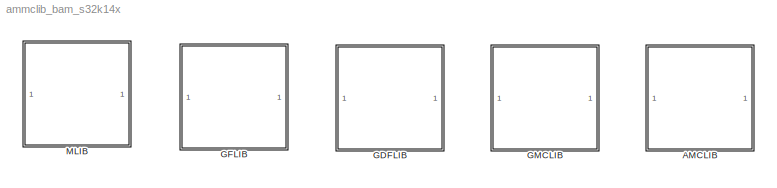
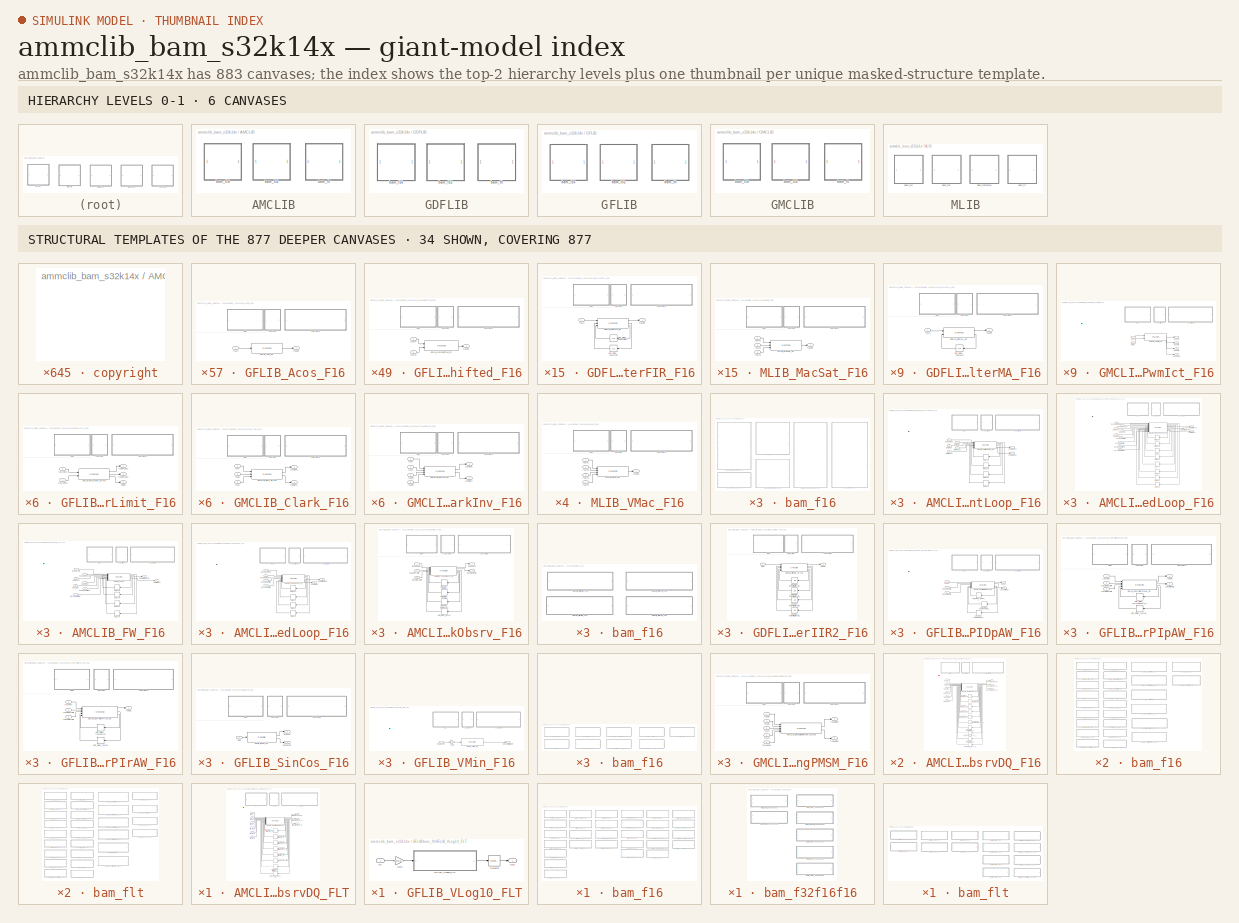
[diagram: thumbnail index - top-2 hierarchy levels (6 canvases) + 34 structural-template representatives of the remaining 877 canvases]
MODEL ammclib_bam_s32k14x
KIND library
BLOCK [SubSystem] AMCLIB
  Ports = []
  RequestExecContextInheritance = off
  SID = 9721
  Variant = off
BLOCK [SubSystem] AMCLIB/bam_f16
  Ports = []
  RequestExecContextInheritance = off
  SID = 9722
  Variant = off
BLOCK [SubSystem] AMCLIB/bam_f16/AMCLIB_BemfObsrvDQ_F16
  Ports = [6, 3]
  RequestExecContextInheritance = off
  SID = 9958
  Variant = off
BLOCK [S-Function] AMCLIB/bam_f16/AMCLIB_BemfObsrvDQ_F16/AMCLIB_BemfObsrvDQ_SF
  EnableBusSupport = off
  FunctionName = AMCLIB_BemfObsrvDQ_SF_F16
  Parameters = f16IGain,f16UGain,f16WIGain,f16EGain,s16Shift,f16CC1sc_D,f16CC1sc_Q,f16CC2sc_D,f16CC2sc_Q,f16UpperLimit_D,f16UpperLimit_Q,f16LowerLimit_D,f16LowerLimit_Q,u16NShift
  Ports = [16, 13]
  SFcnIsStateOwnerBlock = off
  SFunctionDeploymentMode = off
  SID = 9975
BLOCK [Delay] AMCLIB/bam_f16/AMCLIB_BemfObsrvDQ_F16/Unit_Delay_f16IObsrvIn_1H_D
  DelayLength = 1
  InitialCondition = 0
  InputPortMap = u0
  Ports = [1, 1]
  SID = 9764
BLOCK [Delay] AMCLIB/bam_f16/AMCLIB_BemfObsrvDQ_F16/Unit_Delay_f16IObsrvIn_1H_Q
  DelayLength = 1
  InitialCondition = 0
  InputPortMap = u0
  Ports = [1, 1]
  SID = 9762
BLOCK [Delay] AMCLIB/bam_f16/AMCLIB_BemfObsrvDQ_F16/Unit_Delay_f16InErrK1_D
  DelayLength = 1
  InitialCondition = 0
  InputPortMap = u0
  Ports = [1, 1]
  SID = 9768
BLOCK [Delay] AMCLIB/bam_f16/AMCLIB_BemfObsrvDQ_F16/Unit_Delay_f16InErrK1_Q
  DelayLength = 1
  InitialCondition = 0
  InputPortMap = u0
  Ports = [1, 1]
  SID = 9766
BLOCK [Delay] AMCLIB/bam_f16/AMCLIB_BemfObsrvDQ_F16/Unit_Delay_f32Acc_D
  DelayLength = 1
  InitialCondition = 0
  InputPortMap = u0
  Ports = [1, 1]
  SID = 9769
BLOCK [Delay] AMCLIB/bam_f16/AMCLIB_BemfObsrvDQ_F16/Unit_Delay_f32Acc_Q
  DelayLength = 1
  InitialCondition = 0
  InputPortMap = u0
  Ports = [1, 1]
  SID = 9767
BLOCK [Delay] AMCLIB/bam_f16/AMCLIB_BemfObsrvDQ_F16/Unit_Delay_f32IObsrvIn_1L_D
  DelayLength = 1
  InitialCondition = 0
  InputPortMap = u0
  Ports = [1, 1]
  SID = 9765
BLOCK [Delay] AMCLIB/bam_f16/AMCLIB_BemfObsrvDQ_F16/Unit_Delay_f32IObsrvIn_1L_Q
  DelayLength = 1
  InitialCondition = 0
  InputPortMap = u0
  Ports = [1, 1]
  SID = 9763
BLOCK [Delay] AMCLIB/bam_f16/AMCLIB_BemfObsrvDQ_F16/Unit_Delay_f32IObsrv_D
  DelayLength = 1
  InitialCondition = 0
  InputPortMap = u0
  Ports = [1, 1]
  SID = 9761
BLOCK [Delay] AMCLIB/bam_f16/AMCLIB_BemfObsrvDQ_F16/Unit_Delay_f32IObsrv_Q
  DelayLength = 1
  InitialCondition = 0
  InputPortMap = u0
  Ports = [1, 1]
  SID = 9760
BLOCK [SubSystem] AMCLIB/bam_f16/AMCLIB_BemfObsrvDQ_F16/<copyright redacted>
  Ports = []
  RequestExecContextInheritance = off
  SID = 9976
  Variant = off
BLOCK [SubSystem] AMCLIB/bam_f16/AMCLIB_BemfObsrvDQ_F16/copyright2
  Ports = []
  RequestExecContextInheritance = off
  SID = 9977
  Variant = off
BLOCK [Inport] AMCLIB/bam_f16/AMCLIB_BemfObsrvDQ_F16/f16IAB_A
  IconDisplay = Port number
  SID = 9959
BLOCK [Inport] AMCLIB/bam_f16/AMCLIB_BemfObsrvDQ_F16/f16IAB_B
  IconDisplay = Port number
  Port = 2
  SID = 9960
BLOCK [Inport] AMCLIB/bam_f16/AMCLIB_BemfObsrvDQ_F16/f16Phase
  IconDisplay = Port number
  Port = 6
  SID = 9964
BLOCK [Inport] AMCLIB/bam_f16/AMCLIB_BemfObsrvDQ_F16/f16UAB_A
  IconDisplay = Port number
  Port = 3
  SID = 9961
BLOCK [Inport] AMCLIB/bam_f16/AMCLIB_BemfObsrvDQ_F16/f16UAB_B
  IconDisplay = Port number
  Port = 4
  SID = 9962
BLOCK [Inport] AMCLIB/bam_f16/AMCLIB_BemfObsrvDQ_F16/f16Velocity
  IconDisplay = Port number
  Port = 5
  SID = 9963
BLOCK [Outport] AMCLIB/bam_f16/AMCLIB_BemfObsrvDQ_F16/f16pOutEObsrv_D
  IconDisplay = Port number
  Port = 2
  SID = 9980
BLOCK [Outport] AMCLIB/bam_f16/AMCLIB_BemfObsrvDQ_F16/f16pOutEObsrv_Q
  IconDisplay = Port number
  Port = 3
  SID = 9981
BLOCK [Outport] AMCLIB/bam_f16/AMCLIB_BemfObsrvDQ_F16/f16pOutPhaseErr
  IconDisplay = Port number
  SID = 9979
BLOCK [SubSystem] AMCLIB/bam_f16/AMCLIB_BemfObsrvDQ_F16/logo
  Ports = []
  RequestExecContextInheritance = off
  SID = 9978
  Variant = off
BLOCK [SubSystem] AMCLIB/bam_f16/AMCLIB_CurrentLoop_F16
  Ports = [5, 2]
  RequestExecContextInheritance = off
  SID = 10191
  Variant = off
BLOCK [S-Function] AMCLIB/bam_f16/AMCLIB_CurrentLoop_F16/AMCLIB_CurrentLoop_SF
  EnableBusSupport = off
  FunctionName = AMCLIB_CurrentLoop_SF_F16
  Parameters = f16CC1scD,f16CC2scD,u16NShiftD,f16CC1scQ,f16CC2scQ,u16NShiftQ
  Ports = [9, 6]
  SFcnIsStateOwnerBlock = off
  SFunctionDeploymentMode = off
  SID = 10201
BLOCK [Delay] AMCLIB/bam_f16/AMCLIB_CurrentLoop_F16/Delay30
  DelayLength = 1
  InitialCondition = 0
  InputPortMap = u0
  Ports = [1, 1]
  SID = 10213
BLOCK [Delay] AMCLIB/bam_f16/AMCLIB_CurrentLoop_F16/Delay31
  DelayLength = 1
  InitialCondition = 0
  InputPortMap = u0
  Ports = [1, 1]
  SID = 10214
BLOCK [Delay] AMCLIB/bam_f16/AMCLIB_CurrentLoop_F16/Delay32
  DelayLength = 1
  InitialCondition = 0
  InputPortMap = u0
  Ports = [1, 1]
  SID = 10215
BLOCK [Delay] AMCLIB/bam_f16/AMCLIB_CurrentLoop_F16/Delay33
  DelayLength = 1
  InitialCondition = 0
  InputPortMap = u0
  Ports = [1, 1]
  SID = 10212
BLOCK [SubSystem] AMCLIB/bam_f16/AMCLIB_CurrentLoop_F16/<copyright redacted>
  Ports = []
  RequestExecContextInheritance = off
  SID = 10202
  Variant = off
BLOCK [SubSystem] AMCLIB/bam_f16/AMCLIB_CurrentLoop_F16/copyright2
  Ports = []
  RequestExecContextInheritance = off
  SID = 10203
  Variant = off
BLOCK [Inport] AMCLIB/bam_f16/AMCLIB_CurrentLoop_F16/f16IDFbck
  IconDisplay = Port number
  Port = 4
  SID = 10195
BLOCK [Inport] AMCLIB/bam_f16/AMCLIB_CurrentLoop_F16/f16IDReq
  IconDisplay = Port number
  Port = 2
  SID = 10193
BLOCK [Inport] AMCLIB/bam_f16/AMCLIB_CurrentLoop_F16/f16IQFbck
  IconDisplay = Port number
  Port = 5
  SID = 10196
BLOCK [Inport] AMCLIB/bam_f16/AMCLIB_CurrentLoop_F16/f16IQReq
  IconDisplay = Port number
  Port = 3
  SID = 10194
BLOCK [Inport] AMCLIB/bam_f16/AMCLIB_CurrentLoop_F16/f16UDcBus
  IconDisplay = Port number
  SID = 10192
BLOCK [SubSystem] AMCLIB/bam_f16/AMCLIB_CurrentLoop_F16/logo
  Ports = []
  RequestExecContextInheritance = off
  SID = 10204
  Variant = off
BLOCK [Outport] AMCLIB/bam_f16/AMCLIB_CurrentLoop_F16/pOutUDReq
  IconDisplay = Port number
  SID = 10209
BLOCK [Outport] AMCLIB/bam_f16/AMCLIB_CurrentLoop_F16/pOutUQReq
  IconDisplay = Port number
  Port = 2
  SID = 10210
BLOCK [SubSystem] AMCLIB/bam_f16/AMCLIB_FWSpeedLoop_F16
  Ports = [9, 3]
  RequestExecContextInheritance = off
  SID = 10119
  Variant = off
BLOCK [S-Function] AMCLIB/bam_f16/AMCLIB_FWSpeedLoop_F16/AMCLIB_FWSpeedLoop_SF
  EnableBusSupport = off
  FunctionName = AMCLIB_FWSpeedLoop_SF_F16
  Parameters = u16NSamplesW,u16NSamplesFW,f16PropGainQ,s16PropGainShiftQ,f16IntegGainQ,s16IntegGainShiftQ,f16PropGainFW,s16PropGainShiftFW,f16IntegGainFW,s16IntegGainShiftFW,f32RampUp,f32RampDown
  Ports = [17, 11]
  SFcnIsStateOwnerBlock = off
  SFunctionDeploymentMode = off
  SID = 10137
BLOCK [Delay] AMCLIB/bam_f16/AMCLIB_FWSpeedLoop_F16/Delay1
  DelayLength = 1
  InitialCondition = 0
  InputPortMap = u0
  Ports = [1, 1]
  SID = 10155
BLOCK [Delay] AMCLIB/bam_f16/AMCLIB_FWSpeedLoop_F16/Delay18
  DelayLength = 1
  InitialCondition = 0
  InputPortMap = u0
  Ports = [1, 1]
  SID = 10154
BLOCK [Delay] AMCLIB/bam_f16/AMCLIB_FWSpeedLoop_F16/Delay2
  DelayLength = 1
  InitialCondition = 0
  InputPortMap = u0
  Ports = [1, 1]
  SID = 10156
BLOCK [Delay] AMCLIB/bam_f16/AMCLIB_FWSpeedLoop_F16/Delay25
  DelayLength = 1
  InitialCondition = 0
  InputPortMap = u0
  Ports = [1, 1]
  SID = 10153
BLOCK [Delay] AMCLIB/bam_f16/AMCLIB_FWSpeedLoop_F16/Delay3
  DelayLength = 1
  InitialCondition = 0
  InputPortMap = u0
  Ports = [1, 1]
  SID = 10158
BLOCK [Delay] AMCLIB/bam_f16/AMCLIB_FWSpeedLoop_F16/Delay4
  DelayLength = 1
  InitialCondition = 0
  InputPortMap = u0
  Ports = [1, 1]
  SID = 10159
BLOCK [Delay] AMCLIB/bam_f16/AMCLIB_FWSpeedLoop_F16/Delay5
  DelayLength = 1
  InitialCondition = 0
  InputPortMap = u0
  Ports = [1, 1]
  SID = 10160
BLOCK [Delay] AMCLIB/bam_f16/AMCLIB_FWSpeedLoop_F16/Delay6
  DelayLength = 1
  InitialCondition = 0
  InputPortMap = u0
  Ports = [1, 1]
  SID = 10161
BLOCK [SubSystem] AMCLIB/bam_f16/AMCLIB_FWSpeedLoop_F16/<copyright redacted>
  Ports = []
  RequestExecContextInheritance = off
  SID = 10138
  Variant = off
BLOCK [SubSystem] AMCLIB/bam_f16/AMCLIB_FWSpeedLoop_F16/copyright2
  Ports = []
  RequestExecContextInheritance = off
  SID = 10139
  Variant = off
BLOCK [Inport] AMCLIB/bam_f16/AMCLIB_FWSpeedLoop_F16/f16IQFbck
  IconDisplay = Port number
  Port = 3
  SID = 10123
BLOCK [Inport] AMCLIB/bam_f16/AMCLIB_FWSpeedLoop_F16/f16LowerLimitFW
  IconDisplay = Port number
  Port = 9
  SID = 10133
BLOCK [Inport] AMCLIB/bam_f16/AMCLIB_FWSpeedLoop_F16/f16LowerLimitQ
  IconDisplay = Port number
  Port = 7
  SID = 10129
BLOCK [Inport] AMCLIB/bam_f16/AMCLIB_FWSpeedLoop_F16/f16UQLim
  IconDisplay = Port number
  Port = 5
  SID = 10125
BLOCK [Inport] AMCLIB/bam_f16/AMCLIB_FWSpeedLoop_F16/f16UQReq
  IconDisplay = Port number
  Port = 4
  SID = 10124
BLOCK [Inport] AMCLIB/bam_f16/AMCLIB_FWSpeedLoop_F16/f16UpperLimitFW
  IconDisplay = Port number
  Port = 8
  SID = 10132
BLOCK [Inport] AMCLIB/bam_f16/AMCLIB_FWSpeedLoop_F16/f16UpperLimitQ
  IconDisplay = Port number
  Port = 6
  SID = 10128
BLOCK [Inport] AMCLIB/bam_f16/AMCLIB_FWSpeedLoop_F16/f16VelocityFbck
  IconDisplay = Port number
  Port = 2
  SID = 10121
BLOCK [Inport] AMCLIB/bam_f16/AMCLIB_FWSpeedLoop_F16/f16VelocityReq
  IconDisplay = Port number
  SID = 10120
BLOCK [SubSystem] AMCLIB/bam_f16/AMCLIB_FWSpeedLoop_F16/logo
  Ports = []
  RequestExecContextInheritance = off
  SID = 10140
  Variant = off
BLOCK [Outport] AMCLIB/bam_f16/AMCLIB_FWSpeedLoop_F16/pOutIDReq
  IconDisplay = Port number
  Port = 3
  SID = 10150
BLOCK [Outport] AMCLIB/bam_f16/AMCLIB_FWSpeedLoop_F16/pOutLimitFlagFW
  IconDisplay = Port number
  Port = 2
  SID = 10147
BLOCK [Outport] AMCLIB/bam_f16/AMCLIB_FWSpeedLoop_F16/pOutLimitFlagQ
  IconDisplay = Port number
  SID = 10144
BLOCK [SubSystem] AMCLIB/bam_f16/AMCLIB_FW_F16
  Ports = [7, 2]
  RequestExecContextInheritance = off
  SID = 10162
  Variant = off
BLOCK [S-Function] AMCLIB/bam_f16/AMCLIB_FW_F16/AMCLIB_FW_SF
  EnableBusSupport = off
  FunctionName = AMCLIB_FW_SF_F16
  Parameters = u16NSamplesFW,f16PropGainFW,s16PropGainShiftFW,f16IntegGainFW,s16IntegGainShiftFW
  Ports = [11, 6]
  SFcnIsStateOwnerBlock = off
  SFunctionDeploymentMode = off
  SID = 10174
BLOCK [Delay] AMCLIB/bam_f16/AMCLIB_FW_F16/Delay26
  DelayLength = 1
  InitialCondition = 0
  InputPortMap = u0
  Ports = [1, 1]
  SID = 10187
BLOCK [Delay] AMCLIB/bam_f16/AMCLIB_FW_F16/Delay27
  DelayLength = 1
  InitialCondition = 0
  InputPortMap = u0
  Ports = [1, 1]
  SID = 10189
BLOCK [Delay] AMCLIB/bam_f16/AMCLIB_FW_F16/Delay28
  DelayLength = 1
  InitialCondition = 0
  InputPortMap = u0
  Ports = [1, 1]
  SID = 10190
BLOCK [Delay] AMCLIB/bam_f16/AMCLIB_FW_F16/Delay29
  DelayLength = 1
  InitialCondition = 0
  InputPortMap = u0
  Ports = [1, 1]
  SID = 10185
BLOCK [SubSystem] AMCLIB/bam_f16/AMCLIB_FW_F16/<copyright redacted>
  Ports = []
  RequestExecContextInheritance = off
  SID = 10175
  Variant = off
BLOCK [SubSystem] AMCLIB/bam_f16/AMCLIB_FW_F16/copyright2
  Ports = []
  RequestExecContextInheritance = off
  SID = 10176
  Variant = off
BLOCK [Inport] AMCLIB/bam_f16/AMCLIB_FW_F16/f16IQFbck
  IconDisplay = Port number
  Port = 3
  SID = 10166
BLOCK [Inport] AMCLIB/bam_f16/AMCLIB_FW_F16/f16LowerLimitFW
  IconDisplay = Port number
  Port = 7
  SID = 10171
BLOCK [Inport] AMCLIB/bam_f16/AMCLIB_FW_F16/f16ReqAmp
  IconDisplay = Port number
  SID = 10163
BLOCK [Inport] AMCLIB/bam_f16/AMCLIB_FW_F16/f16UQLim
  IconDisplay = Port number
  Port = 5
  SID = 10168
BLOCK [Inport] AMCLIB/bam_f16/AMCLIB_FW_F16/f16UQReq
  IconDisplay = Port number
  Port = 4
  SID = 10167
BLOCK [Inport] AMCLIB/bam_f16/AMCLIB_FW_F16/f16UpperLimitFW
  IconDisplay = Port number
  Port = 6
  SID = 10170
BLOCK [Inport] AMCLIB/bam_f16/AMCLIB_FW_F16/f16VelocityFbck
  IconDisplay = Port number
  Port = 2
  SID = 10164
BLOCK [SubSystem] AMCLIB/bam_f16/AMCLIB_FW_F16/logo
  Ports = []
  RequestExecContextInheritance = off
  SID = 10177
  Variant = off
BLOCK [Outport] AMCLIB/bam_f16/AMCLIB_FW_F16/pOutIDReq
  IconDisplay = Port number
  Port = 2
  SID = 10182
BLOCK [Outport] AMCLIB/bam_f16/AMCLIB_FW_F16/pOutLimitFlagFW
  IconDisplay = Port number
  SID = 10180
BLOCK [SubSystem] AMCLIB/bam_f16/AMCLIB_SpeedLoop_F16
  Ports = [4, 2]
  RequestExecContextInheritance = off
  SID = 10095
  Variant = off
BLOCK [S-Function] AMCLIB/bam_f16/AMCLIB_SpeedLoop_F16/AMCLIB_SpeedLoop_SF
  EnableBusSupport = off
  FunctionName = AMCLIB_SpeedLoop_SF_F16
  Parameters = u16NSamplesW,f16PropGainQ,s16PropGainShiftQ,f16IntegGainQ,s16IntegGainShiftQ,f32RampUp,f32RampDown
  Ports = [8, 6]
  SFcnIsStateOwnerBlock = off
  SFunctionDeploymentMode = off
  SID = 10104
BLOCK [Delay] AMCLIB/bam_f16/AMCLIB_SpeedLoop_F16/Delay1
  DelayLength = 1
  InitialCondition = 0
  InputPortMap = u0
  Ports = [1, 1]
  SID = 10116
BLOCK [Delay] AMCLIB/bam_f16/AMCLIB_SpeedLoop_F16/Delay17
  DelayLength = 1
  InitialCondition = 0
  InputPortMap = u0
  Ports = [1, 1]
  SID = 10115
BLOCK [Delay] AMCLIB/bam_f16/AMCLIB_SpeedLoop_F16/Delay2
  DelayLength = 1
  InitialCondition = 0
  InputPortMap = u0
  Ports = [1, 1]
  SID = 10117
BLOCK [Delay] AMCLIB/bam_f16/AMCLIB_SpeedLoop_F16/Delay3
  DelayLength = 1
  InitialCondition = 0
  InputPortMap = u0
  Ports = [1, 1]
  SID = 10118
BLOCK [SubSystem] AMCLIB/bam_f16/AMCLIB_SpeedLoop_F16/<copyright redacted>
  Ports = []
  RequestExecContextInheritance = off
  SID = 10105
  Variant = off
BLOCK [SubSystem] AMCLIB/bam_f16/AMCLIB_SpeedLoop_F16/copyright2
  Ports = []
  RequestExecContextInheritance = off
  SID = 10106
  Variant = off
BLOCK [Inport] AMCLIB/bam_f16/AMCLIB_SpeedLoop_F16/f16LowerLimitQ
  IconDisplay = Port number
  Port = 4
  SID = 10100
BLOCK [Inport] AMCLIB/bam_f16/AMCLIB_SpeedLoop_F16/f16UpperLimitQ
  IconDisplay = Port number
  Port = 3
  SID = 10099
BLOCK [Inport] AMCLIB/bam_f16/AMCLIB_SpeedLoop_F16/f16VelocityFbck
  IconDisplay = Port number
  Port = 2
  SID = 10097
BLOCK [Inport] AMCLIB/bam_f16/AMCLIB_SpeedLoop_F16/f16VelocityReq
  IconDisplay = Port number
  SID = 10096
BLOCK [SubSystem] AMCLIB/bam_f16/AMCLIB_SpeedLoop_F16/logo
  Ports = []
  RequestExecContextInheritance = off
  SID = 10107
  Variant = off
BLOCK [Outport] AMCLIB/bam_f16/AMCLIB_SpeedLoop_F16/pOutIQReq
  IconDisplay = Port number
  Port = 2
  SID = 10113
BLOCK [Outport] AMCLIB/bam_f16/AMCLIB_SpeedLoop_F16/pOutLimitFlagQ
  IconDisplay = Port number
  SID = 10111
BLOCK [SubSystem] AMCLIB/bam_f16/AMCLIB_TrackObsrv_F16
  Ports = [3, 2]
  RequestExecContextInheritance = off
  SID = 9854
  Variant = off
BLOCK [S-Function] AMCLIB/bam_f16/AMCLIB_TrackObsrv_F16/AMCLIB_TrackObsrv_SF
  EnableBusSupport = off
  FunctionName = AMCLIB_TrackObsrv_SF_F16
  Parameters = f16CC1sc,f16CC2sc,u16NShift,f16C1,u16IntegNShift
  Ports = [7, 6]
  SFcnIsStateOwnerBlock = off
  SFunctionDeploymentMode = off
  SID = 9862
BLOCK [Delay] AMCLIB/bam_f16/AMCLIB_TrackObsrv_F16/Unit_Delay_f16InErrK1
  DelayLength = 1
  InitialCondition = 0
  InputPortMap = u0
  Ports = [1, 1]
  SID = 9875
BLOCK [Delay] AMCLIB/bam_f16/AMCLIB_TrackObsrv_F16/Unit_Delay_f16InK1
  DelayLength = 1
  InitialCondition = 0
  InputPortMap = u0
  Ports = [1, 1]
  SID = 9873
BLOCK [Delay] AMCLIB/bam_f16/AMCLIB_TrackObsrv_F16/Unit_Delay_f32Acc
  DelayLength = 1
  InitialCondition = 0
  InputPortMap = u0
  Ports = [1, 1]
  SID = 9876
BLOCK [Delay] AMCLIB/bam_f16/AMCLIB_TrackObsrv_F16/Unit_Delay_f32State
  DelayLength = 1
  InitialCondition = 0
  InputPortMap = u0
  Ports = [1, 1]
  SID = 9874
BLOCK [SubSystem] AMCLIB/bam_f16/AMCLIB_TrackObsrv_F16/<copyright redacted>
  Ports = []
  RequestExecContextInheritance = off
  SID = 9863
  Variant = off
BLOCK [SubSystem] AMCLIB/bam_f16/AMCLIB_TrackObsrv_F16/copyright2
  Ports = []
  RequestExecContextInheritance = off
  SID = 9864
  Variant = off
BLOCK [Inport] AMCLIB/bam_f16/AMCLIB_TrackObsrv_F16/f16LowerLimit
  IconDisplay = Port number
  Port = 3
  SID = 9859
BLOCK [Inport] AMCLIB/bam_f16/AMCLIB_TrackObsrv_F16/f16PhaseErr
  IconDisplay = Port number
  SID = 9855
BLOCK [Outport] AMCLIB/bam_f16/AMCLIB_TrackObsrv_F16/f16PosEst
  IconDisplay = Port number
  SID = 9866
BLOCK [Inport] AMCLIB/bam_f16/AMCLIB_TrackObsrv_F16/f16UpperLimit
  IconDisplay = Port number
  Port = 2
  SID = 9858
BLOCK [Outport] AMCLIB/bam_f16/AMCLIB_TrackObsrv_F16/f16VelocityEst
  IconDisplay = Port number
  Port = 2
  SID = 9867
BLOCK [SubSystem] AMCLIB/bam_f16/AMCLIB_TrackObsrv_F16/logo
  Ports = []
  RequestExecContextInheritance = off
  SID = 9865
  Variant = off
BLOCK [SubSystem] AMCLIB/bam_f32
  Ports = []
  RequestExecContextInheritance = off
  SID = 9723
  Variant = off
BLOCK [SubSystem] AMCLIB/bam_f32/AMCLIB_BemfObsrvDQ_F32
  Ports = [6, 3]
  RequestExecContextInheritance = off
  SID = 9993
  Variant = off
BLOCK [S-Function] AMCLIB/bam_f32/AMCLIB_BemfObsrvDQ_F32/AMCLIB_BemfObsrvDQ_SF
  EnableBusSupport = off
  FunctionName = AMCLIB_BemfObsrvDQ_SF_F32
  Parameters = f32IGain,f32UGain,f32WIGain,f32EGain,s16Shift,f32CC1sc_D,f32CC1sc_Q,f32CC2sc_D,f32CC2sc_Q,f32UpperLimit_D,f32UpperLimit_Q,f32LowerLimit_D,f32LowerLimit_Q,u16NShift
  Ports = [16, 13]
  SFcnIsStateOwnerBlock = off
  SFunctionDeploymentMode = off
  SID = 10010
BLOCK [Delay] AMCLIB/bam_f32/AMCLIB_BemfObsrvDQ_F32/Unit_Delay_f16IObsrvIn_1H_D
  DelayLength = 1
  InitialCondition = 0
  InputPortMap = u0
  Ports = [1, 1]
  SID = 9809
BLOCK [Delay] AMCLIB/bam_f32/AMCLIB_BemfObsrvDQ_F32/Unit_Delay_f16IObsrvIn_1H_Q
  DelayLength = 1
  InitialCondition = 0
  InputPortMap = u0
  Ports = [1, 1]
  SID = 9807
BLOCK [Delay] AMCLIB/bam_f32/AMCLIB_BemfObsrvDQ_F32/Unit_Delay_f32Acc_D
  DelayLength = 1
  InitialCondition = 0
  InputPortMap = u0
  Ports = [1, 1]
  SID = 9814
BLOCK [Delay] AMCLIB/bam_f32/AMCLIB_BemfObsrvDQ_F32/Unit_Delay_f32Acc_Q
  DelayLength = 1
  InitialCondition = 0
  InputPortMap = u0
  Ports = [1, 1]
  SID = 9812
BLOCK [Delay] AMCLIB/bam_f32/AMCLIB_BemfObsrvDQ_F32/Unit_Delay_f32IObsrvIn_1L_D
  DelayLength = 1
  InitialCondition = 0
  InputPortMap = u0
  Ports = [1, 1]
  SID = 9810
BLOCK [Delay] AMCLIB/bam_f32/AMCLIB_BemfObsrvDQ_F32/Unit_Delay_f32IObsrvIn_1L_Q
  DelayLength = 1
  InitialCondition = 0
  InputPortMap = u0
  Ports = [1, 1]
  SID = 9808
BLOCK [Delay] AMCLIB/bam_f32/AMCLIB_BemfObsrvDQ_F32/Unit_Delay_f32IObsrv_D
  DelayLength = 1
  InitialCondition = 0
  InputPortMap = u0
  Ports = [1, 1]
  SID = 9806
BLOCK [Delay] AMCLIB/bam_f32/AMCLIB_BemfObsrvDQ_F32/Unit_Delay_f32IObsrv_Q
  DelayLength = 1
  InitialCondition = 0
  InputPortMap = u0
  Ports = [1, 1]
  SID = 9805
BLOCK [Delay] AMCLIB/bam_f32/AMCLIB_BemfObsrvDQ_F32/Unit_Delay_f32InErrK1_D
  DelayLength = 1
  InitialCondition = 0
  InputPortMap = u0
  Ports = [1, 1]
  SID = 9813
BLOCK [Delay] AMCLIB/bam_f32/AMCLIB_BemfObsrvDQ_F32/Unit_Delay_f32InErrK1_Q
  DelayLength = 1
  InitialCondition = 0
  InputPortMap = u0
  Ports = [1, 1]
  SID = 9811
BLOCK [SubSystem] AMCLIB/bam_f32/AMCLIB_BemfObsrvDQ_F32/<copyright redacted>
  Ports = []
  RequestExecContextInheritance = off
  SID = 10011
  Variant = off
BLOCK [SubSystem] AMCLIB/bam_f32/AMCLIB_BemfObsrvDQ_F32/copyright2
  Ports = []
  RequestExecContextInheritance = off
  SID = 10012
  Variant = off
BLOCK [Inport] AMCLIB/bam_f32/AMCLIB_BemfObsrvDQ_F32/f32IAB_A
  IconDisplay = Port number
  SID = 9994
BLOCK [Inport] AMCLIB/bam_f32/AMCLIB_BemfObsrvDQ_F32/f32IAB_B
  IconDisplay = Port number
  Port = 2
  SID = 9995
BLOCK [Inport] AMCLIB/bam_f32/AMCLIB_BemfObsrvDQ_F32/f32Phase
  IconDisplay = Port number
  Port = 6
  SID = 9999
BLOCK [Inport] AMCLIB/bam_f32/AMCLIB_BemfObsrvDQ_F32/f32UAB_A
  IconDisplay = Port number
  Port = 3
  SID = 9996
BLOCK [Inport] AMCLIB/bam_f32/AMCLIB_BemfObsrvDQ_F32/f32UAB_B
  IconDisplay = Port number
  Port = 4
  SID = 9997
BLOCK [Inport] AMCLIB/bam_f32/AMCLIB_BemfObsrvDQ_F32/f32Velocity
  IconDisplay = Port number
  Port = 5
  SID = 9998
BLOCK [Outport] AMCLIB/bam_f32/AMCLIB_BemfObsrvDQ_F32/f32pOutEObsrv_D
  IconDisplay = Port number
  Port = 2
  SID = 10015
BLOCK [Outport] AMCLIB/bam_f32/AMCLIB_BemfObsrvDQ_F32/f32pOutEObsrv_Q
  IconDisplay = Port number
  Port = 3
  SID = 10016
BLOCK [Outport] AMCLIB/bam_f32/AMCLIB_BemfObsrvDQ_F32/f32pOutPhaseErr
  IconDisplay = Port number
  SID = 10014
BLOCK [SubSystem] AMCLIB/bam_f32/AMCLIB_BemfObsrvDQ_F32/logo
  Ports = []
  RequestExecContextInheritance = off
  SID = 10013
  Variant = off
BLOCK [SubSystem] AMCLIB/bam_f32/AMCLIB_CurrentLoop_F32
  Ports = [5, 2]
  RequestExecContextInheritance = off
  SID = 10310
  Variant = off
BLOCK [S-Function] AMCLIB/bam_f32/AMCLIB_CurrentLoop_F32/AMCLIB_CurrentLoop_SF
  EnableBusSupport = off
  FunctionName = AMCLIB_CurrentLoop_SF_F32
  Parameters = f32CC1scD,f32CC2scD,u16NShiftD,f32CC1scQ,f32CC2scQ,u16NShiftQ
  Ports = [9, 6]
  SFcnIsStateOwnerBlock = off
  SFunctionDeploymentMode = off
  SID = 10320
BLOCK [Delay] AMCLIB/bam_f32/AMCLIB_CurrentLoop_F32/Delay30
  DelayLength = 1
  InitialCondition = 0
  InputPortMap = u0
  Ports = [1, 1]
  SID = 10332
BLOCK [Delay] AMCLIB/bam_f32/AMCLIB_CurrentLoop_F32/Delay31
  DelayLength = 1
  InitialCondition = 0
  InputPortMap = u0
  Ports = [1, 1]
  SID = 10333
BLOCK [Delay] AMCLIB/bam_f32/AMCLIB_CurrentLoop_F32/Delay32
  DelayLength = 1
  InitialCondition = 0
  InputPortMap = u0
  Ports = [1, 1]
  SID = 10335
BLOCK [Delay] AMCLIB/bam_f32/AMCLIB_CurrentLoop_F32/Delay33
  DelayLength = 1
  InitialCondition = 0
  InputPortMap = u0
  Ports = [1, 1]
  SID = 10331
BLOCK [SubSystem] AMCLIB/bam_f32/AMCLIB_CurrentLoop_F32/<copyright redacted>
  Ports = []
  RequestExecContextInheritance = off
  SID = 10321
  Variant = off
BLOCK [SubSystem] AMCLIB/bam_f32/AMCLIB_CurrentLoop_F32/copyright2
  Ports = []
  RequestExecContextInheritance = off
  SID = 10322
  Variant = off
BLOCK [Inport] AMCLIB/bam_f32/AMCLIB_CurrentLoop_F32/f32IDFbck
  IconDisplay = Port number
  Port = 4
  SID = 10314
BLOCK [Inport] AMCLIB/bam_f32/AMCLIB_CurrentLoop_F32/f32IDReq
  IconDisplay = Port number
  Port = 2
  SID = 10312
BLOCK [Inport] AMCLIB/bam_f32/AMCLIB_CurrentLoop_F32/f32IQFbck
  IconDisplay = Port number
  Port = 5
  SID = 10315
BLOCK [Inport] AMCLIB/bam_f32/AMCLIB_CurrentLoop_F32/f32IQReq
  IconDisplay = Port number
  Port = 3
  SID = 10313
BLOCK [Inport] AMCLIB/bam_f32/AMCLIB_CurrentLoop_F32/f32UDcBus
  IconDisplay = Port number
  SID = 10311
BLOCK [SubSystem] AMCLIB/bam_f32/AMCLIB_CurrentLoop_F32/logo
  Ports = []
  RequestExecContextInheritance = off
  SID = 10323
  Variant = off
BLOCK [Outport] AMCLIB/bam_f32/AMCLIB_CurrentLoop_F32/pOutUDReq
  IconDisplay = Port number
  SID = 10328
BLOCK [Outport] AMCLIB/bam_f32/AMCLIB_CurrentLoop_F32/pOutUQReq
  IconDisplay = Port number
  Port = 2
  SID = 10329
BLOCK [SubSystem] AMCLIB/bam_f32/AMCLIB_FWSpeedLoop_F32
  Ports = [9, 3]
  RequestExecContextInheritance = off
  SID = 10240
  Variant = off
BLOCK [S-Function] AMCLIB/bam_f32/AMCLIB_FWSpeedLoop_F32/AMCLIB_FWSpeedLoop_SF
  EnableBusSupport = off
  FunctionName = AMCLIB_FWSpeedLoop_SF_F32
  Parameters = u16NSamplesW,u16NSamplesFW,f32PropGainQ,s16PropGainShiftQ,f32IntegGainQ,s16IntegGainShiftQ,f32PropGainFW,s16PropGainShiftFW,f32IntegGainFW,s16IntegGainShiftFW,f32RampUp,f32RampDown
  Ports = [17, 11]
  SFcnIsStateOwnerBlock = off
  SFunctionDeploymentMode = off
  SID = 10258
BLOCK [Delay] AMCLIB/bam_f32/AMCLIB_FWSpeedLoop_F32/Delay18
  DelayLength = 1
  InitialCondition = 0
  InputPortMap = u0
  Ports = [1, 1]
  SID = 10275
BLOCK [Delay] AMCLIB/bam_f32/AMCLIB_FWSpeedLoop_F32/Delay19
  DelayLength = 1
  InitialCondition = 0
  InputPortMap = u0
  Ports = [1, 1]
  SID = 10276
BLOCK [Delay] AMCLIB/bam_f32/AMCLIB_FWSpeedLoop_F32/Delay20
  DelayLength = 1
  InitialCondition = 0
  InputPortMap = u0
  Ports = [1, 1]
  SID = 10277
BLOCK [Delay] AMCLIB/bam_f32/AMCLIB_FWSpeedLoop_F32/Delay21
  DelayLength = 1
  InitialCondition = 0
  InputPortMap = u0
  Ports = [1, 1]
  SID = 10279
BLOCK [Delay] AMCLIB/bam_f32/AMCLIB_FWSpeedLoop_F32/Delay22
  DelayLength = 1
  InitialCondition = 0
  InputPortMap = u0
  Ports = [1, 1]
  SID = 10281
BLOCK [Delay] AMCLIB/bam_f32/AMCLIB_FWSpeedLoop_F32/Delay23
  DelayLength = 1
  InitialCondition = 0
  InputPortMap = u0
  Ports = [1, 1]
  SID = 10282
BLOCK [Delay] AMCLIB/bam_f32/AMCLIB_FWSpeedLoop_F32/Delay24
  DelayLength = 1
  InitialCondition = 0
  InputPortMap = u0
  Ports = [1, 1]
  SID = 10278
BLOCK [Delay] AMCLIB/bam_f32/AMCLIB_FWSpeedLoop_F32/Delay25
  DelayLength = 1
  InitialCondition = 0
  InputPortMap = u0
  Ports = [1, 1]
  SID = 10274
BLOCK [SubSystem] AMCLIB/bam_f32/AMCLIB_FWSpeedLoop_F32/<copyright redacted>
  Ports = []
  RequestExecContextInheritance = off
  SID = 10259
  Variant = off
BLOCK [SubSystem] AMCLIB/bam_f32/AMCLIB_FWSpeedLoop_F32/copyright2
  Ports = []
  RequestExecContextInheritance = off
  SID = 10260
  Variant = off
BLOCK [Inport] AMCLIB/bam_f32/AMCLIB_FWSpeedLoop_F32/f32IQFbck
  IconDisplay = Port number
  Port = 3
  SID = 10244
BLOCK [Inport] AMCLIB/bam_f32/AMCLIB_FWSpeedLoop_F32/f32LowerLimitFW
  IconDisplay = Port number
  Port = 9
  SID = 10254
BLOCK [Inport] AMCLIB/bam_f32/AMCLIB_FWSpeedLoop_F32/f32LowerLimitQ
  IconDisplay = Port number
  Port = 7
  SID = 10250
BLOCK [Inport] AMCLIB/bam_f32/AMCLIB_FWSpeedLoop_F32/f32UQLim
  IconDisplay = Port number
  Port = 5
  SID = 10246
BLOCK [Inport] AMCLIB/bam_f32/AMCLIB_FWSpeedLoop_F32/f32UQReq
  IconDisplay = Port number
  Port = 4
  SID = 10245
BLOCK [Inport] AMCLIB/bam_f32/AMCLIB_FWSpeedLoop_F32/f32UpperLimitFW
  IconDisplay = Port number
  Port = 8
  SID = 10253
BLOCK [Inport] AMCLIB/bam_f32/AMCLIB_FWSpeedLoop_F32/f32UpperLimitQ
  IconDisplay = Port number
  Port = 6
  SID = 10249
BLOCK [Inport] AMCLIB/bam_f32/AMCLIB_FWSpeedLoop_F32/f32VelocityFbck
  IconDisplay = Port number
  Port = 2
  SID = 10242
BLOCK [Inport] AMCLIB/bam_f32/AMCLIB_FWSpeedLoop_F32/f32VelocityReq
  IconDisplay = Port number
  SID = 10241
BLOCK [SubSystem] AMCLIB/bam_f32/AMCLIB_FWSpeedLoop_F32/logo
  Ports = []
  RequestExecContextInheritance = off
  SID = 10261
  Variant = off
BLOCK [Outport] AMCLIB/bam_f32/AMCLIB_FWSpeedLoop_F32/pOutIDReq
  IconDisplay = Port number
  Port = 3
  SID = 10271
BLOCK [Outport] AMCLIB/bam_f32/AMCLIB_FWSpeedLoop_F32/pOutLimitFlagFW
  IconDisplay = Port number
  Port = 2
  SID = 10268
BLOCK [Outport] AMCLIB/bam_f32/AMCLIB_FWSpeedLoop_F32/pOutLimitFlagQ
  IconDisplay = Port number
  SID = 10265
BLOCK [SubSystem] AMCLIB/bam_f32/AMCLIB_FW_F32
  Ports = [7, 2]
  RequestExecContextInheritance = off
  SID = 10283
  Variant = off
BLOCK [S-Function] AMCLIB/bam_f32/AMCLIB_FW_F32/AMCLIB_FW_SF
  EnableBusSupport = off
  FunctionName = AMCLIB_FW_SF_F32
  Parameters = u16NSamplesFW,f32PropGainFW,s16PropGainShiftFW,f32IntegGainFW,s16IntegGainShiftFW
  Ports = [11, 6]
  SFcnIsStateOwnerBlock = off
  SFunctionDeploymentMode = off
  SID = 10295
BLOCK [Delay] AMCLIB/bam_f32/AMCLIB_FW_F32/Delay26
  DelayLength = 1
  InitialCondition = 0
  InputPortMap = u0
  Ports = [1, 1]
  SID = 10307
BLOCK [Delay] AMCLIB/bam_f32/AMCLIB_FW_F32/Delay27
  DelayLength = 1
  InitialCondition = 0
  InputPortMap = u0
  Ports = [1, 1]
  SID = 10308
BLOCK [Delay] AMCLIB/bam_f32/AMCLIB_FW_F32/Delay28
  DelayLength = 1
  InitialCondition = 0
  InputPortMap = u0
  Ports = [1, 1]
  SID = 10309
BLOCK [Delay] AMCLIB/bam_f32/AMCLIB_FW_F32/Delay29
  DelayLength = 1
  InitialCondition = 0
  InputPortMap = u0
  Ports = [1, 1]
  SID = 10306
BLOCK [SubSystem] AMCLIB/bam_f32/AMCLIB_FW_F32/<copyright redacted>
  Ports = []
  RequestExecContextInheritance = off
  SID = 10296
  Variant = off
BLOCK [SubSystem] AMCLIB/bam_f32/AMCLIB_FW_F32/copyright2
  Ports = []
  RequestExecContextInheritance = off
  SID = 10297
  Variant = off
BLOCK [Inport] AMCLIB/bam_f32/AMCLIB_FW_F32/f32IQFbck
  IconDisplay = Port number
  Port = 3
  SID = 10287
BLOCK [Inport] AMCLIB/bam_f32/AMCLIB_FW_F32/f32LowerLimitFW
  IconDisplay = Port number
  Port = 7
  SID = 10292
BLOCK [Inport] AMCLIB/bam_f32/AMCLIB_FW_F32/f32ReqAmp
  IconDisplay = Port number
  SID = 10284
BLOCK [Inport] AMCLIB/bam_f32/AMCLIB_FW_F32/f32UQLim
  IconDisplay = Port number
  Port = 5
  SID = 10289
BLOCK [Inport] AMCLIB/bam_f32/AMCLIB_FW_F32/f32UQReq
  IconDisplay = Port number
  Port = 4
  SID = 10288
BLOCK [Inport] AMCLIB/bam_f32/AMCLIB_FW_F32/f32UpperLimitFW
  IconDisplay = Port number
  Port = 6
  SID = 10291
BLOCK [Inport] AMCLIB/bam_f32/AMCLIB_FW_F32/f32VelocityFbck
  IconDisplay = Port number
  Port = 2
  SID = 10285
BLOCK [SubSystem] AMCLIB/bam_f32/AMCLIB_FW_F32/logo
  Ports = []
  RequestExecContextInheritance = off
  SID = 10298
  Variant = off
BLOCK [Outport] AMCLIB/bam_f32/AMCLIB_FW_F32/pOutIDReq
  IconDisplay = Port number
  Port = 2
  SID = 10303
BLOCK [Outport] AMCLIB/bam_f32/AMCLIB_FW_F32/pOutLimitFlagFW
  IconDisplay = Port number
  SID = 10301
BLOCK [SubSystem] AMCLIB/bam_f32/AMCLIB_SpeedLoop_F32
  Ports = [4, 2]
  RequestExecContextInheritance = off
  SID = 10216
  Variant = off
BLOCK [S-Function] AMCLIB/bam_f32/AMCLIB_SpeedLoop_F32/AMCLIB_SpeedLoop_SF
  EnableBusSupport = off
  FunctionName = AMCLIB_SpeedLoop_SF_F32
  Parameters = u16NSamplesW,f32PropGainQ,s16PropGainShiftQ,f32IntegGainQ,s16IntegGainShiftQ,f32RampUp,f32RampDown
  Ports = [8, 6]
  SFcnIsStateOwnerBlock = off
  SFunctionDeploymentMode = off
  SID = 10225
BLOCK [Delay] AMCLIB/bam_f32/AMCLIB_SpeedLoop_F32/Delay1
  DelayLength = 1
  InitialCondition = 0
  InputPortMap = u0
  Ports = [1, 1]
  SID = 10239
BLOCK [Delay] AMCLIB/bam_f32/AMCLIB_SpeedLoop_F32/Delay14
  DelayLength = 1
  InitialCondition = 0
  InputPortMap = u0
  Ports = [1, 1]
  SID = 10237
BLOCK [Delay] AMCLIB/bam_f32/AMCLIB_SpeedLoop_F32/Delay15
  DelayLength = 1
  InitialCondition = 0
  InputPortMap = u0
  Ports = [1, 1]
  SID = 10238
BLOCK [Delay] AMCLIB/bam_f32/AMCLIB_SpeedLoop_F32/Delay17
  DelayLength = 1
  InitialCondition = 0
  InputPortMap = u0
  Ports = [1, 1]
  SID = 10236
BLOCK [SubSystem] AMCLIB/bam_f32/AMCLIB_SpeedLoop_F32/<copyright redacted>
  Ports = []
  RequestExecContextInheritance = off
  SID = 10226
  Variant = off
BLOCK [SubSystem] AMCLIB/bam_f32/AMCLIB_SpeedLoop_F32/copyright2
  Ports = []
  RequestExecContextInheritance = off
  SID = 10227
  Variant = off
BLOCK [Inport] AMCLIB/bam_f32/AMCLIB_SpeedLoop_F32/f32LowerLimitQ
  IconDisplay = Port number
  Port = 4
  SID = 10221
BLOCK [Inport] AMCLIB/bam_f32/AMCLIB_SpeedLoop_F32/f32UpperLimitQ
  IconDisplay = Port number
  Port = 3
  SID = 10220
BLOCK [Inport] AMCLIB/bam_f32/AMCLIB_SpeedLoop_F32/f32VelocityFbck
  IconDisplay = Port number
  Port = 2
  SID = 10218
BLOCK [Inport] AMCLIB/bam_f32/AMCLIB_SpeedLoop_F32/f32VelocityReq
  IconDisplay = Port number
  SID = 10217
BLOCK [SubSystem] AMCLIB/bam_f32/AMCLIB_SpeedLoop_F32/logo
  Ports = []
  RequestExecContextInheritance = off
  SID = 10228
  Variant = off
BLOCK [Outport] AMCLIB/bam_f32/AMCLIB_SpeedLoop_F32/pOutIQReq
  IconDisplay = Port number
  Port = 2
  SID = 10234
BLOCK [Outport] AMCLIB/bam_f32/AMCLIB_SpeedLoop_F32/pOutLimitFlagQ
  IconDisplay = Port number
  SID = 10232
BLOCK [SubSystem] AMCLIB/bam_f32/AMCLIB_TrackObsrv_F32
  Ports = [3, 2]
  RequestExecContextInheritance = off
  SID = 9877
  Variant = off
BLOCK [S-Function] AMCLIB/bam_f32/AMCLIB_TrackObsrv_F32/AMCLIB_TrackObsrv_SF
  EnableBusSupport = off
  FunctionName = AMCLIB_TrackObsrv_SF_F32
  Parameters = f32CC1sc,f32CC2sc,u16NShift,f32C1,u16IntegNShift
  Ports = [7, 6]
  SFcnIsStateOwnerBlock = off
  SFunctionDeploymentMode = off
  SID = 9885
BLOCK [Delay] AMCLIB/bam_f32/AMCLIB_TrackObsrv_F32/Unit_Delay_f32Acc
  DelayLength = 1
  InitialCondition = 0
  InputPortMap = u0
  Ports = [1, 1]
  SID = 9899
BLOCK [Delay] AMCLIB/bam_f32/AMCLIB_TrackObsrv_F32/Unit_Delay_f32InErrK1
  DelayLength = 1
  InitialCondition = 0
  InputPortMap = u0
  Ports = [1, 1]
  SID = 9898
BLOCK [Delay] AMCLIB/bam_f32/AMCLIB_TrackObsrv_F32/Unit_Delay_f32InK1
  DelayLength = 1
  InitialCondition = 0
  InputPortMap = u0
  Ports = [1, 1]
  SID = 9896
BLOCK [Delay] AMCLIB/bam_f32/AMCLIB_TrackObsrv_F32/Unit_Delay_f32State
  DelayLength = 1
  InitialCondition = 0
  InputPortMap = u0
  Ports = [1, 1]
  SID = 9897
BLOCK [SubSystem] AMCLIB/bam_f32/AMCLIB_TrackObsrv_F32/<copyright redacted>
  Ports = []
  RequestExecContextInheritance = off
  SID = 9886
  Variant = off
BLOCK [SubSystem] AMCLIB/bam_f32/AMCLIB_TrackObsrv_F32/copyright2
  Ports = []
  RequestExecContextInheritance = off
  SID = 9887
  Variant = off
BLOCK [Inport] AMCLIB/bam_f32/AMCLIB_TrackObsrv_F32/f32LowerLimit
  IconDisplay = Port number
  Port = 3
  SID = 9882
BLOCK [Inport] AMCLIB/bam_f32/AMCLIB_TrackObsrv_F32/f32PhaseErr
  IconDisplay = Port number
  SID = 9878
BLOCK [Outport] AMCLIB/bam_f32/AMCLIB_TrackObsrv_F32/f32PosEst
  IconDisplay = Port number
  SID = 9889
BLOCK [Inport] AMCLIB/bam_f32/AMCLIB_TrackObsrv_F32/f32UpperLimit
  IconDisplay = Port number
  Port = 2
  SID = 9881
BLOCK [Outport] AMCLIB/bam_f32/AMCLIB_TrackObsrv_F32/f32VelocityEst
  IconDisplay = Port number
  Port = 2
  SID = 9890
BLOCK [SubSystem] AMCLIB/bam_f32/AMCLIB_TrackObsrv_F32/logo
  Ports = []
  RequestExecContextInheritance = off
  SID = 9888
  Variant = off
BLOCK [SubSystem] AMCLIB/bam_flt
  Ports = []
  RequestExecContextInheritance = off
  SID = 9724
  Variant = off
BLOCK [SubSystem] AMCLIB/bam_flt/AMCLIB_BemfObsrvDQ_FLT
  Ports = [6, 3]
  RequestExecContextInheritance = off
  SID = 10028
  Variant = off
BLOCK [S-Function] AMCLIB/bam_flt/AMCLIB_BemfObsrvDQ_FLT/AMCLIB_BemfObsrvDQ_SF
  EnableBusSupport = off
  FunctionName = AMCLIB_BemfObsrvDQ_SF_FLT
  Parameters = fltIGain,fltUGain,fltWIGain,fltEGain,fltCC1sc_D,fltCC1sc_Q,fltCC2sc_D,fltCC2sc_Q,fltUpperLimit_D,fltUpperLimit_Q,fltLowerLimit_D,fltLowerLimit_Q
  Ports = [14, 11]
  SFcnIsStateOwnerBlock = off
  SFunctionDeploymentMode = off
  SID = 10043
BLOCK [Delay] AMCLIB/bam_flt/AMCLIB_BemfObsrvDQ_FLT/Unit_Delay_fltAcc_D
  DelayLength = 1
  InitialCondition = 0
  InputPortMap = u0
  Ports = [1, 1]
  SID = 9853
BLOCK [Delay] AMCLIB/bam_flt/AMCLIB_BemfObsrvDQ_FLT/Unit_Delay_fltAcc_Q
  DelayLength = 1
  InitialCondition = 0
  InputPortMap = u0
  Ports = [1, 1]
  SID = 9851
BLOCK [Delay] AMCLIB/bam_flt/AMCLIB_BemfObsrvDQ_FLT/Unit_Delay_fltIObsrvIn_1_D
  DelayLength = 1
  InitialCondition = 0
  InputPortMap = u0
  Ports = [1, 1]
  SID = 9849
BLOCK [Delay] AMCLIB/bam_flt/AMCLIB_BemfObsrvDQ_FLT/Unit_Delay_fltIObsrvIn_1_Q
  DelayLength = 1
  InitialCondition = 0
  InputPortMap = u0
  Ports = [1, 1]
  SID = 9848
BLOCK [Delay] AMCLIB/bam_flt/AMCLIB_BemfObsrvDQ_FLT/Unit_Delay_fltIObsrv_D
  DelayLength = 1
  InitialCondition = 0
  InputPortMap = u0
  Ports = [1, 1]
  SID = 9847
BLOCK [Delay] AMCLIB/bam_flt/AMCLIB_BemfObsrvDQ_FLT/Unit_Delay_fltIObsrv_Q
  DelayLength = 1
  InitialCondition = 0
  InputPortMap = u0
  Ports = [1, 1]
  SID = 9846
BLOCK [Delay] AMCLIB/bam_flt/AMCLIB_BemfObsrvDQ_FLT/Unit_Delay_fltInErrK1_D
  DelayLength = 1
  InitialCondition = 0
  InputPortMap = u0
  Ports = [1, 1]
  SID = 9852
BLOCK [Delay] AMCLIB/bam_flt/AMCLIB_BemfObsrvDQ_FLT/Unit_Delay_fltInErrK1_Q
  DelayLength = 1
  InitialCondition = 0
  InputPortMap = u0
  Ports = [1, 1]
  SID = 9850
BLOCK [SubSystem] AMCLIB/bam_flt/AMCLIB_BemfObsrvDQ_FLT/<copyright redacted>
  Ports = []
  RequestExecContextInheritance = off
  SID = 10044
  Variant = off
BLOCK [SubSystem] AMCLIB/bam_flt/AMCLIB_BemfObsrvDQ_FLT/copyright2
  Ports = []
  RequestExecContextInheritance = off
  SID = 10045
  Variant = off
BLOCK [Inport] AMCLIB/bam_flt/AMCLIB_BemfObsrvDQ_FLT/fltIAB_A
  IconDisplay = Port number
  SID = 10029
BLOCK [Inport] AMCLIB/bam_flt/AMCLIB_BemfObsrvDQ_FLT/fltIAB_B
  IconDisplay = Port number
  Port = 2
  SID = 10030
BLOCK [Inport] AMCLIB/bam_flt/AMCLIB_BemfObsrvDQ_FLT/fltPhase
  IconDisplay = Port number
  Port = 6
  SID = 10034
BLOCK [Inport] AMCLIB/bam_flt/AMCLIB_BemfObsrvDQ_FLT/fltUAB_A
  IconDisplay = Port number
  Port = 3
  SID = 10031
BLOCK [Inport] AMCLIB/bam_flt/AMCLIB_BemfObsrvDQ_FLT/fltUAB_B
  IconDisplay = Port number
  Port = 4
  SID = 10032
BLOCK [Inport] AMCLIB/bam_flt/AMCLIB_BemfObsrvDQ_FLT/fltVelocity
  IconDisplay = Port number
  Port = 5
  SID = 10033
BLOCK [Outport] AMCLIB/bam_flt/AMCLIB_BemfObsrvDQ_FLT/fltpOutEObsrv_D
  IconDisplay = Port number
  Port = 2
  SID = 10048
BLOCK [Outport] AMCLIB/bam_flt/AMCLIB_BemfObsrvDQ_FLT/fltpOutEObsrv_Q
  IconDisplay = Port number
  Port = 3
  SID = 10049
BLOCK [Outport] AMCLIB/bam_flt/AMCLIB_BemfObsrvDQ_FLT/fltpOutPhaseErr
  IconDisplay = Port number
  SID = 10047
BLOCK [SubSystem] AMCLIB/bam_flt/AMCLIB_BemfObsrvDQ_FLT/logo
  Ports = []
  RequestExecContextInheritance = off
  SID = 10046
  Variant = off
BLOCK [SubSystem] AMCLIB/bam_flt/AMCLIB_CurrentLoop_FLT
  Ports = [5, 2]
  RequestExecContextInheritance = off
  SID = 10429
  Variant = off
BLOCK [S-Function] AMCLIB/bam_flt/AMCLIB_CurrentLoop_FLT/AMCLIB_CurrentLoop_SF
  EnableBusSupport = off
  FunctionName = AMCLIB_CurrentLoop_SF_FLT
  Parameters = fltCC1scD,fltCC2scD,fltCC1scQ,fltCC2scQ
  Ports = [9, 6]
  SFcnIsStateOwnerBlock = off
  SFunctionDeploymentMode = off
  SID = 10439
BLOCK [Delay] AMCLIB/bam_flt/AMCLIB_CurrentLoop_FLT/Delay28
  DelayLength = 1
  InitialCondition = 0
  InputPortMap = u0
  Ports = [1, 1]
  SID = 10451
BLOCK [Delay] AMCLIB/bam_flt/AMCLIB_CurrentLoop_FLT/Delay29
  DelayLength = 1
  InitialCondition = 0
  InputPortMap = u0
  Ports = [1, 1]
  SID = 10452
BLOCK [Delay] AMCLIB/bam_flt/AMCLIB_CurrentLoop_FLT/Delay30
  DelayLength = 1
  InitialCondition = 0
  InputPortMap = u0
  Ports = [1, 1]
  SID = 10453
BLOCK [Delay] AMCLIB/bam_flt/AMCLIB_CurrentLoop_FLT/Delay31
  DelayLength = 1
  InitialCondition = 0
  InputPortMap = u0
  Ports = [1, 1]
  SID = 10450
BLOCK [SubSystem] AMCLIB/bam_flt/AMCLIB_CurrentLoop_FLT/<copyright redacted>
  Ports = []
  RequestExecContextInheritance = off
  SID = 10440
  Variant = off
BLOCK [SubSystem] AMCLIB/bam_flt/AMCLIB_CurrentLoop_FLT/copyright2
  Ports = []
  RequestExecContextInheritance = off
  SID = 10441
  Variant = off
BLOCK [Inport] AMCLIB/bam_flt/AMCLIB_CurrentLoop_FLT/fltIDFbck
  IconDisplay = Port number
  Port = 4
  SID = 10433
BLOCK [Inport] AMCLIB/bam_flt/AMCLIB_CurrentLoop_FLT/fltIDReq
  IconDisplay = Port number
  Port = 2
  SID = 10431
BLOCK [Inport] AMCLIB/bam_flt/AMCLIB_CurrentLoop_FLT/fltIQFbck
  IconDisplay = Port number
  Port = 5
  SID = 10434
BLOCK [Inport] AMCLIB/bam_flt/AMCLIB_CurrentLoop_FLT/fltIQReq
  IconDisplay = Port number
  Port = 3
  SID = 10432
BLOCK [Inport] AMCLIB/bam_flt/AMCLIB_CurrentLoop_FLT/fltUDcBus
  IconDisplay = Port number
  SID = 10430
BLOCK [SubSystem] AMCLIB/bam_flt/AMCLIB_CurrentLoop_FLT/logo
  Ports = []
  RequestExecContextInheritance = off
  SID = 10442
  Variant = off
BLOCK [Outport] AMCLIB/bam_flt/AMCLIB_CurrentLoop_FLT/pOutUDReq
  IconDisplay = Port number
  SID = 10447
BLOCK [Outport] AMCLIB/bam_flt/AMCLIB_CurrentLoop_FLT/pOutUQReq
  IconDisplay = Port number
  Port = 2
  SID = 10448
BLOCK [SubSystem] AMCLIB/bam_flt/AMCLIB_FWSpeedLoop_FLT
  Ports = [9, 3]
  RequestExecContextInheritance = off
  SID = 10336
  Variant = off
BLOCK [S-Function] AMCLIB/bam_flt/AMCLIB_FWSpeedLoop_FLT/AMCLIB_FWSpeedLoop_SF
  EnableBusSupport = off
  FunctionName = AMCLIB_FWSpeedLoop_SF_FLT
  Parameters = fltLambdaW,fltLambdaFW,fltPropGainQ,fltIntegGainQ,fltPropGainFW,fltIntegGainFW,fltRampUp,fltRampDown,fltUmaxDivImax
  Ports = [17, 11]
  SFcnIsStateOwnerBlock = off
  SFunctionDeploymentMode = off
  SID = 10354
BLOCK [Delay] AMCLIB/bam_flt/AMCLIB_FWSpeedLoop_FLT/Delay16
  DelayLength = 1
  InitialCondition = 0
  InputPortMap = u0
  Ports = [1, 1]
  SID = 10371
BLOCK [Delay] AMCLIB/bam_flt/AMCLIB_FWSpeedLoop_FLT/Delay17
  DelayLength = 1
  InitialCondition = 0
  InputPortMap = u0
  Ports = [1, 1]
  SID = 10372
BLOCK [Delay] AMCLIB/bam_flt/AMCLIB_FWSpeedLoop_FLT/Delay18
  DelayLength = 1
  InitialCondition = 0
  InputPortMap = u0
  Ports = [1, 1]
  SID = 10373
BLOCK [Delay] AMCLIB/bam_flt/AMCLIB_FWSpeedLoop_FLT/Delay19
  DelayLength = 1
  InitialCondition = 0
  InputPortMap = u0
  Ports = [1, 1]
  SID = 10375
BLOCK [Delay] AMCLIB/bam_flt/AMCLIB_FWSpeedLoop_FLT/Delay20
  DelayLength = 1
  InitialCondition = 0
  InputPortMap = u0
  Ports = [1, 1]
  SID = 10376
BLOCK [Delay] AMCLIB/bam_flt/AMCLIB_FWSpeedLoop_FLT/Delay21
  DelayLength = 1
  InitialCondition = 0
  InputPortMap = u0
  Ports = [1, 1]
  SID = 10377
BLOCK [Delay] AMCLIB/bam_flt/AMCLIB_FWSpeedLoop_FLT/Delay22
  DelayLength = 1
  InitialCondition = 0
  InputPortMap = u0
  Ports = [1, 1]
  SID = 10374
BLOCK [Delay] AMCLIB/bam_flt/AMCLIB_FWSpeedLoop_FLT/Delay23
  DelayLength = 1
  InitialCondition = 0
  InputPortMap = u0
  Ports = [1, 1]
  SID = 10370
BLOCK [SubSystem] AMCLIB/bam_flt/AMCLIB_FWSpeedLoop_FLT/<copyright redacted>
  Ports = []
  RequestExecContextInheritance = off
  SID = 10355
  Variant = off
BLOCK [SubSystem] AMCLIB/bam_flt/AMCLIB_FWSpeedLoop_FLT/copyright2
  Ports = []
  RequestExecContextInheritance = off
  SID = 10356
  Variant = off
BLOCK [Inport] AMCLIB/bam_flt/AMCLIB_FWSpeedLoop_FLT/fltIQFbck
  IconDisplay = Port number
  Port = 3
  SID = 10340
BLOCK [Inport] AMCLIB/bam_flt/AMCLIB_FWSpeedLoop_FLT/fltLowerLimitFW
  IconDisplay = Port number
  Port = 9
  SID = 10350
BLOCK [Inport] AMCLIB/bam_flt/AMCLIB_FWSpeedLoop_FLT/fltLowerLimitQ
  IconDisplay = Port number
  Port = 7
  SID = 10346
BLOCK [Inport] AMCLIB/bam_flt/AMCLIB_FWSpeedLoop_FLT/fltUQLim
  IconDisplay = Port number
  Port = 5
  SID = 10342
BLOCK [Inport] AMCLIB/bam_flt/AMCLIB_FWSpeedLoop_FLT/fltUQReq
  IconDisplay = Port number
  Port = 4
  SID = 10341
BLOCK [Inport] AMCLIB/bam_flt/AMCLIB_FWSpeedLoop_FLT/fltUpperLimitFW
  IconDisplay = Port number
  Port = 8
  SID = 10349
BLOCK [Inport] AMCLIB/bam_flt/AMCLIB_FWSpeedLoop_FLT/fltUpperLimitQ
  IconDisplay = Port number
  Port = 6
  SID = 10345
BLOCK [Inport] AMCLIB/bam_flt/AMCLIB_FWSpeedLoop_FLT/fltVelocityFbck
  IconDisplay = Port number
  Port = 2
  SID = 10338
BLOCK [Inport] AMCLIB/bam_flt/AMCLIB_FWSpeedLoop_FLT/fltVelocityReq
  IconDisplay = Port number
  SID = 10337
BLOCK [SubSystem] AMCLIB/bam_flt/AMCLIB_FWSpeedLoop_FLT/logo
  Ports = []
  RequestExecContextInheritance = off
  SID = 10357
  Variant = off
BLOCK [Outport] AMCLIB/bam_flt/AMCLIB_FWSpeedLoop_FLT/pOutIDReq
  IconDisplay = Port number
  Port = 3
  SID = 10367
BLOCK [Outport] AMCLIB/bam_flt/AMCLIB_FWSpeedLoop_FLT/pOutLimitFlagFW
  IconDisplay = Port number
  Port = 2
  SID = 10364
BLOCK [Outport] AMCLIB/bam_flt/AMCLIB_FWSpeedLoop_FLT/pOutLimitFlagQ
  IconDisplay = Port number
  SID = 10361
BLOCK [SubSystem] AMCLIB/bam_flt/AMCLIB_FW_FLT
  Ports = [7, 2]
  RequestExecContextInheritance = off
  SID = 10402
  Variant = off
BLOCK [S-Function] AMCLIB/bam_flt/AMCLIB_FW_FLT/AMCLIB_FW_SF
  EnableBusSupport = off
  FunctionName = AMCLIB_FW_SF_FLT
  Parameters = fltLambdaFW,fltPropGainFW,fltIntegGainFW,fltUmaxDivImax
  Ports = [11, 6]
  SFcnIsStateOwnerBlock = off
  SFunctionDeploymentMode = off
  SID = 10414
BLOCK [Delay] AMCLIB/bam_flt/AMCLIB_FW_FLT/Delay24
  DelayLength = 1
  InitialCondition = 0
  InputPortMap = u0
  Ports = [1, 1]
  SID = 10426
BLOCK [Delay] AMCLIB/bam_flt/AMCLIB_FW_FLT/Delay25
  DelayLength = 1
  InitialCondition = 0
  InputPortMap = u0
  Ports = [1, 1]
  SID = 10427
BLOCK [Delay] AMCLIB/bam_flt/AMCLIB_FW_FLT/Delay26
  DelayLength = 1
  InitialCondition = 0
  InputPortMap = u0
  Ports = [1, 1]
  SID = 10428
BLOCK [Delay] AMCLIB/bam_flt/AMCLIB_FW_FLT/Delay27
  DelayLength = 1
  InitialCondition = 0
  InputPortMap = u0
  Ports = [1, 1]
  SID = 10425
BLOCK [SubSystem] AMCLIB/bam_flt/AMCLIB_FW_FLT/<copyright redacted>
  Ports = []
  RequestExecContextInheritance = off
  SID = 10415
  Variant = off
BLOCK [SubSystem] AMCLIB/bam_flt/AMCLIB_FW_FLT/copyright2
  Ports = []
  RequestExecContextInheritance = off
  SID = 10416
  Variant = off
BLOCK [Inport] AMCLIB/bam_flt/AMCLIB_FW_FLT/fltIQFbck
  IconDisplay = Port number
  Port = 3
  SID = 10406
BLOCK [Inport] AMCLIB/bam_flt/AMCLIB_FW_FLT/fltLowerLimitFW
  IconDisplay = Port number
  Port = 7
  SID = 10411
BLOCK [Inport] AMCLIB/bam_flt/AMCLIB_FW_FLT/fltReqAmp
  IconDisplay = Port number
  SID = 10403
BLOCK [Inport] AMCLIB/bam_flt/AMCLIB_FW_FLT/fltUQLim
  IconDisplay = Port number
  Port = 5
  SID = 10408
BLOCK [Inport] AMCLIB/bam_flt/AMCLIB_FW_FLT/fltUQReq
  IconDisplay = Port number
  Port = 4
  SID = 10407
BLOCK [Inport] AMCLIB/bam_flt/AMCLIB_FW_FLT/fltUpperLimitFW
  IconDisplay = Port number
  Port = 6
  SID = 10410
BLOCK [Inport] AMCLIB/bam_flt/AMCLIB_FW_FLT/fltVelocityFbck
  IconDisplay = Port number
  Port = 2
  SID = 10404
BLOCK [SubSystem] AMCLIB/bam_flt/AMCLIB_FW_FLT/logo
  Ports = []
  RequestExecContextInheritance = off
  SID = 10417
  Variant = off
BLOCK [Outport] AMCLIB/bam_flt/AMCLIB_FW_FLT/pOutIDReq
  IconDisplay = Port number
  Port = 2
  SID = 10422
BLOCK [Outport] AMCLIB/bam_flt/AMCLIB_FW_FLT/pOutLimitFlagFW
  IconDisplay = Port number
  SID = 10420
BLOCK [SubSystem] AMCLIB/bam_flt/AMCLIB_SpeedLoop_FLT
  Ports = [4, 2]
  RequestExecContextInheritance = off
  SID = 10378
  Variant = off
BLOCK [S-Function] AMCLIB/bam_flt/AMCLIB_SpeedLoop_FLT/AMCLIB_SpeedLoop_SF
  EnableBusSupport = off
  FunctionName = AMCLIB_SpeedLoop_SF_FLT
  Parameters = fltLambdaW,fltPropGainQ,fltIntegGainQ,fltRampUp,fltRampDown
  Ports = [8, 6]
  SFcnIsStateOwnerBlock = off
  SFunctionDeploymentMode = off
  SID = 10387
BLOCK [Delay] AMCLIB/bam_flt/AMCLIB_SpeedLoop_FLT/Delay12
  DelayLength = 1
  InitialCondition = 0
  InputPortMap = u0
  Ports = [1, 1]
  SID = 10398
BLOCK [Delay] AMCLIB/bam_flt/AMCLIB_SpeedLoop_FLT/Delay13
  DelayLength = 1
  InitialCondition = 0
  InputPortMap = u0
  Ports = [1, 1]
  SID = 10399
BLOCK [Delay] AMCLIB/bam_flt/AMCLIB_SpeedLoop_FLT/Delay14
  DelayLength = 1
  InitialCondition = 0
  InputPortMap = u0
  Ports = [1, 1]
  SID = 10400
BLOCK [Delay] AMCLIB/bam_flt/AMCLIB_SpeedLoop_FLT/Delay15
  DelayLength = 1
  InitialCondition = 0
  InputPortMap = u0
  Ports = [1, 1]
  SID = 10401
BLOCK [SubSystem] AMCLIB/bam_flt/AMCLIB_SpeedLoop_FLT/<copyright redacted>
  Ports = []
  RequestExecContextInheritance = off
  SID = 10388
  Variant = off
BLOCK [SubSystem] AMCLIB/bam_flt/AMCLIB_SpeedLoop_FLT/copyright2
  Ports = []
  RequestExecContextInheritance = off
  SID = 10389
  Variant = off
BLOCK [Inport] AMCLIB/bam_flt/AMCLIB_SpeedLoop_FLT/fltLowerLimitQ
  IconDisplay = Port number
  Port = 4
  SID = 10383
BLOCK [Inport] AMCLIB/bam_flt/AMCLIB_SpeedLoop_FLT/fltUpperLimitQ
  IconDisplay = Port number
  Port = 3
  SID = 10382
BLOCK [Inport] AMCLIB/bam_flt/AMCLIB_SpeedLoop_FLT/fltVelocityFbck
  IconDisplay = Port number
  Port = 2
  SID = 10380
BLOCK [Inport] AMCLIB/bam_flt/AMCLIB_SpeedLoop_FLT/fltVelocityReq
  IconDisplay = Port number
  SID = 10379
BLOCK [SubSystem] AMCLIB/bam_flt/AMCLIB_SpeedLoop_FLT/logo
  Ports = []
  RequestExecContextInheritance = off
  SID = 10390
  Variant = off
BLOCK [Outport] AMCLIB/bam_flt/AMCLIB_SpeedLoop_FLT/pOutIQReq
  IconDisplay = Port number
  Port = 2
  SID = 10396
BLOCK [Outport] AMCLIB/bam_flt/AMCLIB_SpeedLoop_FLT/pOutLimitFlagQ
  IconDisplay = Port number
  SID = 10394
BLOCK [SubSystem] AMCLIB/bam_flt/AMCLIB_TrackObsrv_FLT
  Ports = [3, 2]
  RequestExecContextInheritance = off
  SID = 9900
  Variant = off
BLOCK [S-Function] AMCLIB/bam_flt/AMCLIB_TrackObsrv_FLT/AMCLIB_TrackObsrv_SF
  EnableBusSupport = off
  FunctionName = AMCLIB_TrackObsrv_SF_FLT
  Parameters = fltCC1,fltCC2,fltC1
  Ports = [7, 6]
  SFcnIsStateOwnerBlock = off
  SFunctionDeploymentMode = off
  SID = 9908
BLOCK [Delay] AMCLIB/bam_flt/AMCLIB_TrackObsrv_FLT/Unit_Delay_fltAcc
  DelayLength = 1
  InitialCondition = 0
  InputPortMap = u0
  Ports = [1, 1]
  SID = 9922
BLOCK [Delay] AMCLIB/bam_flt/AMCLIB_TrackObsrv_FLT/Unit_Delay_fltInErrK1
  DelayLength = 1
  InitialCondition = 0
  InputPortMap = u0
  Ports = [1, 1]
  SID = 9921
BLOCK [Delay] AMCLIB/bam_flt/AMCLIB_TrackObsrv_FLT/Unit_Delay_fltInK1
  DelayLength = 1
  InitialCondition = 0
  InputPortMap = u0
  Ports = [1, 1]
  SID = 9919
BLOCK [Delay] AMCLIB/bam_flt/AMCLIB_TrackObsrv_FLT/Unit_Delay_fltState
  DelayLength = 1
  InitialCondition = 0
  InputPortMap = u0
  Ports = [1, 1]
  SID = 9920
BLOCK [SubSystem] AMCLIB/bam_flt/AMCLIB_TrackObsrv_FLT/<copyright redacted>
  Ports = []
  RequestExecContextInheritance = off
  SID = 9909
  Variant = off
BLOCK [SubSystem] AMCLIB/bam_flt/AMCLIB_TrackObsrv_FLT/copyright2
  Ports = []
  RequestExecContextInheritance = off
  SID = 9910
  Variant = off
BLOCK [Inport] AMCLIB/bam_flt/AMCLIB_TrackObsrv_FLT/fltLowerLimit
  IconDisplay = Port number
  Port = 3
  SID = 9905
BLOCK [Inport] AMCLIB/bam_flt/AMCLIB_TrackObsrv_FLT/fltPhaseErr
  IconDisplay = Port number
  SID = 9901
BLOCK [Outport] AMCLIB/bam_flt/AMCLIB_TrackObsrv_FLT/fltPosEst
  IconDisplay = Port number
  SID = 9912
BLOCK [Inport] AMCLIB/bam_flt/AMCLIB_TrackObsrv_FLT/fltUpperLimit
  IconDisplay = Port number
  Port = 2
  SID = 9904
BLOCK [Outport] AMCLIB/bam_flt/AMCLIB_TrackObsrv_FLT/fltVelocityEst
  IconDisplay = Port number
  Port = 2
  SID = 9913
BLOCK [SubSystem] AMCLIB/bam_flt/AMCLIB_TrackObsrv_FLT/logo
  Ports = []
  RequestExecContextInheritance = off
  SID = 9911
  Variant = off
BLOCK [SubSystem] GDFLIB
  Ports = []
  RequestExecContextInheritance = off
  SID = 73
  Variant = off
BLOCK [SubSystem] GDFLIB/bam_f16
  Ports = []
  RequestExecContextInheritance = off
  SID = 7638
  Variant = off
BLOCK [SubSystem] GDFLIB/bam_f16/GDFLIB_FilterFIR_F16
  Ports = [1, 1]
  RequestExecContextInheritance = off
  SID = 9140
  Variant = off
BLOCK [S-Function] GDFLIB/bam_f16/GDFLIB_FilterFIR_F16/GDFLIB_FilterFIR_SF
  EnableBusSupport = off
  FunctionName = GDFLIB_FilterFIR_SF_F16
  Parameters = u16Order,pf16CoefBuf
  Ports = [3, 3]
  SFcnIsStateOwnerBlock = off
  SFunctionDeploymentMode = off
  SID = 9144
BLOCK [UnitDelay] GDFLIB/bam_f16/GDFLIB_FilterFIR_F16/Unit Delay_pf16InBuf
  SID = 9153
  SampleTime = -1
BLOCK [UnitDelay] GDFLIB/bam_f16/GDFLIB_FilterFIR_F16/Unit_Delay_u16InIdx
  SID = 9152
  SampleTime = -1
BLOCK [SubSystem] GDFLIB/bam_f16/GDFLIB_FilterFIR_F16/<copyright redacted>
  Ports = []
  RequestExecContextInheritance = off
  SID = 9145
  Variant = off
BLOCK [SubSystem] GDFLIB/bam_f16/GDFLIB_FilterFIR_F16/copyright2
  Ports = []
  RequestExecContextInheritance = off
  SID = 9146
  Variant = off
BLOCK [Inport] GDFLIB/bam_f16/GDFLIB_FilterFIR_F16/f16In
  IconDisplay = Port number
  SID = 9141
BLOCK [Outport] GDFLIB/bam_f16/GDFLIB_FilterFIR_F16/f16Out
  IconDisplay = Port number
  SID = 9148
BLOCK [SubSystem] GDFLIB/bam_f16/GDFLIB_FilterFIR_F16/logo
  Ports = []
  RequestExecContextInheritance = off
  SID = 9147
  Variant = off
BLOCK [SubSystem] GDFLIB/bam_f16/GDFLIB_FilterIIR1_F16
  Ports = [1, 1]
  RequestExecContextInheritance = off
  SID = 9213
  Variant = off
BLOCK [S-Function] GDFLIB/bam_f16/GDFLIB_FilterIIR1_F16/GDFLIB_FilterIIR1_SF_F16
  EnableBusSupport = off
  FunctionName = GDFLIB_FilterIIR1_SF_F16
  Parameters = f16B0,f16B1,f16A1
  Ports = [3, 3]
  SFcnIsStateOwnerBlock = off
  SFunctionDeploymentMode = off
  SID = 9217
BLOCK [UnitDelay] GDFLIB/bam_f16/GDFLIB_FilterIIR1_F16/Unit_Delay_f16InFiltBufferX 
  SID = 9226
  SampleTime = -1
BLOCK [UnitDelay] GDFLIB/bam_f16/GDFLIB_FilterIIR1_F16/Unit_Delay_f32InFiltBufferY
  SID = 9225
  SampleTime = -1
BLOCK [SubSystem] GDFLIB/bam_f16/GDFLIB_FilterIIR1_F16/<copyright redacted>
  Ports = []
  RequestExecContextInheritance = off
  SID = 9218
  Variant = off
BLOCK [SubSystem] GDFLIB/bam_f16/GDFLIB_FilterIIR1_F16/copyright2
  Ports = []
  RequestExecContextInheritance = off
  SID = 9219
  Variant = off
BLOCK [Inport] GDFLIB/bam_f16/GDFLIB_FilterIIR1_F16/f16In
  IconDisplay = Port number
  SID = 9214
BLOCK [Outport] GDFLIB/bam_f16/GDFLIB_FilterIIR1_F16/f16Out
  IconDisplay = Port number
  SID = 9221
BLOCK [SubSystem] GDFLIB/bam_f16/GDFLIB_FilterIIR1_F16/logo
  Ports = []
  RequestExecContextInheritance = off
  SID = 9220
  Variant = off
BLOCK [SubSystem] GDFLIB/bam_f16/GDFLIB_FilterIIR2_F16
  Ports = [1, 1]
  RequestExecContextInheritance = off
  SID = 9229
  Variant = off
BLOCK [UnitDelay] GDFLIB/bam_f16/GDFLIB_FilterIIR2_F16/ Unit_Delay_f16InFiltBufferX[1] 
  SID = 9228
  SampleTime = -1
BLOCK [UnitDelay] GDFLIB/bam_f16/GDFLIB_FilterIIR2_F16/ Unit_Delay_f16InFiltBufferX[2]
  SID = 9227
  SampleTime = -1
BLOCK [S-Function] GDFLIB/bam_f16/GDFLIB_FilterIIR2_F16/GDFLIB_FilterIIR2_SF_F16
  EnableBusSupport = off
  FunctionName = GDFLIB_FilterIIR2_SF_F16
  Parameters = f16B0,f16B1,f16B2,f16A1,f16A2
  Ports = [5, 5]
  SFcnIsStateOwnerBlock = off
  SFunctionDeploymentMode = off
  SID = 9235
BLOCK [UnitDelay] GDFLIB/bam_f16/GDFLIB_FilterIIR2_F16/Unit_Delay_f32InFiltBufferY[1]
  SID = 9246
  SampleTime = -1
BLOCK [UnitDelay] GDFLIB/bam_f16/GDFLIB_FilterIIR2_F16/Unit_Delay_f32InFiltBufferY[2]
  SID = 9245
  SampleTime = -1
BLOCK [SubSystem] GDFLIB/bam_f16/GDFLIB_FilterIIR2_F16/<copyright redacted>
  Ports = []
  RequestExecContextInheritance = off
  SID = 9236
  Variant = off
BLOCK [SubSystem] GDFLIB/bam_f16/GDFLIB_FilterIIR2_F16/copyright2
  Ports = []
  RequestExecContextInheritance = off
  SID = 9237
  Variant = off
BLOCK [Inport] GDFLIB/bam_f16/GDFLIB_FilterIIR2_F16/f16In
  IconDisplay = Port number
  SID = 9230
BLOCK [Outport] GDFLIB/bam_f16/GDFLIB_FilterIIR2_F16/f16Out
  IconDisplay = Port number
  SID = 9239
BLOCK [SubSystem] GDFLIB/bam_f16/GDFLIB_FilterIIR2_F16/logo
  Ports = []
  RequestExecContextInheritance = off
  SID = 9238
  Variant = off
BLOCK [SubSystem] GDFLIB/bam_f16/GDFLIB_FilterMA_F16
  Ports = [1, 1]
  RequestExecContextInheritance = off
  SID = 9188
  Variant = off
BLOCK [S-Function] GDFLIB/bam_f16/GDFLIB_FilterMA_F16/GDFLIB_FilterMA_SF
  EnableBusSupport = off
  FunctionName = GDFLIB_FilterMA_SF_F16
  Parameters = u16NSamples
  Ports = [2, 2]
  SFcnIsStateOwnerBlock = off
  SFunctionDeploymentMode = off
  SID = 9191
BLOCK [UnitDelay] GDFLIB/bam_f16/GDFLIB_FilterMA_F16/Unit_Delay_f32InAcc
  SID = 9198
  SampleTime = -1
BLOCK [SubSystem] GDFLIB/bam_f16/GDFLIB_FilterMA_F16/<copyright redacted>
  Ports = []
  RequestExecContextInheritance = off
  SID = 9192
  Variant = off
BLOCK [SubSystem] GDFLIB/bam_f16/GDFLIB_FilterMA_F16/copyright2
  Ports = []
  RequestExecContextInheritance = off
  SID = 9193
  Variant = off
BLOCK [Inport] GDFLIB/bam_f16/GDFLIB_FilterMA_F16/f16In
  IconDisplay = Port number
  SID = 9189
BLOCK [Outport] GDFLIB/bam_f16/GDFLIB_FilterMA_F16/f16Out
  IconDisplay = Port number
  SID = 9195
BLOCK [SubSystem] GDFLIB/bam_f16/GDFLIB_FilterMA_F16/logo
  Ports = []
  RequestExecContextInheritance = off
  SID = 9194
  Variant = off
BLOCK [SubSystem] GDFLIB/bam_f32
  Ports = []
  RequestExecContextInheritance = off
  SID = 7639
  Variant = off
BLOCK [SubSystem] GDFLIB/bam_f32/GDFLIB_FilterFIR_F32
  Ports = [1, 1]
  RequestExecContextInheritance = off
  SID = 9247
  Variant = off
BLOCK [S-Function] GDFLIB/bam_f32/GDFLIB_FilterFIR_F32/GDFLIB_FilterFIR_SF
  EnableBusSupport = off
  FunctionName = GDFLIB_FilterFIR_SF_F32
  Parameters = u32Order,pf32CoefBuf
  Ports = [3, 3]
  SFcnIsStateOwnerBlock = off
  SFunctionDeploymentMode = off
  SID = 9251
BLOCK [UnitDelay] GDFLIB/bam_f32/GDFLIB_FilterFIR_F32/Unit Delay_pf32InBuf
  SID = 9260
  SampleTime = -1
BLOCK [UnitDelay] GDFLIB/bam_f32/GDFLIB_FilterFIR_F32/Unit_Delay_u16InIdx
  SID = 9259
  SampleTime = -1
BLOCK [SubSystem] GDFLIB/bam_f32/GDFLIB_FilterFIR_F32/<copyright redacted>
  Ports = []
  RequestExecContextInheritance = off
  SID = 9252
  Variant = off
BLOCK [SubSystem] GDFLIB/bam_f32/GDFLIB_FilterFIR_F32/copyright2
  Ports = []
  RequestExecContextInheritance = off
  SID = 9253
  Variant = off
BLOCK [Inport] GDFLIB/bam_f32/GDFLIB_FilterFIR_F32/f32In
  IconDisplay = Port number
  SID = 9248
BLOCK [Outport] GDFLIB/bam_f32/GDFLIB_FilterFIR_F32/f32Out
  IconDisplay = Port number
  SID = 9255
BLOCK [SubSystem] GDFLIB/bam_f32/GDFLIB_FilterFIR_F32/logo
  Ports = []
  RequestExecContextInheritance = off
  SID = 9254
  Variant = off
BLOCK [SubSystem] GDFLIB/bam_f32/GDFLIB_FilterIIR1_F32
  Ports = [1, 1]
  RequestExecContextInheritance = off
  SID = 9272
  Variant = off
BLOCK [S-Function] GDFLIB/bam_f32/GDFLIB_FilterIIR1_F32/GDFLIB_FilterIIR1_SF_F32
  EnableBusSupport = off
  FunctionName = GDFLIB_FilterIIR1_SF_F32
  Parameters = f32B0,f32B1,f32A1
  Ports = [3, 3]
  SFcnIsStateOwnerBlock = off
  SFunctionDeploymentMode = off
  SID = 9276
BLOCK [UnitDelay] GDFLIB/bam_f32/GDFLIB_FilterIIR1_F32/Unit_Delay_f32InFiltBufferX 
  SID = 10059
  SampleTime = -1
BLOCK [UnitDelay] GDFLIB/bam_f32/GDFLIB_FilterIIR1_F32/Unit_Delay_f32InFiltBufferY
  SID = 10060
  SampleTime = -1
BLOCK [SubSystem] GDFLIB/bam_f32/GDFLIB_FilterIIR1_F32/<copyright redacted>
  Ports = []
  RequestExecContextInheritance = off
  SID = 9277
  Variant = off
BLOCK [SubSystem] GDFLIB/bam_f32/GDFLIB_FilterIIR1_F32/copyright2
  Ports = []
  RequestExecContextInheritance = off
  SID = 9278
  Variant = off
BLOCK [Inport] GDFLIB/bam_f32/GDFLIB_FilterIIR1_F32/f32In
  IconDisplay = Port number
  SID = 9273
BLOCK [Outport] GDFLIB/bam_f32/GDFLIB_FilterIIR1_F32/f32Out
  IconDisplay = Port number
  SID = 9280
BLOCK [SubSystem] GDFLIB/bam_f32/GDFLIB_FilterIIR1_F32/logo
  Ports = []
  RequestExecContextInheritance = off
  SID = 9279
  Variant = off
BLOCK [SubSystem] GDFLIB/bam_f32/GDFLIB_FilterIIR2_F32
  Ports = [1, 1]
  RequestExecContextInheritance = off
  SID = 9288
  Variant = off
BLOCK [UnitDelay] GDFLIB/bam_f32/GDFLIB_FilterIIR2_F32/ Unit_Delay_f32InFiltBufferX[1] 
  SID = 9287
  SampleTime = -1
BLOCK [UnitDelay] GDFLIB/bam_f32/GDFLIB_FilterIIR2_F32/ Unit_Delay_f32InFiltBufferX[2]
  SID = 9286
  SampleTime = -1
BLOCK [S-Function] GDFLIB/bam_f32/GDFLIB_FilterIIR2_F32/GDFLIB_FilterIIR2_SF_F32
  EnableBusSupport = off
  FunctionName = GDFLIB_FilterIIR2_SF_F32
  Parameters = f32B0,f32B1,f32B2,f32A1,f32A2
  Ports = [5, 5]
  SFcnIsStateOwnerBlock = off
  SFunctionDeploymentMode = off
  SID = 9294
BLOCK [UnitDelay] GDFLIB/bam_f32/GDFLIB_FilterIIR2_F32/Unit_Delay_f32InFiltBufferY[1]
  SID = 9305
  SampleTime = -1
BLOCK [UnitDelay] GDFLIB/bam_f32/GDFLIB_FilterIIR2_F32/Unit_Delay_f32InFiltBufferY[2]
  SID = 9304
  SampleTime = -1
BLOCK [SubSystem] GDFLIB/bam_f32/GDFLIB_FilterIIR2_F32/<copyright redacted>
  Ports = []
  RequestExecContextInheritance = off
  SID = 9295
  Variant = off
BLOCK [SubSystem] GDFLIB/bam_f32/GDFLIB_FilterIIR2_F32/copyright2
  Ports = []
  RequestExecContextInheritance = off
  SID = 9296
  Variant = off
BLOCK [Inport] GDFLIB/bam_f32/GDFLIB_FilterIIR2_F32/f32In
  IconDisplay = Port number
  SID = 9289
BLOCK [Outport] GDFLIB/bam_f32/GDFLIB_FilterIIR2_F32/f32Out
  IconDisplay = Port number
  SID = 9298
BLOCK [SubSystem] GDFLIB/bam_f32/GDFLIB_FilterIIR2_F32/logo
  Ports = []
  RequestExecContextInheritance = off
  SID = 9297
  Variant = off
BLOCK [SubSystem] GDFLIB/bam_f32/GDFLIB_FilterMA_F32
  Ports = [1, 1]
  RequestExecContextInheritance = off
  SID = 9261
  Variant = off
BLOCK [S-Function] GDFLIB/bam_f32/GDFLIB_FilterMA_F32/GDFLIB_FilterMA_SF
  EnableBusSupport = off
  FunctionName = GDFLIB_FilterMA_SF_F32
  Parameters = u16NSamples
  Ports = [2, 2]
  SFcnIsStateOwnerBlock = off
  SFunctionDeploymentMode = off
  SID = 9264
BLOCK [UnitDelay] GDFLIB/bam_f32/GDFLIB_FilterMA_F32/Unit_Delay_f32InAcc
  SID = 9271
  SampleTime = -1
BLOCK [SubSystem] GDFLIB/bam_f32/GDFLIB_FilterMA_F32/<copyright redacted>
  Ports = []
  RequestExecContextInheritance = off
  SID = 9265
  Variant = off
BLOCK [SubSystem] GDFLIB/bam_f32/GDFLIB_FilterMA_F32/copyright2
  Ports = []
  RequestExecContextInheritance = off
  SID = 9266
  Variant = off
BLOCK [Inport] GDFLIB/bam_f32/GDFLIB_FilterMA_F32/f32In
  IconDisplay = Port number
  SID = 9262
BLOCK [Outport] GDFLIB/bam_f32/GDFLIB_FilterMA_F32/f32Out
  IconDisplay = Port number
  SID = 9268
BLOCK [SubSystem] GDFLIB/bam_f32/GDFLIB_FilterMA_F32/logo
  Ports = []
  RequestExecContextInheritance = off
  SID = 9267
  Variant = off
BLOCK [SubSystem] GDFLIB/bam_flt
  Ports = []
  RequestExecContextInheritance = off
  SID = 7641
  Variant = off
BLOCK [SubSystem] GDFLIB/bam_flt/GDFLIB_FilterFIR_FLT
  Ports = [1, 1]
  RequestExecContextInheritance = off
  SID = 9326
  Variant = off
BLOCK [S-Function] GDFLIB/bam_flt/GDFLIB_FilterFIR_FLT/GDFLIB_FilterFIR_SF
  EnableBusSupport = off
  FunctionName = GDFLIB_FilterFIR_SF_FLT
  Parameters = u32Order,pfltCoefBuf
  Ports = [3, 3]
  SFcnIsStateOwnerBlock = off
  SFunctionDeploymentMode = off
  SID = 9330
BLOCK [UnitDelay] GDFLIB/bam_flt/GDFLIB_FilterFIR_FLT/Unit_Delay_pfltInBuf
  SID = 9339
  SampleTime = -1
BLOCK [UnitDelay] GDFLIB/bam_flt/GDFLIB_FilterFIR_FLT/Unit_Delay_u16InIdx
  SID = 9338
  SampleTime = -1
BLOCK [SubSystem] GDFLIB/bam_flt/GDFLIB_FilterFIR_FLT/<copyright redacted>
  Ports = []
  RequestExecContextInheritance = off
  SID = 9331
  Variant = off
BLOCK [SubSystem] GDFLIB/bam_flt/GDFLIB_FilterFIR_FLT/copyright2
  Ports = []
  RequestExecContextInheritance = off
  SID = 9332
  Variant = off
BLOCK [Inport] GDFLIB/bam_flt/GDFLIB_FilterFIR_FLT/fltIn
  IconDisplay = Port number
  SID = 9327
BLOCK [Outport] GDFLIB/bam_flt/GDFLIB_FilterFIR_FLT/fltOut
  IconDisplay = Port number
  SID = 9334
BLOCK [SubSystem] GDFLIB/bam_flt/GDFLIB_FilterFIR_FLT/logo
  Ports = []
  RequestExecContextInheritance = off
  SID = 9333
  Variant = off
BLOCK [SubSystem] GDFLIB/bam_flt/GDFLIB_FilterIIR1_FLT
  Ports = [1, 1]
  RequestExecContextInheritance = off
  SID = 9340
  Variant = off
BLOCK [S-Function] GDFLIB/bam_flt/GDFLIB_FilterIIR1_FLT/GDFLIB_FilterIIR1_SF_FLT
  EnableBusSupport = off
  FunctionName = GDFLIB_FilterIIR1_SF_FLT
  Parameters = fltB0,fltB1,fltA1
  Ports = [3, 3]
  SFcnIsStateOwnerBlock = off
  SFunctionDeploymentMode = off
  SID = 9344
BLOCK [UnitDelay] GDFLIB/bam_flt/GDFLIB_FilterIIR1_FLT/Unit_Delay _fltInFiltBufferX
  SID = 9353
  SampleTime = -1
BLOCK [UnitDelay] GDFLIB/bam_flt/GDFLIB_FilterIIR1_FLT/Unit_Delay_fltInFiltBufferY
  SID = 9352
  SampleTime = -1
BLOCK [SubSystem] GDFLIB/bam_flt/GDFLIB_FilterIIR1_FLT/<copyright redacted>
  Ports = []
  RequestExecContextInheritance = off
  SID = 9345
  Variant = off
BLOCK [SubSystem] GDFLIB/bam_flt/GDFLIB_FilterIIR1_FLT/copyright2
  Ports = []
  RequestExecContextInheritance = off
  SID = 9346
  Variant = off
BLOCK [Inport] GDFLIB/bam_flt/GDFLIB_FilterIIR1_FLT/fltIn
  IconDisplay = Port number
  SID = 9341
BLOCK [Outport] GDFLIB/bam_flt/GDFLIB_FilterIIR1_FLT/fltOut
  IconDisplay = Port number
  SID = 9348
BLOCK [SubSystem] GDFLIB/bam_flt/GDFLIB_FilterIIR1_FLT/logo
  Ports = []
  RequestExecContextInheritance = off
  SID = 9347
  Variant = off
BLOCK [SubSystem] GDFLIB/bam_flt/GDFLIB_FilterIIR2_FLT
  Ports = [1, 1]
  RequestExecContextInheritance = off
  SID = 9308
  Variant = off
BLOCK [UnitDelay] GDFLIB/bam_flt/GDFLIB_FilterIIR2_FLT/ Unit_Delay_fltInFiltBufferX[1] 
  SID = 9307
  SampleTime = -1
BLOCK [UnitDelay] GDFLIB/bam_flt/GDFLIB_FilterIIR2_FLT/ Unit_Delay_fltInFiltBufferX[2]
  SID = 9306
  SampleTime = -1
BLOCK [S-Function] GDFLIB/bam_flt/GDFLIB_FilterIIR2_FLT/GDFLIB_FilterIIR2_SF_FLT
  EnableBusSupport = off
  FunctionName = GDFLIB_FilterIIR2_SF_FLT
  Parameters = fltB0,fltB1,fltB2,fltA1,fltA2
  Ports = [5, 5]
  SFcnIsStateOwnerBlock = off
  SFunctionDeploymentMode = off
  SID = 9314
BLOCK [UnitDelay] GDFLIB/bam_flt/GDFLIB_FilterIIR2_FLT/Unit_Delay_fltInFiltBufferY[1] 
  SID = 9325
  SampleTime = -1
BLOCK [UnitDelay] GDFLIB/bam_flt/GDFLIB_FilterIIR2_FLT/Unit_Delay_fltInFiltBufferY[2]
  SID = 9324
  SampleTime = -1
BLOCK [SubSystem] GDFLIB/bam_flt/GDFLIB_FilterIIR2_FLT/<copyright redacted>
  Ports = []
  RequestExecContextInheritance = off
  SID = 9315
  Variant = off
BLOCK [SubSystem] GDFLIB/bam_flt/GDFLIB_FilterIIR2_FLT/copyright2
  Ports = []
  RequestExecContextInheritance = off
  SID = 9316
  Variant = off
BLOCK [Inport] GDFLIB/bam_flt/GDFLIB_FilterIIR2_FLT/fltIn
  IconDisplay = Port number
  SID = 9309
BLOCK [Outport] GDFLIB/bam_flt/GDFLIB_FilterIIR2_FLT/fltOut
  IconDisplay = Port number
  SID = 9318
BLOCK [SubSystem] GDFLIB/bam_flt/GDFLIB_FilterIIR2_FLT/logo
  Ports = []
  RequestExecContextInheritance = off
  SID = 9317
  Variant = off
BLOCK [SubSystem] GDFLIB/bam_flt/GDFLIB_FilterMA_FLT
  Ports = [1, 1]
  RequestExecContextInheritance = off
  SID = 9354
  Variant = off
BLOCK [S-Function] GDFLIB/bam_flt/GDFLIB_FilterMA_FLT/GDFLIB_FilterMA_SF
  EnableBusSupport = off
  FunctionName = GDFLIB_FilterMA_SF_FLT
  Parameters = fltLambda
  Ports = [2, 2]
  SFcnIsStateOwnerBlock = off
  SFunctionDeploymentMode = off
  SID = 9357
BLOCK [UnitDelay] GDFLIB/bam_flt/GDFLIB_FilterMA_FLT/Unit_Delay_fltInAcc
  SID = 9364
  SampleTime = -1
BLOCK [SubSystem] GDFLIB/bam_flt/GDFLIB_FilterMA_FLT/<copyright redacted>
  Ports = []
  RequestExecContextInheritance = off
  SID = 9358
  Variant = off
BLOCK [SubSystem] GDFLIB/bam_flt/GDFLIB_FilterMA_FLT/copyright2
  Ports = []
  RequestExecContextInheritance = off
  SID = 9359
  Variant = off
BLOCK [Inport] GDFLIB/bam_flt/GDFLIB_FilterMA_FLT/fltIn
  IconDisplay = Port number
  SID = 9355
BLOCK [Outport] GDFLIB/bam_flt/GDFLIB_FilterMA_FLT/fltOut
  IconDisplay = Port number
  SID = 9361
BLOCK [SubSystem] GDFLIB/bam_flt/GDFLIB_FilterMA_FLT/logo
  Ports = []
  RequestExecContextInheritance = off
  SID = 9360
  Variant = off
BLOCK [SubSystem] GFLIB
  Ports = []
  RequestExecContextInheritance = off
  SID = 399
  Variant = off
BLOCK [SubSystem] GFLIB/bam_f16
  Ports = []
  RequestExecContextInheritance = off
  SID = 7634
  Variant = off
BLOCK [SubSystem] GFLIB/bam_f16/GFLIB_Acos_F16
  Ports = [1, 1]
  RequestExecContextInheritance = off
  SID = 8359
  Variant = off
BLOCK [S-Function] GFLIB/bam_f16/GFLIB_Acos_F16/GFLIB_Acos_SF
  EnableBusSupport = off
  FunctionName = GFLIB_Acos_SF_F16
  Ports = [1, 1]
  SFcnIsStateOwnerBlock = off
  SFunctionDeploymentMode = off
  SID = 8361
BLOCK [SubSystem] GFLIB/bam_f16/GFLIB_Acos_F16/<copyright redacted>
  Ports = []
  RequestExecContextInheritance = off
  SID = 8362
  Variant = off
BLOCK [SubSystem] GFLIB/bam_f16/GFLIB_Acos_F16/copyright2
  Ports = []
  RequestExecContextInheritance = off
  SID = 8363
  Variant = off
BLOCK [Inport] GFLIB/bam_f16/GFLIB_Acos_F16/f16In
  IconDisplay = Port number
  SID = 8360
BLOCK [Outport] GFLIB/bam_f16/GFLIB_Acos_F16/f16Out
  IconDisplay = Port number
  SID = 8365
BLOCK [SubSystem] GFLIB/bam_f16/GFLIB_Acos_F16/logo
  Ports = []
  RequestExecContextInheritance = off
  SID = 8364
  Variant = off
BLOCK [SubSystem] GFLIB/bam_f16/GFLIB_Asin_F16
  Ports = [1, 1]
  RequestExecContextInheritance = off
  SID = 8367
  Variant = off
BLOCK [S-Function] GFLIB/bam_f16/GFLIB_Asin_F16/GFLIB_Asin_SF
  EnableBusSupport = off
  FunctionName = GFLIB_Asin_SF_F16
  Ports = [1, 1]
  SFcnIsStateOwnerBlock = off
  SFunctionDeploymentMode = off
  SID = 8369
BLOCK [SubSystem] GFLIB/bam_f16/GFLIB_Asin_F16/<copyright redacted>
  Ports = []
  RequestExecContextInheritance = off
  SID = 8370
  Variant = off
BLOCK [SubSystem] GFLIB/bam_f16/GFLIB_Asin_F16/copyright2
  Ports = []
  RequestExecContextInheritance = off
  SID = 8371
  Variant = off
BLOCK [Inport] GFLIB/bam_f16/GFLIB_Asin_F16/f16In
  IconDisplay = Port number
  SID = 8368
BLOCK [Outport] GFLIB/bam_f16/GFLIB_Asin_F16/f16Out
  IconDisplay = Port number
  SID = 8373
BLOCK [SubSystem] GFLIB/bam_f16/GFLIB_Asin_F16/logo
  Ports = []
  RequestExecContextInheritance = off
  SID = 8372
  Variant = off
BLOCK [SubSystem] GFLIB/bam_f16/GFLIB_AtanYXShifted_F16
  Ports = [2, 1]
  RequestExecContextInheritance = off
  SID = 8824
  Variant = off
BLOCK [S-Function] GFLIB/bam_f16/GFLIB_AtanYXShifted_F16/GFLIB_AtanYXShifted_SF
  EnableBusSupport = off
  FunctionName = GFLIB_AtanYXShifted_SF_F16
  Parameters = Ky,Kx,Ny,Nx,ThetaAdj
  Ports = [2, 1]
  SFcnIsStateOwnerBlock = off
  SFunctionDeploymentMode = off
  SID = 8827
BLOCK [SubSystem] GFLIB/bam_f16/GFLIB_AtanYXShifted_F16/<copyright redacted>
  Ports = []
  RequestExecContextInheritance = off
  SID = 8828
  Variant = off
BLOCK [SubSystem] GFLIB/bam_f16/GFLIB_AtanYXShifted_F16/copyright2
  Ports = []
  RequestExecContextInheritance = off
  SID = 8829
  Variant = off
BLOCK [Inport] GFLIB/bam_f16/GFLIB_AtanYXShifted_F16/f16InX
  IconDisplay = Port number
  Port = 2
  SID = 8826
BLOCK [Inport] GFLIB/bam_f16/GFLIB_AtanYXShifted_F16/f16InY
  IconDisplay = Port number
  SID = 8825
BLOCK [Outport] GFLIB/bam_f16/GFLIB_AtanYXShifted_F16/f16Out
  IconDisplay = Port number
  SID = 8831
BLOCK [SubSystem] GFLIB/bam_f16/GFLIB_AtanYXShifted_F16/logo
  Ports = []
  RequestExecContextInheritance = off
  SID = 8830
  Variant = off
BLOCK [SubSystem] GFLIB/bam_f16/GFLIB_AtanYX_F16
  Ports = [2, 1]
  RequestExecContextInheritance = off
  SID = 8833
  Variant = off
BLOCK [S-Function] GFLIB/bam_f16/GFLIB_AtanYX_F16/GFLIB_AtanYX_SF
  EnableBusSupport = off
  FunctionName = GFLIB_AtanYX_SF_F16
  Ports = [2, 1]
  SFcnIsStateOwnerBlock = off
  SFunctionDeploymentMode = off
  SID = 8836
BLOCK [SubSystem] GFLIB/bam_f16/GFLIB_AtanYX_F16/<copyright redacted>
  Ports = []
  RequestExecContextInheritance = off
  SID = 8837
  Variant = off
BLOCK [SubSystem] GFLIB/bam_f16/GFLIB_AtanYX_F16/copyright2
  Ports = []
  RequestExecContextInheritance = off
  SID = 8838
  Variant = off
BLOCK [Inport] GFLIB/bam_f16/GFLIB_AtanYX_F16/f16InX
  IconDisplay = Port number
  Port = 2
  SID = 8835
BLOCK [Inport] GFLIB/bam_f16/GFLIB_AtanYX_F16/f16InY
  IconDisplay = Port number
  SID = 8834
BLOCK [Outport] GFLIB/bam_f16/GFLIB_AtanYX_F16/f16Out
  IconDisplay = Port number
  SID = 8840
BLOCK [SubSystem] GFLIB/bam_f16/GFLIB_AtanYX_F16/logo
  Ports = []
  RequestExecContextInheritance = off
  SID = 8839
  Variant = off
BLOCK [SubSystem] GFLIB/bam_f16/GFLIB_Atan_F16
  Ports = [1, 1]
  RequestExecContextInheritance = off
  SID = 8375
  Variant = off
BLOCK [S-Function] GFLIB/bam_f16/GFLIB_Atan_F16/GFLIB_Atan_SF
  EnableBusSupport = off
  FunctionName = GFLIB_Atan_SF_F16
  Ports = [1, 1]
  SFcnIsStateOwnerBlock = off
  SFunctionDeploymentMode = off
  SID = 8377
BLOCK [SubSystem] GFLIB/bam_f16/GFLIB_Atan_F16/<copyright redacted>
  Ports = []
  RequestExecContextInheritance = off
  SID = 8378
  Variant = off
BLOCK [SubSystem] GFLIB/bam_f16/GFLIB_Atan_F16/copyright2
  Ports = []
  RequestExecContextInheritance = off
  SID = 8379
  Variant = off
BLOCK [Inport] GFLIB/bam_f16/GFLIB_Atan_F16/f16In
  IconDisplay = Port number
  SID = 8376
BLOCK [Outport] GFLIB/bam_f16/GFLIB_Atan_F16/f16Out
  IconDisplay = Port number
  SID = 8381
BLOCK [SubSystem] GFLIB/bam_f16/GFLIB_Atan_F16/logo
  Ports = []
  RequestExecContextInheritance = off
  SID = 8380
  Variant = off
BLOCK [SubSystem] GFLIB/bam_f16/GFLIB_ControllerPIDpAW_F16
  Ports = [3, 2]
  RequestExecContextInheritance = off
  SID = 10580
  Variant = off
BLOCK [S-Function] GFLIB/bam_f16/GFLIB_ControllerPIDpAW_F16/GFLIB_ControllerPIDpAW_SF
  EnableBusSupport = off
  FunctionName = GFLIB_ControllerPIDpAW_SF_F16
  Parameters = f16PropGain,s16PropGainShift,f16IntegGain,s16IntegGainShift,f16DerivGain,s16DerivGainShift,f16FiltCoef
  Ports = [6, 5]
  SFcnIsStateOwnerBlock = off
  SFunctionDeploymentMode = off
  SID = 10587
BLOCK [Delay] GFLIB/bam_f16/GFLIB_ControllerPIDpAW_F16/Unit_Delay_f16DerivPartK_1
  DelayLength = 1
  InitialCondition = 0
  InputPortMap = u0
  Ports = [1, 1]
  SID = 10599
BLOCK [Delay] GFLIB/bam_f16/GFLIB_ControllerPIDpAW_F16/Unit_Delay_f16InK_1
  DelayLength = 1
  InitialCondition = 0
  InputPortMap = u0
  Ports = [1, 1]
  SID = 10597
BLOCK [Delay] GFLIB/bam_f16/GFLIB_ControllerPIDpAW_F16/Unit_Delay_f32IntegPartK_1
  DelayLength = 1
  InitialCondition = 0
  InputPortMap = u0
  Ports = [1, 1]
  SID = 10598
BLOCK [SubSystem] GFLIB/bam_f16/GFLIB_ControllerPIDpAW_F16/<copyright redacted>
  Ports = []
  RequestExecContextInheritance = off
  SID = 10588
  Variant = off
BLOCK [SubSystem] GFLIB/bam_f16/GFLIB_ControllerPIDpAW_F16/copyright2
  Ports = []
  RequestExecContextInheritance = off
  SID = 10589
  Variant = off
BLOCK [Inport] GFLIB/bam_f16/GFLIB_ControllerPIDpAW_F16/f16InErr
  IconDisplay = Port number
  SID = 10581
BLOCK [Inport] GFLIB/bam_f16/GFLIB_ControllerPIDpAW_F16/f16LowerLimit
  IconDisplay = Port number
  Port = 3
  SID = 10583
BLOCK [Outport] GFLIB/bam_f16/GFLIB_ControllerPIDpAW_F16/f16Out
  IconDisplay = Port number
  SID = 10591
BLOCK [Inport] GFLIB/bam_f16/GFLIB_ControllerPIDpAW_F16/f16UpperLimit
  IconDisplay = Port number
  Port = 2
  SID = 10582
BLOCK [SubSystem] GFLIB/bam_f16/GFLIB_ControllerPIDpAW_F16/logo
  Ports = []
  RequestExecContextInheritance = off
  SID = 10590
  Variant = off
BLOCK [Outport] GFLIB/bam_f16/GFLIB_ControllerPIDpAW_F16/u16LimitFlag
  IconDisplay = Port number
  Port = 2
  SID = 10592
BLOCK [SubSystem] GFLIB/bam_f16/GFLIB_ControllerPIpAW_F16
  Ports = [3, 2]
  RequestExecContextInheritance = off
  SID = 8399
  Variant = off
BLOCK [S-Function] GFLIB/bam_f16/GFLIB_ControllerPIpAW_F16/GFLIB_ControllerPIpAW_SF
  EnableBusSupport = off
  FunctionName = GFLIB_ControllerPIpAW_SF_F16
  Parameters = f16PropGain,s16PropGainShift,f16IntegGain,s16IntegGainShift
  Ports = [5, 4]
  SFcnIsStateOwnerBlock = off
  SFunctionDeploymentMode = off
  SID = 8405
BLOCK [Delay] GFLIB/bam_f16/GFLIB_ControllerPIpAW_F16/Unit_Delay_f16InK_1
  DelayLength = 1
  InitialCondition = 0
  InputPortMap = u0
  Ports = [1, 1]
  SID = 8398
BLOCK [Delay] GFLIB/bam_f16/GFLIB_ControllerPIpAW_F16/Unit_Delay_f32IntegPartK_1
  DelayLength = 1
  InitialCondition = 0
  InputPortMap = u0
  Ports = [1, 1]
  SID = 8397
BLOCK [SubSystem] GFLIB/bam_f16/GFLIB_ControllerPIpAW_F16/<copyright redacted>
  Ports = []
  RequestExecContextInheritance = off
  SID = 8406
  Variant = off
BLOCK [SubSystem] GFLIB/bam_f16/GFLIB_ControllerPIpAW_F16/copyright2
  Ports = []
  RequestExecContextInheritance = off
  SID = 8407
  Variant = off
BLOCK [Inport] GFLIB/bam_f16/GFLIB_ControllerPIpAW_F16/f16InErr
  IconDisplay = Port number
  SID = 8400
BLOCK [Inport] GFLIB/bam_f16/GFLIB_ControllerPIpAW_F16/f16LowerLimit
  IconDisplay = Port number
  Port = 3
  SID = 8402
BLOCK [Outport] GFLIB/bam_f16/GFLIB_ControllerPIpAW_F16/f16Out
  IconDisplay = Port number
  SID = 8409
BLOCK [Inport] GFLIB/bam_f16/GFLIB_ControllerPIpAW_F16/f16UpperLimit
  IconDisplay = Port number
  Port = 2
  SID = 8401
BLOCK [SubSystem] GFLIB/bam_f16/GFLIB_ControllerPIpAW_F16/logo
  Ports = []
  RequestExecContextInheritance = off
  SID = 8408
  Variant = off
BLOCK [Outport] GFLIB/bam_f16/GFLIB_ControllerPIpAW_F16/u16LimitFlag
  IconDisplay = Port number
  Port = 2
  SID = 8410
BLOCK [SubSystem] GFLIB/bam_f16/GFLIB_ControllerPIp_F16
  Ports = [1, 1]
  RequestExecContextInheritance = off
  SID = 8383
  Variant = off
BLOCK [S-Function] GFLIB/bam_f16/GFLIB_ControllerPIp_F16/GFLIB_ControllerPIp_SF
  EnableBusSupport = off
  FunctionName = GFLIB_ControllerPIp_SF_F16
  Parameters = f16PropGain,s16PropGainShift,f16IntegGain,s16IntegGainShift
  Ports = [3, 3]
  SFcnIsStateOwnerBlock = off
  SFunctionDeploymentMode = off
  SID = 8387
BLOCK [UnitDelay] GFLIB/bam_f16/GFLIB_ControllerPIp_F16/Unit_Delay_f32InIntegPartK_1
  SID = 8395
  SampleTime = -1
BLOCK [UnitDelay] GFLIB/bam_f16/GFLIB_ControllerPIp_F16/Unit_Delay_f32InK_1
  SID = 8396
  SampleTime = -1
BLOCK [SubSystem] GFLIB/bam_f16/GFLIB_ControllerPIp_F16/<copyright redacted>
  Ports = []
  RequestExecContextInheritance = off
  SID = 8388
  Variant = off
BLOCK [SubSystem] GFLIB/bam_f16/GFLIB_ControllerPIp_F16/copyright2
  Ports = []
  RequestExecContextInheritance = off
  SID = 8389
  Variant = off
BLOCK [Inport] GFLIB/bam_f16/GFLIB_ControllerPIp_F16/f16InErr
  IconDisplay = Port number
  SID = 8384
BLOCK [Outport] GFLIB/bam_f16/GFLIB_ControllerPIp_F16/f16Out
  IconDisplay = Port number
  SID = 8391
BLOCK [SubSystem] GFLIB/bam_f16/GFLIB_ControllerPIp_F16/logo
  Ports = []
  RequestExecContextInheritance = off
  SID = 8390
  Variant = off
BLOCK [SubSystem] GFLIB/bam_f16/GFLIB_ControllerPIrAW_F16
  Ports = [3, 1]
  RequestExecContextInheritance = off
  SID = 8430
  Variant = off
BLOCK [S-Function] GFLIB/bam_f16/GFLIB_ControllerPIrAW_F16/GFLIB_ControllerPIrAW_SF
  EnableBusSupport = off
  FunctionName = GFLIB_ControllerPIrAW_SF_F16
  Parameters = f16CC1,f16CC2,u16NShift
  Ports = [5, 3]
  SFcnIsStateOwnerBlock = off
  SFunctionDeploymentMode = off
  SID = 8436
BLOCK [Delay] GFLIB/bam_f16/GFLIB_ControllerPIrAW_F16/Unit_Delay_f16InErrK1
  DelayLength = 1
  InitialCondition = 0
  InputPortMap = u0
  Ports = [1, 1]
  SID = 8428
BLOCK [Delay] GFLIB/bam_f16/GFLIB_ControllerPIrAW_F16/Unit_Delay_f32Acc
  DelayLength = 1
  InitialCondition = 0
  InputPortMap = u0
  Ports = [1, 1]
  SID = 8429
BLOCK [SubSystem] GFLIB/bam_f16/GFLIB_ControllerPIrAW_F16/<copyright redacted>
  Ports = []
  RequestExecContextInheritance = off
  SID = 8437
  Variant = off
BLOCK [SubSystem] GFLIB/bam_f16/GFLIB_ControllerPIrAW_F16/copyright2
  Ports = []
  RequestExecContextInheritance = off
  SID = 8438
  Variant = off
BLOCK [Inport] GFLIB/bam_f16/GFLIB_ControllerPIrAW_F16/f16InErr
  IconDisplay = Port number
  SID = 8431
BLOCK [Inport] GFLIB/bam_f16/GFLIB_ControllerPIrAW_F16/f16LowerLimit
  IconDisplay = Port number
  Port = 3
  SID = 8433
BLOCK [Outport] GFLIB/bam_f16/GFLIB_ControllerPIrAW_F16/f16Out
  IconDisplay = Port number
  SID = 8440
BLOCK [Inport] GFLIB/bam_f16/GFLIB_ControllerPIrAW_F16/f16UpperLimit
  IconDisplay = Port number
  Port = 2
  SID = 8432
BLOCK [SubSystem] GFLIB/bam_f16/GFLIB_ControllerPIrAW_F16/logo
  Ports = []
  RequestExecContextInheritance = off
  SID = 8439
  Variant = off
BLOCK [SubSystem] GFLIB/bam_f16/GFLIB_ControllerPIr_F16
  Ports = [1, 1]
  RequestExecContextInheritance = off
  SID = 8414
  Variant = off
BLOCK [S-Function] GFLIB/bam_f16/GFLIB_ControllerPIr_F16/GFLIB_ControllerPIr_SF
  EnableBusSupport = off
  FunctionName = GFLIB_ControllerPIr_SF_F16
  Parameters = f16CC1,f16CC2,u16NShift
  Ports = [3, 3]
  SFcnIsStateOwnerBlock = off
  SFunctionDeploymentMode = off
  SID = 8418
BLOCK [UnitDelay] GFLIB/bam_f16/GFLIB_ControllerPIr_F16/Unit_Delay_f16InErrK_1
  SID = 8426
  SampleTime = -1
BLOCK [UnitDelay] GFLIB/bam_f16/GFLIB_ControllerPIr_F16/Unit_Delay_f32AccIn
  SID = 8427
  SampleTime = -1
BLOCK [SubSystem] GFLIB/bam_f16/GFLIB_ControllerPIr_F16/<copyright redacted>
  Ports = []
  RequestExecContextInheritance = off
  SID = 8419
  Variant = off
BLOCK [SubSystem] GFLIB/bam_f16/GFLIB_ControllerPIr_F16/copyright2
  Ports = []
  RequestExecContextInheritance = off
  SID = 8420
  Variant = off
BLOCK [Inport] GFLIB/bam_f16/GFLIB_ControllerPIr_F16/f16InErr
  IconDisplay = Port number
  SID = 8415
BLOCK [Outport] GFLIB/bam_f16/GFLIB_ControllerPIr_F16/f16Out
  IconDisplay = Port number
  SID = 8422
BLOCK [SubSystem] GFLIB/bam_f16/GFLIB_ControllerPIr_F16/logo
  Ports = []
  RequestExecContextInheritance = off
  SID = 8421
  Variant = off
BLOCK [SubSystem] GFLIB/bam_f16/GFLIB_Cos_F16
  Ports = [1, 1]
  RequestExecContextInheritance = off
  SID = 8444
  Variant = off
BLOCK [S-Function] GFLIB/bam_f16/GFLIB_Cos_F16/GFLIB_Cos_SF
  EnableBusSupport = off
  FunctionName = GFLIB_Cos_SF_F16
  Ports = [1, 1]
  SFcnIsStateOwnerBlock = off
  SFunctionDeploymentMode = off
  SID = 8446
BLOCK [SubSystem] GFLIB/bam_f16/GFLIB_Cos_F16/<copyright redacted>
  Ports = []
  RequestExecContextInheritance = off
  SID = 8447
  Variant = off
BLOCK [SubSystem] GFLIB/bam_f16/GFLIB_Cos_F16/copyright2
  Ports = []
  RequestExecContextInheritance = off
  SID = 8448
  Variant = off
BLOCK [Inport] GFLIB/bam_f16/GFLIB_Cos_F16/f16In
  IconDisplay = Port number
  SID = 8445
BLOCK [Outport] GFLIB/bam_f16/GFLIB_Cos_F16/f16Out
  IconDisplay = Port number
  SID = 8450
BLOCK [SubSystem] GFLIB/bam_f16/GFLIB_Cos_F16/logo
  Ports = []
  RequestExecContextInheritance = off
  SID = 8449
  Variant = off
BLOCK [SubSystem] GFLIB/bam_f16/GFLIB_Hyst_F16
  Ports = [1, 1]
  RequestExecContextInheritance = off
  SID = 8861
  Variant = off
BLOCK [S-Function] GFLIB/bam_f16/GFLIB_Hyst_F16/GFLIB_Hyst_SF_F16
  EnableBusSupport = off
  FunctionName = GFLIB_Hyst_SF_F16
  Parameters = f16HystOn,f16HystOff,f16OutValOn,f16OutValOff
  Ports = [2, 2]
  SFcnIsStateOwnerBlock = off
  SFunctionDeploymentMode = off
  SID = 8864
BLOCK [UnitDelay] GFLIB/bam_f16/GFLIB_Hyst_F16/Unit_Delay_f16InState
  SID = 8871
  SampleTime = -1
BLOCK [SubSystem] GFLIB/bam_f16/GFLIB_Hyst_F16/<copyright redacted>
  Ports = []
  RequestExecContextInheritance = off
  SID = 8865
  Variant = off
BLOCK [SubSystem] GFLIB/bam_f16/GFLIB_Hyst_F16/copyright2
  Ports = []
  RequestExecContextInheritance = off
  SID = 8866
  Variant = off
BLOCK [Inport] GFLIB/bam_f16/GFLIB_Hyst_F16/f16In
  IconDisplay = Port number
  SID = 8862
BLOCK [Outport] GFLIB/bam_f16/GFLIB_Hyst_F16/f16Out
  IconDisplay = Port number
  SID = 8868
BLOCK [SubSystem] GFLIB/bam_f16/GFLIB_Hyst_F16/logo
  Ports = []
  RequestExecContextInheritance = off
  SID = 8867
  Variant = off
BLOCK [SubSystem] GFLIB/bam_f16/GFLIB_IntegratorTR_F16
  Ports = [1, 1]
  RequestExecContextInheritance = off
  SID = 8452
  Variant = off
BLOCK [S-Function] GFLIB/bam_f16/GFLIB_IntegratorTR_F16/GFLIB_IntegratorTR_SF
  EnableBusSupport = off
  FunctionName = GFLIB_IntegratorTR_SF_F16
  Parameters = f16C1,u16NShift
  Ports = [3, 3]
  SFcnIsStateOwnerBlock = off
  SFunctionDeploymentMode = off
  SID = 8456
BLOCK [UnitDelay] GFLIB/bam_f16/GFLIB_IntegratorTR_F16/Unit_Delay_f16InK_1
  SID = 8465
  SampleTime = -1
BLOCK [UnitDelay] GFLIB/bam_f16/GFLIB_IntegratorTR_F16/Unit_Delay_f32InAcc
  SID = 8464
  SampleTime = -1
BLOCK [SubSystem] GFLIB/bam_f16/GFLIB_IntegratorTR_F16/<copyright redacted>
  Ports = []
  RequestExecContextInheritance = off
  SID = 8457
  Variant = off
BLOCK [SubSystem] GFLIB/bam_f16/GFLIB_IntegratorTR_F16/copyright2
  Ports = []
  RequestExecContextInheritance = off
  SID = 8458
  Variant = off
BLOCK [Inport] GFLIB/bam_f16/GFLIB_IntegratorTR_F16/f16In
  IconDisplay = Port number
  SID = 8453
BLOCK [Outport] GFLIB/bam_f16/GFLIB_IntegratorTR_F16/f16Out
  IconDisplay = Port number
  SID = 8460
BLOCK [SubSystem] GFLIB/bam_f16/GFLIB_IntegratorTR_F16/logo
  Ports = []
  RequestExecContextInheritance = off
  SID = 8459
  Variant = off
BLOCK [SubSystem] GFLIB/bam_f16/GFLIB_Limit_F16
  Ports = [1, 1]
  RequestExecContextInheritance = off
  SID = 8466
  Variant = off
BLOCK [S-Function] GFLIB/bam_f16/GFLIB_Limit_F16/GFLIB_Limit_SF_F16
  EnableBusSupport = off
  FunctionName = GFLIB_Limit_SF_F16
  Parameters = f16UpperLimit,f16LowerLim
  Ports = [1, 1]
  SFcnIsStateOwnerBlock = off
  SFunctionDeploymentMode = off
  SID = 8468
BLOCK [SubSystem] GFLIB/bam_f16/GFLIB_Limit_F16/<copyright redacted>
  Ports = []
  RequestExecContextInheritance = off
  SID = 8469
  Variant = off
BLOCK [SubSystem] GFLIB/bam_f16/GFLIB_Limit_F16/copyright2
  Ports = []
  RequestExecContextInheritance = off
  SID = 8470
  Variant = off
BLOCK [Inport] GFLIB/bam_f16/GFLIB_Limit_F16/f16In
  IconDisplay = Port number
  SID = 8467
BLOCK [Outport] GFLIB/bam_f16/GFLIB_Limit_F16/f16Out
  IconDisplay = Port number
  SID = 8472
BLOCK [SubSystem] GFLIB/bam_f16/GFLIB_Limit_F16/logo
  Ports = []
  RequestExecContextInheritance = off
  SID = 8471
  Variant = off
BLOCK [SubSystem] GFLIB/bam_f16/GFLIB_LowerLimit_F16
  Ports = [1, 1]
  RequestExecContextInheritance = off
  SID = 8474
  Variant = off
BLOCK [S-Function] GFLIB/bam_f16/GFLIB_LowerLimit_F16/GFLIB_LowerLimit_SF_F16
  EnableBusSupport = off
  FunctionName = GFLIB_LowerLimit_SF_F16
  Parameters = f16LowerLim
  Ports = [1, 1]
  SFcnIsStateOwnerBlock = off
  SFunctionDeploymentMode = off
  SID = 8476
BLOCK [SubSystem] GFLIB/bam_f16/GFLIB_LowerLimit_F16/<copyright redacted>
  Ports = []
  RequestExecContextInheritance = off
  SID = 8477
  Variant = off
BLOCK [SubSystem] GFLIB/bam_f16/GFLIB_LowerLimit_F16/copyright2
  Ports = []
  RequestExecContextInheritance = off
  SID = 8478
  Variant = off
BLOCK [Inport] GFLIB/bam_f16/GFLIB_LowerLimit_F16/f16In
  IconDisplay = Port number
  SID = 8475
BLOCK [Outport] GFLIB/bam_f16/GFLIB_LowerLimit_F16/f16Out
  IconDisplay = Port number
  SID = 8480
BLOCK [SubSystem] GFLIB/bam_f16/GFLIB_LowerLimit_F16/logo
  Ports = []
  RequestExecContextInheritance = off
  SID = 8479
  Variant = off
BLOCK [SubSystem] GFLIB/bam_f16/GFLIB_Lut1D_F16
  Ports = [1, 1]
  RequestExecContextInheritance = off
  SID = 8482
  Variant = off
BLOCK [S-Function] GFLIB/bam_f16/GFLIB_Lut1D_F16/GFLIB_Lut1D_SF
  EnableBusSupport = off
  FunctionName = GFLIB_Lut1D_SF_F16
  Parameters = u16ShamOffset,pf16Table,s16MidIdx
  Ports = [1, 1]
  SFcnIsStateOwnerBlock = off
  SFunctionDeploymentMode = off
  SID = 8484
BLOCK [SubSystem] GFLIB/bam_f16/GFLIB_Lut1D_F16/<copyright redacted>
  Ports = []
  RequestExecContextInheritance = off
  SID = 8485
  Variant = off
BLOCK [SubSystem] GFLIB/bam_f16/GFLIB_Lut1D_F16/copyright2
  Ports = []
  RequestExecContextInheritance = off
  SID = 8486
  Variant = off
BLOCK [Inport] GFLIB/bam_f16/GFLIB_Lut1D_F16/f16In
  IconDisplay = Port number
  SID = 8483
BLOCK [Outport] GFLIB/bam_f16/GFLIB_Lut1D_F16/f16Out
  IconDisplay = Port number
  SID = 8488
BLOCK [SubSystem] GFLIB/bam_f16/GFLIB_Lut1D_F16/logo
  Ports = []
  RequestExecContextInheritance = off
  SID = 8487
  Variant = off
BLOCK [SubSystem] GFLIB/bam_f16/GFLIB_Lut2D_F16
  Ports = [2, 1]
  RequestExecContextInheritance = off
  SID = 8490
  Variant = off
BLOCK [S-Function] GFLIB/bam_f16/GFLIB_Lut2D_F16/GFLIB_Lut2D_SF
  EnableBusSupport = off
  FunctionName = GFLIB_Lut2D_SF_F16
  Parameters = u16ShamOffset1,u16ShamOffset2,pf16Table,s16MidIdx
  Ports = [2, 1]
  SFcnIsStateOwnerBlock = off
  SFunctionDeploymentMode = off
  SID = 8493
BLOCK [SubSystem] GFLIB/bam_f16/GFLIB_Lut2D_F16/<copyright redacted>
  Ports = []
  RequestExecContextInheritance = off
  SID = 8494
  Variant = off
BLOCK [SubSystem] GFLIB/bam_f16/GFLIB_Lut2D_F16/copyright2
  Ports = []
  RequestExecContextInheritance = off
  SID = 8495
  Variant = off
BLOCK [Inport] GFLIB/bam_f16/GFLIB_Lut2D_F16/f16In1
  IconDisplay = Port number
  SID = 8491
BLOCK [Inport] GFLIB/bam_f16/GFLIB_Lut2D_F16/f16In2
  IconDisplay = Port number
  Port = 2
  SID = 8492
BLOCK [Outport] GFLIB/bam_f16/GFLIB_Lut2D_F16/f16Out
  IconDisplay = Port number
  SID = 8497
BLOCK [SubSystem] GFLIB/bam_f16/GFLIB_Lut2D_F16/logo
  Ports = []
  RequestExecContextInheritance = off
  SID = 8496
  Variant = off
BLOCK [SubSystem] GFLIB/bam_f16/GFLIB_Ramp_F16
  Ports = [1, 1]
  RequestExecContextInheritance = off
  SID = 8499
  Variant = off
BLOCK [S-Function] GFLIB/bam_f16/GFLIB_Ramp_F16/GFLIB_Ramp_SF_F16
  EnableBusSupport = off
  FunctionName = GFLIB_Ramp_SF_F16
  Parameters = f16RampUp,f16RampDown
  Ports = [2, 2]
  SFcnIsStateOwnerBlock = off
  SFunctionDeploymentMode = off
  SID = 8502
BLOCK [UnitDelay] GFLIB/bam_f16/GFLIB_Ramp_F16/Unit_Delay_f16InState
  SID = 8509
  SampleTime = -1
BLOCK [SubSystem] GFLIB/bam_f16/GFLIB_Ramp_F16/<copyright redacted>
  Ports = []
  RequestExecContextInheritance = off
  SID = 8503
  Variant = off
BLOCK [SubSystem] GFLIB/bam_f16/GFLIB_Ramp_F16/copyright2
  Ports = []
  RequestExecContextInheritance = off
  SID = 8504
  Variant = off
BLOCK [Inport] GFLIB/bam_f16/GFLIB_Ramp_F16/f16In
  IconDisplay = Port number
  SID = 8500
BLOCK [Outport] GFLIB/bam_f16/GFLIB_Ramp_F16/f16Out
  IconDisplay = Port number
  SID = 8506
BLOCK [SubSystem] GFLIB/bam_f16/GFLIB_Ramp_F16/logo
  Ports = []
  RequestExecContextInheritance = off
  SID = 8505
  Variant = off
BLOCK [SubSystem] GFLIB/bam_f16/GFLIB_Sign_F16
  Ports = [1, 1]
  RequestExecContextInheritance = off
  SID = 8510
  Variant = off
BLOCK [S-Function] GFLIB/bam_f16/GFLIB_Sign_F16/GFLIB_Sign_SF_F16
  EnableBusSupport = off
  FunctionName = GFLIB_Sign_SF_F16
  Ports = [1, 1]
  SFcnIsStateOwnerBlock = off
  SFunctionDeploymentMode = off
  SID = 8512
BLOCK [SubSystem] GFLIB/bam_f16/GFLIB_Sign_F16/<copyright redacted>
  Ports = []
  RequestExecContextInheritance = off
  SID = 8513
  Variant = off
BLOCK [SubSystem] GFLIB/bam_f16/GFLIB_Sign_F16/copyright2
  Ports = []
  RequestExecContextInheritance = off
  SID = 8514
  Variant = off
BLOCK [Inport] GFLIB/bam_f16/GFLIB_Sign_F16/f16In
  IconDisplay = Port number
  SID = 8511
BLOCK [Outport] GFLIB/bam_f16/GFLIB_Sign_F16/f16Out
  IconDisplay = Port number
  SID = 8516
BLOCK [SubSystem] GFLIB/bam_f16/GFLIB_Sign_F16/logo
  Ports = []
  RequestExecContextInheritance = off
  SID = 8515
  Variant = off
BLOCK [SubSystem] GFLIB/bam_f16/GFLIB_SinCos_F16
  Ports = [1, 2]
  RequestExecContextInheritance = off
  SID = 8518
  Variant = off
BLOCK [S-Function] GFLIB/bam_f16/GFLIB_SinCos_F16/GFLIB_SinCos_SF
  EnableBusSupport = off
  FunctionName = GFLIB_SinCos_SF_F16
  Ports = [1, 2]
  SFcnIsStateOwnerBlock = off
  SFunctionDeploymentMode = off
  SID = 8520
BLOCK [SubSystem] GFLIB/bam_f16/GFLIB_SinCos_F16/<copyright redacted>
  Ports = []
  RequestExecContextInheritance = off
  SID = 8521
  Variant = off
BLOCK [SubSystem] GFLIB/bam_f16/GFLIB_SinCos_F16/copyright2
  Ports = []
  RequestExecContextInheritance = off
  SID = 8522
  Variant = off
BLOCK [Outport] GFLIB/bam_f16/GFLIB_SinCos_F16/f16CosOut
  IconDisplay = Port number
  Port = 2
  SID = 8525
BLOCK [Inport] GFLIB/bam_f16/GFLIB_SinCos_F16/f16In
  IconDisplay = Port number
  SID = 8519
BLOCK [Outport] GFLIB/bam_f16/GFLIB_SinCos_F16/f16SinOut
  IconDisplay = Port number
  SID = 8524
BLOCK [SubSystem] GFLIB/bam_f16/GFLIB_SinCos_F16/logo
  Ports = []
  RequestExecContextInheritance = off
  SID = 8523
  Variant = off
BLOCK [SubSystem] GFLIB/bam_f16/GFLIB_Sin_F16
  Ports = [1, 1]
  RequestExecContextInheritance = off
  SID = 8853
  Variant = off
BLOCK [S-Function] GFLIB/bam_f16/GFLIB_Sin_F16/GFLIB_Sin_SF
  EnableBusSupport = off
  FunctionName = GFLIB_Sin_SF_F16
  Ports = [1, 1]
  SFcnIsStateOwnerBlock = off
  SFunctionDeploymentMode = off
  SID = 8855
BLOCK [SubSystem] GFLIB/bam_f16/GFLIB_Sin_F16/<copyright redacted>
  Ports = []
  RequestExecContextInheritance = off
  SID = 8856
  Variant = off
BLOCK [SubSystem] GFLIB/bam_f16/GFLIB_Sin_F16/copyright2
  Ports = []
  RequestExecContextInheritance = off
  SID = 8857
  Variant = off
BLOCK [Inport] GFLIB/bam_f16/GFLIB_Sin_F16/f16In
  IconDisplay = Port number
  SID = 8854
BLOCK [Outport] GFLIB/bam_f16/GFLIB_Sin_F16/f16Out
  IconDisplay = Port number
  SID = 8859
BLOCK [SubSystem] GFLIB/bam_f16/GFLIB_Sin_F16/logo
  Ports = []
  RequestExecContextInheritance = off
  SID = 8858
  Variant = off
BLOCK [SubSystem] GFLIB/bam_f16/GFLIB_Sqrt_F16
  Ports = [1, 1]
  RequestExecContextInheritance = off
  SID = 8527
  Variant = off
BLOCK [S-Function] GFLIB/bam_f16/GFLIB_Sqrt_F16/GFLIB_Sqrt_SF_F16
  EnableBusSupport = off
  FunctionName = GFLIB_Sqrt_SF_F16
  Ports = [1, 1]
  SFcnIsStateOwnerBlock = off
  SFunctionDeploymentMode = off
  SID = 8529
BLOCK [SubSystem] GFLIB/bam_f16/GFLIB_Sqrt_F16/<copyright redacted>
  Ports = []
  RequestExecContextInheritance = off
  SID = 8530
  Variant = off
BLOCK [SubSystem] GFLIB/bam_f16/GFLIB_Sqrt_F16/copyright2
  Ports = []
  RequestExecContextInheritance = off
  SID = 8531
  Variant = off
BLOCK [Inport] GFLIB/bam_f16/GFLIB_Sqrt_F16/f16In
  IconDisplay = Port number
  SID = 8528
BLOCK [Outport] GFLIB/bam_f16/GFLIB_Sqrt_F16/f16Out
  IconDisplay = Port number
  SID = 8533
BLOCK [SubSystem] GFLIB/bam_f16/GFLIB_Sqrt_F16/logo
  Ports = []
  RequestExecContextInheritance = off
  SID = 8532
  Variant = off
BLOCK [SubSystem] GFLIB/bam_f16/GFLIB_Tan_F16
  Ports = [1, 1]
  RequestExecContextInheritance = off
  SID = 8535
  Variant = off
BLOCK [S-Function] GFLIB/bam_f16/GFLIB_Tan_F16/GFLIB_Tan_SF
  EnableBusSupport = off
  FunctionName = GFLIB_Tan_SF_F16
  Ports = [1, 1]
  SFcnIsStateOwnerBlock = off
  SFunctionDeploymentMode = off
  SID = 8537
BLOCK [SubSystem] GFLIB/bam_f16/GFLIB_Tan_F16/<copyright redacted>
  Ports = []
  RequestExecContextInheritance = off
  SID = 8538
  Variant = off
BLOCK [SubSystem] GFLIB/bam_f16/GFLIB_Tan_F16/copyright2
  Ports = []
  RequestExecContextInheritance = off
  SID = 8539
  Variant = off
BLOCK [Inport] GFLIB/bam_f16/GFLIB_Tan_F16/f16In
  IconDisplay = Port number
  SID = 8536
BLOCK [Outport] GFLIB/bam_f16/GFLIB_Tan_F16/f16Out
  IconDisplay = Port number
  SID = 8541
BLOCK [SubSystem] GFLIB/bam_f16/GFLIB_Tan_F16/logo
  Ports = []
  RequestExecContextInheritance = off
  SID = 8540
  Variant = off
BLOCK [SubSystem] GFLIB/bam_f16/GFLIB_UpperLimit_F16
  Ports = [1, 1]
  RequestExecContextInheritance = off
  SID = 8543
  Variant = off
BLOCK [S-Function] GFLIB/bam_f16/GFLIB_UpperLimit_F16/GFLIB_UpperLimit_SF_F16
  EnableBusSupport = off
  FunctionName = GFLIB_UpperLimit_SF_F16
  Parameters = f16UpperLim
  Ports = [1, 1]
  SFcnIsStateOwnerBlock = off
  SFunctionDeploymentMode = off
  SID = 8545
BLOCK [SubSystem] GFLIB/bam_f16/GFLIB_UpperLimit_F16/<copyright redacted>
  Ports = []
  RequestExecContextInheritance = off
  SID = 8546
  Variant = off
BLOCK [SubSystem] GFLIB/bam_f16/GFLIB_UpperLimit_F16/copyright2
  Ports = []
  RequestExecContextInheritance = off
  SID = 8547
  Variant = off
BLOCK [Inport] GFLIB/bam_f16/GFLIB_UpperLimit_F16/f16In
  IconDisplay = Port number
  SID = 8544
BLOCK [Outport] GFLIB/bam_f16/GFLIB_UpperLimit_F16/f16Out
  IconDisplay = Port number
  SID = 8549
BLOCK [SubSystem] GFLIB/bam_f16/GFLIB_UpperLimit_F16/logo
  Ports = []
  RequestExecContextInheritance = off
  SID = 8548
  Variant = off
BLOCK [SubSystem] GFLIB/bam_f16/GFLIB_VMin_F16
  Ports = [1, 1]
  RequestExecContextInheritance = off
  SID = 10454
  Variant = off
BLOCK [S-Function] GFLIB/bam_f16/GFLIB_VMin_F16/GFLIB_VMin_SF
  EnableBusSupport = off
  FunctionName = GFLIB_VMin_SF_F16
  Parameters = N
  Ports = [1, 1]
  SFcnIsStateOwnerBlock = off
  SFunctionDeploymentMode = off
  SID = 10456
BLOCK [Gain] GFLIB/bam_f16/GFLIB_VMin_F16/Gain
  Gain = [eye(N) zeros(N,256-N)]'
  Multiplication = Matrix(K*u)
  OutDataTypeStr = int16
  ParamDataTypeStr = Inherit: Inherit via internal rule
  SID = 10506
  SaturateOnIntegerOverflow = off
BLOCK [Outport] GFLIB/bam_f16/GFLIB_VMin_F16/IndexOfMinimum
  IconDisplay = Port number
  SID = 10462
BLOCK [Inport] GFLIB/bam_f16/GFLIB_VMin_F16/InputVector
  IconDisplay = Port number
  SID = 10455
BLOCK [SubSystem] GFLIB/bam_f16/GFLIB_VMin_F16/<copyright redacted>
  Ports = []
  RequestExecContextInheritance = off
  SID = 10459
  Variant = off
BLOCK [SubSystem] GFLIB/bam_f16/GFLIB_VMin_F16/copyright2
  Ports = []
  RequestExecContextInheritance = off
  SID = 10460
  Variant = off
BLOCK [SubSystem] GFLIB/bam_f16/GFLIB_VMin_F16/logo
  Ports = []
  RequestExecContextInheritance = off
  SID = 10461
  Variant = off
BLOCK [SubSystem] GFLIB/bam_f16/GFLIB_VectorLimit_F16
  Ports = [2, 3]
  RequestExecContextInheritance = off
  SID = 8842
  Variant = off
BLOCK [S-Function] GFLIB/bam_f16/GFLIB_VectorLimit_F16/GFLIB_VectorLimit_SF_F16
  EnableBusSupport = off
  FunctionName = GFLIB_VectorLimit_SF_F16
  Parameters = f16Limit
  Ports = [2, 3]
  SFcnIsStateOwnerBlock = off
  SFunctionDeploymentMode = off
  SID = 8845
BLOCK [Outport] GFLIB/bam_f16/GFLIB_VectorLimit_F16/bFlag
  IconDisplay = Port number
  Port = 3
  SID = 8851
BLOCK [SubSystem] GFLIB/bam_f16/GFLIB_VectorLimit_F16/<copyright redacted>
  Ports = []
  RequestExecContextInheritance = off
  SID = 8846
  Variant = off
BLOCK [SubSystem] GFLIB/bam_f16/GFLIB_VectorLimit_F16/copyright2
  Ports = []
  RequestExecContextInheritance = off
  SID = 8847
  Variant = off
BLOCK [Inport] GFLIB/bam_f16/GFLIB_VectorLimit_F16/f16InVec1
  IconDisplay = Port number
  SID = 8843
BLOCK [Inport] GFLIB/bam_f16/GFLIB_VectorLimit_F16/f16InVec2
  IconDisplay = Port number
  Port = 2
  SID = 8844
BLOCK [Outport] GFLIB/bam_f16/GFLIB_VectorLimit_F16/f16OutVec1
  IconDisplay = Port number
  SID = 8849
BLOCK [Outport] GFLIB/bam_f16/GFLIB_VectorLimit_F16/f16OutVec2
  IconDisplay = Port number
  Port = 2
  SID = 8850
BLOCK [SubSystem] GFLIB/bam_f16/GFLIB_VectorLimit_F16/logo
  Ports = []
  RequestExecContextInheritance = off
  SID = 8848
  Variant = off
BLOCK [SubSystem] GFLIB/bam_f32
  Ports = []
  RequestExecContextInheritance = off
  SID = 7635
  Variant = off
BLOCK [SubSystem] GFLIB/bam_f32/GFLIB_Acos_F32
  Ports = [1, 1]
  RequestExecContextInheritance = off
  SID = 8781
  Variant = off
BLOCK [S-Function] GFLIB/bam_f32/GFLIB_Acos_F32/GFLIB_Acos_SF
  EnableBusSupport = off
  FunctionName = GFLIB_Acos_SF_F32
  Ports = [1, 1]
  SFcnIsStateOwnerBlock = off
  SFunctionDeploymentMode = off
  SID = 8783
BLOCK [SubSystem] GFLIB/bam_f32/GFLIB_Acos_F32/<copyright redacted>
  Ports = []
  RequestExecContextInheritance = off
  SID = 8784
  Variant = off
BLOCK [SubSystem] GFLIB/bam_f32/GFLIB_Acos_F32/copyright2
  Ports = []
  RequestExecContextInheritance = off
  SID = 8785
  Variant = off
BLOCK [Inport] GFLIB/bam_f32/GFLIB_Acos_F32/f32In
  IconDisplay = Port number
  SID = 8782
BLOCK [Outport] GFLIB/bam_f32/GFLIB_Acos_F32/f32Out
  IconDisplay = Port number
  SID = 8787
BLOCK [SubSystem] GFLIB/bam_f32/GFLIB_Acos_F32/logo
  Ports = []
  RequestExecContextInheritance = off
  SID = 8786
  Variant = off
BLOCK [SubSystem] GFLIB/bam_f32/GFLIB_Asin_F32
  Ports = [1, 1]
  RequestExecContextInheritance = off
  SID = 8551
  Variant = off
BLOCK [S-Function] GFLIB/bam_f32/GFLIB_Asin_F32/GFLIB_Asin_SF
  EnableBusSupport = off
  FunctionName = GFLIB_Asin_SF_F32
  Ports = [1, 1]
  SFcnIsStateOwnerBlock = off
  SFunctionDeploymentMode = off
  SID = 8553
BLOCK [SubSystem] GFLIB/bam_f32/GFLIB_Asin_F32/<copyright redacted>
  Ports = []
  RequestExecContextInheritance = off
  SID = 8554
  Variant = off
BLOCK [SubSystem] GFLIB/bam_f32/GFLIB_Asin_F32/copyright2
  Ports = []
  RequestExecContextInheritance = off
  SID = 8555
  Variant = off
BLOCK [Inport] GFLIB/bam_f32/GFLIB_Asin_F32/f32In
  IconDisplay = Port number
  SID = 8552
BLOCK [Outport] GFLIB/bam_f32/GFLIB_Asin_F32/f32Out
  IconDisplay = Port number
  SID = 8557
BLOCK [SubSystem] GFLIB/bam_f32/GFLIB_Asin_F32/logo
  Ports = []
  RequestExecContextInheritance = off
  SID = 8556
  Variant = off
BLOCK [SubSystem] GFLIB/bam_f32/GFLIB_AtanYXShifted_F32
  Ports = [2, 1]
  RequestExecContextInheritance = off
  SID = 8789
  Variant = off
BLOCK [S-Function] GFLIB/bam_f32/GFLIB_AtanYXShifted_F32/GFLIB_AtanYXShifted_SF
  EnableBusSupport = off
  FunctionName = GFLIB_AtanYXShifted_SF_F32
  Parameters = Ky,Kx,Ny,Nx,ThetaAdj
  Ports = [2, 1]
  SFcnIsStateOwnerBlock = off
  SFunctionDeploymentMode = off
  SID = 8792
BLOCK [SubSystem] GFLIB/bam_f32/GFLIB_AtanYXShifted_F32/<copyright redacted>
  Ports = []
  RequestExecContextInheritance = off
  SID = 8793
  Variant = off
BLOCK [SubSystem] GFLIB/bam_f32/GFLIB_AtanYXShifted_F32/copyright2
  Ports = []
  RequestExecContextInheritance = off
  SID = 8794
  Variant = off
BLOCK [Inport] GFLIB/bam_f32/GFLIB_AtanYXShifted_F32/f32InX
  IconDisplay = Port number
  Port = 2
  SID = 8791
BLOCK [Inport] GFLIB/bam_f32/GFLIB_AtanYXShifted_F32/f32InY
  IconDisplay = Port number
  SID = 8790
BLOCK [Outport] GFLIB/bam_f32/GFLIB_AtanYXShifted_F32/f32Out
  IconDisplay = Port number
  SID = 8796
BLOCK [SubSystem] GFLIB/bam_f32/GFLIB_AtanYXShifted_F32/logo
  Ports = []
  RequestExecContextInheritance = off
  SID = 8795
  Variant = off
BLOCK [SubSystem] GFLIB/bam_f32/GFLIB_AtanYX_F32
  Ports = [2, 1]
  RequestExecContextInheritance = off
  SID = 8798
  Variant = off
BLOCK [S-Function] GFLIB/bam_f32/GFLIB_AtanYX_F32/GFLIB_AtanYX_SF
  EnableBusSupport = off
  FunctionName = GFLIB_AtanYX_SF_F32
  Ports = [2, 1]
  SFcnIsStateOwnerBlock = off
  SFunctionDeploymentMode = off
  SID = 8801
BLOCK [SubSystem] GFLIB/bam_f32/GFLIB_AtanYX_F32/<copyright redacted>
  Ports = []
  RequestExecContextInheritance = off
  SID = 8802
  Variant = off
BLOCK [SubSystem] GFLIB/bam_f32/GFLIB_AtanYX_F32/copyright2
  Ports = []
  RequestExecContextInheritance = off
  SID = 8803
  Variant = off
BLOCK [Inport] GFLIB/bam_f32/GFLIB_AtanYX_F32/f32InX
  IconDisplay = Port number
  Port = 2
  SID = 8800
BLOCK [Inport] GFLIB/bam_f32/GFLIB_AtanYX_F32/f32InY
  IconDisplay = Port number
  SID = 8799
BLOCK [Outport] GFLIB/bam_f32/GFLIB_AtanYX_F32/f32Out
  IconDisplay = Port number
  SID = 8805
BLOCK [SubSystem] GFLIB/bam_f32/GFLIB_AtanYX_F32/logo
  Ports = []
  RequestExecContextInheritance = off
  SID = 8804
  Variant = off
BLOCK [SubSystem] GFLIB/bam_f32/GFLIB_Atan_F32
  Ports = [1, 1]
  RequestExecContextInheritance = off
  SID = 8559
  Variant = off
BLOCK [S-Function] GFLIB/bam_f32/GFLIB_Atan_F32/GFLIB_Atan_SF
  EnableBusSupport = off
  FunctionName = GFLIB_Atan_SF_F32
  Ports = [1, 1]
  SFcnIsStateOwnerBlock = off
  SFunctionDeploymentMode = off
  SID = 8561
BLOCK [SubSystem] GFLIB/bam_f32/GFLIB_Atan_F32/<copyright redacted>
  Ports = []
  RequestExecContextInheritance = off
  SID = 8562
  Variant = off
BLOCK [SubSystem] GFLIB/bam_f32/GFLIB_Atan_F32/copyright2
  Ports = []
  RequestExecContextInheritance = off
  SID = 8563
  Variant = off
BLOCK [Inport] GFLIB/bam_f32/GFLIB_Atan_F32/f32In
  IconDisplay = Port number
  SID = 8560
BLOCK [Outport] GFLIB/bam_f32/GFLIB_Atan_F32/f32Out
  IconDisplay = Port number
  SID = 8565
BLOCK [SubSystem] GFLIB/bam_f32/GFLIB_Atan_F32/logo
  Ports = []
  RequestExecContextInheritance = off
  SID = 8564
  Variant = off
BLOCK [SubSystem] GFLIB/bam_f32/GFLIB_ControllerPIDpAW_F32
  Ports = [3, 2]
  RequestExecContextInheritance = off
  SID = 10600
  Variant = off
BLOCK [Delay] GFLIB/bam_f32/GFLIB_ControllerPIDpAW_F32/Delay
  DelayLength = 1
  InitialCondition = 0
  InputPortMap = u0
  Ports = [1, 1]
  SID = 10617
BLOCK [Delay] GFLIB/bam_f32/GFLIB_ControllerPIDpAW_F32/Delay1
  DelayLength = 1
  InitialCondition = 0
  InputPortMap = u0
  Ports = [1, 1]
  SID = 10618
BLOCK [Delay] GFLIB/bam_f32/GFLIB_ControllerPIDpAW_F32/Delay2
  DelayLength = 1
  InitialCondition = 0
  InputPortMap = u0
  Ports = [1, 1]
  SID = 10619
BLOCK [S-Function] GFLIB/bam_f32/GFLIB_ControllerPIDpAW_F32/GFLIB_ControllerPIDpAW_SF
  EnableBusSupport = off
  FunctionName = GFLIB_ControllerPIDpAW_SF_F32
  Parameters = f32PropGain,s16PropGainShift,f32IntegGain,s16IntegGainShift,f32DerivGain,s16DerivGainShift,f32FiltCoef
  Ports = [6, 5]
  SFcnIsStateOwnerBlock = off
  SFunctionDeploymentMode = off
  SID = 10607
BLOCK [SubSystem] GFLIB/bam_f32/GFLIB_ControllerPIDpAW_F32/<copyright redacted>
  Ports = []
  RequestExecContextInheritance = off
  SID = 10608
  Variant = off
BLOCK [SubSystem] GFLIB/bam_f32/GFLIB_ControllerPIDpAW_F32/copyright2
  Ports = []
  RequestExecContextInheritance = off
  SID = 10609
  Variant = off
BLOCK [Inport] GFLIB/bam_f32/GFLIB_ControllerPIDpAW_F32/f32InErr
  IconDisplay = Port number
  SID = 10601
BLOCK [Inport] GFLIB/bam_f32/GFLIB_ControllerPIDpAW_F32/f32LowerLimit
  IconDisplay = Port number
  Port = 3
  SID = 10603
BLOCK [Outport] GFLIB/bam_f32/GFLIB_ControllerPIDpAW_F32/f32Out
  IconDisplay = Port number
  SID = 10611
BLOCK [Inport] GFLIB/bam_f32/GFLIB_ControllerPIDpAW_F32/f32UpperLimit
  IconDisplay = Port number
  Port = 2
  SID = 10602
BLOCK [SubSystem] GFLIB/bam_f32/GFLIB_ControllerPIDpAW_F32/logo
  Ports = []
  RequestExecContextInheritance = off
  SID = 10610
  Variant = off
BLOCK [Outport] GFLIB/bam_f32/GFLIB_ControllerPIDpAW_F32/u16LimitFlag
  IconDisplay = Port number
  Port = 2
  SID = 10612
BLOCK [SubSystem] GFLIB/bam_f32/GFLIB_ControllerPIpAW_F32
  Ports = [3, 2]
  RequestExecContextInheritance = off
  SID = 8583
  Variant = off
BLOCK [S-Function] GFLIB/bam_f32/GFLIB_ControllerPIpAW_F32/GFLIB_ControllerPIpAW_SF
  EnableBusSupport = off
  FunctionName = GFLIB_ControllerPIpAW_SF_F32
  Parameters = f32PropGain,s16PropGainShift,f32IntegGain,s16IntegGainShift
  Ports = [5, 4]
  SFcnIsStateOwnerBlock = off
  SFunctionDeploymentMode = off
  SID = 8589
BLOCK [Delay] GFLIB/bam_f32/GFLIB_ControllerPIpAW_F32/Unit_Delay_f32InK_1
  DelayLength = 1
  InitialCondition = 0
  InputPortMap = u0
  Ports = [1, 1]
  SID = 8582
BLOCK [Delay] GFLIB/bam_f32/GFLIB_ControllerPIpAW_F32/Unit_Delay_f32IntegPartK_1
  DelayLength = 1
  InitialCondition = 0
  InputPortMap = u0
  Ports = [1, 1]
  SID = 8581
BLOCK [SubSystem] GFLIB/bam_f32/GFLIB_ControllerPIpAW_F32/<copyright redacted>
  Ports = []
  RequestExecContextInheritance = off
  SID = 8590
  Variant = off
BLOCK [SubSystem] GFLIB/bam_f32/GFLIB_ControllerPIpAW_F32/copyright2
  Ports = []
  RequestExecContextInheritance = off
  SID = 8591
  Variant = off
BLOCK [Inport] GFLIB/bam_f32/GFLIB_ControllerPIpAW_F32/f32InErr
  IconDisplay = Port number
  SID = 8584
BLOCK [Inport] GFLIB/bam_f32/GFLIB_ControllerPIpAW_F32/f32LowerLimit
  IconDisplay = Port number
  Port = 3
  SID = 8586
BLOCK [Outport] GFLIB/bam_f32/GFLIB_ControllerPIpAW_F32/f32Out
  IconDisplay = Port number
  SID = 8593
BLOCK [Inport] GFLIB/bam_f32/GFLIB_ControllerPIpAW_F32/f32UpperLimit
  IconDisplay = Port number
  Port = 2
  SID = 8585
BLOCK [SubSystem] GFLIB/bam_f32/GFLIB_ControllerPIpAW_F32/logo
  Ports = []
  RequestExecContextInheritance = off
  SID = 8592
  Variant = off
BLOCK [Outport] GFLIB/bam_f32/GFLIB_ControllerPIpAW_F32/u16LimitFlag
  IconDisplay = Port number
  Port = 2
  SID = 8594
BLOCK [SubSystem] GFLIB/bam_f32/GFLIB_ControllerPIp_F32
  Ports = [1, 1]
  RequestExecContextInheritance = off
  SID = 8567
  Variant = off
BLOCK [S-Function] GFLIB/bam_f32/GFLIB_ControllerPIp_F32/GFLIB_ControllerPIp_SF
  EnableBusSupport = off
  FunctionName = GFLIB_ControllerPIp_SF_F32
  Parameters = f32PropGain,s16PropGainShift,f32IntegGain,s16IntegGainShift
  Ports = [3, 3]
  SFcnIsStateOwnerBlock = off
  SFunctionDeploymentMode = off
  SID = 8571
BLOCK [UnitDelay] GFLIB/bam_f32/GFLIB_ControllerPIp_F32/Unit_Delay_f32InIntegPartK_1
  SID = 8579
  SampleTime = -1
BLOCK [UnitDelay] GFLIB/bam_f32/GFLIB_ControllerPIp_F32/Unit_Delay_f32InK_1
  SID = 8580
  SampleTime = -1
BLOCK [SubSystem] GFLIB/bam_f32/GFLIB_ControllerPIp_F32/<copyright redacted>
  Ports = []
  RequestExecContextInheritance = off
  SID = 8572
  Variant = off
BLOCK [SubSystem] GFLIB/bam_f32/GFLIB_ControllerPIp_F32/copyright2
  Ports = []
  RequestExecContextInheritance = off
  SID = 8573
  Variant = off
BLOCK [Inport] GFLIB/bam_f32/GFLIB_ControllerPIp_F32/f32InErr
  IconDisplay = Port number
  SID = 8568
BLOCK [Outport] GFLIB/bam_f32/GFLIB_ControllerPIp_F32/f32Out
  IconDisplay = Port number
  SID = 8575
BLOCK [SubSystem] GFLIB/bam_f32/GFLIB_ControllerPIp_F32/logo
  Ports = []
  RequestExecContextInheritance = off
  SID = 8574
  Variant = off
BLOCK [SubSystem] GFLIB/bam_f32/GFLIB_ControllerPIrAW_F32
  Ports = [3, 1]
  RequestExecContextInheritance = off
  SID = 8614
  Variant = off
BLOCK [S-Function] GFLIB/bam_f32/GFLIB_ControllerPIrAW_F32/GFLIB_ControllerPIrAW_SF
  EnableBusSupport = off
  FunctionName = GFLIB_ControllerPIrAW_SF_F32
  Parameters = f32CC1,f32CC2,u16NShift
  Ports = [5, 3]
  SFcnIsStateOwnerBlock = off
  SFunctionDeploymentMode = off
  SID = 8620
BLOCK [Delay] GFLIB/bam_f32/GFLIB_ControllerPIrAW_F32/Unit_Delay_f32Acc
  DelayLength = 1
  InitialCondition = 0
  InputPortMap = u0
  Ports = [1, 1]
  SID = 8613
BLOCK [Delay] GFLIB/bam_f32/GFLIB_ControllerPIrAW_F32/Unit_Delay_f32InErrK1
  DelayLength = 1
  InitialCondition = 0
  InputPortMap = u0
  Ports = [1, 1]
  SID = 8612
BLOCK [SubSystem] GFLIB/bam_f32/GFLIB_ControllerPIrAW_F32/<copyright redacted>
  Ports = []
  RequestExecContextInheritance = off
  SID = 8621
  Variant = off
BLOCK [SubSystem] GFLIB/bam_f32/GFLIB_ControllerPIrAW_F32/copyright2
  Ports = []
  RequestExecContextInheritance = off
  SID = 8622
  Variant = off
BLOCK [Inport] GFLIB/bam_f32/GFLIB_ControllerPIrAW_F32/f32InErr
  IconDisplay = Port number
  SID = 8615
BLOCK [Inport] GFLIB/bam_f32/GFLIB_ControllerPIrAW_F32/f32LowerLimit
  IconDisplay = Port number
  Port = 3
  SID = 8617
BLOCK [Outport] GFLIB/bam_f32/GFLIB_ControllerPIrAW_F32/f32Out
  IconDisplay = Port number
  SID = 8624
BLOCK [Inport] GFLIB/bam_f32/GFLIB_ControllerPIrAW_F32/f32UpperLimit
  IconDisplay = Port number
  Port = 2
  SID = 8616
BLOCK [SubSystem] GFLIB/bam_f32/GFLIB_ControllerPIrAW_F32/logo
  Ports = []
  RequestExecContextInheritance = off
  SID = 8623
  Variant = off
BLOCK [SubSystem] GFLIB/bam_f32/GFLIB_ControllerPIr_F32
  Ports = [1, 1]
  RequestExecContextInheritance = off
  SID = 8598
  Variant = off
BLOCK [S-Function] GFLIB/bam_f32/GFLIB_ControllerPIr_F32/GFLIB_ControllerPIr_SF
  EnableBusSupport = off
  FunctionName = GFLIB_ControllerPIr_SF_F32
  Parameters = f32CC1,f32CC2,u16NShift
  Ports = [3, 3]
  SFcnIsStateOwnerBlock = off
  SFunctionDeploymentMode = off
  SID = 8602
BLOCK [UnitDelay] GFLIB/bam_f32/GFLIB_ControllerPIr_F32/Unit_Delay_f32AccIn
  SID = 8611
  SampleTime = -1
BLOCK [UnitDelay] GFLIB/bam_f32/GFLIB_ControllerPIr_F32/Unit_Delay_f32InErrK_1
  SID = 8610
  SampleTime = -1
BLOCK [SubSystem] GFLIB/bam_f32/GFLIB_ControllerPIr_F32/<copyright redacted>
  Ports = []
  RequestExecContextInheritance = off
  SID = 8603
  Variant = off
BLOCK [SubSystem] GFLIB/bam_f32/GFLIB_ControllerPIr_F32/copyright2
  Ports = []
  RequestExecContextInheritance = off
  SID = 8604
  Variant = off
BLOCK [Inport] GFLIB/bam_f32/GFLIB_ControllerPIr_F32/f32InErr
  IconDisplay = Port number
  SID = 8599
BLOCK [Outport] GFLIB/bam_f32/GFLIB_ControllerPIr_F32/f32Out
  IconDisplay = Port number
  SID = 8606
BLOCK [SubSystem] GFLIB/bam_f32/GFLIB_ControllerPIr_F32/logo
  Ports = []
  RequestExecContextInheritance = off
  SID = 8605
  Variant = off
BLOCK [SubSystem] GFLIB/bam_f32/GFLIB_Cos_F32
  Ports = [1, 1]
  RequestExecContextInheritance = off
  SID = 8628
  Variant = off
BLOCK [S-Function] GFLIB/bam_f32/GFLIB_Cos_F32/GFLIB_Cos_SF
  EnableBusSupport = off
  FunctionName = GFLIB_Cos_SF_F32
  Ports = [1, 1]
  SFcnIsStateOwnerBlock = off
  SFunctionDeploymentMode = off
  SID = 8630
BLOCK [SubSystem] GFLIB/bam_f32/GFLIB_Cos_F32/<copyright redacted>
  Ports = []
  RequestExecContextInheritance = off
  SID = 8631
  Variant = off
BLOCK [SubSystem] GFLIB/bam_f32/GFLIB_Cos_F32/copyright2
  Ports = []
  RequestExecContextInheritance = off
  SID = 8632
  Variant = off
BLOCK [Inport] GFLIB/bam_f32/GFLIB_Cos_F32/f32In
  IconDisplay = Port number
  SID = 8629
BLOCK [Outport] GFLIB/bam_f32/GFLIB_Cos_F32/f32Out
  IconDisplay = Port number
  SID = 8634
BLOCK [SubSystem] GFLIB/bam_f32/GFLIB_Cos_F32/logo
  Ports = []
  RequestExecContextInheritance = off
  SID = 8633
  Variant = off
BLOCK [SubSystem] GFLIB/bam_f32/GFLIB_Hyst_F32
  Ports = [1, 1]
  RequestExecContextInheritance = off
  SID = 8636
  Variant = off
BLOCK [S-Function] GFLIB/bam_f32/GFLIB_Hyst_F32/GFLIB_Hyst_SF_F32
  EnableBusSupport = off
  FunctionName = GFLIB_Hyst_SF_F32
  Parameters = f32HystOn,f32HystOff,f32OutValOn,f32OutValOff
  Ports = [2, 2]
  SFcnIsStateOwnerBlock = off
  SFunctionDeploymentMode = off
  SID = 8639
BLOCK [UnitDelay] GFLIB/bam_f32/GFLIB_Hyst_F32/Unit_Delay_f32InState
  SID = 8646
  SampleTime = -1
BLOCK [SubSystem] GFLIB/bam_f32/GFLIB_Hyst_F32/<copyright redacted>
  Ports = []
  RequestExecContextInheritance = off
  SID = 8640
  Variant = off
BLOCK [SubSystem] GFLIB/bam_f32/GFLIB_Hyst_F32/copyright2
  Ports = []
  RequestExecContextInheritance = off
  SID = 8641
  Variant = off
BLOCK [Inport] GFLIB/bam_f32/GFLIB_Hyst_F32/f32In
  IconDisplay = Port number
  SID = 8637
BLOCK [Outport] GFLIB/bam_f32/GFLIB_Hyst_F32/f32Out
  IconDisplay = Port number
  SID = 8643
BLOCK [SubSystem] GFLIB/bam_f32/GFLIB_Hyst_F32/logo
  Ports = []
  RequestExecContextInheritance = off
  SID = 8642
  Variant = off
BLOCK [SubSystem] GFLIB/bam_f32/GFLIB_IntegratorTR_F32
  Ports = [1, 1]
  RequestExecContextInheritance = off
  SID = 8647
  Variant = off
BLOCK [S-Function] GFLIB/bam_f32/GFLIB_IntegratorTR_F32/GFLIB_IntegratorTR_SF
  EnableBusSupport = off
  FunctionName = GFLIB_IntegratorTR_SF_F32
  Parameters = f32C1,u16NShift
  Ports = [3, 3]
  SFcnIsStateOwnerBlock = off
  SFunctionDeploymentMode = off
  SID = 8651
BLOCK [UnitDelay] GFLIB/bam_f32/GFLIB_IntegratorTR_F32/Unit_Delay_f32InAcc
  SID = 8659
  SampleTime = -1
BLOCK [UnitDelay] GFLIB/bam_f32/GFLIB_IntegratorTR_F32/Unit_Delay_f32InK_1
  SID = 8660
  SampleTime = -1
BLOCK [SubSystem] GFLIB/bam_f32/GFLIB_IntegratorTR_F32/<copyright redacted>
  Ports = []
  RequestExecContextInheritance = off
  SID = 8652
  Variant = off
BLOCK [SubSystem] GFLIB/bam_f32/GFLIB_IntegratorTR_F32/copyright2
  Ports = []
  RequestExecContextInheritance = off
  SID = 8653
  Variant = off
BLOCK [Inport] GFLIB/bam_f32/GFLIB_IntegratorTR_F32/f32In
  IconDisplay = Port number
  SID = 8648
BLOCK [Outport] GFLIB/bam_f32/GFLIB_IntegratorTR_F32/f32Out
  IconDisplay = Port number
  SID = 8655
BLOCK [SubSystem] GFLIB/bam_f32/GFLIB_IntegratorTR_F32/logo
  Ports = []
  RequestExecContextInheritance = off
  SID = 8654
  Variant = off
BLOCK [SubSystem] GFLIB/bam_f32/GFLIB_Limit_F32
  Ports = [1, 1]
  RequestExecContextInheritance = off
  SID = 8661
  Variant = off
BLOCK [S-Function] GFLIB/bam_f32/GFLIB_Limit_F32/GFLIB_Limit_SF_F32
  EnableBusSupport = off
  FunctionName = GFLIB_Limit_SF_F32
  Parameters = f32UpperLimit,f32LowerLim
  Ports = [1, 1]
  SFcnIsStateOwnerBlock = off
  SFunctionDeploymentMode = off
  SID = 8663
BLOCK [SubSystem] GFLIB/bam_f32/GFLIB_Limit_F32/<copyright redacted>
  Ports = []
  RequestExecContextInheritance = off
  SID = 8664
  Variant = off
BLOCK [SubSystem] GFLIB/bam_f32/GFLIB_Limit_F32/copyright2
  Ports = []
  RequestExecContextInheritance = off
  SID = 8665
  Variant = off
BLOCK [Inport] GFLIB/bam_f32/GFLIB_Limit_F32/f32In
  IconDisplay = Port number
  SID = 8662
BLOCK [Outport] GFLIB/bam_f32/GFLIB_Limit_F32/f32Out
  IconDisplay = Port number
  SID = 8667
BLOCK [SubSystem] GFLIB/bam_f32/GFLIB_Limit_F32/logo
  Ports = []
  RequestExecContextInheritance = off
  SID = 8666
  Variant = off
BLOCK [SubSystem] GFLIB/bam_f32/GFLIB_LowerLimit_F32
  Ports = [1, 1]
  RequestExecContextInheritance = off
  SID = 8669
  Variant = off
BLOCK [S-Function] GFLIB/bam_f32/GFLIB_LowerLimit_F32/GFLIB_LowerLimit_SF_F32
  EnableBusSupport = off
  FunctionName = GFLIB_LowerLimit_SF_F32
  Parameters = f32LowerLim
  Ports = [1, 1]
  SFcnIsStateOwnerBlock = off
  SFunctionDeploymentMode = off
  SID = 8671
BLOCK [SubSystem] GFLIB/bam_f32/GFLIB_LowerLimit_F32/<copyright redacted>
  Ports = []
  RequestExecContextInheritance = off
  SID = 8672
  Variant = off
BLOCK [SubSystem] GFLIB/bam_f32/GFLIB_LowerLimit_F32/copyright2
  Ports = []
  RequestExecContextInheritance = off
  SID = 8673
  Variant = off
BLOCK [Inport] GFLIB/bam_f32/GFLIB_LowerLimit_F32/f32In
  IconDisplay = Port number
  SID = 8670
BLOCK [Outport] GFLIB/bam_f32/GFLIB_LowerLimit_F32/f32Out
  IconDisplay = Port number
  SID = 8675
BLOCK [SubSystem] GFLIB/bam_f32/GFLIB_LowerLimit_F32/logo
  Ports = []
  RequestExecContextInheritance = off
  SID = 8674
  Variant = off
BLOCK [SubSystem] GFLIB/bam_f32/GFLIB_Lut1D_F32
  Ports = [1, 1]
  RequestExecContextInheritance = off
  SID = 8677
  Variant = off
BLOCK [S-Function] GFLIB/bam_f32/GFLIB_Lut1D_F32/GFLIB_Lut1D_SF
  EnableBusSupport = off
  FunctionName = GFLIB_Lut1D_SF_F32
  Parameters = u32ShamOffset,pf32Table,s32MidIdx
  Ports = [1, 1]
  SFcnIsStateOwnerBlock = off
  SFunctionDeploymentMode = off
  SID = 8679
BLOCK [SubSystem] GFLIB/bam_f32/GFLIB_Lut1D_F32/<copyright redacted>
  Ports = []
  RequestExecContextInheritance = off
  SID = 8680
  Variant = off
BLOCK [SubSystem] GFLIB/bam_f32/GFLIB_Lut1D_F32/copyright2
  Ports = []
  RequestExecContextInheritance = off
  SID = 8681
  Variant = off
BLOCK [Inport] GFLIB/bam_f32/GFLIB_Lut1D_F32/f32In
  IconDisplay = Port number
  SID = 8678
BLOCK [Outport] GFLIB/bam_f32/GFLIB_Lut1D_F32/f32Out
  IconDisplay = Port number
  SID = 8683
BLOCK [SubSystem] GFLIB/bam_f32/GFLIB_Lut1D_F32/logo
  Ports = []
  RequestExecContextInheritance = off
  SID = 8682
  Variant = off
BLOCK [SubSystem] GFLIB/bam_f32/GFLIB_Lut2D_F32
  Ports = [2, 1]
  RequestExecContextInheritance = off
  SID = 8744
  Variant = off
BLOCK [S-Function] GFLIB/bam_f32/GFLIB_Lut2D_F32/GFLIB_Lut2D_SF
  EnableBusSupport = off
  FunctionName = GFLIB_Lut2D_SF_F32
  Parameters = u32ShamOffset1,u32ShamOffset2,pf32Table,s32MidIdx
  Ports = [2, 1]
  SFcnIsStateOwnerBlock = off
  SFunctionDeploymentMode = off
  SID = 8747
BLOCK [SubSystem] GFLIB/bam_f32/GFLIB_Lut2D_F32/<copyright redacted>
  Ports = []
  RequestExecContextInheritance = off
  SID = 8748
  Variant = off
BLOCK [SubSystem] GFLIB/bam_f32/GFLIB_Lut2D_F32/copyright2
  Ports = []
  RequestExecContextInheritance = off
  SID = 8749
  Variant = off
BLOCK [Inport] GFLIB/bam_f32/GFLIB_Lut2D_F32/f32In1
  IconDisplay = Port number
  SID = 8745
BLOCK [Inport] GFLIB/bam_f32/GFLIB_Lut2D_F32/f32In2
  IconDisplay = Port number
  Port = 2
  SID = 8746
BLOCK [Outport] GFLIB/bam_f32/GFLIB_Lut2D_F32/f32Out
  IconDisplay = Port number
  SID = 8751
BLOCK [SubSystem] GFLIB/bam_f32/GFLIB_Lut2D_F32/logo
  Ports = []
  RequestExecContextInheritance = off
  SID = 8750
  Variant = off
BLOCK [SubSystem] GFLIB/bam_f32/GFLIB_Ramp_F32
  Ports = [1, 1]
  RequestExecContextInheritance = off
  SID = 8753
  Variant = off
BLOCK [S-Function] GFLIB/bam_f32/GFLIB_Ramp_F32/GFLIB_Ramp_SF_F32
  EnableBusSupport = off
  FunctionName = GFLIB_Ramp_SF_F32
  Parameters = f32RampUp,f32RampDown
  Ports = [2, 2]
  SFcnIsStateOwnerBlock = off
  SFunctionDeploymentMode = off
  SID = 8756
BLOCK [UnitDelay] GFLIB/bam_f32/GFLIB_Ramp_F32/Unit_Delay_f32InState
  SID = 8763
  SampleTime = -1
BLOCK [SubSystem] GFLIB/bam_f32/GFLIB_Ramp_F32/<copyright redacted>
  Ports = []
  RequestExecContextInheritance = off
  SID = 8757
  Variant = off
BLOCK [SubSystem] GFLIB/bam_f32/GFLIB_Ramp_F32/copyright2
  Ports = []
  RequestExecContextInheritance = off
  SID = 8758
  Variant = off
BLOCK [Inport] GFLIB/bam_f32/GFLIB_Ramp_F32/f32In
  IconDisplay = Port number
  SID = 8754
BLOCK [Outport] GFLIB/bam_f32/GFLIB_Ramp_F32/f32Out
  IconDisplay = Port number
  SID = 8760
BLOCK [SubSystem] GFLIB/bam_f32/GFLIB_Ramp_F32/logo
  Ports = []
  RequestExecContextInheritance = off
  SID = 8759
  Variant = off
BLOCK [SubSystem] GFLIB/bam_f32/GFLIB_Sign_F32
  Ports = [1, 1]
  RequestExecContextInheritance = off
  SID = 8693
  Variant = off
BLOCK [S-Function] GFLIB/bam_f32/GFLIB_Sign_F32/GFLIB_Sign_SF_F32
  EnableBusSupport = off
  FunctionName = GFLIB_Sign_SF_F32
  Ports = [1, 1]
  SFcnIsStateOwnerBlock = off
  SFunctionDeploymentMode = off
  SID = 8695
BLOCK [SubSystem] GFLIB/bam_f32/GFLIB_Sign_F32/<copyright redacted>
  Ports = []
  RequestExecContextInheritance = off
  SID = 8696
  Variant = off
BLOCK [SubSystem] GFLIB/bam_f32/GFLIB_Sign_F32/copyright2
  Ports = []
  RequestExecContextInheritance = off
  SID = 8697
  Variant = off
BLOCK [Inport] GFLIB/bam_f32/GFLIB_Sign_F32/f32In
  IconDisplay = Port number
  SID = 8694
BLOCK [Outport] GFLIB/bam_f32/GFLIB_Sign_F32/f32Out
  IconDisplay = Port number
  SID = 8699
BLOCK [SubSystem] GFLIB/bam_f32/GFLIB_Sign_F32/logo
  Ports = []
  RequestExecContextInheritance = off
  SID = 8698
  Variant = off
BLOCK [SubSystem] GFLIB/bam_f32/GFLIB_SinCos_F32
  Ports = [1, 2]
  RequestExecContextInheritance = off
  SID = 8764
  Variant = off
BLOCK [S-Function] GFLIB/bam_f32/GFLIB_SinCos_F32/GFLIB_SinCos_SF
  EnableBusSupport = off
  FunctionName = GFLIB_SinCos_SF_F32
  Ports = [1, 2]
  SFcnIsStateOwnerBlock = off
  SFunctionDeploymentMode = off
  SID = 8766
BLOCK [SubSystem] GFLIB/bam_f32/GFLIB_SinCos_F32/<copyright redacted>
  Ports = []
  RequestExecContextInheritance = off
  SID = 8767
  Variant = off
BLOCK [SubSystem] GFLIB/bam_f32/GFLIB_SinCos_F32/copyright2
  Ports = []
  RequestExecContextInheritance = off
  SID = 8768
  Variant = off
BLOCK [Outport] GFLIB/bam_f32/GFLIB_SinCos_F32/f32CosOut
  IconDisplay = Port number
  Port = 2
  SID = 8771
BLOCK [Inport] GFLIB/bam_f32/GFLIB_SinCos_F32/f32In
  IconDisplay = Port number
  SID = 8765
BLOCK [Outport] GFLIB/bam_f32/GFLIB_SinCos_F32/f32SinOut
  IconDisplay = Port number
  SID = 8770
BLOCK [SubSystem] GFLIB/bam_f32/GFLIB_SinCos_F32/logo
  Ports = []
  RequestExecContextInheritance = off
  SID = 8769
  Variant = off
BLOCK [SubSystem] GFLIB/bam_f32/GFLIB_Sin_F32
  Ports = [1, 1]
  RequestExecContextInheritance = off
  SID = 8773
  Variant = off
BLOCK [S-Function] GFLIB/bam_f32/GFLIB_Sin_F32/GFLIB_Sin_SF
  EnableBusSupport = off
  FunctionName = GFLIB_Sin_SF_F32
  Ports = [1, 1]
  SFcnIsStateOwnerBlock = off
  SFunctionDeploymentMode = off
  SID = 8775
BLOCK [SubSystem] GFLIB/bam_f32/GFLIB_Sin_F32/<copyright redacted>
  Ports = []
  RequestExecContextInheritance = off
  SID = 8776
  Variant = off
BLOCK [SubSystem] GFLIB/bam_f32/GFLIB_Sin_F32/copyright2
  Ports = []
  RequestExecContextInheritance = off
  SID = 8777
  Variant = off
BLOCK [Inport] GFLIB/bam_f32/GFLIB_Sin_F32/f32In
  IconDisplay = Port number
  SID = 8774
BLOCK [Outport] GFLIB/bam_f32/GFLIB_Sin_F32/f32Out
  IconDisplay = Port number
  SID = 8779
BLOCK [SubSystem] GFLIB/bam_f32/GFLIB_Sin_F32/logo
  Ports = []
  RequestExecContextInheritance = off
  SID = 8778
  Variant = off
BLOCK [SubSystem] GFLIB/bam_f32/GFLIB_Sqrt_F32
  Ports = [1, 1]
  RequestExecContextInheritance = off
  SID = 8701
  Variant = off
BLOCK [S-Function] GFLIB/bam_f32/GFLIB_Sqrt_F32/GFLIB_Sqrt_SF_F32
  EnableBusSupport = off
  FunctionName = GFLIB_Sqrt_SF_F32
  Ports = [1, 1]
  SFcnIsStateOwnerBlock = off
  SFunctionDeploymentMode = off
  SID = 8703
BLOCK [SubSystem] GFLIB/bam_f32/GFLIB_Sqrt_F32/<copyright redacted>
  Ports = []
  RequestExecContextInheritance = off
  SID = 8704
  Variant = off
BLOCK [SubSystem] GFLIB/bam_f32/GFLIB_Sqrt_F32/copyright2
  Ports = []
  RequestExecContextInheritance = off
  SID = 8705
  Variant = off
BLOCK [Inport] GFLIB/bam_f32/GFLIB_Sqrt_F32/f32In
  IconDisplay = Port number
  SID = 8702
BLOCK [Outport] GFLIB/bam_f32/GFLIB_Sqrt_F32/f32Out
  IconDisplay = Port number
  SID = 8707
BLOCK [SubSystem] GFLIB/bam_f32/GFLIB_Sqrt_F32/logo
  Ports = []
  RequestExecContextInheritance = off
  SID = 8706
  Variant = off
BLOCK [SubSystem] GFLIB/bam_f32/GFLIB_Tan_F32
  Ports = [1, 1]
  RequestExecContextInheritance = off
  SID = 8709
  Variant = off
BLOCK [S-Function] GFLIB/bam_f32/GFLIB_Tan_F32/GFLIB_Tan_SF
  EnableBusSupport = off
  FunctionName = GFLIB_Tan_SF_F32
  Ports = [1, 1]
  SFcnIsStateOwnerBlock = off
  SFunctionDeploymentMode = off
  SID = 8711
BLOCK [SubSystem] GFLIB/bam_f32/GFLIB_Tan_F32/<copyright redacted>
  Ports = []
  RequestExecContextInheritance = off
  SID = 8712
  Variant = off
BLOCK [SubSystem] GFLIB/bam_f32/GFLIB_Tan_F32/copyright2
  Ports = []
  RequestExecContextInheritance = off
  SID = 8713
  Variant = off
BLOCK [Inport] GFLIB/bam_f32/GFLIB_Tan_F32/f32In
  IconDisplay = Port number
  SID = 8710
BLOCK [Outport] GFLIB/bam_f32/GFLIB_Tan_F32/f32Out
  IconDisplay = Port number
  SID = 8715
BLOCK [SubSystem] GFLIB/bam_f32/GFLIB_Tan_F32/logo
  Ports = []
  RequestExecContextInheritance = off
  SID = 8714
  Variant = off
BLOCK [SubSystem] GFLIB/bam_f32/GFLIB_UpperLimit_F32
  Ports = [1, 1]
  RequestExecContextInheritance = off
  SID = 8717
  Variant = off
BLOCK [S-Function] GFLIB/bam_f32/GFLIB_UpperLimit_F32/GFLIB_UpperLimit_SF_F32
  EnableBusSupport = off
  FunctionName = GFLIB_UpperLimit_SF_F32
  Parameters = f32UpperLim
  Ports = [1, 1]
  SFcnIsStateOwnerBlock = off
  SFunctionDeploymentMode = off
  SID = 8719
BLOCK [SubSystem] GFLIB/bam_f32/GFLIB_UpperLimit_F32/<copyright redacted>
  Ports = []
  RequestExecContextInheritance = off
  SID = 8720
  Variant = off
BLOCK [SubSystem] GFLIB/bam_f32/GFLIB_UpperLimit_F32/copyright2
  Ports = []
  RequestExecContextInheritance = off
  SID = 8721
  Variant = off
BLOCK [Inport] GFLIB/bam_f32/GFLIB_UpperLimit_F32/f32In
  IconDisplay = Port number
  SID = 8718
BLOCK [Outport] GFLIB/bam_f32/GFLIB_UpperLimit_F32/f32Out
  IconDisplay = Port number
  SID = 8723
BLOCK [SubSystem] GFLIB/bam_f32/GFLIB_UpperLimit_F32/logo
  Ports = []
  RequestExecContextInheritance = off
  SID = 8722
  Variant = off
BLOCK [SubSystem] GFLIB/bam_f32/GFLIB_VMin_F32
  Ports = [1, 1]
  RequestExecContextInheritance = off
  SID = 10464
  Variant = off
BLOCK [S-Function] GFLIB/bam_f32/GFLIB_VMin_F32/GFLIB_VMin_SF
  EnableBusSupport = off
  FunctionName = GFLIB_VMin_SF_F32
  Parameters = N
  Ports = [1, 1]
  SFcnIsStateOwnerBlock = off
  SFunctionDeploymentMode = off
  SID = 10466
BLOCK [Gain] GFLIB/bam_f32/GFLIB_VMin_F32/Gain
  Gain = [eye(N) zeros(N,256-N)]'
  Multiplication = Matrix(K*u)
  OutDataTypeStr = int32
  ParamDataTypeStr = Inherit: Inherit via internal rule
  SID = 10467
  SaturateOnIntegerOverflow = off
BLOCK [Outport] GFLIB/bam_f32/GFLIB_VMin_F32/IndexOfMinimum
  IconDisplay = Port number
  SID = 10472
BLOCK [Inport] GFLIB/bam_f32/GFLIB_VMin_F32/InputVector
  IconDisplay = Port number
  SID = 10465
BLOCK [SubSystem] GFLIB/bam_f32/GFLIB_VMin_F32/<copyright redacted>
  Ports = []
  RequestExecContextInheritance = off
  SID = 10469
  Variant = off
BLOCK [SubSystem] GFLIB/bam_f32/GFLIB_VMin_F32/copyright2
  Ports = []
  RequestExecContextInheritance = off
  SID = 10470
  Variant = off
BLOCK [SubSystem] GFLIB/bam_f32/GFLIB_VMin_F32/logo
  Ports = []
  RequestExecContextInheritance = off
  SID = 10471
  Variant = off
BLOCK [SubSystem] GFLIB/bam_f32/GFLIB_VectorLimit_F32
  Ports = [2, 3]
  RequestExecContextInheritance = off
  SID = 8725
  Variant = off
BLOCK [S-Function] GFLIB/bam_f32/GFLIB_VectorLimit_F32/GFLIB_VectorLimit_SF_F32
  EnableBusSupport = off
  FunctionName = GFLIB_VectorLimit_SF_F32
  Parameters = f32Limit
  Ports = [2, 3]
  SFcnIsStateOwnerBlock = off
  SFunctionDeploymentMode = off
  SID = 8728
BLOCK [Outport] GFLIB/bam_f32/GFLIB_VectorLimit_F32/bFlag
  IconDisplay = Port number
  Port = 3
  SID = 8734
BLOCK [SubSystem] GFLIB/bam_f32/GFLIB_VectorLimit_F32/<copyright redacted>
  Ports = []
  RequestExecContextInheritance = off
  SID = 8729
  Variant = off
BLOCK [SubSystem] GFLIB/bam_f32/GFLIB_VectorLimit_F32/copyright2
  Ports = []
  RequestExecContextInheritance = off
  SID = 8730
  Variant = off
BLOCK [Inport] GFLIB/bam_f32/GFLIB_VectorLimit_F32/f32InVec1
  IconDisplay = Port number
  SID = 8726
BLOCK [Inport] GFLIB/bam_f32/GFLIB_VectorLimit_F32/f32InVec2
  IconDisplay = Port number
  Port = 2
  SID = 8727
BLOCK [Outport] GFLIB/bam_f32/GFLIB_VectorLimit_F32/f32OutVec1
  IconDisplay = Port number
  SID = 8732
BLOCK [Outport] GFLIB/bam_f32/GFLIB_VectorLimit_F32/f32OutVec2
  IconDisplay = Port number
  Port = 2
  SID = 8733
BLOCK [SubSystem] GFLIB/bam_f32/GFLIB_VectorLimit_F32/logo
  Ports = []
  RequestExecContextInheritance = off
  SID = 8731
  Variant = off
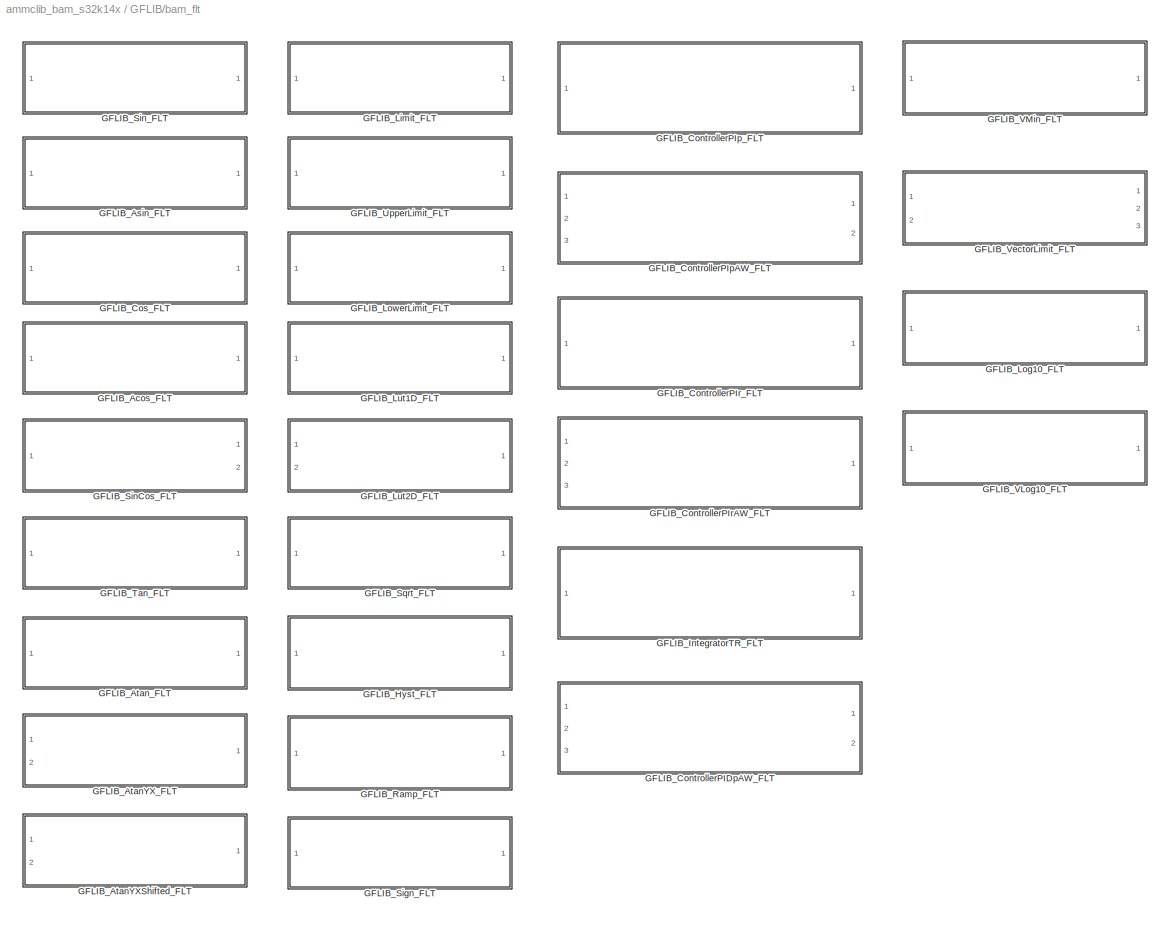
BLOCK [SubSystem] GFLIB/bam_flt
  Ports = []
  RequestExecContextInheritance = off
  SID = 7637
  Variant = off
BLOCK [SubSystem] GFLIB/bam_flt/GFLIB_Acos_FLT
  Ports = [1, 1]
  RequestExecContextInheritance = off
  SID = 8872
  Variant = off
BLOCK [S-Function] GFLIB/bam_flt/GFLIB_Acos_FLT/GFLIB_Acos_SF
  EnableBusSupport = off
  FunctionName = GFLIB_Acos_SF_FLT
  Ports = [1, 1]
  SFcnIsStateOwnerBlock = off
  SFunctionDeploymentMode = off
  SID = 8874
BLOCK [SubSystem] GFLIB/bam_flt/GFLIB_Acos_FLT/<copyright redacted>
  Ports = []
  RequestExecContextInheritance = off
  SID = 8875
  Variant = off
BLOCK [SubSystem] GFLIB/bam_flt/GFLIB_Acos_FLT/copyright2
  Ports = []
  RequestExecContextInheritance = off
  SID = 8876
  Variant = off
BLOCK [Inport] GFLIB/bam_flt/GFLIB_Acos_FLT/fltIn
  IconDisplay = Port number
  SID = 8873
BLOCK [Outport] GFLIB/bam_flt/GFLIB_Acos_FLT/fltOut
  IconDisplay = Port number
  SID = 8878
BLOCK [SubSystem] GFLIB/bam_flt/GFLIB_Acos_FLT/logo
  Ports = []
  RequestExecContextInheritance = off
  SID = 8877
  Variant = off
BLOCK [SubSystem] GFLIB/bam_flt/GFLIB_Asin_FLT
  Ports = [1, 1]
  RequestExecContextInheritance = off
  SID = 8880
  Variant = off
BLOCK [S-Function] GFLIB/bam_flt/GFLIB_Asin_FLT/GFLIB_Asin_SF
  EnableBusSupport = off
  FunctionName = GFLIB_Asin_SF_FLT
  Ports = [1, 1]
  SFcnIsStateOwnerBlock = off
  SFunctionDeploymentMode = off
  SID = 8882
BLOCK [SubSystem] GFLIB/bam_flt/GFLIB_Asin_FLT/<copyright redacted>
  Ports = []
  RequestExecContextInheritance = off
  SID = 8883
  Variant = off
BLOCK [SubSystem] GFLIB/bam_flt/GFLIB_Asin_FLT/copyright2
  Ports = []
  RequestExecContextInheritance = off
  SID = 8884
  Variant = off
BLOCK [Inport] GFLIB/bam_flt/GFLIB_Asin_FLT/fltIn
  IconDisplay = Port number
  SID = 8881
BLOCK [Outport] GFLIB/bam_flt/GFLIB_Asin_FLT/fltOut
  IconDisplay = Port number
  SID = 8886
BLOCK [SubSystem] GFLIB/bam_flt/GFLIB_Asin_FLT/logo
  Ports = []
  RequestExecContextInheritance = off
  SID = 8885
  Variant = off
BLOCK [SubSystem] GFLIB/bam_flt/GFLIB_AtanYXShifted_FLT
  Ports = [2, 1]
  RequestExecContextInheritance = off
  SID = 8905
  Variant = off
BLOCK [S-Function] GFLIB/bam_flt/GFLIB_AtanYXShifted_FLT/GFLIB_AtanYXShifted_SF
  EnableBusSupport = off
  FunctionName = GFLIB_AtanYXShifted_SF_FLT
  Parameters = Ky,Kx,ThetaAdj
  Ports = [2, 1]
  SFcnIsStateOwnerBlock = off
  SFunctionDeploymentMode = off
  SID = 8908
BLOCK [SubSystem] GFLIB/bam_flt/GFLIB_AtanYXShifted_FLT/<copyright redacted>
  Ports = []
  RequestExecContextInheritance = off
  SID = 8909
  Variant = off
BLOCK [SubSystem] GFLIB/bam_flt/GFLIB_AtanYXShifted_FLT/copyright2
  Ports = []
  RequestExecContextInheritance = off
  SID = 8910
  Variant = off
BLOCK [Inport] GFLIB/bam_flt/GFLIB_AtanYXShifted_FLT/fltInX
  IconDisplay = Port number
  Port = 2
  SID = 8907
BLOCK [Inport] GFLIB/bam_flt/GFLIB_AtanYXShifted_FLT/fltInY
  IconDisplay = Port number
  SID = 8906
BLOCK [Outport] GFLIB/bam_flt/GFLIB_AtanYXShifted_FLT/fltOut
  IconDisplay = Port number
  SID = 8912
BLOCK [SubSystem] GFLIB/bam_flt/GFLIB_AtanYXShifted_FLT/logo
  Ports = []
  RequestExecContextInheritance = off
  SID = 8911
  Variant = off
BLOCK [SubSystem] GFLIB/bam_flt/GFLIB_AtanYX_FLT
  Ports = [2, 1]
  RequestExecContextInheritance = off
  SID = 8896
  Variant = off
BLOCK [S-Function] GFLIB/bam_flt/GFLIB_AtanYX_FLT/GFLIB_AtanYX_SF
  EnableBusSupport = off
  FunctionName = GFLIB_AtanYX_SF_FLT
  Ports = [2, 1]
  SFcnIsStateOwnerBlock = off
  SFunctionDeploymentMode = off
  SID = 8899
BLOCK [SubSystem] GFLIB/bam_flt/GFLIB_AtanYX_FLT/<copyright redacted>
  Ports = []
  RequestExecContextInheritance = off
  SID = 8900
  Variant = off
BLOCK [SubSystem] GFLIB/bam_flt/GFLIB_AtanYX_FLT/copyright2
  Ports = []
  RequestExecContextInheritance = off
  SID = 8901
  Variant = off
BLOCK [Inport] GFLIB/bam_flt/GFLIB_AtanYX_FLT/fltInX
  IconDisplay = Port number
  Port = 2
  SID = 8898
BLOCK [Inport] GFLIB/bam_flt/GFLIB_AtanYX_FLT/fltInY
  IconDisplay = Port number
  SID = 8897
BLOCK [Outport] GFLIB/bam_flt/GFLIB_AtanYX_FLT/fltOut
  IconDisplay = Port number
  SID = 8903
BLOCK [SubSystem] GFLIB/bam_flt/GFLIB_AtanYX_FLT/logo
  Ports = []
  RequestExecContextInheritance = off
  SID = 8902
  Variant = off
BLOCK [SubSystem] GFLIB/bam_flt/GFLIB_Atan_FLT
  Ports = [1, 1]
  RequestExecContextInheritance = off
  SID = 8888
  Variant = off
BLOCK [S-Function] GFLIB/bam_flt/GFLIB_Atan_FLT/GFLIB_Atan_SF
  EnableBusSupport = off
  FunctionName = GFLIB_Atan_SF_FLT
  Ports = [1, 1]
  SFcnIsStateOwnerBlock = off
  SFunctionDeploymentMode = off
  SID = 8890
BLOCK [SubSystem] GFLIB/bam_flt/GFLIB_Atan_FLT/<copyright redacted>
  Ports = []
  RequestExecContextInheritance = off
  SID = 8891
  Variant = off
BLOCK [SubSystem] GFLIB/bam_flt/GFLIB_Atan_FLT/copyright2
  Ports = []
  RequestExecContextInheritance = off
  SID = 8892
  Variant = off
BLOCK [Inport] GFLIB/bam_flt/GFLIB_Atan_FLT/fltIn
  IconDisplay = Port number
  SID = 8889
BLOCK [Outport] GFLIB/bam_flt/GFLIB_Atan_FLT/fltOut
  IconDisplay = Port number
  SID = 8894
BLOCK [SubSystem] GFLIB/bam_flt/GFLIB_Atan_FLT/logo
  Ports = []
  RequestExecContextInheritance = off
  SID = 8893
  Variant = off
BLOCK [SubSystem] GFLIB/bam_flt/GFLIB_ControllerPIDpAW_FLT
  Ports = [3, 2]
  RequestExecContextInheritance = off
  SID = 10620
  Variant = off
BLOCK [Delay] GFLIB/bam_flt/GFLIB_ControllerPIDpAW_FLT/Delay
  DelayLength = 1
  InitialCondition = 0
  InputPortMap = u0
  Ports = [1, 1]
  SID = 10638
BLOCK [Delay] GFLIB/bam_flt/GFLIB_ControllerPIDpAW_FLT/Delay1
  DelayLength = 1
  InitialCondition = 0
  InputPortMap = u0
  Ports = [1, 1]
  SID = 10639
BLOCK [Delay] GFLIB/bam_flt/GFLIB_ControllerPIDpAW_FLT/Delay2
  DelayLength = 1
  InitialCondition = 0
  InputPortMap = u0
  Ports = [1, 1]
  SID = 10640
BLOCK [S-Function] GFLIB/bam_flt/GFLIB_ControllerPIDpAW_FLT/GFLIB_ControllerPIDpAW_SF
  EnableBusSupport = off
  FunctionName = GFLIB_ControllerPIDpAW_SF_FLT
  Parameters = fltPropGain,fltIntegGain,fltDerivGain,fltFiltCoef
  Ports = [6, 5]
  SFcnIsStateOwnerBlock = off
  SFunctionDeploymentMode = off
  SID = 10627
BLOCK [SubSystem] GFLIB/bam_flt/GFLIB_ControllerPIDpAW_FLT/<copyright redacted>
  Ports = []
  RequestExecContextInheritance = off
  SID = 10628
  Variant = off
BLOCK [SubSystem] GFLIB/bam_flt/GFLIB_ControllerPIDpAW_FLT/copyright2
  Ports = []
  RequestExecContextInheritance = off
  SID = 10629
  Variant = off
BLOCK [Inport] GFLIB/bam_flt/GFLIB_ControllerPIDpAW_FLT/fltInErr
  IconDisplay = Port number
  SID = 10621
BLOCK [Inport] GFLIB/bam_flt/GFLIB_ControllerPIDpAW_FLT/fltLowerLimit
  IconDisplay = Port number
  Port = 3
  SID = 10623
BLOCK [Outport] GFLIB/bam_flt/GFLIB_ControllerPIDpAW_FLT/fltOut
  IconDisplay = Port number
  SID = 10631
BLOCK [Inport] GFLIB/bam_flt/GFLIB_ControllerPIDpAW_FLT/fltUpperLimit
  IconDisplay = Port number
  Port = 2
  SID = 10622
BLOCK [SubSystem] GFLIB/bam_flt/GFLIB_ControllerPIDpAW_FLT/logo
  Ports = []
  RequestExecContextInheritance = off
  SID = 10630
  Variant = off
BLOCK [Outport] GFLIB/bam_flt/GFLIB_ControllerPIDpAW_FLT/u16LimitFlag
  IconDisplay = Port number
  Port = 2
  SID = 10632
BLOCK [SubSystem] GFLIB/bam_flt/GFLIB_ControllerPIpAW_FLT
  Ports = [3, 2]
  RequestExecContextInheritance = off
  SID = 8944
  Variant = off
BLOCK [S-Function] GFLIB/bam_flt/GFLIB_ControllerPIpAW_FLT/GFLIB_ControllerPIpAW_SF
  EnableBusSupport = off
  FunctionName = GFLIB_ControllerPIpAW_SF_FLT
  Parameters = fltPropGain,fltIntegGain
  Ports = [5, 4]
  SFcnIsStateOwnerBlock = off
  SFunctionDeploymentMode = off
  SID = 8950
BLOCK [Delay] GFLIB/bam_flt/GFLIB_ControllerPIpAW_FLT/Unit_Delay_fltInK_1
  DelayLength = 1
  InitialCondition = 0
  InputPortMap = u0
  Ports = [1, 1]
  SID = 8943
BLOCK [Delay] GFLIB/bam_flt/GFLIB_ControllerPIpAW_FLT/Unit_Delay_fltIntegPartK_1
  DelayLength = 1
  InitialCondition = 0
  InputPortMap = u0
  Ports = [1, 1]
  SID = 8942
BLOCK [SubSystem] GFLIB/bam_flt/GFLIB_ControllerPIpAW_FLT/<copyright redacted>
  Ports = []
  RequestExecContextInheritance = off
  SID = 8951
  Variant = off
BLOCK [SubSystem] GFLIB/bam_flt/GFLIB_ControllerPIpAW_FLT/copyright2
  Ports = []
  RequestExecContextInheritance = off
  SID = 8952
  Variant = off
BLOCK [Inport] GFLIB/bam_flt/GFLIB_ControllerPIpAW_FLT/fltInErr
  IconDisplay = Port number
  SID = 8945
BLOCK [Inport] GFLIB/bam_flt/GFLIB_ControllerPIpAW_FLT/fltLowerLimit
  IconDisplay = Port number
  Port = 3
  SID = 8947
BLOCK [Outport] GFLIB/bam_flt/GFLIB_ControllerPIpAW_FLT/fltOut
  IconDisplay = Port number
  SID = 8954
BLOCK [Inport] GFLIB/bam_flt/GFLIB_ControllerPIpAW_FLT/fltUpperLimit
  IconDisplay = Port number
  Port = 2
  SID = 8946
BLOCK [SubSystem] GFLIB/bam_flt/GFLIB_ControllerPIpAW_FLT/logo
  Ports = []
  RequestExecContextInheritance = off
  SID = 8953
  Variant = off
BLOCK [Outport] GFLIB/bam_flt/GFLIB_ControllerPIpAW_FLT/u16LimitFlag
  IconDisplay = Port number
  Port = 2
  SID = 8955
BLOCK [SubSystem] GFLIB/bam_flt/GFLIB_ControllerPIp_FLT
  Ports = [1, 1]
  RequestExecContextInheritance = off
  SID = 8914
  Variant = off
BLOCK [S-Function] GFLIB/bam_flt/GFLIB_ControllerPIp_FLT/GFLIB_ControllerPIp_SF
  EnableBusSupport = off
  FunctionName = GFLIB_ControllerPIp_SF_FLT
  Parameters = fltPropGain,fltIntegGain
  Ports = [3, 3]
  SFcnIsStateOwnerBlock = off
  SFunctionDeploymentMode = off
  SID = 8918
BLOCK [UnitDelay] GFLIB/bam_flt/GFLIB_ControllerPIp_FLT/Unit_Delay_fltInIntegPartK_1
  SID = 8926
  SampleTime = -1
BLOCK [UnitDelay] GFLIB/bam_flt/GFLIB_ControllerPIp_FLT/Unit_Delay_fltInK_1
  SID = 8927
  SampleTime = -1
BLOCK [SubSystem] GFLIB/bam_flt/GFLIB_ControllerPIp_FLT/<copyright redacted>
  Ports = []
  RequestExecContextInheritance = off
  SID = 8919
  Variant = off
BLOCK [SubSystem] GFLIB/bam_flt/GFLIB_ControllerPIp_FLT/copyright2
  Ports = []
  RequestExecContextInheritance = off
  SID = 8920
  Variant = off
BLOCK [Inport] GFLIB/bam_flt/GFLIB_ControllerPIp_FLT/fltInErr
  IconDisplay = Port number
  SID = 8915
BLOCK [Outport] GFLIB/bam_flt/GFLIB_ControllerPIp_FLT/fltOut
  IconDisplay = Port number
  SID = 8922
BLOCK [SubSystem] GFLIB/bam_flt/GFLIB_ControllerPIp_FLT/logo
  Ports = []
  RequestExecContextInheritance = off
  SID = 8921
  Variant = off
BLOCK [SubSystem] GFLIB/bam_flt/GFLIB_ControllerPIrAW_FLT
  Ports = [3, 1]
  RequestExecContextInheritance = off
  SID = 8975
  Variant = off
BLOCK [S-Function] GFLIB/bam_flt/GFLIB_ControllerPIrAW_FLT/GFLIB_ControllerPIrAW_SF
  EnableBusSupport = off
  FunctionName = GFLIB_ControllerPIrAW_SF_FLT
  Parameters = fltCC1,fltCC2
  Ports = [5, 3]
  SFcnIsStateOwnerBlock = off
  SFunctionDeploymentMode = off
  SID = 8981
BLOCK [Delay] GFLIB/bam_flt/GFLIB_ControllerPIrAW_FLT/Unit_Delay_fltAcc
  DelayLength = 1
  InitialCondition = 0
  InputPortMap = u0
  Ports = [1, 1]
  SID = 8974
BLOCK [Delay] GFLIB/bam_flt/GFLIB_ControllerPIrAW_FLT/Unit_Delay_fltInErrK1
  DelayLength = 1
  InitialCondition = 0
  InputPortMap = u0
  Ports = [1, 1]
  SID = 8973
BLOCK [SubSystem] GFLIB/bam_flt/GFLIB_ControllerPIrAW_FLT/<copyright redacted>
  Ports = []
  RequestExecContextInheritance = off
  SID = 8982
  Variant = off
BLOCK [SubSystem] GFLIB/bam_flt/GFLIB_ControllerPIrAW_FLT/copyright2
  Ports = []
  RequestExecContextInheritance = off
  SID = 8983
  Variant = off
BLOCK [Inport] GFLIB/bam_flt/GFLIB_ControllerPIrAW_FLT/fltInErr
  IconDisplay = Port number
  SID = 8976
BLOCK [Inport] GFLIB/bam_flt/GFLIB_ControllerPIrAW_FLT/fltLowerLimit
  IconDisplay = Port number
  Port = 3
  SID = 8978
BLOCK [Outport] GFLIB/bam_flt/GFLIB_ControllerPIrAW_FLT/fltOut
  IconDisplay = Port number
  SID = 8985
BLOCK [Inport] GFLIB/bam_flt/GFLIB_ControllerPIrAW_FLT/fltUpperLimit
  IconDisplay = Port number
  Port = 2
  SID = 8977
BLOCK [SubSystem] GFLIB/bam_flt/GFLIB_ControllerPIrAW_FLT/logo
  Ports = []
  RequestExecContextInheritance = off
  SID = 8984
  Variant = off
BLOCK [SubSystem] GFLIB/bam_flt/GFLIB_ControllerPIr_FLT
  Ports = [1, 1]
  RequestExecContextInheritance = off
  SID = 8959
  Variant = off
BLOCK [S-Function] GFLIB/bam_flt/GFLIB_ControllerPIr_FLT/GFLIB_ControllerPIr_SF
  EnableBusSupport = off
  FunctionName = GFLIB_ControllerPIr_SF_FLT
  Parameters = fltCC1,fltCC2
  Ports = [3, 3]
  SFcnIsStateOwnerBlock = off
  SFunctionDeploymentMode = off
  SID = 8963
BLOCK [UnitDelay] GFLIB/bam_flt/GFLIB_ControllerPIr_FLT/Unit_Delay_fltAccIn
  SID = 8972
  SampleTime = -1
BLOCK [UnitDelay] GFLIB/bam_flt/GFLIB_ControllerPIr_FLT/Unit_Delay_fltInErrK_1
  SID = 8971
  SampleTime = -1
BLOCK [SubSystem] GFLIB/bam_flt/GFLIB_ControllerPIr_FLT/<copyright redacted>
  Ports = []
  RequestExecContextInheritance = off
  SID = 8964
  Variant = off
BLOCK [SubSystem] GFLIB/bam_flt/GFLIB_ControllerPIr_FLT/copyright2
  Ports = []
  RequestExecContextInheritance = off
  SID = 8965
  Variant = off
BLOCK [Inport] GFLIB/bam_flt/GFLIB_ControllerPIr_FLT/fltInErr
  IconDisplay = Port number
  SID = 8960
BLOCK [Outport] GFLIB/bam_flt/GFLIB_ControllerPIr_FLT/fltOut
  IconDisplay = Port number
  SID = 8967
BLOCK [SubSystem] GFLIB/bam_flt/GFLIB_ControllerPIr_FLT/logo
  Ports = []
  RequestExecContextInheritance = off
  SID = 8966
  Variant = off
BLOCK [SubSystem] GFLIB/bam_flt/GFLIB_Cos_FLT
  Ports = [1, 1]
  RequestExecContextInheritance = off
  SID = 8989
  Variant = off
BLOCK [S-Function] GFLIB/bam_flt/GFLIB_Cos_FLT/GFLIB_Cos_SF
  EnableBusSupport = off
  FunctionName = GFLIB_Cos_SF_FLT
  Ports = [1, 1]
  SFcnIsStateOwnerBlock = off
  SFunctionDeploymentMode = off
  SID = 8991
BLOCK [SubSystem] GFLIB/bam_flt/GFLIB_Cos_FLT/<copyright redacted>
  Ports = []
  RequestExecContextInheritance = off
  SID = 8992
  Variant = off
BLOCK [SubSystem] GFLIB/bam_flt/GFLIB_Cos_FLT/copyright2
  Ports = []
  RequestExecContextInheritance = off
  SID = 8993
  Variant = off
BLOCK [Inport] GFLIB/bam_flt/GFLIB_Cos_FLT/fltIn
  IconDisplay = Port number
  SID = 8990
BLOCK [Outport] GFLIB/bam_flt/GFLIB_Cos_FLT/fltOut
  IconDisplay = Port number
  SID = 8995
BLOCK [SubSystem] GFLIB/bam_flt/GFLIB_Cos_FLT/logo
  Ports = []
  RequestExecContextInheritance = off
  SID = 8994
  Variant = off
BLOCK [SubSystem] GFLIB/bam_flt/GFLIB_Hyst_FLT
  Ports = [1, 1]
  RequestExecContextInheritance = off
  SID = 8997
  Variant = off
BLOCK [S-Function] GFLIB/bam_flt/GFLIB_Hyst_FLT/GFLIB_Hyst_SF_FLT
  EnableBusSupport = off
  FunctionName = GFLIB_Hyst_SF_FLT
  Parameters = fltHystOn,fltHystOff,fltOutValOn,fltOutValOff
  Ports = [2, 2]
  SFcnIsStateOwnerBlock = off
  SFunctionDeploymentMode = off
  SID = 9000
BLOCK [UnitDelay] GFLIB/bam_flt/GFLIB_Hyst_FLT/Unit_Delay_fltInState
  SID = 9007
  SampleTime = -1
BLOCK [SubSystem] GFLIB/bam_flt/GFLIB_Hyst_FLT/<copyright redacted>
  Ports = []
  RequestExecContextInheritance = off
  SID = 9001
  Variant = off
BLOCK [SubSystem] GFLIB/bam_flt/GFLIB_Hyst_FLT/copyright2
  Ports = []
  RequestExecContextInheritance = off
  SID = 9002
  Variant = off
BLOCK [Inport] GFLIB/bam_flt/GFLIB_Hyst_FLT/fltIn
  IconDisplay = Port number
  SID = 8998
BLOCK [Outport] GFLIB/bam_flt/GFLIB_Hyst_FLT/fltOut
  IconDisplay = Port number
  SID = 9004
BLOCK [SubSystem] GFLIB/bam_flt/GFLIB_Hyst_FLT/logo
  Ports = []
  RequestExecContextInheritance = off
  SID = 9003
  Variant = off
BLOCK [SubSystem] GFLIB/bam_flt/GFLIB_IntegratorTR_FLT
  Ports = [1, 1]
  RequestExecContextInheritance = off
  SID = 9008
  Variant = off
BLOCK [S-Function] GFLIB/bam_flt/GFLIB_IntegratorTR_FLT/GFLIB_IntegratorTR_SF
  EnableBusSupport = off
  FunctionName = GFLIB_IntegratorTR_SF_FLT
  Parameters = fltC1
  Ports = [3, 3]
  SFcnIsStateOwnerBlock = off
  SFunctionDeploymentMode = off
  SID = 9012
BLOCK [UnitDelay] GFLIB/bam_flt/GFLIB_IntegratorTR_FLT/Unit_Delay_fltInAcc
  SID = 9020
  SampleTime = -1
BLOCK [UnitDelay] GFLIB/bam_flt/GFLIB_IntegratorTR_FLT/Unit_Delay_fltInK_1
  SID = 9021
  SampleTime = -1
BLOCK [SubSystem] GFLIB/bam_flt/GFLIB_IntegratorTR_FLT/<copyright redacted>
  Ports = []
  RequestExecContextInheritance = off
  SID = 9013
  Variant = off
BLOCK [SubSystem] GFLIB/bam_flt/GFLIB_IntegratorTR_FLT/copyright2
  Ports = []
  RequestExecContextInheritance = off
  SID = 9014
  Variant = off
BLOCK [Inport] GFLIB/bam_flt/GFLIB_IntegratorTR_FLT/fltIn
  IconDisplay = Port number
  SID = 9009
BLOCK [Outport] GFLIB/bam_flt/GFLIB_IntegratorTR_FLT/fltOut
  IconDisplay = Port number
  SID = 9016
BLOCK [SubSystem] GFLIB/bam_flt/GFLIB_IntegratorTR_FLT/logo
  Ports = []
  RequestExecContextInheritance = off
  SID = 9015
  Variant = off
BLOCK [SubSystem] GFLIB/bam_flt/GFLIB_Limit_FLT
  Ports = [1, 1]
  RequestExecContextInheritance = off
  SID = 9022
  Variant = off
BLOCK [S-Function] GFLIB/bam_flt/GFLIB_Limit_FLT/GFLIB_Limit_SF_FLT
  EnableBusSupport = off
  FunctionName = GFLIB_Limit_SF_FLT
  Parameters = fltUpperLimit,fltLowerLim
  Ports = [1, 1]
  SFcnIsStateOwnerBlock = off
  SFunctionDeploymentMode = off
  SID = 9024
BLOCK [SubSystem] GFLIB/bam_flt/GFLIB_Limit_FLT/<copyright redacted>
  Ports = []
  RequestExecContextInheritance = off
  SID = 9025
  Variant = off
BLOCK [SubSystem] GFLIB/bam_flt/GFLIB_Limit_FLT/copyright2
  Ports = []
  RequestExecContextInheritance = off
  SID = 9026
  Variant = off
BLOCK [Inport] GFLIB/bam_flt/GFLIB_Limit_FLT/fltIn
  IconDisplay = Port number
  SID = 9023
BLOCK [Outport] GFLIB/bam_flt/GFLIB_Limit_FLT/fltOut
  IconDisplay = Port number
  SID = 9028
BLOCK [SubSystem] GFLIB/bam_flt/GFLIB_Limit_FLT/logo
  Ports = []
  RequestExecContextInheritance = off
  SID = 9027
  Variant = off
BLOCK [SubSystem] GFLIB/bam_flt/GFLIB_Log10_FLT
  Ports = [1, 1]
  RequestExecContextInheritance = off
  SID = 10061
  Variant = off
BLOCK [S-Function] GFLIB/bam_flt/GFLIB_Log10_FLT/GFLIB_Log10_SF
  EnableBusSupport = off
  FunctionName = GFLIB_Log10_SF_FLT
  Ports = [1, 1]
  SFcnIsStateOwnerBlock = off
  SFunctionDeploymentMode = off
  SID = 10064
BLOCK [SubSystem] GFLIB/bam_flt/GFLIB_Log10_FLT/<copyright redacted>
  Ports = []
  RequestExecContextInheritance = off
  SID = 10065
  Variant = off
BLOCK [SubSystem] GFLIB/bam_flt/GFLIB_Log10_FLT/copyright2
  Ports = []
  RequestExecContextInheritance = off
  SID = 10066
  Variant = off
BLOCK [Inport] GFLIB/bam_flt/GFLIB_Log10_FLT/fltIn
  IconDisplay = Port number
  SID = 10063
BLOCK [Outport] GFLIB/bam_flt/GFLIB_Log10_FLT/fltOut
  IconDisplay = Port number
  SID = 10068
BLOCK [SubSystem] GFLIB/bam_flt/GFLIB_Log10_FLT/logo
  Ports = []
  RequestExecContextInheritance = off
  SID = 10067
  Variant = off
BLOCK [SubSystem] GFLIB/bam_flt/GFLIB_LowerLimit_FLT
  Ports = [1, 1]
  RequestExecContextInheritance = off
  SID = 9030
  Variant = off
BLOCK [S-Function] GFLIB/bam_flt/GFLIB_LowerLimit_FLT/GFLIB_LowerLimit_SF_FLT
  EnableBusSupport = off
  FunctionName = GFLIB_LowerLimit_SF_FLT
  Parameters = fltLowerLim
  Ports = [1, 1]
  SFcnIsStateOwnerBlock = off
  SFunctionDeploymentMode = off
  SID = 9032
BLOCK [SubSystem] GFLIB/bam_flt/GFLIB_LowerLimit_FLT/<copyright redacted>
  Ports = []
  RequestExecContextInheritance = off
  SID = 9033
  Variant = off
BLOCK [SubSystem] GFLIB/bam_flt/GFLIB_LowerLimit_FLT/copyright2
  Ports = []
  RequestExecContextInheritance = off
  SID = 9034
  Variant = off
BLOCK [Inport] GFLIB/bam_flt/GFLIB_LowerLimit_FLT/fltIn
  IconDisplay = Port number
  SID = 9031
BLOCK [Outport] GFLIB/bam_flt/GFLIB_LowerLimit_FLT/fltOut
  IconDisplay = Port number
  SID = 9036
BLOCK [SubSystem] GFLIB/bam_flt/GFLIB_LowerLimit_FLT/logo
  Ports = []
  RequestExecContextInheritance = off
  SID = 9035
  Variant = off
BLOCK [SubSystem] GFLIB/bam_flt/GFLIB_Lut1D_FLT
  Ports = [1, 1]
  RequestExecContextInheritance = off
  SID = 9038
  Variant = off
BLOCK [S-Function] GFLIB/bam_flt/GFLIB_Lut1D_FLT/GFLIB_Lut1D_SF
  EnableBusSupport = off
  FunctionName = GFLIB_Lut1D_SF_FLT
  Parameters = u32ShamOffset,pfltTable,s32MidIdx
  Ports = [1, 1]
  SFcnIsStateOwnerBlock = off
  SFunctionDeploymentMode = off
  SID = 9040
BLOCK [SubSystem] GFLIB/bam_flt/GFLIB_Lut1D_FLT/<copyright redacted>
  Ports = []
  RequestExecContextInheritance = off
  SID = 9041
  Variant = off
BLOCK [SubSystem] GFLIB/bam_flt/GFLIB_Lut1D_FLT/copyright2
  Ports = []
  RequestExecContextInheritance = off
  SID = 9042
  Variant = off
BLOCK [Inport] GFLIB/bam_flt/GFLIB_Lut1D_FLT/fltIn
  IconDisplay = Port number
  SID = 9039
BLOCK [Outport] GFLIB/bam_flt/GFLIB_Lut1D_FLT/fltOut
  IconDisplay = Port number
  SID = 9044
BLOCK [SubSystem] GFLIB/bam_flt/GFLIB_Lut1D_FLT/logo
  Ports = []
  RequestExecContextInheritance = off
  SID = 9043
  Variant = off
BLOCK [SubSystem] GFLIB/bam_flt/GFLIB_Lut2D_FLT
  Ports = [2, 1]
  RequestExecContextInheritance = off
  SID = 9046
  Variant = off
BLOCK [S-Function] GFLIB/bam_flt/GFLIB_Lut2D_FLT/GFLIB_Lut2D_SF
  EnableBusSupport = off
  FunctionName = GFLIB_Lut2D_SF_FLT
  Parameters = u32ShamOffset1,u32ShamOffset2,pfltTable,s32MidIdx
  Ports = [2, 1]
  SFcnIsStateOwnerBlock = off
  SFunctionDeploymentMode = off
  SID = 9049
BLOCK [SubSystem] GFLIB/bam_flt/GFLIB_Lut2D_FLT/<copyright redacted>
  Ports = []
  RequestExecContextInheritance = off
  SID = 9050
  Variant = off
BLOCK [SubSystem] GFLIB/bam_flt/GFLIB_Lut2D_FLT/copyright2
  Ports = []
  RequestExecContextInheritance = off
  SID = 9051
  Variant = off
BLOCK [Inport] GFLIB/bam_flt/GFLIB_Lut2D_FLT/fltIn1
  IconDisplay = Port number
  SID = 9047
BLOCK [Inport] GFLIB/bam_flt/GFLIB_Lut2D_FLT/fltIn2
  IconDisplay = Port number
  Port = 2
  SID = 9048
BLOCK [Outport] GFLIB/bam_flt/GFLIB_Lut2D_FLT/fltOut
  IconDisplay = Port number
  SID = 9053
BLOCK [SubSystem] GFLIB/bam_flt/GFLIB_Lut2D_FLT/logo
  Ports = []
  RequestExecContextInheritance = off
  SID = 9052
  Variant = off
BLOCK [SubSystem] GFLIB/bam_flt/GFLIB_Ramp_FLT
  Ports = [1, 1]
  RequestExecContextInheritance = off
  SID = 9055
  Variant = off
BLOCK [S-Function] GFLIB/bam_flt/GFLIB_Ramp_FLT/GFLIB_Ramp_SF_FLT
  EnableBusSupport = off
  FunctionName = GFLIB_Ramp_SF_FLT
  Parameters = fltRampUp,fltRampDown
  Ports = [2, 2]
  SFcnIsStateOwnerBlock = off
  SFunctionDeploymentMode = off
  SID = 9058
BLOCK [UnitDelay] GFLIB/bam_flt/GFLIB_Ramp_FLT/Unit_Delay_fltInState
  SID = 9065
  SampleTime = -1
BLOCK [SubSystem] GFLIB/bam_flt/GFLIB_Ramp_FLT/<copyright redacted>
  Ports = []
  RequestExecContextInheritance = off
  SID = 9059
  Variant = off
BLOCK [SubSystem] GFLIB/bam_flt/GFLIB_Ramp_FLT/copyright2
  Ports = []
  RequestExecContextInheritance = off
  SID = 9060
  Variant = off
BLOCK [Inport] GFLIB/bam_flt/GFLIB_Ramp_FLT/fltIn
  IconDisplay = Port number
  SID = 9056
BLOCK [Outport] GFLIB/bam_flt/GFLIB_Ramp_FLT/fltOut
  IconDisplay = Port number
  SID = 9062
BLOCK [SubSystem] GFLIB/bam_flt/GFLIB_Ramp_FLT/logo
  Ports = []
  RequestExecContextInheritance = off
  SID = 9061
  Variant = off
BLOCK [SubSystem] GFLIB/bam_flt/GFLIB_Sign_FLT
  Ports = [1, 1]
  RequestExecContextInheritance = off
  SID = 9066
  Variant = off
BLOCK [S-Function] GFLIB/bam_flt/GFLIB_Sign_FLT/GFLIB_Sign_SF_FLT
  EnableBusSupport = off
  FunctionName = GFLIB_Sign_SF_FLT
  Ports = [1, 1]
  SFcnIsStateOwnerBlock = off
  SFunctionDeploymentMode = off
  SID = 9068
BLOCK [SubSystem] GFLIB/bam_flt/GFLIB_Sign_FLT/<copyright redacted>
  Ports = []
  RequestExecContextInheritance = off
  SID = 9069
  Variant = off
BLOCK [SubSystem] GFLIB/bam_flt/GFLIB_Sign_FLT/copyright2
  Ports = []
  RequestExecContextInheritance = off
  SID = 9070
  Variant = off
BLOCK [Inport] GFLIB/bam_flt/GFLIB_Sign_FLT/fltIn
  IconDisplay = Port number
  SID = 9067
BLOCK [Outport] GFLIB/bam_flt/GFLIB_Sign_FLT/fltOut
  IconDisplay = Port number
  SID = 9072
BLOCK [SubSystem] GFLIB/bam_flt/GFLIB_Sign_FLT/logo
  Ports = []
  RequestExecContextInheritance = off
  SID = 9071
  Variant = off
BLOCK [SubSystem] GFLIB/bam_flt/GFLIB_SinCos_FLT
  Ports = [1, 2]
  RequestExecContextInheritance = off
  SID = 9082
  Variant = off
BLOCK [S-Function] GFLIB/bam_flt/GFLIB_SinCos_FLT/GFLIB_SinCos_SF
  EnableBusSupport = off
  FunctionName = GFLIB_SinCos_SF_FLT
  Ports = [1, 2]
  SFcnIsStateOwnerBlock = off
  SFunctionDeploymentMode = off
  SID = 9084
BLOCK [SubSystem] GFLIB/bam_flt/GFLIB_SinCos_FLT/<copyright redacted>
  Ports = []
  RequestExecContextInheritance = off
  SID = 9085
  Variant = off
BLOCK [SubSystem] GFLIB/bam_flt/GFLIB_SinCos_FLT/copyright2
  Ports = []
  RequestExecContextInheritance = off
  SID = 9086
  Variant = off
BLOCK [Outport] GFLIB/bam_flt/GFLIB_SinCos_FLT/fltCosOut
  IconDisplay = Port number
  Port = 2
  SID = 9089
BLOCK [Inport] GFLIB/bam_flt/GFLIB_SinCos_FLT/fltIn
  IconDisplay = Port number
  SID = 9083
BLOCK [Outport] GFLIB/bam_flt/GFLIB_SinCos_FLT/fltSinOut
  IconDisplay = Port number
  SID = 9088
BLOCK [SubSystem] GFLIB/bam_flt/GFLIB_SinCos_FLT/logo
  Ports = []
  RequestExecContextInheritance = off
  SID = 9087
  Variant = off
BLOCK [SubSystem] GFLIB/bam_flt/GFLIB_Sin_FLT
  Ports = [1, 1]
  RequestExecContextInheritance = off
  SID = 9074
  Variant = off
BLOCK [S-Function] GFLIB/bam_flt/GFLIB_Sin_FLT/GFLIB_Sin_SF
  EnableBusSupport = off
  FunctionName = GFLIB_Sin_SF_FLT
  Ports = [1, 1]
  SFcnIsStateOwnerBlock = off
  SFunctionDeploymentMode = off
  SID = 9076
BLOCK [SubSystem] GFLIB/bam_flt/GFLIB_Sin_FLT/<copyright redacted>
  Ports = []
  RequestExecContextInheritance = off
  SID = 9077
  Variant = off
BLOCK [SubSystem] GFLIB/bam_flt/GFLIB_Sin_FLT/copyright2
  Ports = []
  RequestExecContextInheritance = off
  SID = 9078
  Variant = off
BLOCK [Inport] GFLIB/bam_flt/GFLIB_Sin_FLT/fltIn
  IconDisplay = Port number
  SID = 9075
BLOCK [Outport] GFLIB/bam_flt/GFLIB_Sin_FLT/fltOut
  IconDisplay = Port number
  SID = 9080
BLOCK [SubSystem] GFLIB/bam_flt/GFLIB_Sin_FLT/logo
  Ports = []
  RequestExecContextInheritance = off
  SID = 9079
  Variant = off
BLOCK [SubSystem] GFLIB/bam_flt/GFLIB_Sqrt_FLT
  Ports = [1, 1]
  RequestExecContextInheritance = off
  SID = 9091
  Variant = off
BLOCK [S-Function] GFLIB/bam_flt/GFLIB_Sqrt_FLT/GFLIB_Sqrt_SF_FLT
  EnableBusSupport = off
  FunctionName = GFLIB_Sqrt_SF_FLT
  Ports = [1, 1]
  SFcnIsStateOwnerBlock = off
  SFunctionDeploymentMode = off
  SID = 9093
BLOCK [SubSystem] GFLIB/bam_flt/GFLIB_Sqrt_FLT/<copyright redacted>
  Ports = []
  RequestExecContextInheritance = off
  SID = 9094
  Variant = off
BLOCK [SubSystem] GFLIB/bam_flt/GFLIB_Sqrt_FLT/copyright2
  Ports = []
  RequestExecContextInheritance = off
  SID = 9095
  Variant = off
BLOCK [Inport] GFLIB/bam_flt/GFLIB_Sqrt_FLT/fltIn
  IconDisplay = Port number
  SID = 9092
BLOCK [Outport] GFLIB/bam_flt/GFLIB_Sqrt_FLT/fltOut
  IconDisplay = Port number
  SID = 9097
BLOCK [SubSystem] GFLIB/bam_flt/GFLIB_Sqrt_FLT/logo
  Ports = []
  RequestExecContextInheritance = off
  SID = 9096
  Variant = off
BLOCK [SubSystem] GFLIB/bam_flt/GFLIB_Tan_FLT
  Ports = [1, 1]
  RequestExecContextInheritance = off
  SID = 9099
  Variant = off
BLOCK [S-Function] GFLIB/bam_flt/GFLIB_Tan_FLT/GFLIB_Tan_SF
  EnableBusSupport = off
  FunctionName = GFLIB_Tan_SF_FLT
  Ports = [1, 1]
  SFcnIsStateOwnerBlock = off
  SFunctionDeploymentMode = off
  SID = 9101
BLOCK [SubSystem] GFLIB/bam_flt/GFLIB_Tan_FLT/<copyright redacted>
  Ports = []
  RequestExecContextInheritance = off
  SID = 9102
  Variant = off
BLOCK [SubSystem] GFLIB/bam_flt/GFLIB_Tan_FLT/copyright2
  Ports = []
  RequestExecContextInheritance = off
  SID = 9103
  Variant = off
BLOCK [Inport] GFLIB/bam_flt/GFLIB_Tan_FLT/fltIn
  IconDisplay = Port number
  SID = 9100
BLOCK [Outport] GFLIB/bam_flt/GFLIB_Tan_FLT/fltOut
  IconDisplay = Port number
  SID = 9105
BLOCK [SubSystem] GFLIB/bam_flt/GFLIB_Tan_FLT/logo
  Ports = []
  RequestExecContextInheritance = off
  SID = 9104
  Variant = off
BLOCK [SubSystem] GFLIB/bam_flt/GFLIB_UpperLimit_FLT
  Ports = [1, 1]
  RequestExecContextInheritance = off
  SID = 9107
  Variant = off
BLOCK [S-Function] GFLIB/bam_flt/GFLIB_UpperLimit_FLT/GFLIB_UpperLimit_SF_FLT
  EnableBusSupport = off
  FunctionName = GFLIB_UpperLimit_SF_FLT
  Parameters = fltUpperLim
  Ports = [1, 1]
  SFcnIsStateOwnerBlock = off
  SFunctionDeploymentMode = off
  SID = 9109
BLOCK [SubSystem] GFLIB/bam_flt/GFLIB_UpperLimit_FLT/<copyright redacted>
  Ports = []
  RequestExecContextInheritance = off
  SID = 9110
  Variant = off
BLOCK [SubSystem] GFLIB/bam_flt/GFLIB_UpperLimit_FLT/copyright2
  Ports = []
  RequestExecContextInheritance = off
  SID = 9111
  Variant = off
BLOCK [Inport] GFLIB/bam_flt/GFLIB_UpperLimit_FLT/fltIn
  IconDisplay = Port number
  SID = 9108
BLOCK [Outport] GFLIB/bam_flt/GFLIB_UpperLimit_FLT/fltOut
  IconDisplay = Port number
  SID = 9113
BLOCK [SubSystem] GFLIB/bam_flt/GFLIB_UpperLimit_FLT/logo
  Ports = []
  RequestExecContextInheritance = off
  SID = 9112
  Variant = off
BLOCK [SubSystem] GFLIB/bam_flt/GFLIB_VLog10_FLT
  Ports = [1, 1]
  RequestExecContextInheritance = off
  SID = 10082
  Variant = off
BLOCK [SubSystem] GFLIB/bam_flt/GFLIB_VLog10_FLT/GFLIB_VLog10_FLT
  Ports = [1, 1]
  RequestExecContextInheritance = off
  SID = 10084
  Variant = off
BLOCK [S-Function] GFLIB/bam_flt/GFLIB_VLog10_FLT/GFLIB_VLog10_FLT/GFLIB_VLog10_SF
  EnableBusSupport = off
  FunctionName = GFLIB_VLog10_SF_FLT
  Parameters = u32N
  Ports = [1, 1]
  SFcnIsStateOwnerBlock = off
  SFunctionDeploymentMode = off
  SID = 10086
BLOCK [SubSystem] GFLIB/bam_flt/GFLIB_VLog10_FLT/GFLIB_VLog10_FLT/<copyright redacted>
  Ports = []
  RequestExecContextInheritance = off
  SID = 10087
  Variant = off
BLOCK [SubSystem] GFLIB/bam_flt/GFLIB_VLog10_FLT/GFLIB_VLog10_FLT/copyright2
  Ports = []
  RequestExecContextInheritance = off
  SID = 10088
  Variant = off
BLOCK [Inport] GFLIB/bam_flt/GFLIB_VLog10_FLT/GFLIB_VLog10_FLT/fltIn
  IconDisplay = Port number
  SID = 10085
BLOCK [Outport] GFLIB/bam_flt/GFLIB_VLog10_FLT/GFLIB_VLog10_FLT/fltOut
  IconDisplay = Port number
  SID = 10090
BLOCK [SubSystem] GFLIB/bam_flt/GFLIB_VLog10_FLT/GFLIB_VLog10_FLT/logo
  Ports = []
  RequestExecContextInheritance = off
  SID = 10089
  Variant = off
BLOCK [Gain] GFLIB/bam_flt/GFLIB_VLog10_FLT/Gain
  Gain = [eye(N) zeros(N,4096-N)]'
  Multiplication = Matrix(K*u)
  OutDataTypeStr = Inherit: Inherit via internal rule
  ParamDataTypeStr = Inherit: Inherit via internal rule
  SID = 10092
  SaturateOnIntegerOverflow = off
BLOCK [Inport] GFLIB/bam_flt/GFLIB_VLog10_FLT/In1
  IconDisplay = Port number
  SID = 10083
BLOCK [Outport] GFLIB/bam_flt/GFLIB_VLog10_FLT/Out1
  IconDisplay = Port number
  SID = 10094
BLOCK [Selector] GFLIB/bam_flt/GFLIB_VLog10_FLT/Selector
  IndexOptions = Starting index (dialog)
  Indices = 1
  OutputSizes = N
  Ports = [1, 1]
  SID = 10093
BLOCK [SubSystem] GFLIB/bam_flt/GFLIB_VMin_FLT
  Ports = [1, 1]
  RequestExecContextInheritance = off
  SID = 10474
  Variant = off
BLOCK [S-Function] GFLIB/bam_flt/GFLIB_VMin_FLT/GFLIB_VMin_SF
  EnableBusSupport = off
  FunctionName = GFLIB_VMin_SF_FLT
  Parameters = N
  Ports = [1, 1]
  SFcnIsStateOwnerBlock = off
  SFunctionDeploymentMode = off
  SID = 10476
BLOCK [Gain] GFLIB/bam_flt/GFLIB_VMin_FLT/Gain
  Gain = [eye(N) zeros(N,256-N)]'
  Multiplication = Matrix(K*u)
  OutDataTypeStr = single
  ParamDataTypeStr = Inherit: Inherit via internal rule
  SID = 10507
  SaturateOnIntegerOverflow = off
BLOCK [Outport] GFLIB/bam_flt/GFLIB_VMin_FLT/IndexOfMinimum
  IconDisplay = Port number
  SID = 10482
BLOCK [Inport] GFLIB/bam_flt/GFLIB_VMin_FLT/InputVector
  IconDisplay = Port number
  SID = 10475
BLOCK [SubSystem] GFLIB/bam_flt/GFLIB_VMin_FLT/<copyright redacted>
  Ports = []
  RequestExecContextInheritance = off
  SID = 10479
  Variant = off
BLOCK [SubSystem] GFLIB/bam_flt/GFLIB_VMin_FLT/copyright2
  Ports = []
  RequestExecContextInheritance = off
  SID = 10480
  Variant = off
BLOCK [SubSystem] GFLIB/bam_flt/GFLIB_VMin_FLT/logo
  Ports = []
  RequestExecContextInheritance = off
  SID = 10481
  Variant = off
BLOCK [SubSystem] GFLIB/bam_flt/GFLIB_VectorLimit_FLT
  Ports = [2, 3]
  RequestExecContextInheritance = off
  SID = 9115
  Variant = off
BLOCK [S-Function] GFLIB/bam_flt/GFLIB_VectorLimit_FLT/GFLIB_VectorLimit_SF_FLT
  EnableBusSupport = off
  FunctionName = GFLIB_VectorLimit_SF_FLT
  Parameters = fltLimit
  Ports = [2, 3]
  SFcnIsStateOwnerBlock = off
  SFunctionDeploymentMode = off
  SID = 9118
BLOCK [Outport] GFLIB/bam_flt/GFLIB_VectorLimit_FLT/bFlag
  IconDisplay = Port number
  Port = 3
  SID = 9124
BLOCK [SubSystem] GFLIB/bam_flt/GFLIB_VectorLimit_FLT/<copyright redacted>
  Ports = []
  RequestExecContextInheritance = off
  SID = 9119
  Variant = off
BLOCK [SubSystem] GFLIB/bam_flt/GFLIB_VectorLimit_FLT/copyright2
  Ports = []
  RequestExecContextInheritance = off
  SID = 9120
  Variant = off
BLOCK [Inport] GFLIB/bam_flt/GFLIB_VectorLimit_FLT/fltInVec1
  IconDisplay = Port number
  SID = 9116
BLOCK [Inport] GFLIB/bam_flt/GFLIB_VectorLimit_FLT/fltInVec2
  IconDisplay = Port number
  Port = 2
  SID = 9117
BLOCK [Outport] GFLIB/bam_flt/GFLIB_VectorLimit_FLT/fltOutVec1
  IconDisplay = Port number
  SID = 9122
BLOCK [Outport] GFLIB/bam_flt/GFLIB_VectorLimit_FLT/fltOutVec2
  IconDisplay = Port number
  Port = 2
  SID = 9123
BLOCK [SubSystem] GFLIB/bam_flt/GFLIB_VectorLimit_FLT/logo
  Ports = []
  RequestExecContextInheritance = off
  SID = 9121
  Variant = off
BLOCK [SubSystem] GMCLIB
  Ports = []
  RequestExecContextInheritance = off
  SID = 964
  Variant = off
BLOCK [SubSystem] GMCLIB/bam_f16
  Ports = []
  RequestExecContextInheritance = off
  SID = 7642
  Variant = off
BLOCK [SubSystem] GMCLIB/bam_f16/GMCLIB_ClarkInv_F16
  Ports = [2, 3]
  RequestExecContextInheritance = off
  SID = 9376
  Variant = off
BLOCK [S-Function] GMCLIB/bam_f16/GMCLIB_ClarkInv_F16/GMCLIB_ClarkInv_SF_F16
  EnableBusSupport = off
  FunctionName = GMCLIB_ClarkInv_SF_F16
  Ports = [2, 3]
  SFcnIsStateOwnerBlock = off
  SFunctionDeploymentMode = off
  SID = 9379
BLOCK [SubSystem] GMCLIB/bam_f16/GMCLIB_ClarkInv_F16/<copyright redacted>
  Ports = []
  RequestExecContextInheritance = off
  SID = 9380
  Variant = off
BLOCK [SubSystem] GMCLIB/bam_f16/GMCLIB_ClarkInv_F16/copyright2
  Ports = []
  RequestExecContextInheritance = off
  SID = 9381
  Variant = off
BLOCK [Outport] GMCLIB/bam_f16/GMCLIB_ClarkInv_F16/f16A
  IconDisplay = Port number
  SID = 9383
BLOCK [Inport] GMCLIB/bam_f16/GMCLIB_ClarkInv_F16/f16Alpha
  IconDisplay = Port number
  SID = 9377
BLOCK [Outport] GMCLIB/bam_f16/GMCLIB_ClarkInv_F16/f16B
  IconDisplay = Port number
  Port = 2
  SID = 9384
BLOCK [Inport] GMCLIB/bam_f16/GMCLIB_ClarkInv_F16/f16Beta
  IconDisplay = Port number
  Port = 2
  SID = 9378
BLOCK [Outport] GMCLIB/bam_f16/GMCLIB_ClarkInv_F16/f16C
  IconDisplay = Port number
  Port = 3
  SID = 9385
BLOCK [SubSystem] GMCLIB/bam_f16/GMCLIB_ClarkInv_F16/logo
  Ports = []
  RequestExecContextInheritance = off
  SID = 9382
  Variant = off
BLOCK [SubSystem] GMCLIB/bam_f16/GMCLIB_Clark_F16
  Ports = [3, 2]
  RequestExecContextInheritance = off
  SID = 9365
  Variant = off
BLOCK [S-Function] GMCLIB/bam_f16/GMCLIB_Clark_F16/GMCLIB_Clark_SF_F16
  EnableBusSupport = off
  FunctionName = GMCLIB_Clark_SF_F16
  Ports = [3, 2]
  SFcnIsStateOwnerBlock = off
  SFunctionDeploymentMode = off
  SID = 9369
BLOCK [SubSystem] GMCLIB/bam_f16/GMCLIB_Clark_F16/<copyright redacted>
  Ports = []
  RequestExecContextInheritance = off
  SID = 9370
  Variant = off
BLOCK [SubSystem] GMCLIB/bam_f16/GMCLIB_Clark_F16/copyright2
  Ports = []
  RequestExecContextInheritance = off
  SID = 9371
  Variant = off
BLOCK [Inport] GMCLIB/bam_f16/GMCLIB_Clark_F16/f16A
  IconDisplay = Port number
  SID = 9366
BLOCK [Outport] GMCLIB/bam_f16/GMCLIB_Clark_F16/f16Alpha
  IconDisplay = Port number
  SID = 9373
BLOCK [Inport] GMCLIB/bam_f16/GMCLIB_Clark_F16/f16B
  IconDisplay = Port number
  Port = 2
  SID = 9367
BLOCK [Outport] GMCLIB/bam_f16/GMCLIB_Clark_F16/f16Beta
  IconDisplay = Port number
  Port = 2
  SID = 9374
BLOCK [Inport] GMCLIB/bam_f16/GMCLIB_Clark_F16/f16C
  IconDisplay = Port number
  Port = 3
  SID = 9368
BLOCK [SubSystem] GMCLIB/bam_f16/GMCLIB_Clark_F16/logo
  Ports = []
  RequestExecContextInheritance = off
  SID = 9372
  Variant = off
BLOCK [SubSystem] GMCLIB/bam_f16/GMCLIB_DecouplingPMSM_F16
  Ports = [5, 2]
  RequestExecContextInheritance = off
  SID = 9387
  Variant = off
BLOCK [S-Function] GMCLIB/bam_f16/GMCLIB_DecouplingPMSM_F16/GMCLIB_DecouplingPMSM_SF_F16
  EnableBusSupport = off
  FunctionName = GMCLIB_DecouplingPMSM_SF_F16
  Parameters = f16Kd,s16KdShift,f16Kq,s16KqShift
  Ports = [5, 2]
  SFcnIsStateOwnerBlock = off
  SFunctionDeploymentMode = off
  SID = 9393
BLOCK [SubSystem] GMCLIB/bam_f16/GMCLIB_DecouplingPMSM_F16/<copyright redacted>
  Ports = []
  RequestExecContextInheritance = off
  SID = 9394
  Variant = off
BLOCK [SubSystem] GMCLIB/bam_f16/GMCLIB_DecouplingPMSM_F16/copyright2
  Ports = []
  RequestExecContextInheritance = off
  SID = 9395
  Variant = off
BLOCK [Inport] GMCLIB/bam_f16/GMCLIB_DecouplingPMSM_F16/f16AngVel
  IconDisplay = Port number
  Port = 5
  SID = 9392
BLOCK [Inport] GMCLIB/bam_f16/GMCLIB_DecouplingPMSM_F16/f16Id
  IconDisplay = Port number
  Port = 3
  SID = 9390
BLOCK [Inport] GMCLIB/bam_f16/GMCLIB_DecouplingPMSM_F16/f16Iq
  IconDisplay = Port number
  Port = 4
  SID = 9391
BLOCK [Inport] GMCLIB/bam_f16/GMCLIB_DecouplingPMSM_F16/f16Ud
  IconDisplay = Port number
  SID = 9388
BLOCK [Outport] GMCLIB/bam_f16/GMCLIB_DecouplingPMSM_F16/f16UdDec
  IconDisplay = Port number
  SID = 9397
BLOCK [Inport] GMCLIB/bam_f16/GMCLIB_DecouplingPMSM_F16/f16Uq
  IconDisplay = Port number
  Port = 2
  SID = 9389
BLOCK [Outport] GMCLIB/bam_f16/GMCLIB_DecouplingPMSM_F16/f16UqDec
  IconDisplay = Port number
  Port = 2
  SID = 9398
BLOCK [SubSystem] GMCLIB/bam_f16/GMCLIB_DecouplingPMSM_F16/logo
  Ports = []
  RequestExecContextInheritance = off
  SID = 9396
  Variant = off
BLOCK [SubSystem] GMCLIB/bam_f16/GMCLIB_ElimDcBusRip_F16
  Ports = [3, 2]
  RequestExecContextInheritance = off
  SID = 9436
  Variant = off
BLOCK [S-Function] GMCLIB/bam_f16/GMCLIB_ElimDcBusRip_F16/GMCLIB_ElimDcBusRip_SF
  EnableBusSupport = off
  FunctionName = GMCLIB_ElimDcBusRip_SF_F16
  Parameters = f16ModIndex
  Ports = [3, 2]
  SFcnIsStateOwnerBlock = off
  SFunctionDeploymentMode = off
  SID = 9440
BLOCK [SubSystem] GMCLIB/bam_f16/GMCLIB_ElimDcBusRip_F16/<copyright redacted>
  Ports = []
  RequestExecContextInheritance = off
  SID = 9441
  Variant = off
BLOCK [SubSystem] GMCLIB/bam_f16/GMCLIB_ElimDcBusRip_F16/copyright2
  Ports = []
  RequestExecContextInheritance = off
  SID = 9442
  Variant = off
BLOCK [Inport] GMCLIB/bam_f16/GMCLIB_ElimDcBusRip_F16/f16Alpha
  IconDisplay = Port number
  SID = 9437
BLOCK [Outport] GMCLIB/bam_f16/GMCLIB_ElimDcBusRip_F16/f16AlphaOut
  IconDisplay = Port number
  SID = 9444
BLOCK [Inport] GMCLIB/bam_f16/GMCLIB_ElimDcBusRip_F16/f16ArgDcBusMsr
  IconDisplay = Port number
  Port = 3
  SID = 9439
BLOCK [Inport] GMCLIB/bam_f16/GMCLIB_ElimDcBusRip_F16/f16Beta
  IconDisplay = Port number
  Port = 2
  SID = 9438
BLOCK [Outport] GMCLIB/bam_f16/GMCLIB_ElimDcBusRip_F16/f16BetaOut
  IconDisplay = Port number
  Port = 2
  SID = 9445
BLOCK [SubSystem] GMCLIB/bam_f16/GMCLIB_ElimDcBusRip_F16/logo
  Ports = []
  RequestExecContextInheritance = off
  SID = 9443
  Variant = off
BLOCK [SubSystem] GMCLIB/bam_f16/GMCLIB_ParkInv_F16
  Ports = [4, 2]
  RequestExecContextInheritance = off
  SID = 9412
  Variant = off
BLOCK [S-Function] GMCLIB/bam_f16/GMCLIB_ParkInv_F16/GMCLIB_ParkInv_SF
  EnableBusSupport = off
  FunctionName = GMCLIB_ParkInv_SF_F16
  Ports = [4, 2]
  SFcnIsStateOwnerBlock = off
  SFunctionDeploymentMode = off
  SID = 9417
BLOCK [SubSystem] GMCLIB/bam_f16/GMCLIB_ParkInv_F16/<copyright redacted>
  Ports = []
  RequestExecContextInheritance = off
  SID = 9418
  Variant = off
BLOCK [SubSystem] GMCLIB/bam_f16/GMCLIB_ParkInv_F16/copyright2
  Ports = []
  RequestExecContextInheritance = off
  SID = 9419
  Variant = off
BLOCK [Outport] GMCLIB/bam_f16/GMCLIB_ParkInv_F16/f16Alpha
  IconDisplay = Port number
  SID = 9421
BLOCK [Outport] GMCLIB/bam_f16/GMCLIB_ParkInv_F16/f16Beta
  IconDisplay = Port number
  Port = 2
  SID = 9422
BLOCK [Inport] GMCLIB/bam_f16/GMCLIB_ParkInv_F16/f16Cos
  IconDisplay = Port number
  Port = 4
  SID = 9416
BLOCK [Inport] GMCLIB/bam_f16/GMCLIB_ParkInv_F16/f16D
  IconDisplay = Port number
  SID = 9413
BLOCK [Inport] GMCLIB/bam_f16/GMCLIB_ParkInv_F16/f16Q
  IconDisplay = Port number
  Port = 2
  SID = 9414
BLOCK [Inport] GMCLIB/bam_f16/GMCLIB_ParkInv_F16/f16Sin
  IconDisplay = Port number
  Port = 3
  SID = 9415
BLOCK [SubSystem] GMCLIB/bam_f16/GMCLIB_ParkInv_F16/logo
  Ports = []
  RequestExecContextInheritance = off
  SID = 9420
  Variant = off
BLOCK [SubSystem] GMCLIB/bam_f16/GMCLIB_Park_F16
  Ports = [4, 2]
  RequestExecContextInheritance = off
  SID = 9400
  Variant = off
BLOCK [S-Function] GMCLIB/bam_f16/GMCLIB_Park_F16/GMCLIB_Park_SF
  EnableBusSupport = off
  FunctionName = GMCLIB_Park_SF_F16
  Ports = [4, 2]
  SFcnIsStateOwnerBlock = off
  SFunctionDeploymentMode = off
  SID = 9405
BLOCK [SubSystem] GMCLIB/bam_f16/GMCLIB_Park_F16/<copyright redacted>
  Ports = []
  RequestExecContextInheritance = off
  SID = 9406
  Variant = off
BLOCK [SubSystem] GMCLIB/bam_f16/GMCLIB_Park_F16/copyright2
  Ports = []
  RequestExecContextInheritance = off
  SID = 9407
  Variant = off
BLOCK [Inport] GMCLIB/bam_f16/GMCLIB_Park_F16/f16Alpha
  IconDisplay = Port number
  SID = 9401
BLOCK [Inport] GMCLIB/bam_f16/GMCLIB_Park_F16/f16Beta
  IconDisplay = Port number
  Port = 2
  SID = 9402
BLOCK [Inport] GMCLIB/bam_f16/GMCLIB_Park_F16/f16Cos
  IconDisplay = Port number
  Port = 4
  SID = 9404
BLOCK [Outport] GMCLIB/bam_f16/GMCLIB_Park_F16/f16D
  IconDisplay = Port number
  SID = 9409
BLOCK [Outport] GMCLIB/bam_f16/GMCLIB_Park_F16/f16Q
  IconDisplay = Port number
  Port = 2
  SID = 9410
BLOCK [Inport] GMCLIB/bam_f16/GMCLIB_Park_F16/f16Sin
  IconDisplay = Port number
  Port = 3
  SID = 9403
BLOCK [SubSystem] GMCLIB/bam_f16/GMCLIB_Park_F16/logo
  Ports = []
  RequestExecContextInheritance = off
  SID = 9408
  Variant = off
BLOCK [SubSystem] GMCLIB/bam_f16/GMCLIB_PwmIct_F16
  Ports = [2, 4]
  RequestExecContextInheritance = off
  SID = 10508
  Variant = off
BLOCK [S-Function] GMCLIB/bam_f16/GMCLIB_PwmIct_F16/GMCLIB_PwmIct_SF
  EnableBusSupport = off
  FunctionName = GMCLIB_PwmIct_SF_F16
  Ports = [2, 4]
  SFcnIsStateOwnerBlock = off
  SFunctionDeploymentMode = off
  SID = 10511
BLOCK [SubSystem] GMCLIB/bam_f16/GMCLIB_PwmIct_F16/<copyright redacted>
  Ports = []
  RequestExecContextInheritance = off
  SID = 10512
  Variant = off
BLOCK [SubSystem] GMCLIB/bam_f16/GMCLIB_PwmIct_F16/copyright2
  Ports = []
  RequestExecContextInheritance = off
  SID = 10513
  Variant = off
BLOCK [Inport] GMCLIB/bam_f16/GMCLIB_PwmIct_F16/f16In1
  IconDisplay = Port number
  SID = 10509
BLOCK [Inport] GMCLIB/bam_f16/GMCLIB_PwmIct_F16/f16In2
  IconDisplay = Port number
  Port = 2
  SID = 10510
BLOCK [Outport] GMCLIB/bam_f16/GMCLIB_PwmIct_F16/f16Out1
  IconDisplay = Port number
  SID = 10515
BLOCK [Outport] GMCLIB/bam_f16/GMCLIB_PwmIct_F16/f16Out2
  IconDisplay = Port number
  Port = 2
  SID = 10516
BLOCK [Outport] GMCLIB/bam_f16/GMCLIB_PwmIct_F16/f16Out3
  IconDisplay = Port number
  Port = 3
  SID = 10517
BLOCK [SubSystem] GMCLIB/bam_f16/GMCLIB_PwmIct_F16/logo
  Ports = []
  RequestExecContextInheritance = off
  SID = 10514
  Variant = off
BLOCK [Outport] GMCLIB/bam_f16/GMCLIB_PwmIct_F16/u16Sector
  IconDisplay = Port number
  Port = 4
  SID = 10518
BLOCK [SubSystem] GMCLIB/bam_f16/GMCLIB_SvmStd_F16
  Ports = [2, 4]
  RequestExecContextInheritance = off
  SID = 9424
  Variant = off
BLOCK [S-Function] GMCLIB/bam_f16/GMCLIB_SvmStd_F16/GMCLIB_SvmStd_SF
  EnableBusSupport = off
  FunctionName = GMCLIB_SvmStd_SF_F16
  Ports = [2, 4]
  SFcnIsStateOwnerBlock = off
  SFunctionDeploymentMode = off
  SID = 9427
BLOCK [SubSystem] GMCLIB/bam_f16/GMCLIB_SvmStd_F16/<copyright redacted>
  Ports = []
  RequestExecContextInheritance = off
  SID = 9428
  Variant = off
BLOCK [SubSystem] GMCLIB/bam_f16/GMCLIB_SvmStd_F16/copyright2
  Ports = []
  RequestExecContextInheritance = off
  SID = 9429
  Variant = off
BLOCK [Inport] GMCLIB/bam_f16/GMCLIB_SvmStd_F16/f16In1
  IconDisplay = Port number
  SID = 9425
BLOCK [Inport] GMCLIB/bam_f16/GMCLIB_SvmStd_F16/f16In2
  IconDisplay = Port number
  Port = 2
  SID = 9426
BLOCK [Outport] GMCLIB/bam_f16/GMCLIB_SvmStd_F16/f16Out1
  IconDisplay = Port number
  SID = 9431
BLOCK [Outport] GMCLIB/bam_f16/GMCLIB_SvmStd_F16/f16Out2
  IconDisplay = Port number
  Port = 2
  SID = 9432
BLOCK [Outport] GMCLIB/bam_f16/GMCLIB_SvmStd_F16/f16Out3
  IconDisplay = Port number
  Port = 3
  SID = 9433
BLOCK [SubSystem] GMCLIB/bam_f16/GMCLIB_SvmStd_F16/logo
  Ports = []
  RequestExecContextInheritance = off
  SID = 9430
  Variant = off
BLOCK [Outport] GMCLIB/bam_f16/GMCLIB_SvmStd_F16/u16Sector
  IconDisplay = Port number
  Port = 4
  SID = 9434
BLOCK [SubSystem] GMCLIB/bam_f16/GMCLIB_SvmU0n_F16
  Ports = [2, 4]
  RequestExecContextInheritance = off
  SID = 10520
  Variant = off
BLOCK [S-Function] GMCLIB/bam_f16/GMCLIB_SvmU0n_F16/GMCLIB_SvmU0n_SF
  EnableBusSupport = off
  FunctionName = GMCLIB_SvmU0n_SF_F16
  Ports = [2, 4]
  SFcnIsStateOwnerBlock = off
  SFunctionDeploymentMode = off
  SID = 10523
BLOCK [SubSystem] GMCLIB/bam_f16/GMCLIB_SvmU0n_F16/<copyright redacted>
  Ports = []
  RequestExecContextInheritance = off
  SID = 10524
  Variant = off
BLOCK [SubSystem] GMCLIB/bam_f16/GMCLIB_SvmU0n_F16/copyright2
  Ports = []
  RequestExecContextInheritance = off
  SID = 10525
  Variant = off
BLOCK [Inport] GMCLIB/bam_f16/GMCLIB_SvmU0n_F16/f16In1
  IconDisplay = Port number
  SID = 10521
BLOCK [Inport] GMCLIB/bam_f16/GMCLIB_SvmU0n_F16/f16In2
  IconDisplay = Port number
  Port = 2
  SID = 10522
BLOCK [Outport] GMCLIB/bam_f16/GMCLIB_SvmU0n_F16/f16Out1
  IconDisplay = Port number
  SID = 10527
BLOCK [Outport] GMCLIB/bam_f16/GMCLIB_SvmU0n_F16/f16Out2
  IconDisplay = Port number
  Port = 2
  SID = 10528
BLOCK [Outport] GMCLIB/bam_f16/GMCLIB_SvmU0n_F16/f16Out3
  IconDisplay = Port number
  Port = 3
  SID = 10529
BLOCK [SubSystem] GMCLIB/bam_f16/GMCLIB_SvmU0n_F16/logo
  Ports = []
  RequestExecContextInheritance = off
  SID = 10526
  Variant = off
BLOCK [Outport] GMCLIB/bam_f16/GMCLIB_SvmU0n_F16/u16Sector
  IconDisplay = Port number
  Port = 4
  SID = 10530
BLOCK [SubSystem] GMCLIB/bam_f32
  Ports = []
  RequestExecContextInheritance = off
  SID = 7643
  Variant = off
BLOCK [SubSystem] GMCLIB/bam_f32/GMCLIB_ClarkInv_F32
  Ports = [2, 3]
  RequestExecContextInheritance = off
  SID = 9458
  Variant = off
BLOCK [S-Function] GMCLIB/bam_f32/GMCLIB_ClarkInv_F32/GMCLIB_ClarkInv_SF_F32
  EnableBusSupport = off
  FunctionName = GMCLIB_ClarkInv_SF_F32
  Ports = [2, 3]
  SFcnIsStateOwnerBlock = off
  SFunctionDeploymentMode = off
  SID = 9461
BLOCK [SubSystem] GMCLIB/bam_f32/GMCLIB_ClarkInv_F32/<copyright redacted>
  Ports = []
  RequestExecContextInheritance = off
  SID = 9462
  Variant = off
BLOCK [SubSystem] GMCLIB/bam_f32/GMCLIB_ClarkInv_F32/copyright2
  Ports = []
  RequestExecContextInheritance = off
  SID = 9463
  Variant = off
BLOCK [Outport] GMCLIB/bam_f32/GMCLIB_ClarkInv_F32/f32A
  IconDisplay = Port number
  SID = 9465
BLOCK [Inport] GMCLIB/bam_f32/GMCLIB_ClarkInv_F32/f32Alpha
  IconDisplay = Port number
  SID = 9459
BLOCK [Outport] GMCLIB/bam_f32/GMCLIB_ClarkInv_F32/f32B
  IconDisplay = Port number
  Port = 2
  SID = 9466
BLOCK [Inport] GMCLIB/bam_f32/GMCLIB_ClarkInv_F32/f32Beta
  IconDisplay = Port number
  Port = 2
  SID = 9460
BLOCK [Outport] GMCLIB/bam_f32/GMCLIB_ClarkInv_F32/f32C
  IconDisplay = Port number
  Port = 3
  SID = 9467
BLOCK [SubSystem] GMCLIB/bam_f32/GMCLIB_ClarkInv_F32/logo
  Ports = []
  RequestExecContextInheritance = off
  SID = 9464
  Variant = off
BLOCK [SubSystem] GMCLIB/bam_f32/GMCLIB_Clark_F32
  Ports = [3, 2]
  RequestExecContextInheritance = off
  SID = 9447
  Variant = off
BLOCK [S-Function] GMCLIB/bam_f32/GMCLIB_Clark_F32/GMCLIB_Clark_SF_F32
  EnableBusSupport = off
  FunctionName = GMCLIB_Clark_SF_F32
  Ports = [3, 2]
  SFcnIsStateOwnerBlock = off
  SFunctionDeploymentMode = off
  SID = 9451
BLOCK [SubSystem] GMCLIB/bam_f32/GMCLIB_Clark_F32/<copyright redacted>
  Ports = []
  RequestExecContextInheritance = off
  SID = 9452
  Variant = off
BLOCK [SubSystem] GMCLIB/bam_f32/GMCLIB_Clark_F32/copyright2
  Ports = []
  RequestExecContextInheritance = off
  SID = 9453
  Variant = off
BLOCK [Inport] GMCLIB/bam_f32/GMCLIB_Clark_F32/f32A
  IconDisplay = Port number
  SID = 9448
BLOCK [Outport] GMCLIB/bam_f32/GMCLIB_Clark_F32/f32Alpha
  IconDisplay = Port number
  SID = 9455
BLOCK [Inport] GMCLIB/bam_f32/GMCLIB_Clark_F32/f32B
  IconDisplay = Port number
  Port = 2
  SID = 9449
BLOCK [Outport] GMCLIB/bam_f32/GMCLIB_Clark_F32/f32Beta
  IconDisplay = Port number
  Port = 2
  SID = 9456
BLOCK [Inport] GMCLIB/bam_f32/GMCLIB_Clark_F32/f32C
  IconDisplay = Port number
  Port = 3
  SID = 9450
BLOCK [SubSystem] GMCLIB/bam_f32/GMCLIB_Clark_F32/logo
  Ports = []
  RequestExecContextInheritance = off
  SID = 9454
  Variant = off
BLOCK [SubSystem] GMCLIB/bam_f32/GMCLIB_DecouplingPMSM_F32
  Ports = [5, 2]
  RequestExecContextInheritance = off
  SID = 9469
  Variant = off
BLOCK [S-Function] GMCLIB/bam_f32/GMCLIB_DecouplingPMSM_F32/GMCLIB_DecouplingPMSM_SF_F32
  EnableBusSupport = off
  FunctionName = GMCLIB_DecouplingPMSM_SF_F32
  Parameters = f32Kd,s16KdShift,f32Kq,s16KqShift
  Ports = [5, 2]
  SFcnIsStateOwnerBlock = off
  SFunctionDeploymentMode = off
  SID = 9475
BLOCK [SubSystem] GMCLIB/bam_f32/GMCLIB_DecouplingPMSM_F32/<copyright redacted>
  Ports = []
  RequestExecContextInheritance = off
  SID = 9476
  Variant = off
BLOCK [SubSystem] GMCLIB/bam_f32/GMCLIB_DecouplingPMSM_F32/copyright2
  Ports = []
  RequestExecContextInheritance = off
  SID = 9477
  Variant = off
BLOCK [Inport] GMCLIB/bam_f32/GMCLIB_DecouplingPMSM_F32/f32AngVel
  IconDisplay = Port number
  Port = 5
  SID = 9474
BLOCK [Inport] GMCLIB/bam_f32/GMCLIB_DecouplingPMSM_F32/f32Id
  IconDisplay = Port number
  Port = 3
  SID = 9472
BLOCK [Inport] GMCLIB/bam_f32/GMCLIB_DecouplingPMSM_F32/f32Iq
  IconDisplay = Port number
  Port = 4
  SID = 9473
BLOCK [Inport] GMCLIB/bam_f32/GMCLIB_DecouplingPMSM_F32/f32Ud
  IconDisplay = Port number
  SID = 9470
BLOCK [Outport] GMCLIB/bam_f32/GMCLIB_DecouplingPMSM_F32/f32UdDec
  IconDisplay = Port number
  SID = 9479
BLOCK [Inport] GMCLIB/bam_f32/GMCLIB_DecouplingPMSM_F32/f32Uq
  IconDisplay = Port number
  Port = 2
  SID = 9471
BLOCK [Outport] GMCLIB/bam_f32/GMCLIB_DecouplingPMSM_F32/f32UqDec
  IconDisplay = Port number
  Port = 2
  SID = 9480
BLOCK [SubSystem] GMCLIB/bam_f32/GMCLIB_DecouplingPMSM_F32/logo
  Ports = []
  RequestExecContextInheritance = off
  SID = 9478
  Variant = off
BLOCK [SubSystem] GMCLIB/bam_f32/GMCLIB_ElimDcBusRip_F32
  Ports = [3, 2]
  RequestExecContextInheritance = off
  SID = 9482
  Variant = off
BLOCK [S-Function] GMCLIB/bam_f32/GMCLIB_ElimDcBusRip_F32/GMCLIB_ElimDcBusRip_SF
  EnableBusSupport = off
  FunctionName = GMCLIB_ElimDcBusRip_SF_F32
  Parameters = f32ModIndex
  Ports = [3, 2]
  SFcnIsStateOwnerBlock = off
  SFunctionDeploymentMode = off
  SID = 9486
BLOCK [SubSystem] GMCLIB/bam_f32/GMCLIB_ElimDcBusRip_F32/<copyright redacted>
  Ports = []
  RequestExecContextInheritance = off
  SID = 9487
  Variant = off
BLOCK [SubSystem] GMCLIB/bam_f32/GMCLIB_ElimDcBusRip_F32/copyright2
  Ports = []
  RequestExecContextInheritance = off
  SID = 9488
  Variant = off
BLOCK [Inport] GMCLIB/bam_f32/GMCLIB_ElimDcBusRip_F32/f32Alpha
  IconDisplay = Port number
  SID = 9483
BLOCK [Outport] GMCLIB/bam_f32/GMCLIB_ElimDcBusRip_F32/f32AlphaOut
  IconDisplay = Port number
  SID = 9490
BLOCK [Inport] GMCLIB/bam_f32/GMCLIB_ElimDcBusRip_F32/f32ArgDcBusMsr
  IconDisplay = Port number
  Port = 3
  SID = 9485
BLOCK [Inport] GMCLIB/bam_f32/GMCLIB_ElimDcBusRip_F32/f32Beta
  IconDisplay = Port number
  Port = 2
  SID = 9484
BLOCK [Outport] GMCLIB/bam_f32/GMCLIB_ElimDcBusRip_F32/f32BetaOut
  IconDisplay = Port number
  Port = 2
  SID = 9491
BLOCK [SubSystem] GMCLIB/bam_f32/GMCLIB_ElimDcBusRip_F32/logo
  Ports = []
  RequestExecContextInheritance = off
  SID = 9489
  Variant = off
BLOCK [SubSystem] GMCLIB/bam_f32/GMCLIB_ParkInv_F32
  Ports = [4, 2]
  RequestExecContextInheritance = off
  SID = 9505
  Variant = off
BLOCK [S-Function] GMCLIB/bam_f32/GMCLIB_ParkInv_F32/GMCLIB_ParkInv_SF
  EnableBusSupport = off
  FunctionName = GMCLIB_ParkInv_SF_F32
  Ports = [4, 2]
  SFcnIsStateOwnerBlock = off
  SFunctionDeploymentMode = off
  SID = 9510
BLOCK [SubSystem] GMCLIB/bam_f32/GMCLIB_ParkInv_F32/<copyright redacted>
  Ports = []
  RequestExecContextInheritance = off
  SID = 9511
  Variant = off
BLOCK [SubSystem] GMCLIB/bam_f32/GMCLIB_ParkInv_F32/copyright2
  Ports = []
  RequestExecContextInheritance = off
  SID = 9512
  Variant = off
BLOCK [Outport] GMCLIB/bam_f32/GMCLIB_ParkInv_F32/f32Alpha
  IconDisplay = Port number
  SID = 9514
BLOCK [Outport] GMCLIB/bam_f32/GMCLIB_ParkInv_F32/f32Beta
  IconDisplay = Port number
  Port = 2
  SID = 9515
BLOCK [Inport] GMCLIB/bam_f32/GMCLIB_ParkInv_F32/f32Cos
  IconDisplay = Port number
  Port = 4
  SID = 9509
BLOCK [Inport] GMCLIB/bam_f32/GMCLIB_ParkInv_F32/f32D
  IconDisplay = Port number
  SID = 9506
BLOCK [Inport] GMCLIB/bam_f32/GMCLIB_ParkInv_F32/f32Q
  IconDisplay = Port number
  Port = 2
  SID = 9507
BLOCK [Inport] GMCLIB/bam_f32/GMCLIB_ParkInv_F32/f32Sin
  IconDisplay = Port number
  Port = 3
  SID = 9508
BLOCK [SubSystem] GMCLIB/bam_f32/GMCLIB_ParkInv_F32/logo
  Ports = []
  RequestExecContextInheritance = off
  SID = 9513
  Variant = off
BLOCK [SubSystem] GMCLIB/bam_f32/GMCLIB_Park_F32
  Ports = [4, 2]
  RequestExecContextInheritance = off
  SID = 9493
  Variant = off
BLOCK [S-Function] GMCLIB/bam_f32/GMCLIB_Park_F32/GMCLIB_Park_SF
  EnableBusSupport = off
  FunctionName = GMCLIB_Park_SF_F32
  Ports = [4, 2]
  SFcnIsStateOwnerBlock = off
  SFunctionDeploymentMode = off
  SID = 9498
BLOCK [SubSystem] GMCLIB/bam_f32/GMCLIB_Park_F32/<copyright redacted>
  Ports = []
  RequestExecContextInheritance = off
  SID = 9499
  Variant = off
BLOCK [SubSystem] GMCLIB/bam_f32/GMCLIB_Park_F32/copyright2
  Ports = []
  RequestExecContextInheritance = off
  SID = 9500
  Variant = off
BLOCK [Inport] GMCLIB/bam_f32/GMCLIB_Park_F32/f32Alpha
  IconDisplay = Port number
  SID = 9494
BLOCK [Inport] GMCLIB/bam_f32/GMCLIB_Park_F32/f32Beta
  IconDisplay = Port number
  Port = 2
  SID = 9495
BLOCK [Inport] GMCLIB/bam_f32/GMCLIB_Park_F32/f32Cos
  IconDisplay = Port number
  Port = 4
  SID = 9497
BLOCK [Outport] GMCLIB/bam_f32/GMCLIB_Park_F32/f32D
  IconDisplay = Port number
  SID = 9502
BLOCK [Outport] GMCLIB/bam_f32/GMCLIB_Park_F32/f32Q
  IconDisplay = Port number
  Port = 2
  SID = 9503
BLOCK [Inport] GMCLIB/bam_f32/GMCLIB_Park_F32/f32Sin
  IconDisplay = Port number
  Port = 3
  SID = 9496
BLOCK [SubSystem] GMCLIB/bam_f32/GMCLIB_Park_F32/logo
  Ports = []
  RequestExecContextInheritance = off
  SID = 9501
  Variant = off
BLOCK [SubSystem] GMCLIB/bam_f32/GMCLIB_PwmIct_F32
  Ports = [2, 4]
  RequestExecContextInheritance = off
  SID = 10544
  Variant = off
BLOCK [S-Function] GMCLIB/bam_f32/GMCLIB_PwmIct_F32/GMCLIB_PwmIct_SF
  EnableBusSupport = off
  FunctionName = GMCLIB_PwmIct_SF_F32
  Ports = [2, 4]
  SFcnIsStateOwnerBlock = off
  SFunctionDeploymentMode = off
  SID = 10547
BLOCK [SubSystem] GMCLIB/bam_f32/GMCLIB_PwmIct_F32/<copyright redacted>
  Ports = []
  RequestExecContextInheritance = off
  SID = 10548
  Variant = off
BLOCK [SubSystem] GMCLIB/bam_f32/GMCLIB_PwmIct_F32/copyright2
  Ports = []
  RequestExecContextInheritance = off
  SID = 10549
  Variant = off
BLOCK [Inport] GMCLIB/bam_f32/GMCLIB_PwmIct_F32/f32In1
  IconDisplay = Port number
  SID = 10545
BLOCK [Inport] GMCLIB/bam_f32/GMCLIB_PwmIct_F32/f32In2
  IconDisplay = Port number
  Port = 2
  SID = 10546
BLOCK [Outport] GMCLIB/bam_f32/GMCLIB_PwmIct_F32/f32Out1
  IconDisplay = Port number
  SID = 10551
BLOCK [Outport] GMCLIB/bam_f32/GMCLIB_PwmIct_F32/f32Out2
  IconDisplay = Port number
  Port = 2
  SID = 10552
BLOCK [Outport] GMCLIB/bam_f32/GMCLIB_PwmIct_F32/f32Out3
  IconDisplay = Port number
  Port = 3
  SID = 10553
BLOCK [SubSystem] GMCLIB/bam_f32/GMCLIB_PwmIct_F32/logo
  Ports = []
  RequestExecContextInheritance = off
  SID = 10550
  Variant = off
BLOCK [Outport] GMCLIB/bam_f32/GMCLIB_PwmIct_F32/u32Sector
  IconDisplay = Port number
  Port = 4
  SID = 10554
BLOCK [SubSystem] GMCLIB/bam_f32/GMCLIB_SvmStd_F32
  Ports = [2, 4]
  RequestExecContextInheritance = off
  SID = 9517
  Variant = off
BLOCK [S-Function] GMCLIB/bam_f32/GMCLIB_SvmStd_F32/GMCLIB_SvmStd_SF
  EnableBusSupport = off
  FunctionName = GMCLIB_SvmStd_SF_F32
  Ports = [2, 4]
  SFcnIsStateOwnerBlock = off
  SFunctionDeploymentMode = off
  SID = 9520
BLOCK [SubSystem] GMCLIB/bam_f32/GMCLIB_SvmStd_F32/<copyright redacted>
  Ports = []
  RequestExecContextInheritance = off
  SID = 9521
  Variant = off
BLOCK [SubSystem] GMCLIB/bam_f32/GMCLIB_SvmStd_F32/copyright2
  Ports = []
  RequestExecContextInheritance = off
  SID = 9522
  Variant = off
BLOCK [Inport] GMCLIB/bam_f32/GMCLIB_SvmStd_F32/f32In1
  IconDisplay = Port number
  SID = 9518
BLOCK [Inport] GMCLIB/bam_f32/GMCLIB_SvmStd_F32/f32In2
  IconDisplay = Port number
  Port = 2
  SID = 9519
BLOCK [Outport] GMCLIB/bam_f32/GMCLIB_SvmStd_F32/f32Out1
  IconDisplay = Port number
  SID = 9524
BLOCK [Outport] GMCLIB/bam_f32/GMCLIB_SvmStd_F32/f32Out2
  IconDisplay = Port number
  Port = 2
  SID = 9525
BLOCK [Outport] GMCLIB/bam_f32/GMCLIB_SvmStd_F32/f32Out3
  IconDisplay = Port number
  Port = 3
  SID = 9526
BLOCK [SubSystem] GMCLIB/bam_f32/GMCLIB_SvmStd_F32/logo
  Ports = []
  RequestExecContextInheritance = off
  SID = 9523
  Variant = off
BLOCK [Outport] GMCLIB/bam_f32/GMCLIB_SvmStd_F32/u32Sector
  IconDisplay = Port number
  Port = 4
  SID = 9527
BLOCK [SubSystem] GMCLIB/bam_f32/GMCLIB_SvmU0n_F32
  Ports = [2, 4]
  RequestExecContextInheritance = off
  SID = 10532
  Variant = off
BLOCK [S-Function] GMCLIB/bam_f32/GMCLIB_SvmU0n_F32/GMCLIB_SvmU0n_SF
  EnableBusSupport = off
  FunctionName = GMCLIB_SvmU0n_SF_F32
  Ports = [2, 4]
  SFcnIsStateOwnerBlock = off
  SFunctionDeploymentMode = off
  SID = 10535
BLOCK [SubSystem] GMCLIB/bam_f32/GMCLIB_SvmU0n_F32/<copyright redacted>
  Ports = []
  RequestExecContextInheritance = off
  SID = 10536
  Variant = off
BLOCK [SubSystem] GMCLIB/bam_f32/GMCLIB_SvmU0n_F32/copyright2
  Ports = []
  RequestExecContextInheritance = off
  SID = 10537
  Variant = off
BLOCK [Inport] GMCLIB/bam_f32/GMCLIB_SvmU0n_F32/f32In1
  IconDisplay = Port number
  SID = 10533
BLOCK [Inport] GMCLIB/bam_f32/GMCLIB_SvmU0n_F32/f32In2
  IconDisplay = Port number
  Port = 2
  SID = 10534
BLOCK [Outport] GMCLIB/bam_f32/GMCLIB_SvmU0n_F32/f32Out1
  IconDisplay = Port number
  SID = 10539
BLOCK [Outport] GMCLIB/bam_f32/GMCLIB_SvmU0n_F32/f32Out2
  IconDisplay = Port number
  Port = 2
  SID = 10540
BLOCK [Outport] GMCLIB/bam_f32/GMCLIB_SvmU0n_F32/f32Out3
  IconDisplay = Port number
  Port = 3
  SID = 10541
BLOCK [SubSystem] GMCLIB/bam_f32/GMCLIB_SvmU0n_F32/logo
  Ports = []
  RequestExecContextInheritance = off
  SID = 10538
  Variant = off
BLOCK [Outport] GMCLIB/bam_f32/GMCLIB_SvmU0n_F32/u32Sector
  IconDisplay = Port number
  Port = 4
  SID = 10542
BLOCK [SubSystem] GMCLIB/bam_flt
  Ports = []
  RequestExecContextInheritance = off
  SID = 7645
  Variant = off
BLOCK [SubSystem] GMCLIB/bam_flt/GMCLIB_ClarkInv_FLT
  Ports = [2, 3]
  RequestExecContextInheritance = off
  SID = 9540
  Variant = off
BLOCK [S-Function] GMCLIB/bam_flt/GMCLIB_ClarkInv_FLT/GMCLIB_ClarkInv_SF_FLT
  EnableBusSupport = off
  FunctionName = GMCLIB_ClarkInv_SF_FLT
  Ports = [2, 3]
  SFcnIsStateOwnerBlock = off
  SFunctionDeploymentMode = off
  SID = 9543
BLOCK [SubSystem] GMCLIB/bam_flt/GMCLIB_ClarkInv_FLT/<copyright redacted>
  Ports = []
  RequestExecContextInheritance = off
  SID = 9544
  Variant = off
BLOCK [SubSystem] GMCLIB/bam_flt/GMCLIB_ClarkInv_FLT/copyright2
  Ports = []
  RequestExecContextInheritance = off
  SID = 9545
  Variant = off
BLOCK [Outport] GMCLIB/bam_flt/GMCLIB_ClarkInv_FLT/fltA
  IconDisplay = Port number
  SID = 9547
BLOCK [Inport] GMCLIB/bam_flt/GMCLIB_ClarkInv_FLT/fltAlpha
  IconDisplay = Port number
  SID = 9541
BLOCK [Outport] GMCLIB/bam_flt/GMCLIB_ClarkInv_FLT/fltB
  IconDisplay = Port number
  Port = 2
  SID = 9548
BLOCK [Inport] GMCLIB/bam_flt/GMCLIB_ClarkInv_FLT/fltBeta
  IconDisplay = Port number
  Port = 2
  SID = 9542
BLOCK [Outport] GMCLIB/bam_flt/GMCLIB_ClarkInv_FLT/fltC
  IconDisplay = Port number
  Port = 3
  SID = 9549
BLOCK [SubSystem] GMCLIB/bam_flt/GMCLIB_ClarkInv_FLT/logo
  Ports = []
  RequestExecContextInheritance = off
  SID = 9546
  Variant = off
BLOCK [SubSystem] GMCLIB/bam_flt/GMCLIB_Clark_FLT
  Ports = [3, 2]
  RequestExecContextInheritance = off
  SID = 9529
  Variant = off
BLOCK [S-Function] GMCLIB/bam_flt/GMCLIB_Clark_FLT/GMCLIB_Clark_SF_FLT
  EnableBusSupport = off
  FunctionName = GMCLIB_Clark_SF_FLT
  Ports = [3, 2]
  SFcnIsStateOwnerBlock = off
  SFunctionDeploymentMode = off
  SID = 9533
BLOCK [SubSystem] GMCLIB/bam_flt/GMCLIB_Clark_FLT/<copyright redacted>
  Ports = []
  RequestExecContextInheritance = off
  SID = 9534
  Variant = off
BLOCK [SubSystem] GMCLIB/bam_flt/GMCLIB_Clark_FLT/copyright2
  Ports = []
  RequestExecContextInheritance = off
  SID = 9535
  Variant = off
BLOCK [Inport] GMCLIB/bam_flt/GMCLIB_Clark_FLT/fltA
  IconDisplay = Port number
  SID = 9530
BLOCK [Outport] GMCLIB/bam_flt/GMCLIB_Clark_FLT/fltAlpha
  IconDisplay = Port number
  SID = 9537
BLOCK [Inport] GMCLIB/bam_flt/GMCLIB_Clark_FLT/fltB
  IconDisplay = Port number
  Port = 2
  SID = 9531
BLOCK [Outport] GMCLIB/bam_flt/GMCLIB_Clark_FLT/fltBeta
  IconDisplay = Port number
  Port = 2
  SID = 9538
BLOCK [Inport] GMCLIB/bam_flt/GMCLIB_Clark_FLT/fltC
  IconDisplay = Port number
  Port = 3
  SID = 9532
BLOCK [SubSystem] GMCLIB/bam_flt/GMCLIB_Clark_FLT/logo
  Ports = []
  RequestExecContextInheritance = off
  SID = 9536
  Variant = off
BLOCK [SubSystem] GMCLIB/bam_flt/GMCLIB_DecouplingPMSM_FLT
  Ports = [5, 2]
  RequestExecContextInheritance = off
  SID = 9551
  Variant = off
BLOCK [S-Function] GMCLIB/bam_flt/GMCLIB_DecouplingPMSM_FLT/GMCLIB_DecouplingPMSM_SF_FLT
  EnableBusSupport = off
  FunctionName = GMCLIB_DecouplingPMSM_SF_FLT
  Parameters = fltKd,fltKq
  Ports = [5, 2]
  SFcnIsStateOwnerBlock = off
  SFunctionDeploymentMode = off
  SID = 9557
BLOCK [SubSystem] GMCLIB/bam_flt/GMCLIB_DecouplingPMSM_FLT/<copyright redacted>
  Ports = []
  RequestExecContextInheritance = off
  SID = 9558
  Variant = off
BLOCK [SubSystem] GMCLIB/bam_flt/GMCLIB_DecouplingPMSM_FLT/copyright2
  Ports = []
  RequestExecContextInheritance = off
  SID = 9559
  Variant = off
BLOCK [Inport] GMCLIB/bam_flt/GMCLIB_DecouplingPMSM_FLT/fltAngVel
  IconDisplay = Port number
  Port = 5
  SID = 9556
BLOCK [Inport] GMCLIB/bam_flt/GMCLIB_DecouplingPMSM_FLT/fltId
  IconDisplay = Port number
  Port = 3
  SID = 9554
BLOCK [Inport] GMCLIB/bam_flt/GMCLIB_DecouplingPMSM_FLT/fltIq
  IconDisplay = Port number
  Port = 4
  SID = 9555
BLOCK [Inport] GMCLIB/bam_flt/GMCLIB_DecouplingPMSM_FLT/fltUd
  IconDisplay = Port number
  SID = 9552
BLOCK [Outport] GMCLIB/bam_flt/GMCLIB_DecouplingPMSM_FLT/fltUdDec
  IconDisplay = Port number
  SID = 9561
BLOCK [Inport] GMCLIB/bam_flt/GMCLIB_DecouplingPMSM_FLT/fltUq
  IconDisplay = Port number
  Port = 2
  SID = 9553
BLOCK [Outport] GMCLIB/bam_flt/GMCLIB_DecouplingPMSM_FLT/fltUqDec
  IconDisplay = Port number
  Port = 2
  SID = 9562
BLOCK [SubSystem] GMCLIB/bam_flt/GMCLIB_DecouplingPMSM_FLT/logo
  Ports = []
  RequestExecContextInheritance = off
  SID = 9560
  Variant = off
BLOCK [SubSystem] GMCLIB/bam_flt/GMCLIB_ElimDcBusRip_FLT
  Ports = [3, 2]
  RequestExecContextInheritance = off
  SID = 9564
  Variant = off
BLOCK [S-Function] GMCLIB/bam_flt/GMCLIB_ElimDcBusRip_FLT/GMCLIB_ElimDcBusRip_SF
  EnableBusSupport = off
  FunctionName = GMCLIB_ElimDcBusRip_SF_FLT
  Parameters = fltModIndex
  Ports = [3, 2]
  SFcnIsStateOwnerBlock = off
  SFunctionDeploymentMode = off
  SID = 9568
BLOCK [SubSystem] GMCLIB/bam_flt/GMCLIB_ElimDcBusRip_FLT/<copyright redacted>
  Ports = []
  RequestExecContextInheritance = off
  SID = 9569
  Variant = off
BLOCK [SubSystem] GMCLIB/bam_flt/GMCLIB_ElimDcBusRip_FLT/copyright2
  Ports = []
  RequestExecContextInheritance = off
  SID = 9570
  Variant = off
BLOCK [Inport] GMCLIB/bam_flt/GMCLIB_ElimDcBusRip_FLT/fltAlpha
  IconDisplay = Port number
  SID = 9565
BLOCK [Outport] GMCLIB/bam_flt/GMCLIB_ElimDcBusRip_FLT/fltAlphaOut
  IconDisplay = Port number
  SID = 9572
BLOCK [Inport] GMCLIB/bam_flt/GMCLIB_ElimDcBusRip_FLT/fltArgDcBusMsr
  IconDisplay = Port number
  Port = 3
  SID = 9567
BLOCK [Inport] GMCLIB/bam_flt/GMCLIB_ElimDcBusRip_FLT/fltBeta
  IconDisplay = Port number
  Port = 2
  SID = 9566
BLOCK [Outport] GMCLIB/bam_flt/GMCLIB_ElimDcBusRip_FLT/fltBetaOut
  IconDisplay = Port number
  Port = 2
  SID = 9573
BLOCK [SubSystem] GMCLIB/bam_flt/GMCLIB_ElimDcBusRip_FLT/logo
  Ports = []
  RequestExecContextInheritance = off
  SID = 9571
  Variant = off
BLOCK [SubSystem] GMCLIB/bam_flt/GMCLIB_ParkInv_FLT
  Ports = [4, 2]
  RequestExecContextInheritance = off
  SID = 9587
  Variant = off
BLOCK [S-Function] GMCLIB/bam_flt/GMCLIB_ParkInv_FLT/GMCLIB_ParkInv_SF
  EnableBusSupport = off
  FunctionName = GMCLIB_ParkInv_SF_FLT
  Ports = [4, 2]
  SFcnIsStateOwnerBlock = off
  SFunctionDeploymentMode = off
  SID = 9592
BLOCK [SubSystem] GMCLIB/bam_flt/GMCLIB_ParkInv_FLT/<copyright redacted>
  Ports = []
  RequestExecContextInheritance = off
  SID = 9593
  Variant = off
BLOCK [SubSystem] GMCLIB/bam_flt/GMCLIB_ParkInv_FLT/copyright2
  Ports = []
  RequestExecContextInheritance = off
  SID = 9594
  Variant = off
BLOCK [Outport] GMCLIB/bam_flt/GMCLIB_ParkInv_FLT/fltAlpha
  IconDisplay = Port number
  SID = 9596
BLOCK [Outport] GMCLIB/bam_flt/GMCLIB_ParkInv_FLT/fltBeta
  IconDisplay = Port number
  Port = 2
  SID = 9597
BLOCK [Inport] GMCLIB/bam_flt/GMCLIB_ParkInv_FLT/fltCos
  IconDisplay = Port number
  Port = 4
  SID = 9591
BLOCK [Inport] GMCLIB/bam_flt/GMCLIB_ParkInv_FLT/fltD
  IconDisplay = Port number
  SID = 9588
BLOCK [Inport] GMCLIB/bam_flt/GMCLIB_ParkInv_FLT/fltQ
  IconDisplay = Port number
  Port = 2
  SID = 9589
BLOCK [Inport] GMCLIB/bam_flt/GMCLIB_ParkInv_FLT/fltSin
  IconDisplay = Port number
  Port = 3
  SID = 9590
BLOCK [SubSystem] GMCLIB/bam_flt/GMCLIB_ParkInv_FLT/logo
  Ports = []
  RequestExecContextInheritance = off
  SID = 9595
  Variant = off
BLOCK [SubSystem] GMCLIB/bam_flt/GMCLIB_Park_FLT
  Ports = [4, 2]
  RequestExecContextInheritance = off
  SID = 9599
  Variant = off
BLOCK [S-Function] GMCLIB/bam_flt/GMCLIB_Park_FLT/GMCLIB_Park_SF
  EnableBusSupport = off
  FunctionName = GMCLIB_Park_SF_FLT
  Ports = [4, 2]
  SFcnIsStateOwnerBlock = off
  SFunctionDeploymentMode = off
  SID = 9604
BLOCK [SubSystem] GMCLIB/bam_flt/GMCLIB_Park_FLT/<copyright redacted>
  Ports = []
  RequestExecContextInheritance = off
  SID = 9605
  Variant = off
BLOCK [SubSystem] GMCLIB/bam_flt/GMCLIB_Park_FLT/copyright2
  Ports = []
  RequestExecContextInheritance = off
  SID = 9606
  Variant = off
BLOCK [Inport] GMCLIB/bam_flt/GMCLIB_Park_FLT/fltAlpha
  IconDisplay = Port number
  SID = 9600
BLOCK [Inport] GMCLIB/bam_flt/GMCLIB_Park_FLT/fltBeta
  IconDisplay = Port number
  Port = 2
  SID = 9601
BLOCK [Inport] GMCLIB/bam_flt/GMCLIB_Park_FLT/fltCos
  IconDisplay = Port number
  Port = 4
  SID = 9603
BLOCK [Outport] GMCLIB/bam_flt/GMCLIB_Park_FLT/fltD
  IconDisplay = Port number
  SID = 9608
BLOCK [Outport] GMCLIB/bam_flt/GMCLIB_Park_FLT/fltQ
  IconDisplay = Port number
  Port = 2
  SID = 9609
BLOCK [Inport] GMCLIB/bam_flt/GMCLIB_Park_FLT/fltSin
  IconDisplay = Port number
  Port = 3
  SID = 9602
BLOCK [SubSystem] GMCLIB/bam_flt/GMCLIB_Park_FLT/logo
  Ports = []
  RequestExecContextInheritance = off
  SID = 9607
  Variant = off
BLOCK [SubSystem] GMCLIB/bam_flt/GMCLIB_PwmIct_FLT
  Ports = [2, 4]
  RequestExecContextInheritance = off
  SID = 10568
  Variant = off
BLOCK [S-Function] GMCLIB/bam_flt/GMCLIB_PwmIct_FLT/GMCLIB_PwmIct_SF
  EnableBusSupport = off
  FunctionName = GMCLIB_PwmIct_SF_FLT
  Ports = [2, 4]
  SFcnIsStateOwnerBlock = off
  SFunctionDeploymentMode = off
  SID = 10571
BLOCK [SubSystem] GMCLIB/bam_flt/GMCLIB_PwmIct_FLT/<copyright redacted>
  Ports = []
  RequestExecContextInheritance = off
  SID = 10572
  Variant = off
BLOCK [SubSystem] GMCLIB/bam_flt/GMCLIB_PwmIct_FLT/copyright2
  Ports = []
  RequestExecContextInheritance = off
  SID = 10573
  Variant = off
BLOCK [Inport] GMCLIB/bam_flt/GMCLIB_PwmIct_FLT/fltIn1
  IconDisplay = Port number
  SID = 10569
BLOCK [Inport] GMCLIB/bam_flt/GMCLIB_PwmIct_FLT/fltIn2
  IconDisplay = Port number
  Port = 2
  SID = 10570
BLOCK [Outport] GMCLIB/bam_flt/GMCLIB_PwmIct_FLT/fltOut1
  IconDisplay = Port number
  SID = 10575
BLOCK [Outport] GMCLIB/bam_flt/GMCLIB_PwmIct_FLT/fltOut2
  IconDisplay = Port number
  Port = 2
  SID = 10576
BLOCK [Outport] GMCLIB/bam_flt/GMCLIB_PwmIct_FLT/fltOut3
  IconDisplay = Port number
  Port = 3
  SID = 10577
BLOCK [SubSystem] GMCLIB/bam_flt/GMCLIB_PwmIct_FLT/logo
  Ports = []
  RequestExecContextInheritance = off
  SID = 10574
  Variant = off
BLOCK [Outport] GMCLIB/bam_flt/GMCLIB_PwmIct_FLT/u32Sector
  IconDisplay = Port number
  Port = 4
  SID = 10578
BLOCK [SubSystem] GMCLIB/bam_flt/GMCLIB_SvmStd_FLT
  Ports = [2, 4]
  RequestExecContextInheritance = off
  SID = 9575
  Variant = off
BLOCK [S-Function] GMCLIB/bam_flt/GMCLIB_SvmStd_FLT/GMCLIB_SvmStd_SF
  EnableBusSupport = off
  FunctionName = GMCLIB_SvmStd_SF_FLT
  Ports = [2, 4]
  SFcnIsStateOwnerBlock = off
  SFunctionDeploymentMode = off
  SID = 9578
BLOCK [SubSystem] GMCLIB/bam_flt/GMCLIB_SvmStd_FLT/<copyright redacted>
  Ports = []
  RequestExecContextInheritance = off
  SID = 9579
  Variant = off
BLOCK [SubSystem] GMCLIB/bam_flt/GMCLIB_SvmStd_FLT/copyright2
  Ports = []
  RequestExecContextInheritance = off
  SID = 9580
  Variant = off
BLOCK [Inport] GMCLIB/bam_flt/GMCLIB_SvmStd_FLT/fltIn1
  IconDisplay = Port number
  SID = 9576
BLOCK [Inport] GMCLIB/bam_flt/GMCLIB_SvmStd_FLT/fltIn2
  IconDisplay = Port number
  Port = 2
  SID = 9577
BLOCK [Outport] GMCLIB/bam_flt/GMCLIB_SvmStd_FLT/fltOut1
  IconDisplay = Port number
  SID = 9582
BLOCK [Outport] GMCLIB/bam_flt/GMCLIB_SvmStd_FLT/fltOut2
  IconDisplay = Port number
  Port = 2
  SID = 9583
BLOCK [Outport] GMCLIB/bam_flt/GMCLIB_SvmStd_FLT/fltOut3
  IconDisplay = Port number
  Port = 3
  SID = 9584
BLOCK [SubSystem] GMCLIB/bam_flt/GMCLIB_SvmStd_FLT/logo
  Ports = []
  RequestExecContextInheritance = off
  SID = 9581
  Variant = off
BLOCK [Outport] GMCLIB/bam_flt/GMCLIB_SvmStd_FLT/u32Sector
  IconDisplay = Port number
  Port = 4
  SID = 9585
BLOCK [SubSystem] GMCLIB/bam_flt/GMCLIB_SvmU0n_FLT
  Ports = [2, 4]
  RequestExecContextInheritance = off
  SID = 10556
  Variant = off
BLOCK [S-Function] GMCLIB/bam_flt/GMCLIB_SvmU0n_FLT/GMCLIB_SvmU0n_SF
  EnableBusSupport = off
  FunctionName = GMCLIB_SvmU0n_SF_FLT
  Ports = [2, 4]
  SFcnIsStateOwnerBlock = off
  SFunctionDeploymentMode = off
  SID = 10559
BLOCK [SubSystem] GMCLIB/bam_flt/GMCLIB_SvmU0n_FLT/<copyright redacted>
  Ports = []
  RequestExecContextInheritance = off
  SID = 10560
  Variant = off
BLOCK [SubSystem] GMCLIB/bam_flt/GMCLIB_SvmU0n_FLT/copyright2
  Ports = []
  RequestExecContextInheritance = off
  SID = 10561
  Variant = off
BLOCK [Inport] GMCLIB/bam_flt/GMCLIB_SvmU0n_FLT/fltIn1
  IconDisplay = Port number
  SID = 10557
BLOCK [Inport] GMCLIB/bam_flt/GMCLIB_SvmU0n_FLT/fltIn2
  IconDisplay = Port number
  Port = 2
  SID = 10558
BLOCK [Outport] GMCLIB/bam_flt/GMCLIB_SvmU0n_FLT/fltOut1
  IconDisplay = Port number
  SID = 10563
BLOCK [Outport] GMCLIB/bam_flt/GMCLIB_SvmU0n_FLT/fltOut2
  IconDisplay = Port number
  Port = 2
  SID = 10564
BLOCK [Outport] GMCLIB/bam_flt/GMCLIB_SvmU0n_FLT/fltOut3
  IconDisplay = Port number
  Port = 3
  SID = 10565
BLOCK [SubSystem] GMCLIB/bam_flt/GMCLIB_SvmU0n_FLT/logo
  Ports = []
  RequestExecContextInheritance = off
  SID = 10562
  Variant = off
BLOCK [Outport] GMCLIB/bam_flt/GMCLIB_SvmU0n_FLT/u32Sector
  IconDisplay = Port number
  Port = 4
  SID = 10566
BLOCK [SubSystem] MLIB
  Ports = []
  RequestExecContextInheritance = off
  SID = 131
  Variant = off
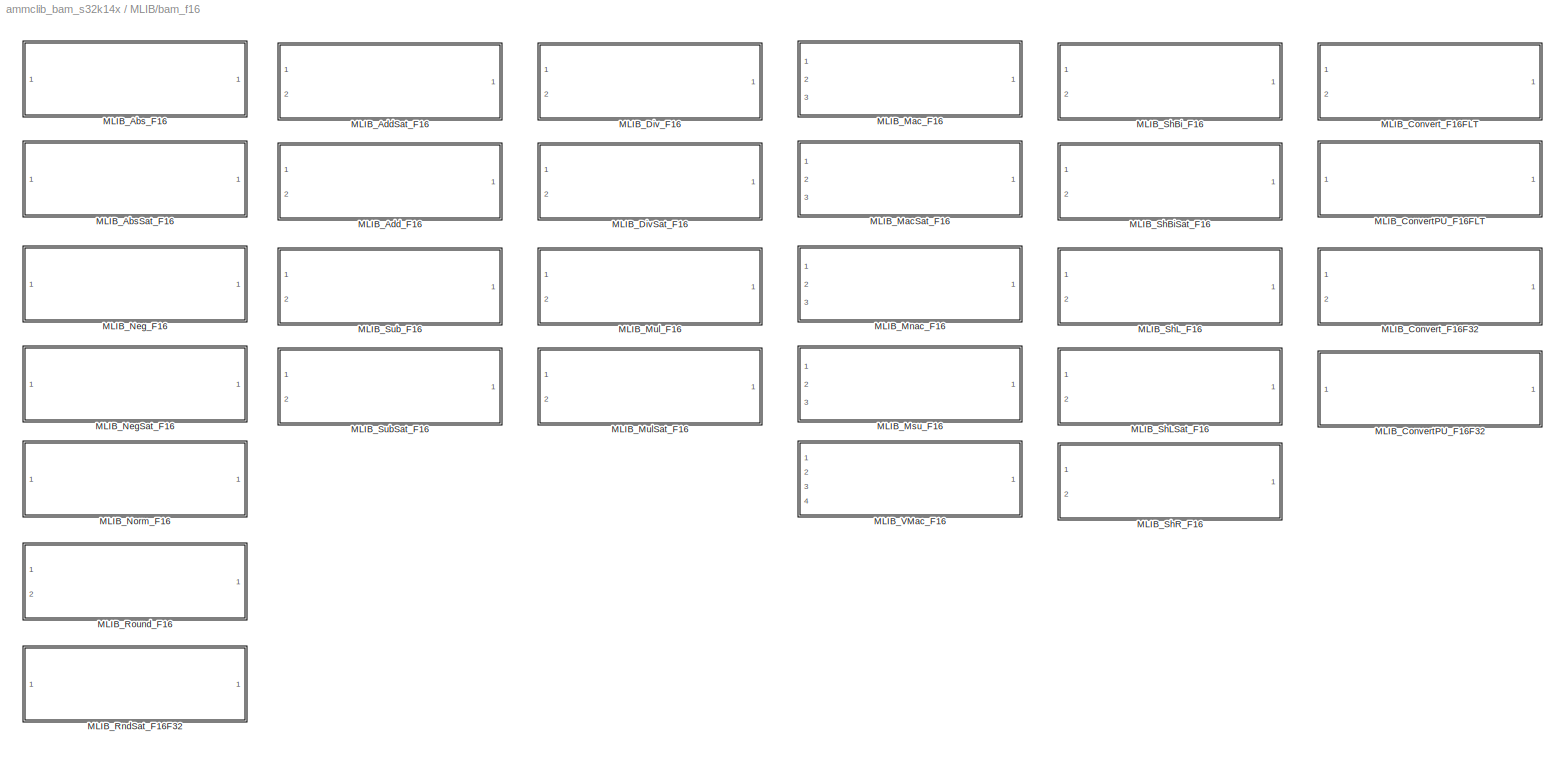
BLOCK [SubSystem] MLIB/bam_f16
  Ports = []
  RequestExecContextInheritance = off
  SID = 4920
  Variant = off
BLOCK [SubSystem] MLIB/bam_f16/MLIB_AbsSat_F16
  Ports = [1, 1]
  RequestExecContextInheritance = off
  SID = 7712
  Variant = off
BLOCK [S-Function] MLIB/bam_f16/MLIB_AbsSat_F16/MLIB_AbsSat_SF
  EnableBusSupport = off
  FunctionName = MLIB_AbsSat_SF_F16
  Ports = [1, 1]
  SFcnIsStateOwnerBlock = off
  SFunctionDeploymentMode = off
  SID = 7714
BLOCK [SubSystem] MLIB/bam_f16/MLIB_AbsSat_F16/<copyright redacted>
  Ports = []
  RequestExecContextInheritance = off
  SID = 7715
  Variant = off
BLOCK [SubSystem] MLIB/bam_f16/MLIB_AbsSat_F16/copyright2
  Ports = []
  RequestExecContextInheritance = off
  SID = 7716
  Variant = off
BLOCK [Inport] MLIB/bam_f16/MLIB_AbsSat_F16/f16In
  IconDisplay = Port number
  SID = 7713
BLOCK [Outport] MLIB/bam_f16/MLIB_AbsSat_F16/f16Out
  IconDisplay = Port number
  SID = 7718
BLOCK [SubSystem] MLIB/bam_f16/MLIB_AbsSat_F16/logo
  Ports = []
  RequestExecContextInheritance = off
  SID = 7717
  Variant = off
BLOCK [SubSystem] MLIB/bam_f16/MLIB_Abs_F16
  Ports = [1, 1]
  RequestExecContextInheritance = off
  SID = 7704
  Variant = off
BLOCK [S-Function] MLIB/bam_f16/MLIB_Abs_F16/MLIB_Abs_SF
  EnableBusSupport = off
  FunctionName = MLIB_Abs_SF_F16
  Ports = [1, 1]
  SFcnIsStateOwnerBlock = off
  SFunctionDeploymentMode = off
  SID = 7706
BLOCK [SubSystem] MLIB/bam_f16/MLIB_Abs_F16/<copyright redacted>
  Ports = []
  RequestExecContextInheritance = off
  SID = 7707
  Variant = off
BLOCK [SubSystem] MLIB/bam_f16/MLIB_Abs_F16/copyright2
  Ports = []
  RequestExecContextInheritance = off
  SID = 7708
  Variant = off
BLOCK [Inport] MLIB/bam_f16/MLIB_Abs_F16/f16In
  IconDisplay = Port number
  SID = 7705
BLOCK [Outport] MLIB/bam_f16/MLIB_Abs_F16/f16Out
  IconDisplay = Port number
  SID = 7710
BLOCK [SubSystem] MLIB/bam_f16/MLIB_Abs_F16/logo
  Ports = []
  RequestExecContextInheritance = off
  SID = 7709
  Variant = off
BLOCK [SubSystem] MLIB/bam_f16/MLIB_AddSat_F16
  Ports = [2, 1]
  RequestExecContextInheritance = off
  SID = 7729
  Variant = off
BLOCK [S-Function] MLIB/bam_f16/MLIB_AddSat_F16/MLIB_AddSat_SF
  EnableBusSupport = off
  FunctionName = MLIB_AddSat_SF_F16
  Ports = [2, 1]
  SFcnIsStateOwnerBlock = off
  SFunctionDeploymentMode = off
  SID = 7732
BLOCK [SubSystem] MLIB/bam_f16/MLIB_AddSat_F16/<copyright redacted>
  Ports = []
  RequestExecContextInheritance = off
  SID = 7733
  Variant = off
BLOCK [SubSystem] MLIB/bam_f16/MLIB_AddSat_F16/copyright2
  Ports = []
  RequestExecContextInheritance = off
  SID = 7734
  Variant = off
BLOCK [Inport] MLIB/bam_f16/MLIB_AddSat_F16/f16In1
  IconDisplay = Port number
  SID = 7730
BLOCK [Inport] MLIB/bam_f16/MLIB_AddSat_F16/f16In2
  IconDisplay = Port number
  Port = 2
  SID = 7731
BLOCK [Outport] MLIB/bam_f16/MLIB_AddSat_F16/f16Out
  IconDisplay = Port number
  SID = 7736
BLOCK [SubSystem] MLIB/bam_f16/MLIB_AddSat_F16/logo
  Ports = []
  RequestExecContextInheritance = off
  SID = 7735
  Variant = off
BLOCK [SubSystem] MLIB/bam_f16/MLIB_Add_F16
  Ports = [2, 1]
  RequestExecContextInheritance = off
  SID = 7720
  Variant = off
BLOCK [S-Function] MLIB/bam_f16/MLIB_Add_F16/MLIB_Add_SF
  EnableBusSupport = off
  FunctionName = MLIB_Add_SF_F16
  Ports = [2, 1]
  SFcnIsStateOwnerBlock = off
  SFunctionDeploymentMode = off
  SID = 7723
BLOCK [SubSystem] MLIB/bam_f16/MLIB_Add_F16/<copyright redacted>
  Ports = []
  RequestExecContextInheritance = off
  SID = 7724
  Variant = off
BLOCK [SubSystem] MLIB/bam_f16/MLIB_Add_F16/copyright2
  Ports = []
  RequestExecContextInheritance = off
  SID = 7725
  Variant = off
BLOCK [Inport] MLIB/bam_f16/MLIB_Add_F16/f16In1
  IconDisplay = Port number
  SID = 7721
BLOCK [Inport] MLIB/bam_f16/MLIB_Add_F16/f16In2
  IconDisplay = Port number
  Port = 2
  SID = 7722
BLOCK [Outport] MLIB/bam_f16/MLIB_Add_F16/f16Out
  IconDisplay = Port number
  SID = 7727
BLOCK [SubSystem] MLIB/bam_f16/MLIB_Add_F16/logo
  Ports = []
  RequestExecContextInheritance = off
  SID = 7726
  Variant = off
BLOCK [SubSystem] MLIB/bam_f16/MLIB_ConvertPU_F16F32
  Ports = [1, 1]
  RequestExecContextInheritance = off
  SID = 9645
  Variant = off
BLOCK [S-Function] MLIB/bam_f16/MLIB_ConvertPU_F16F32/MLIB_ConvertPU_SF
  EnableBusSupport = off
  FunctionName = MLIB_ConvertPU_SF_F16F32
  Ports = [1, 1]
  SFcnIsStateOwnerBlock = off
  SFunctionDeploymentMode = off
  SID = 9647
BLOCK [SubSystem] MLIB/bam_f16/MLIB_ConvertPU_F16F32/<copyright redacted>
  Ports = []
  RequestExecContextInheritance = off
  SID = 9648
  Variant = off
BLOCK [SubSystem] MLIB/bam_f16/MLIB_ConvertPU_F16F32/copyright2
  Ports = []
  RequestExecContextInheritance = off
  SID = 9649
  Variant = off
BLOCK [Outport] MLIB/bam_f16/MLIB_ConvertPU_F16F32/f16Out
  IconDisplay = Port number
  SID = 9651
BLOCK [Inport] MLIB/bam_f16/MLIB_ConvertPU_F16F32/f32In
  IconDisplay = Port number
  SID = 9646
BLOCK [SubSystem] MLIB/bam_f16/MLIB_ConvertPU_F16F32/logo
  Ports = []
  RequestExecContextInheritance = off
  SID = 9650
  Variant = off
BLOCK [SubSystem] MLIB/bam_f16/MLIB_ConvertPU_F16FLT
  Ports = [1, 1]
  RequestExecContextInheritance = off
  SID = 9637
  Variant = off
BLOCK [S-Function] MLIB/bam_f16/MLIB_ConvertPU_F16FLT/MLIB_ConvertPU_SF
  EnableBusSupport = off
  FunctionName = MLIB_ConvertPU_SF_F16FLT
  Ports = [1, 1]
  SFcnIsStateOwnerBlock = off
  SFunctionDeploymentMode = off
  SID = 9639
BLOCK [SubSystem] MLIB/bam_f16/MLIB_ConvertPU_F16FLT/<copyright redacted>
  Ports = []
  RequestExecContextInheritance = off
  SID = 9640
  Variant = off
BLOCK [SubSystem] MLIB/bam_f16/MLIB_ConvertPU_F16FLT/copyright2
  Ports = []
  RequestExecContextInheritance = off
  SID = 9641
  Variant = off
BLOCK [Outport] MLIB/bam_f16/MLIB_ConvertPU_F16FLT/f16Out
  IconDisplay = Port number
  SID = 9643
BLOCK [Inport] MLIB/bam_f16/MLIB_ConvertPU_F16FLT/fltIn
  IconDisplay = Port number
  SID = 9638
BLOCK [SubSystem] MLIB/bam_f16/MLIB_ConvertPU_F16FLT/logo
  Ports = []
  RequestExecContextInheritance = off
  SID = 9642
  Variant = off
BLOCK [SubSystem] MLIB/bam_f16/MLIB_Convert_F16F32
  Ports = [2, 1]
  RequestExecContextInheritance = off
  SID = 9628
  Variant = off
BLOCK [S-Function] MLIB/bam_f16/MLIB_Convert_F16F32/MLIB_Convert_SF
  EnableBusSupport = off
  FunctionName = MLIB_Convert_SF_F16F32
  Ports = [2, 1]
  SFcnIsStateOwnerBlock = off
  SFunctionDeploymentMode = off
  SID = 9631
BLOCK [SubSystem] MLIB/bam_f16/MLIB_Convert_F16F32/<copyright redacted>
  Ports = []
  RequestExecContextInheritance = off
  SID = 9632
  Variant = off
BLOCK [SubSystem] MLIB/bam_f16/MLIB_Convert_F16F32/copyright2
  Ports = []
  RequestExecContextInheritance = off
  SID = 9633
  Variant = off
BLOCK [Outport] MLIB/bam_f16/MLIB_Convert_F16F32/f16Out
  IconDisplay = Port number
  SID = 9635
BLOCK [Inport] MLIB/bam_f16/MLIB_Convert_F16F32/f32In1
  IconDisplay = Port number
  SID = 9629
BLOCK [Inport] MLIB/bam_f16/MLIB_Convert_F16F32/f32In2
  IconDisplay = Port number
  Port = 2
  SID = 9630
BLOCK [SubSystem] MLIB/bam_f16/MLIB_Convert_F16F32/logo
  Ports = []
  RequestExecContextInheritance = off
  SID = 9634
  Variant = off
BLOCK [SubSystem] MLIB/bam_f16/MLIB_Convert_F16FLT
  Ports = [2, 1]
  RequestExecContextInheritance = off
  SID = 9619
  Variant = off
BLOCK [S-Function] MLIB/bam_f16/MLIB_Convert_F16FLT/MLIB_Convert_SF
  EnableBusSupport = off
  FunctionName = MLIB_Convert_SF_F16FLT
  Ports = [2, 1]
  SFcnIsStateOwnerBlock = off
  SFunctionDeploymentMode = off
  SID = 9622
BLOCK [SubSystem] MLIB/bam_f16/MLIB_Convert_F16FLT/<copyright redacted>
  Ports = []
  RequestExecContextInheritance = off
  SID = 9623
  Variant = off
BLOCK [SubSystem] MLIB/bam_f16/MLIB_Convert_F16FLT/copyright2
  Ports = []
  RequestExecContextInheritance = off
  SID = 9624
  Variant = off
BLOCK [Outport] MLIB/bam_f16/MLIB_Convert_F16FLT/f16Out
  IconDisplay = Port number
  SID = 9626
BLOCK [Inport] MLIB/bam_f16/MLIB_Convert_F16FLT/fltIn1
  IconDisplay = Port number
  SID = 9620
BLOCK [Inport] MLIB/bam_f16/MLIB_Convert_F16FLT/fltIn2
  IconDisplay = Port number
  Port = 2
  SID = 9621
BLOCK [SubSystem] MLIB/bam_f16/MLIB_Convert_F16FLT/logo
  Ports = []
  RequestExecContextInheritance = off
  SID = 9625
  Variant = off
BLOCK [SubSystem] MLIB/bam_f16/MLIB_DivSat_F16
  Ports = [2, 1]
  RequestExecContextInheritance = off
  SID = 7738
  Variant = off
BLOCK [S-Function] MLIB/bam_f16/MLIB_DivSat_F16/MLIB_DivSat_SF
  EnableBusSupport = off
  FunctionName = MLIB_DivSat_SF_F16
  Ports = [2, 1]
  SFcnIsStateOwnerBlock = off
  SFunctionDeploymentMode = off
  SID = 7741
BLOCK [SubSystem] MLIB/bam_f16/MLIB_DivSat_F16/<copyright redacted>
  Ports = []
  RequestExecContextInheritance = off
  SID = 7742
  Variant = off
BLOCK [SubSystem] MLIB/bam_f16/MLIB_DivSat_F16/copyright2
  Ports = []
  RequestExecContextInheritance = off
  SID = 7743
  Variant = off
BLOCK [Inport] MLIB/bam_f16/MLIB_DivSat_F16/f16In1
  IconDisplay = Port number
  SID = 7739
BLOCK [Inport] MLIB/bam_f16/MLIB_DivSat_F16/f16In2
  IconDisplay = Port number
  Port = 2
  SID = 7740
BLOCK [Outport] MLIB/bam_f16/MLIB_DivSat_F16/f16Out
  IconDisplay = Port number
  SID = 7745
BLOCK [SubSystem] MLIB/bam_f16/MLIB_DivSat_F16/logo
  Ports = []
  RequestExecContextInheritance = off
  SID = 7744
  Variant = off
BLOCK [SubSystem] MLIB/bam_f16/MLIB_Div_F16
  Ports = [2, 1]
  RequestExecContextInheritance = off
  SID = 7864
  Variant = off
BLOCK [S-Function] MLIB/bam_f16/MLIB_Div_F16/MLIB_Div_SF
  EnableBusSupport = off
  FunctionName = MLIB_Div_SF_F16
  Ports = [2, 1]
  SFcnIsStateOwnerBlock = off
  SFunctionDeploymentMode = off
  SID = 7867
BLOCK [SubSystem] MLIB/bam_f16/MLIB_Div_F16/<copyright redacted>
  Ports = []
  RequestExecContextInheritance = off
  SID = 7868
  Variant = off
BLOCK [SubSystem] MLIB/bam_f16/MLIB_Div_F16/copyright2
  Ports = []
  RequestExecContextInheritance = off
  SID = 7869
  Variant = off
BLOCK [Inport] MLIB/bam_f16/MLIB_Div_F16/f16In1
  IconDisplay = Port number
  SID = 7865
BLOCK [Inport] MLIB/bam_f16/MLIB_Div_F16/f16In2
  IconDisplay = Port number
  Port = 2
  SID = 7866
BLOCK [Outport] MLIB/bam_f16/MLIB_Div_F16/f16Out
  IconDisplay = Port number
  SID = 7871
BLOCK [SubSystem] MLIB/bam_f16/MLIB_Div_F16/logo
  Ports = []
  RequestExecContextInheritance = off
  SID = 7870
  Variant = off
BLOCK [SubSystem] MLIB/bam_f16/MLIB_MacSat_F16
  Ports = [3, 1]
  RequestExecContextInheritance = off
  SID = 7747
  Variant = off
BLOCK [S-Function] MLIB/bam_f16/MLIB_MacSat_F16/MLIB_MacSat_SF
  EnableBusSupport = off
  FunctionName = MLIB_MacSat_SF_F16
  Ports = [3, 1]
  SFcnIsStateOwnerBlock = off
  SFunctionDeploymentMode = off
  SID = 7751
BLOCK [SubSystem] MLIB/bam_f16/MLIB_MacSat_F16/<copyright redacted>
  Ports = []
  RequestExecContextInheritance = off
  SID = 7752
  Variant = off
BLOCK [SubSystem] MLIB/bam_f16/MLIB_MacSat_F16/copyright2
  Ports = []
  RequestExecContextInheritance = off
  SID = 7753
  Variant = off
BLOCK [Inport] MLIB/bam_f16/MLIB_MacSat_F16/f16In1
  IconDisplay = Port number
  SID = 7748
BLOCK [Inport] MLIB/bam_f16/MLIB_MacSat_F16/f16In2
  IconDisplay = Port number
  Port = 2
  SID = 7749
BLOCK [Inport] MLIB/bam_f16/MLIB_MacSat_F16/f16In3
  IconDisplay = Port number
  Port = 3
  SID = 7750
BLOCK [Outport] MLIB/bam_f16/MLIB_MacSat_F16/f16Out
  IconDisplay = Port number
  SID = 7755
BLOCK [SubSystem] MLIB/bam_f16/MLIB_MacSat_F16/logo
  Ports = []
  RequestExecContextInheritance = off
  SID = 7754
  Variant = off
BLOCK [SubSystem] MLIB/bam_f16/MLIB_Mac_F16
  Ports = [3, 1]
  RequestExecContextInheritance = off
  SID = 7757
  Variant = off
BLOCK [S-Function] MLIB/bam_f16/MLIB_Mac_F16/MLIB_Mac_SF
  EnableBusSupport = off
  FunctionName = MLIB_Mac_SF_F16
  Ports = [3, 1]
  SFcnIsStateOwnerBlock = off
  SFunctionDeploymentMode = off
  SID = 7761
BLOCK [SubSystem] MLIB/bam_f16/MLIB_Mac_F16/<copyright redacted>
  Ports = []
  RequestExecContextInheritance = off
  SID = 7762
  Variant = off
BLOCK [SubSystem] MLIB/bam_f16/MLIB_Mac_F16/copyright2
  Ports = []
  RequestExecContextInheritance = off
  SID = 7763
  Variant = off
BLOCK [Inport] MLIB/bam_f16/MLIB_Mac_F16/f16In1
  IconDisplay = Port number
  SID = 7758
BLOCK [Inport] MLIB/bam_f16/MLIB_Mac_F16/f16In2
  IconDisplay = Port number
  Port = 2
  SID = 7759
BLOCK [Inport] MLIB/bam_f16/MLIB_Mac_F16/f16In3
  IconDisplay = Port number
  Port = 3
  SID = 7760
BLOCK [Outport] MLIB/bam_f16/MLIB_Mac_F16/f16Out
  IconDisplay = Port number
  SID = 7765
BLOCK [SubSystem] MLIB/bam_f16/MLIB_Mac_F16/logo
  Ports = []
  RequestExecContextInheritance = off
  SID = 7764
  Variant = off
BLOCK [SubSystem] MLIB/bam_f16/MLIB_Mnac_F16
  Ports = [3, 1]
  RequestExecContextInheritance = off
  SID = 7873
  Variant = off
BLOCK [S-Function] MLIB/bam_f16/MLIB_Mnac_F16/MLIB_Mnac_SF
  EnableBusSupport = off
  FunctionName = MLIB_Mnac_SF_F16
  Ports = [3, 1]
  SFcnIsStateOwnerBlock = off
  SFunctionDeploymentMode = off
  SID = 7877
BLOCK [SubSystem] MLIB/bam_f16/MLIB_Mnac_F16/<copyright redacted>
  Ports = []
  RequestExecContextInheritance = off
  SID = 7878
  Variant = off
BLOCK [SubSystem] MLIB/bam_f16/MLIB_Mnac_F16/copyright2
  Ports = []
  RequestExecContextInheritance = off
  SID = 7879
  Variant = off
BLOCK [Inport] MLIB/bam_f16/MLIB_Mnac_F16/f16In1
  IconDisplay = Port number
  SID = 7874
BLOCK [Inport] MLIB/bam_f16/MLIB_Mnac_F16/f16In2
  IconDisplay = Port number
  Port = 2
  SID = 7875
BLOCK [Inport] MLIB/bam_f16/MLIB_Mnac_F16/f16In3
  IconDisplay = Port number
  Port = 3
  SID = 7876
BLOCK [Outport] MLIB/bam_f16/MLIB_Mnac_F16/f16Out
  IconDisplay = Port number
  SID = 7881
BLOCK [SubSystem] MLIB/bam_f16/MLIB_Mnac_F16/logo
  Ports = []
  RequestExecContextInheritance = off
  SID = 7880
  Variant = off
BLOCK [SubSystem] MLIB/bam_f16/MLIB_Msu_F16
  Ports = [3, 1]
  RequestExecContextInheritance = off
  SID = 7845
  Variant = off
BLOCK [S-Function] MLIB/bam_f16/MLIB_Msu_F16/MLIB_Msu_SF
  EnableBusSupport = off
  FunctionName = MLIB_Msu_SF_F16
  Ports = [3, 1]
  SFcnIsStateOwnerBlock = off
  SFunctionDeploymentMode = off
  SID = 7849
BLOCK [SubSystem] MLIB/bam_f16/MLIB_Msu_F16/<copyright redacted>
  Ports = []
  RequestExecContextInheritance = off
  SID = 7850
  Variant = off
BLOCK [SubSystem] MLIB/bam_f16/MLIB_Msu_F16/copyright2
  Ports = []
  RequestExecContextInheritance = off
  SID = 7851
  Variant = off
BLOCK [Inport] MLIB/bam_f16/MLIB_Msu_F16/f16In1
  IconDisplay = Port number
  SID = 7846
BLOCK [Inport] MLIB/bam_f16/MLIB_Msu_F16/f16In2
  IconDisplay = Port number
  Port = 2
  SID = 7847
BLOCK [Inport] MLIB/bam_f16/MLIB_Msu_F16/f16In3
  IconDisplay = Port number
  Port = 3
  SID = 7848
BLOCK [Outport] MLIB/bam_f16/MLIB_Msu_F16/f16Out
  IconDisplay = Port number
  SID = 7853
BLOCK [SubSystem] MLIB/bam_f16/MLIB_Msu_F16/logo
  Ports = []
  RequestExecContextInheritance = off
  SID = 7852
  Variant = off
BLOCK [SubSystem] MLIB/bam_f16/MLIB_MulSat_F16
  Ports = [2, 1]
  RequestExecContextInheritance = off
  SID = 7767
  Variant = off
BLOCK [S-Function] MLIB/bam_f16/MLIB_MulSat_F16/MLIB_MulSat_SF
  EnableBusSupport = off
  FunctionName = MLIB_MulSat_SF_F16
  Ports = [2, 1]
  SFcnIsStateOwnerBlock = off
  SFunctionDeploymentMode = off
  SID = 7770
BLOCK [SubSystem] MLIB/bam_f16/MLIB_MulSat_F16/<copyright redacted>
  Ports = []
  RequestExecContextInheritance = off
  SID = 7771
  Variant = off
BLOCK [SubSystem] MLIB/bam_f16/MLIB_MulSat_F16/copyright2
  Ports = []
  RequestExecContextInheritance = off
  SID = 7772
  Variant = off
BLOCK [Inport] MLIB/bam_f16/MLIB_MulSat_F16/f16In1
  IconDisplay = Port number
  SID = 7768
BLOCK [Inport] MLIB/bam_f16/MLIB_MulSat_F16/f16In2
  IconDisplay = Port number
  Port = 2
  SID = 7769
BLOCK [Outport] MLIB/bam_f16/MLIB_MulSat_F16/f16Out
  IconDisplay = Port number
  SID = 7774
BLOCK [SubSystem] MLIB/bam_f16/MLIB_MulSat_F16/logo
  Ports = []
  RequestExecContextInheritance = off
  SID = 7773
  Variant = off
BLOCK [SubSystem] MLIB/bam_f16/MLIB_Mul_F16
  Ports = [2, 1]
  RequestExecContextInheritance = off
  SID = 7776
  Variant = off
BLOCK [S-Function] MLIB/bam_f16/MLIB_Mul_F16/MLIB_Mul_SF
  EnableBusSupport = off
  FunctionName = MLIB_Mul_SF_F16
  Ports = [2, 1]
  SFcnIsStateOwnerBlock = off
  SFunctionDeploymentMode = off
  SID = 7779
BLOCK [SubSystem] MLIB/bam_f16/MLIB_Mul_F16/<copyright redacted>
  Ports = []
  RequestExecContextInheritance = off
  SID = 7780
  Variant = off
BLOCK [SubSystem] MLIB/bam_f16/MLIB_Mul_F16/copyright2
  Ports = []
  RequestExecContextInheritance = off
  SID = 7781
  Variant = off
BLOCK [Inport] MLIB/bam_f16/MLIB_Mul_F16/f16In1
  IconDisplay = Port number
  SID = 7777
BLOCK [Inport] MLIB/bam_f16/MLIB_Mul_F16/f16In2
  IconDisplay = Port number
  Port = 2
  SID = 7778
BLOCK [Outport] MLIB/bam_f16/MLIB_Mul_F16/f16Out
  IconDisplay = Port number
  SID = 7783
BLOCK [SubSystem] MLIB/bam_f16/MLIB_Mul_F16/logo
  Ports = []
  RequestExecContextInheritance = off
  SID = 7782
  Variant = off
BLOCK [SubSystem] MLIB/bam_f16/MLIB_NegSat_F16
  Ports = [1, 1]
  RequestExecContextInheritance = off
  SID = 7829
  Variant = off
BLOCK [S-Function] MLIB/bam_f16/MLIB_NegSat_F16/MLIB_NegSat_SF
  EnableBusSupport = off
  FunctionName = MLIB_NegSat_SF_F16
  Ports = [1, 1]
  SFcnIsStateOwnerBlock = off
  SFunctionDeploymentMode = off
  SID = 7831
BLOCK [SubSystem] MLIB/bam_f16/MLIB_NegSat_F16/<copyright redacted>
  Ports = []
  RequestExecContextInheritance = off
  SID = 7832
  Variant = off
BLOCK [SubSystem] MLIB/bam_f16/MLIB_NegSat_F16/copyright2
  Ports = []
  RequestExecContextInheritance = off
  SID = 7833
  Variant = off
BLOCK [Inport] MLIB/bam_f16/MLIB_NegSat_F16/f16In
  IconDisplay = Port number
  SID = 7830
BLOCK [Outport] MLIB/bam_f16/MLIB_NegSat_F16/f16Out
  IconDisplay = Port number
  SID = 7835
BLOCK [SubSystem] MLIB/bam_f16/MLIB_NegSat_F16/logo
  Ports = []
  RequestExecContextInheritance = off
  SID = 7834
  Variant = off
BLOCK [SubSystem] MLIB/bam_f16/MLIB_Neg_F16
  Ports = [1, 1]
  RequestExecContextInheritance = off
  SID = 7837
  Variant = off
BLOCK [S-Function] MLIB/bam_f16/MLIB_Neg_F16/MLIB_Neg_SF
  EnableBusSupport = off
  FunctionName = MLIB_Neg_SF_F16
  Ports = [1, 1]
  SFcnIsStateOwnerBlock = off
  SFunctionDeploymentMode = off
  SID = 7839
BLOCK [SubSystem] MLIB/bam_f16/MLIB_Neg_F16/<copyright redacted>
  Ports = []
  RequestExecContextInheritance = off
  SID = 7840
  Variant = off
BLOCK [SubSystem] MLIB/bam_f16/MLIB_Neg_F16/copyright2
  Ports = []
  RequestExecContextInheritance = off
  SID = 7841
  Variant = off
BLOCK [Inport] MLIB/bam_f16/MLIB_Neg_F16/f16In
  IconDisplay = Port number
  SID = 7838
BLOCK [Outport] MLIB/bam_f16/MLIB_Neg_F16/f16Out
  IconDisplay = Port number
  SID = 7843
BLOCK [SubSystem] MLIB/bam_f16/MLIB_Neg_F16/logo
  Ports = []
  RequestExecContextInheritance = off
  SID = 7842
  Variant = off
BLOCK [SubSystem] MLIB/bam_f16/MLIB_Norm_F16
  Ports = [1, 1]
  RequestExecContextInheritance = off
  SID = 7821
  Variant = off
BLOCK [S-Function] MLIB/bam_f16/MLIB_Norm_F16/MLIB_Norm_SF_F16
  EnableBusSupport = off
  FunctionName = MLIB_Norm_SF_F16
  Ports = [1, 1]
  SFcnIsStateOwnerBlock = off
  SFunctionDeploymentMode = off
  SID = 7823
BLOCK [SubSystem] MLIB/bam_f16/MLIB_Norm_F16/<copyright redacted>
  Ports = []
  RequestExecContextInheritance = off
  SID = 7824
  Variant = off
BLOCK [SubSystem] MLIB/bam_f16/MLIB_Norm_F16/copyright2
  Ports = []
  RequestExecContextInheritance = off
  SID = 7825
  Variant = off
BLOCK [Inport] MLIB/bam_f16/MLIB_Norm_F16/f16In
  IconDisplay = Port number
  SID = 7822
BLOCK [SubSystem] MLIB/bam_f16/MLIB_Norm_F16/logo
  Ports = []
  RequestExecContextInheritance = off
  SID = 7826
  Variant = off
BLOCK [Outport] MLIB/bam_f16/MLIB_Norm_F16/u16Out
  IconDisplay = Port number
  SID = 7827
BLOCK [SubSystem] MLIB/bam_f16/MLIB_RndSat_F16F32
  Ports = [1, 1]
  RequestExecContextInheritance = off
  SID = 9611
  Variant = off
BLOCK [S-Function] MLIB/bam_f16/MLIB_RndSat_F16F32/MLIB_RndSat_SF
  EnableBusSupport = off
  FunctionName = MLIB_RndSat_SF_F16F32
  Ports = [1, 1]
  SFcnIsStateOwnerBlock = off
  SFunctionDeploymentMode = off
  SID = 9613
BLOCK [SubSystem] MLIB/bam_f16/MLIB_RndSat_F16F32/<copyright redacted>
  Ports = []
  RequestExecContextInheritance = off
  SID = 9614
  Variant = off
BLOCK [SubSystem] MLIB/bam_f16/MLIB_RndSat_F16F32/copyright2
  Ports = []
  RequestExecContextInheritance = off
  SID = 9615
  Variant = off
BLOCK [Outport] MLIB/bam_f16/MLIB_RndSat_F16F32/f16Out
  IconDisplay = Port number
  SID = 9617
BLOCK [Inport] MLIB/bam_f16/MLIB_RndSat_F16F32/f32In
  IconDisplay = Port number
  SID = 9612
BLOCK [SubSystem] MLIB/bam_f16/MLIB_RndSat_F16F32/logo
  Ports = []
  RequestExecContextInheritance = off
  SID = 9616
  Variant = off
BLOCK [SubSystem] MLIB/bam_f16/MLIB_Round_F16
  Ports = [2, 1]
  RequestExecContextInheritance = off
  SID = 7812
  Variant = off
BLOCK [S-Function] MLIB/bam_f16/MLIB_Round_F16/MLIB_Round_SF_F16
  EnableBusSupport = off
  FunctionName = MLIB_Round_SF_F16
  Ports = [2, 1]
  SFcnIsStateOwnerBlock = off
  SFunctionDeploymentMode = off
  SID = 7815
BLOCK [SubSystem] MLIB/bam_f16/MLIB_Round_F16/<copyright redacted>
  Ports = []
  RequestExecContextInheritance = off
  SID = 7816
  Variant = off
BLOCK [SubSystem] MLIB/bam_f16/MLIB_Round_F16/copyright2
  Ports = []
  RequestExecContextInheritance = off
  SID = 7817
  Variant = off
BLOCK [Inport] MLIB/bam_f16/MLIB_Round_F16/f16In1
  IconDisplay = Port number
  SID = 7813
BLOCK [Outport] MLIB/bam_f16/MLIB_Round_F16/f16Out
  IconDisplay = Port number
  SID = 7819
BLOCK [SubSystem] MLIB/bam_f16/MLIB_Round_F16/logo
  Ports = []
  RequestExecContextInheritance = off
  SID = 7818
  Variant = off
BLOCK [Inport] MLIB/bam_f16/MLIB_Round_F16/u16In2
  IconDisplay = Port number
  Port = 2
  SID = 7814
BLOCK [SubSystem] MLIB/bam_f16/MLIB_ShBiSat_F16
  Ports = [2, 1]
  RequestExecContextInheritance = off
  SID = 7785
  Variant = off
BLOCK [S-Function] MLIB/bam_f16/MLIB_ShBiSat_F16/MLIB_ShBiSat_SF_F16
  EnableBusSupport = off
  FunctionName = MLIB_ShBiSat_SF_F16
  Ports = [2, 1]
  SFcnIsStateOwnerBlock = off
  SFunctionDeploymentMode = off
  SID = 7788
BLOCK [SubSystem] MLIB/bam_f16/MLIB_ShBiSat_F16/<copyright redacted>
  Ports = []
  RequestExecContextInheritance = off
  SID = 7789
  Variant = off
BLOCK [SubSystem] MLIB/bam_f16/MLIB_ShBiSat_F16/copyright2
  Ports = []
  RequestExecContextInheritance = off
  SID = 7790
  Variant = off
BLOCK [Inport] MLIB/bam_f16/MLIB_ShBiSat_F16/f16In1
  IconDisplay = Port number
  SID = 7786
BLOCK [Outport] MLIB/bam_f16/MLIB_ShBiSat_F16/f16Out
  IconDisplay = Port number
  SID = 7792
BLOCK [SubSystem] MLIB/bam_f16/MLIB_ShBiSat_F16/logo
  Ports = []
  RequestExecContextInheritance = off
  SID = 7791
  Variant = off
BLOCK [Inport] MLIB/bam_f16/MLIB_ShBiSat_F16/s16In2
  IconDisplay = Port number
  Port = 2
  SID = 7787
BLOCK [SubSystem] MLIB/bam_f16/MLIB_ShBi_F16
  Ports = [2, 1]
  RequestExecContextInheritance = off
  SID = 7803
  Variant = off
BLOCK [S-Function] MLIB/bam_f16/MLIB_ShBi_F16/MLIB_ShBi_SF_F16
  EnableBusSupport = off
  FunctionName = MLIB_ShBi_SF_F16
  Ports = [2, 1]
  SFcnIsStateOwnerBlock = off
  SFunctionDeploymentMode = off
  SID = 7806
BLOCK [SubSystem] MLIB/bam_f16/MLIB_ShBi_F16/<copyright redacted>
  Ports = []
  RequestExecContextInheritance = off
  SID = 7807
  Variant = off
BLOCK [SubSystem] MLIB/bam_f16/MLIB_ShBi_F16/copyright2
  Ports = []
  RequestExecContextInheritance = off
  SID = 7808
  Variant = off
BLOCK [Inport] MLIB/bam_f16/MLIB_ShBi_F16/f16In1
  IconDisplay = Port number
  SID = 7804
BLOCK [Outport] MLIB/bam_f16/MLIB_ShBi_F16/f16Out
  IconDisplay = Port number
  SID = 7810
BLOCK [SubSystem] MLIB/bam_f16/MLIB_ShBi_F16/logo
  Ports = []
  RequestExecContextInheritance = off
  SID = 7809
  Variant = off
BLOCK [Inport] MLIB/bam_f16/MLIB_ShBi_F16/s16In2
  IconDisplay = Port number
  Port = 2
  SID = 7805
BLOCK [SubSystem] MLIB/bam_f16/MLIB_ShLSat_F16
  Ports = [2, 1]
  RequestExecContextInheritance = off
  SID = 7931
  Variant = off
BLOCK [S-Function] MLIB/bam_f16/MLIB_ShLSat_F16/MLIB_ShLSat_SF
  EnableBusSupport = off
  FunctionName = MLIB_ShLSat_SF_F16
  Ports = [2, 1]
  SFcnIsStateOwnerBlock = off
  SFunctionDeploymentMode = off
  SID = 7934
BLOCK [SubSystem] MLIB/bam_f16/MLIB_ShLSat_F16/<copyright redacted>
  Ports = []
  RequestExecContextInheritance = off
  SID = 7935
  Variant = off
BLOCK [SubSystem] MLIB/bam_f16/MLIB_ShLSat_F16/copyright2
  Ports = []
  RequestExecContextInheritance = off
  SID = 7936
  Variant = off
BLOCK [Inport] MLIB/bam_f16/MLIB_ShLSat_F16/f16In1
  IconDisplay = Port number
  SID = 7932
BLOCK [Outport] MLIB/bam_f16/MLIB_ShLSat_F16/f16Out
  IconDisplay = Port number
  SID = 7938
BLOCK [SubSystem] MLIB/bam_f16/MLIB_ShLSat_F16/logo
  Ports = []
  RequestExecContextInheritance = off
  SID = 7937
  Variant = off
BLOCK [Inport] MLIB/bam_f16/MLIB_ShLSat_F16/u16In2
  IconDisplay = Port number
  Port = 2
  SID = 7933
BLOCK [SubSystem] MLIB/bam_f16/MLIB_ShL_F16
  Ports = [2, 1]
  RequestExecContextInheritance = off
  SID = 7794
  Variant = off
BLOCK [S-Function] MLIB/bam_f16/MLIB_ShL_F16/MLIB_ShL_SF_F16
  EnableBusSupport = off
  FunctionName = MLIB_ShL_SF_F16
  Ports = [2, 1]
  SFcnIsStateOwnerBlock = off
  SFunctionDeploymentMode = off
  SID = 7797
BLOCK [SubSystem] MLIB/bam_f16/MLIB_ShL_F16/<copyright redacted>
  Ports = []
  RequestExecContextInheritance = off
  SID = 7798
  Variant = off
BLOCK [SubSystem] MLIB/bam_f16/MLIB_ShL_F16/copyright2
  Ports = []
  RequestExecContextInheritance = off
  SID = 7799
  Variant = off
BLOCK [Inport] MLIB/bam_f16/MLIB_ShL_F16/f16In1
  IconDisplay = Port number
  SID = 7795
BLOCK [Outport] MLIB/bam_f16/MLIB_ShL_F16/f16Out
  IconDisplay = Port number
  SID = 7801
BLOCK [SubSystem] MLIB/bam_f16/MLIB_ShL_F16/logo
  Ports = []
  RequestExecContextInheritance = off
  SID = 7800
  Variant = off
BLOCK [Inport] MLIB/bam_f16/MLIB_ShL_F16/u16In2
  IconDisplay = Port number
  Port = 2
  SID = 7796
BLOCK [SubSystem] MLIB/bam_f16/MLIB_ShR_F16
  Ports = [2, 1]
  RequestExecContextInheritance = off
  SID = 7894
  Variant = off
BLOCK [S-Function] MLIB/bam_f16/MLIB_ShR_F16/MLIB_ShR_SF
  EnableBusSupport = off
  FunctionName = MLIB_ShR_SF_F16
  Ports = [2, 1]
  SFcnIsStateOwnerBlock = off
  SFunctionDeploymentMode = off
  SID = 7897
BLOCK [SubSystem] MLIB/bam_f16/MLIB_ShR_F16/<copyright redacted>
  Ports = []
  RequestExecContextInheritance = off
  SID = 7898
  Variant = off
BLOCK [SubSystem] MLIB/bam_f16/MLIB_ShR_F16/copyright2
  Ports = []
  RequestExecContextInheritance = off
  SID = 7899
  Variant = off
BLOCK [Inport] MLIB/bam_f16/MLIB_ShR_F16/f16In1
  IconDisplay = Port number
  SID = 7895
BLOCK [Outport] MLIB/bam_f16/MLIB_ShR_F16/f16Out
  IconDisplay = Port number
  SID = 7901
BLOCK [SubSystem] MLIB/bam_f16/MLIB_ShR_F16/logo
  Ports = []
  RequestExecContextInheritance = off
  SID = 7900
  Variant = off
BLOCK [Inport] MLIB/bam_f16/MLIB_ShR_F16/u16In2
  IconDisplay = Port number
  Port = 2
  SID = 7896
BLOCK [SubSystem] MLIB/bam_f16/MLIB_SubSat_F16
  Ports = [2, 1]
  RequestExecContextInheritance = off
  SID = 7903
  Variant = off
BLOCK [S-Function] MLIB/bam_f16/MLIB_SubSat_F16/MLIB_SubSat_SF
  EnableBusSupport = off
  FunctionName = MLIB_SubSat_SF_F16
  Ports = [2, 1]
  SFcnIsStateOwnerBlock = off
  SFunctionDeploymentMode = off
  SID = 7906
BLOCK [SubSystem] MLIB/bam_f16/MLIB_SubSat_F16/<copyright redacted>
  Ports = []
  RequestExecContextInheritance = off
  SID = 7907
  Variant = off
BLOCK [SubSystem] MLIB/bam_f16/MLIB_SubSat_F16/copyright2
  Ports = []
  RequestExecContextInheritance = off
  SID = 7908
  Variant = off
BLOCK [Inport] MLIB/bam_f16/MLIB_SubSat_F16/f16In1
  IconDisplay = Port number
  SID = 7904
BLOCK [Inport] MLIB/bam_f16/MLIB_SubSat_F16/f16In2
  IconDisplay = Port number
  Port = 2
  SID = 7905
BLOCK [Outport] MLIB/bam_f16/MLIB_SubSat_F16/f16Out
  IconDisplay = Port number
  SID = 7910
BLOCK [SubSystem] MLIB/bam_f16/MLIB_SubSat_F16/logo
  Ports = []
  RequestExecContextInheritance = off
  SID = 7909
  Variant = off
BLOCK [SubSystem] MLIB/bam_f16/MLIB_Sub_F16
  Ports = [2, 1]
  RequestExecContextInheritance = off
  SID = 7912
  Variant = off
BLOCK [S-Function] MLIB/bam_f16/MLIB_Sub_F16/MLIB_Sub_SF
  EnableBusSupport = off
  FunctionName = MLIB_Sub_SF_F16
  Ports = [2, 1]
  SFcnIsStateOwnerBlock = off
  SFunctionDeploymentMode = off
  SID = 7915
BLOCK [SubSystem] MLIB/bam_f16/MLIB_Sub_F16/<copyright redacted>
  Ports = []
  RequestExecContextInheritance = off
  SID = 7916
  Variant = off
BLOCK [SubSystem] MLIB/bam_f16/MLIB_Sub_F16/copyright2
  Ports = []
  RequestExecContextInheritance = off
  SID = 7917
  Variant = off
BLOCK [Inport] MLIB/bam_f16/MLIB_Sub_F16/f16In1
  IconDisplay = Port number
  SID = 7913
BLOCK [Inport] MLIB/bam_f16/MLIB_Sub_F16/f16In2
  IconDisplay = Port number
  Port = 2
  SID = 7914
BLOCK [Outport] MLIB/bam_f16/MLIB_Sub_F16/f16Out
  IconDisplay = Port number
  SID = 7919
BLOCK [SubSystem] MLIB/bam_f16/MLIB_Sub_F16/logo
  Ports = []
  RequestExecContextInheritance = off
  SID = 7918
  Variant = off
BLOCK [SubSystem] MLIB/bam_f16/MLIB_VMac_F16
  Ports = [4, 1]
  RequestExecContextInheritance = off
  SID = 7883
  Variant = off
BLOCK [S-Function] MLIB/bam_f16/MLIB_VMac_F16/MLIB_VMac_SF
  EnableBusSupport = off
  FunctionName = MLIB_VMac_SF_F16
  Ports = [4, 1]
  SFcnIsStateOwnerBlock = off
  SFunctionDeploymentMode = off
  SID = 7888
BLOCK [SubSystem] MLIB/bam_f16/MLIB_VMac_F16/<copyright redacted>
  Ports = []
  RequestExecContextInheritance = off
  SID = 7889
  Variant = off
BLOCK [SubSystem] MLIB/bam_f16/MLIB_VMac_F16/copyright2
  Ports = []
  RequestExecContextInheritance = off
  SID = 7890
  Variant = off
BLOCK [Inport] MLIB/bam_f16/MLIB_VMac_F16/f16In1
  IconDisplay = Port number
  SID = 7884
BLOCK [Inport] MLIB/bam_f16/MLIB_VMac_F16/f16In2
  IconDisplay = Port number
  Port = 2
  SID = 7885
BLOCK [Inport] MLIB/bam_f16/MLIB_VMac_F16/f16In3
  IconDisplay = Port number
  Port = 3
  SID = 7886
BLOCK [Inport] MLIB/bam_f16/MLIB_VMac_F16/f16In4
  IconDisplay = Port number
  Port = 4
  SID = 7887
BLOCK [Outport] MLIB/bam_f16/MLIB_VMac_F16/f16Out
  IconDisplay = Port number
  SID = 7892
BLOCK [SubSystem] MLIB/bam_f16/MLIB_VMac_F16/logo
  Ports = []
  RequestExecContextInheritance = off
  SID = 7891
  Variant = off
BLOCK [SubSystem] MLIB/bam_f32
  Ports = []
  RequestExecContextInheritance = off
  SID = 4918
  Variant = off
BLOCK [SubSystem] MLIB/bam_f32/MLIB_AbsSat_F32
  Ports = [1, 1]
  RequestExecContextInheritance = off
  SID = 7959
  Variant = off
BLOCK [S-Function] MLIB/bam_f32/MLIB_AbsSat_F32/MLIB_AbsSat_SF
  EnableBusSupport = off
  FunctionName = MLIB_AbsSat_SF_F32
  Ports = [1, 1]
  SFcnIsStateOwnerBlock = off
  SFunctionDeploymentMode = off
  SID = 7961
BLOCK [SubSystem] MLIB/bam_f32/MLIB_AbsSat_F32/<copyright redacted>
  Ports = []
  RequestExecContextInheritance = off
  SID = 7962
  Variant = off
BLOCK [SubSystem] MLIB/bam_f32/MLIB_AbsSat_F32/copyright2
  Ports = []
  RequestExecContextInheritance = off
  SID = 7963
  Variant = off
BLOCK [Inport] MLIB/bam_f32/MLIB_AbsSat_F32/f32In
  IconDisplay = Port number
  SID = 7960
BLOCK [Outport] MLIB/bam_f32/MLIB_AbsSat_F32/f32Out
  IconDisplay = Port number
  SID = 7965
BLOCK [SubSystem] MLIB/bam_f32/MLIB_AbsSat_F32/logo
  Ports = []
  RequestExecContextInheritance = off
  SID = 7964
  Variant = off
BLOCK [SubSystem] MLIB/bam_f32/MLIB_Abs_F32
  Ports = [1, 1]
  RequestExecContextInheritance = off
  SID = 7951
  Variant = off
BLOCK [S-Function] MLIB/bam_f32/MLIB_Abs_F32/MLIB_Abs_SF
  EnableBusSupport = off
  FunctionName = MLIB_Abs_SF_F32
  Ports = [1, 1]
  SFcnIsStateOwnerBlock = off
  SFunctionDeploymentMode = off
  SID = 7953
BLOCK [SubSystem] MLIB/bam_f32/MLIB_Abs_F32/<copyright redacted>
  Ports = []
  RequestExecContextInheritance = off
  SID = 7954
  Variant = off
BLOCK [SubSystem] MLIB/bam_f32/MLIB_Abs_F32/copyright2
  Ports = []
  RequestExecContextInheritance = off
  SID = 7955
  Variant = off
BLOCK [Inport] MLIB/bam_f32/MLIB_Abs_F32/f32In
  IconDisplay = Port number
  SID = 7952
BLOCK [Outport] MLIB/bam_f32/MLIB_Abs_F32/f32Out
  IconDisplay = Port number
  SID = 7957
BLOCK [SubSystem] MLIB/bam_f32/MLIB_Abs_F32/logo
  Ports = []
  RequestExecContextInheritance = off
  SID = 7956
  Variant = off
BLOCK [SubSystem] MLIB/bam_f32/MLIB_AddSat_F32
  Ports = [2, 1]
  RequestExecContextInheritance = off
  SID = 7976
  Variant = off
BLOCK [S-Function] MLIB/bam_f32/MLIB_AddSat_F32/MLIB_AddSat_SF
  EnableBusSupport = off
  FunctionName = MLIB_AddSat_SF_F32
  Ports = [2, 1]
  SFcnIsStateOwnerBlock = off
  SFunctionDeploymentMode = off
  SID = 7979
BLOCK [SubSystem] MLIB/bam_f32/MLIB_AddSat_F32/<copyright redacted>
  Ports = []
  RequestExecContextInheritance = off
  SID = 7980
  Variant = off
BLOCK [SubSystem] MLIB/bam_f32/MLIB_AddSat_F32/copyright2
  Ports = []
  RequestExecContextInheritance = off
  SID = 7981
  Variant = off
BLOCK [Inport] MLIB/bam_f32/MLIB_AddSat_F32/f32In1
  IconDisplay = Port number
  SID = 7977
BLOCK [Inport] MLIB/bam_f32/MLIB_AddSat_F32/f32In2
  IconDisplay = Port number
  Port = 2
  SID = 7978
BLOCK [Outport] MLIB/bam_f32/MLIB_AddSat_F32/f32Out
  IconDisplay = Port number
  SID = 7983
BLOCK [SubSystem] MLIB/bam_f32/MLIB_AddSat_F32/logo
  Ports = []
  RequestExecContextInheritance = off
  SID = 7982
  Variant = off
BLOCK [SubSystem] MLIB/bam_f32/MLIB_Add_F32
  Ports = [2, 1]
  RequestExecContextInheritance = off
  SID = 7985
  Variant = off
BLOCK [S-Function] MLIB/bam_f32/MLIB_Add_F32/MLIB_Add_SF
  EnableBusSupport = off
  FunctionName = MLIB_Add_SF_F32
  Ports = [2, 1]
  SFcnIsStateOwnerBlock = off
  SFunctionDeploymentMode = off
  SID = 7988
BLOCK [SubSystem] MLIB/bam_f32/MLIB_Add_F32/<copyright redacted>
  Ports = []
  RequestExecContextInheritance = off
  SID = 7989
  Variant = off
BLOCK [SubSystem] MLIB/bam_f32/MLIB_Add_F32/copyright2
  Ports = []
  RequestExecContextInheritance = off
  SID = 7990
  Variant = off
BLOCK [Inport] MLIB/bam_f32/MLIB_Add_F32/f32In1
  IconDisplay = Port number
  SID = 7986
BLOCK [Inport] MLIB/bam_f32/MLIB_Add_F32/f32In2
  IconDisplay = Port number
  Port = 2
  SID = 7987
BLOCK [Outport] MLIB/bam_f32/MLIB_Add_F32/f32Out
  IconDisplay = Port number
  SID = 7992
BLOCK [SubSystem] MLIB/bam_f32/MLIB_Add_F32/logo
  Ports = []
  RequestExecContextInheritance = off
  SID = 7991
  Variant = off
BLOCK [SubSystem] MLIB/bam_f32/MLIB_ConvertPU_F32F16
  Ports = [1, 1]
  RequestExecContextInheritance = off
  SID = 9671
  Variant = off
BLOCK [S-Function] MLIB/bam_f32/MLIB_ConvertPU_F32F16/MLIB_ConvertPU_SF
  EnableBusSupport = off
  FunctionName = MLIB_ConvertPU_SF_F32F16
  Ports = [1, 1]
  SFcnIsStateOwnerBlock = off
  SFunctionDeploymentMode = off
  SID = 9673
BLOCK [SubSystem] MLIB/bam_f32/MLIB_ConvertPU_F32F16/<copyright redacted>
  Ports = []
  RequestExecContextInheritance = off
  SID = 9674
  Variant = off
BLOCK [SubSystem] MLIB/bam_f32/MLIB_ConvertPU_F32F16/copyright2
  Ports = []
  RequestExecContextInheritance = off
  SID = 9675
  Variant = off
BLOCK [Inport] MLIB/bam_f32/MLIB_ConvertPU_F32F16/f16In
  IconDisplay = Port number
  SID = 9672
BLOCK [Outport] MLIB/bam_f32/MLIB_ConvertPU_F32F16/f32Out
  IconDisplay = Port number
  SID = 9677
BLOCK [SubSystem] MLIB/bam_f32/MLIB_ConvertPU_F32F16/logo
  Ports = []
  RequestExecContextInheritance = off
  SID = 9676
  Variant = off
BLOCK [SubSystem] MLIB/bam_f32/MLIB_ConvertPU_F32FLT
  Ports = [1, 1]
  RequestExecContextInheritance = off
  SID = 9679
  Variant = off
BLOCK [S-Function] MLIB/bam_f32/MLIB_ConvertPU_F32FLT/MLIB_ConvertPU_SF
  EnableBusSupport = off
  FunctionName = MLIB_ConvertPU_SF_F32FLT
  Ports = [1, 1]
  SFcnIsStateOwnerBlock = off
  SFunctionDeploymentMode = off
  SID = 9681
BLOCK [SubSystem] MLIB/bam_f32/MLIB_ConvertPU_F32FLT/<copyright redacted>
  Ports = []
  RequestExecContextInheritance = off
  SID = 9682
  Variant = off
BLOCK [SubSystem] MLIB/bam_f32/MLIB_ConvertPU_F32FLT/copyright2
  Ports = []
  RequestExecContextInheritance = off
  SID = 9683
  Variant = off
BLOCK [Outport] MLIB/bam_f32/MLIB_ConvertPU_F32FLT/f32Out
  IconDisplay = Port number
  SID = 9685
BLOCK [Inport] MLIB/bam_f32/MLIB_ConvertPU_F32FLT/fltIn
  IconDisplay = Port number
  SID = 9680
BLOCK [SubSystem] MLIB/bam_f32/MLIB_ConvertPU_F32FLT/logo
  Ports = []
  RequestExecContextInheritance = off
  SID = 9684
  Variant = off
BLOCK [SubSystem] MLIB/bam_f32/MLIB_Convert_F32F16
  Ports = [2, 1]
  RequestExecContextInheritance = off
  SID = 9653
  Variant = off
BLOCK [S-Function] MLIB/bam_f32/MLIB_Convert_F32F16/MLIB_Convert_SF
  EnableBusSupport = off
  FunctionName = MLIB_Convert_SF_F32F16
  Ports = [2, 1]
  SFcnIsStateOwnerBlock = off
  SFunctionDeploymentMode = off
  SID = 9656
BLOCK [SubSystem] MLIB/bam_f32/MLIB_Convert_F32F16/<copyright redacted>
  Ports = []
  RequestExecContextInheritance = off
  SID = 9657
  Variant = off
BLOCK [SubSystem] MLIB/bam_f32/MLIB_Convert_F32F16/copyright2
  Ports = []
  RequestExecContextInheritance = off
  SID = 9658
  Variant = off
BLOCK [Inport] MLIB/bam_f32/MLIB_Convert_F32F16/f16In1
  IconDisplay = Port number
  SID = 9654
BLOCK [Inport] MLIB/bam_f32/MLIB_Convert_F32F16/f16In2
  IconDisplay = Port number
  Port = 2
  SID = 9655
BLOCK [Outport] MLIB/bam_f32/MLIB_Convert_F32F16/f32Out
  IconDisplay = Port number
  SID = 9660
BLOCK [SubSystem] MLIB/bam_f32/MLIB_Convert_F32F16/logo
  Ports = []
  RequestExecContextInheritance = off
  SID = 9659
  Variant = off
BLOCK [SubSystem] MLIB/bam_f32/MLIB_Convert_F32FLT
  Ports = [2, 1]
  RequestExecContextInheritance = off
  SID = 9662
  Variant = off
BLOCK [S-Function] MLIB/bam_f32/MLIB_Convert_F32FLT/MLIB_Convert_SF
  EnableBusSupport = off
  FunctionName = MLIB_Convert_SF_F32FLT
  Ports = [2, 1]
  SFcnIsStateOwnerBlock = off
  SFunctionDeploymentMode = off
  SID = 9665
BLOCK [SubSystem] MLIB/bam_f32/MLIB_Convert_F32FLT/<copyright redacted>
  Ports = []
  RequestExecContextInheritance = off
  SID = 9666
  Variant = off
BLOCK [SubSystem] MLIB/bam_f32/MLIB_Convert_F32FLT/copyright2
  Ports = []
  RequestExecContextInheritance = off
  SID = 9667
  Variant = off
BLOCK [Outport] MLIB/bam_f32/MLIB_Convert_F32FLT/f32Out
  IconDisplay = Port number
  SID = 9669
BLOCK [Inport] MLIB/bam_f32/MLIB_Convert_F32FLT/fltIn1
  IconDisplay = Port number
  SID = 9663
BLOCK [Inport] MLIB/bam_f32/MLIB_Convert_F32FLT/fltIn2
  IconDisplay = Port number
  Port = 2
  SID = 9664
BLOCK [SubSystem] MLIB/bam_f32/MLIB_Convert_F32FLT/logo
  Ports = []
  RequestExecContextInheritance = off
  SID = 9668
  Variant = off
BLOCK [SubSystem] MLIB/bam_f32/MLIB_DivSat_F32
  Ports = [2, 1]
  RequestExecContextInheritance = off
  SID = 8039
  Variant = off
BLOCK [S-Function] MLIB/bam_f32/MLIB_DivSat_F32/MLIB_DivSat_SF
  EnableBusSupport = off
  FunctionName = MLIB_DivSat_SF_F32
  Ports = [2, 1]
  SFcnIsStateOwnerBlock = off
  SFunctionDeploymentMode = off
  SID = 8042
BLOCK [SubSystem] MLIB/bam_f32/MLIB_DivSat_F32/<copyright redacted>
  Ports = []
  RequestExecContextInheritance = off
  SID = 8043
  Variant = off
BLOCK [SubSystem] MLIB/bam_f32/MLIB_DivSat_F32/copyright2
  Ports = []
  RequestExecContextInheritance = off
  SID = 8044
  Variant = off
BLOCK [Inport] MLIB/bam_f32/MLIB_DivSat_F32/f32In1
  IconDisplay = Port number
  SID = 8040
BLOCK [Inport] MLIB/bam_f32/MLIB_DivSat_F32/f32In2
  IconDisplay = Port number
  Port = 2
  SID = 8041
BLOCK [Outport] MLIB/bam_f32/MLIB_DivSat_F32/f32Out
  IconDisplay = Port number
  SID = 8046
BLOCK [SubSystem] MLIB/bam_f32/MLIB_DivSat_F32/logo
  Ports = []
  RequestExecContextInheritance = off
  SID = 8045
  Variant = off
BLOCK [SubSystem] MLIB/bam_f32/MLIB_Div_F32
  Ports = [2, 1]
  RequestExecContextInheritance = off
  SID = 8012
  Variant = off
BLOCK [S-Function] MLIB/bam_f32/MLIB_Div_F32/MLIB_Div_SF
  EnableBusSupport = off
  FunctionName = MLIB_Div_SF_F32
  Ports = [2, 1]
  SFcnIsStateOwnerBlock = off
  SFunctionDeploymentMode = off
  SID = 8015
BLOCK [SubSystem] MLIB/bam_f32/MLIB_Div_F32/<copyright redacted>
  Ports = []
  RequestExecContextInheritance = off
  SID = 8016
  Variant = off
BLOCK [SubSystem] MLIB/bam_f32/MLIB_Div_F32/copyright2
  Ports = []
  RequestExecContextInheritance = off
  SID = 8017
  Variant = off
BLOCK [Inport] MLIB/bam_f32/MLIB_Div_F32/f32In1
  IconDisplay = Port number
  SID = 8013
BLOCK [Inport] MLIB/bam_f32/MLIB_Div_F32/f32In2
  IconDisplay = Port number
  Port = 2
  SID = 8014
BLOCK [Outport] MLIB/bam_f32/MLIB_Div_F32/f32Out
  IconDisplay = Port number
  SID = 8019
BLOCK [SubSystem] MLIB/bam_f32/MLIB_Div_F32/logo
  Ports = []
  RequestExecContextInheritance = off
  SID = 8018
  Variant = off
BLOCK [SubSystem] MLIB/bam_f32/MLIB_MacSat_F32
  Ports = [3, 1]
  RequestExecContextInheritance = off
  SID = 8077
  Variant = off
BLOCK [S-Function] MLIB/bam_f32/MLIB_MacSat_F32/MLIB_MacSat_SF
  EnableBusSupport = off
  FunctionName = MLIB_MacSat_SF_F32
  Ports = [3, 1]
  SFcnIsStateOwnerBlock = off
  SFunctionDeploymentMode = off
  SID = 8081
BLOCK [SubSystem] MLIB/bam_f32/MLIB_MacSat_F32/<copyright redacted>
  Ports = []
  RequestExecContextInheritance = off
  SID = 8082
  Variant = off
BLOCK [SubSystem] MLIB/bam_f32/MLIB_MacSat_F32/copyright2
  Ports = []
  RequestExecContextInheritance = off
  SID = 8083
  Variant = off
BLOCK [Inport] MLIB/bam_f32/MLIB_MacSat_F32/f32In1
  IconDisplay = Port number
  SID = 8078
BLOCK [Inport] MLIB/bam_f32/MLIB_MacSat_F32/f32In2
  IconDisplay = Port number
  Port = 2
  SID = 8079
BLOCK [Inport] MLIB/bam_f32/MLIB_MacSat_F32/f32In3
  IconDisplay = Port number
  Port = 3
  SID = 8080
BLOCK [Outport] MLIB/bam_f32/MLIB_MacSat_F32/f32Out
  IconDisplay = Port number
  SID = 8085
BLOCK [SubSystem] MLIB/bam_f32/MLIB_MacSat_F32/logo
  Ports = []
  RequestExecContextInheritance = off
  SID = 8084
  Variant = off
BLOCK [SubSystem] MLIB/bam_f32/MLIB_Mac_F32
  Ports = [3, 1]
  RequestExecContextInheritance = off
  SID = 8048
  Variant = off
BLOCK [S-Function] MLIB/bam_f32/MLIB_Mac_F32/MLIB_Mac_SF
  EnableBusSupport = off
  FunctionName = MLIB_Mac_SF_F32
  Ports = [3, 1]
  SFcnIsStateOwnerBlock = off
  SFunctionDeploymentMode = off
  SID = 8052
BLOCK [SubSystem] MLIB/bam_f32/MLIB_Mac_F32/<copyright redacted>
  Ports = []
  RequestExecContextInheritance = off
  SID = 8053
  Variant = off
BLOCK [SubSystem] MLIB/bam_f32/MLIB_Mac_F32/copyright2
  Ports = []
  RequestExecContextInheritance = off
  SID = 8054
  Variant = off
BLOCK [Inport] MLIB/bam_f32/MLIB_Mac_F32/f32In1
  IconDisplay = Port number
  SID = 8049
BLOCK [Inport] MLIB/bam_f32/MLIB_Mac_F32/f32In2
  IconDisplay = Port number
  Port = 2
  SID = 8050
BLOCK [Inport] MLIB/bam_f32/MLIB_Mac_F32/f32In3
  IconDisplay = Port number
  Port = 3
  SID = 8051
BLOCK [Outport] MLIB/bam_f32/MLIB_Mac_F32/f32Out
  IconDisplay = Port number
  SID = 8056
BLOCK [SubSystem] MLIB/bam_f32/MLIB_Mac_F32/logo
  Ports = []
  RequestExecContextInheritance = off
  SID = 8055
  Variant = off
BLOCK [SubSystem] MLIB/bam_f32/MLIB_Mnac_F32
  Ports = [3, 1]
  RequestExecContextInheritance = off
  SID = 8097
  Variant = off
BLOCK [S-Function] MLIB/bam_f32/MLIB_Mnac_F32/MLIB_Mnac_SF
  EnableBusSupport = off
  FunctionName = MLIB_Mnac_SF_F32
  Ports = [3, 1]
  SFcnIsStateOwnerBlock = off
  SFunctionDeploymentMode = off
  SID = 8101
BLOCK [SubSystem] MLIB/bam_f32/MLIB_Mnac_F32/<copyright redacted>
  Ports = []
  RequestExecContextInheritance = off
  SID = 8102
  Variant = off
BLOCK [SubSystem] MLIB/bam_f32/MLIB_Mnac_F32/copyright2
  Ports = []
  RequestExecContextInheritance = off
  SID = 8103
  Variant = off
BLOCK [Inport] MLIB/bam_f32/MLIB_Mnac_F32/f32In1
  IconDisplay = Port number
  SID = 8098
BLOCK [Inport] MLIB/bam_f32/MLIB_Mnac_F32/f32In2
  IconDisplay = Port number
  Port = 2
  SID = 8099
BLOCK [Inport] MLIB/bam_f32/MLIB_Mnac_F32/f32In3
  IconDisplay = Port number
  Port = 3
  SID = 8100
BLOCK [Outport] MLIB/bam_f32/MLIB_Mnac_F32/f32Out
  IconDisplay = Port number
  SID = 8105
BLOCK [SubSystem] MLIB/bam_f32/MLIB_Mnac_F32/logo
  Ports = []
  RequestExecContextInheritance = off
  SID = 8104
  Variant = off
BLOCK [SubSystem] MLIB/bam_f32/MLIB_Msu_F32
  Ports = [3, 1]
  RequestExecContextInheritance = off
  SID = 8058
  Variant = off
BLOCK [S-Function] MLIB/bam_f32/MLIB_Msu_F32/MLIB_Msu_SF
  EnableBusSupport = off
  FunctionName = MLIB_Msu_SF_F32
  Ports = [3, 1]
  SFcnIsStateOwnerBlock = off
  SFunctionDeploymentMode = off
  SID = 8062
BLOCK [SubSystem] MLIB/bam_f32/MLIB_Msu_F32/<copyright redacted>
  Ports = []
  RequestExecContextInheritance = off
  SID = 8063
  Variant = off
BLOCK [SubSystem] MLIB/bam_f32/MLIB_Msu_F32/copyright2
  Ports = []
  RequestExecContextInheritance = off
  SID = 8064
  Variant = off
BLOCK [Inport] MLIB/bam_f32/MLIB_Msu_F32/f32In1
  IconDisplay = Port number
  SID = 8059
BLOCK [Inport] MLIB/bam_f32/MLIB_Msu_F32/f32In2
  IconDisplay = Port number
  Port = 2
  SID = 8060
BLOCK [Inport] MLIB/bam_f32/MLIB_Msu_F32/f32In3
  IconDisplay = Port number
  Port = 3
  SID = 8061
BLOCK [Outport] MLIB/bam_f32/MLIB_Msu_F32/f32Out
  IconDisplay = Port number
  SID = 8066
BLOCK [SubSystem] MLIB/bam_f32/MLIB_Msu_F32/logo
  Ports = []
  RequestExecContextInheritance = off
  SID = 8065
  Variant = off
BLOCK [SubSystem] MLIB/bam_f32/MLIB_MulSat_F32
  Ports = [2, 1]
  RequestExecContextInheritance = off
  SID = 8116
  Variant = off
BLOCK [S-Function] MLIB/bam_f32/MLIB_MulSat_F32/MLIB_MulSat_SF
  EnableBusSupport = off
  FunctionName = MLIB_MulSat_SF_F32
  Ports = [2, 1]
  SFcnIsStateOwnerBlock = off
  SFunctionDeploymentMode = off
  SID = 8119
BLOCK [SubSystem] MLIB/bam_f32/MLIB_MulSat_F32/<copyright redacted>
  Ports = []
  RequestExecContextInheritance = off
  SID = 8120
  Variant = off
BLOCK [SubSystem] MLIB/bam_f32/MLIB_MulSat_F32/copyright2
  Ports = []
  RequestExecContextInheritance = off
  SID = 8121
  Variant = off
BLOCK [Inport] MLIB/bam_f32/MLIB_MulSat_F32/f32In1
  IconDisplay = Port number
  SID = 8117
BLOCK [Inport] MLIB/bam_f32/MLIB_MulSat_F32/f32In2
  IconDisplay = Port number
  Port = 2
  SID = 8118
BLOCK [Outport] MLIB/bam_f32/MLIB_MulSat_F32/f32Out
  IconDisplay = Port number
  SID = 8123
BLOCK [SubSystem] MLIB/bam_f32/MLIB_MulSat_F32/logo
  Ports = []
  RequestExecContextInheritance = off
  SID = 8122
  Variant = off
BLOCK [SubSystem] MLIB/bam_f32/MLIB_Mul_F32
  Ports = [2, 1]
  RequestExecContextInheritance = off
  SID = 8107
  Variant = off
BLOCK [S-Function] MLIB/bam_f32/MLIB_Mul_F32/MLIB_Mul_SF
  EnableBusSupport = off
  FunctionName = MLIB_Mul_SF_F32
  Ports = [2, 1]
  SFcnIsStateOwnerBlock = off
  SFunctionDeploymentMode = off
  SID = 8110
BLOCK [SubSystem] MLIB/bam_f32/MLIB_Mul_F32/<copyright redacted>
  Ports = []
  RequestExecContextInheritance = off
  SID = 8111
  Variant = off
BLOCK [SubSystem] MLIB/bam_f32/MLIB_Mul_F32/copyright2
  Ports = []
  RequestExecContextInheritance = off
  SID = 8112
  Variant = off
BLOCK [Inport] MLIB/bam_f32/MLIB_Mul_F32/f32In1
  IconDisplay = Port number
  SID = 8108
BLOCK [Inport] MLIB/bam_f32/MLIB_Mul_F32/f32In2
  IconDisplay = Port number
  Port = 2
  SID = 8109
BLOCK [Outport] MLIB/bam_f32/MLIB_Mul_F32/f32Out
  IconDisplay = Port number
  SID = 8114
BLOCK [SubSystem] MLIB/bam_f32/MLIB_Mul_F32/logo
  Ports = []
  RequestExecContextInheritance = off
  SID = 8113
  Variant = off
BLOCK [SubSystem] MLIB/bam_f32/MLIB_NegSat_F32
  Ports = [1, 1]
  RequestExecContextInheritance = off
  SID = 8133
  Variant = off
BLOCK [S-Function] MLIB/bam_f32/MLIB_NegSat_F32/MLIB_NegSat_SF
  EnableBusSupport = off
  FunctionName = MLIB_NegSat_SF_F32
  Ports = [1, 1]
  SFcnIsStateOwnerBlock = off
  SFunctionDeploymentMode = off
  SID = 8135
BLOCK [SubSystem] MLIB/bam_f32/MLIB_NegSat_F32/<copyright redacted>
  Ports = []
  RequestExecContextInheritance = off
  SID = 8136
  Variant = off
BLOCK [SubSystem] MLIB/bam_f32/MLIB_NegSat_F32/copyright2
  Ports = []
  RequestExecContextInheritance = off
  SID = 8137
  Variant = off
BLOCK [Inport] MLIB/bam_f32/MLIB_NegSat_F32/f32In
  IconDisplay = Port number
  SID = 8134
BLOCK [Outport] MLIB/bam_f32/MLIB_NegSat_F32/f32Out
  IconDisplay = Port number
  SID = 8139
BLOCK [SubSystem] MLIB/bam_f32/MLIB_NegSat_F32/logo
  Ports = []
  RequestExecContextInheritance = off
  SID = 8138
  Variant = off
BLOCK [SubSystem] MLIB/bam_f32/MLIB_Neg_F32
  Ports = [1, 1]
  RequestExecContextInheritance = off
  SID = 8125
  Variant = off
BLOCK [S-Function] MLIB/bam_f32/MLIB_Neg_F32/MLIB_Neg_SF
  EnableBusSupport = off
  FunctionName = MLIB_Neg_SF_F32
  Ports = [1, 1]
  SFcnIsStateOwnerBlock = off
  SFunctionDeploymentMode = off
  SID = 8127
BLOCK [SubSystem] MLIB/bam_f32/MLIB_Neg_F32/<copyright redacted>
  Ports = []
  RequestExecContextInheritance = off
  SID = 8128
  Variant = off
BLOCK [SubSystem] MLIB/bam_f32/MLIB_Neg_F32/copyright2
  Ports = []
  RequestExecContextInheritance = off
  SID = 8129
  Variant = off
BLOCK [Inport] MLIB/bam_f32/MLIB_Neg_F32/f32In
  IconDisplay = Port number
  SID = 8126
BLOCK [Outport] MLIB/bam_f32/MLIB_Neg_F32/f32Out
  IconDisplay = Port number
  SID = 8131
BLOCK [SubSystem] MLIB/bam_f32/MLIB_Neg_F32/logo
  Ports = []
  RequestExecContextInheritance = off
  SID = 8130
  Variant = off
BLOCK [SubSystem] MLIB/bam_f32/MLIB_Norm_F32
  Ports = [1, 1]
  RequestExecContextInheritance = off
  SID = 8141
  Variant = off
BLOCK [S-Function] MLIB/bam_f32/MLIB_Norm_F32/MLIB_Norm_SF_F32
  EnableBusSupport = off
  FunctionName = MLIB_Norm_SF_F32
  Ports = [1, 1]
  SFcnIsStateOwnerBlock = off
  SFunctionDeploymentMode = off
  SID = 8143
BLOCK [SubSystem] MLIB/bam_f32/MLIB_Norm_F32/<copyright redacted>
  Ports = []
  RequestExecContextInheritance = off
  SID = 8144
  Variant = off
BLOCK [SubSystem] MLIB/bam_f32/MLIB_Norm_F32/copyright2
  Ports = []
  RequestExecContextInheritance = off
  SID = 8145
  Variant = off
BLOCK [Inport] MLIB/bam_f32/MLIB_Norm_F32/f32In
  IconDisplay = Port number
  SID = 8142
BLOCK [SubSystem] MLIB/bam_f32/MLIB_Norm_F32/logo
  Ports = []
  RequestExecContextInheritance = off
  SID = 8146
  Variant = off
BLOCK [Outport] MLIB/bam_f32/MLIB_Norm_F32/u16Out
  IconDisplay = Port number
  SID = 8147
BLOCK [SubSystem] MLIB/bam_f32/MLIB_Round_F32
  Ports = [2, 1]
  RequestExecContextInheritance = off
  SID = 8149
  Variant = off
BLOCK [S-Function] MLIB/bam_f32/MLIB_Round_F32/MLIB_Round_SF_F32
  EnableBusSupport = off
  FunctionName = MLIB_Round_SF_F32
  Ports = [2, 1]
  SFcnIsStateOwnerBlock = off
  SFunctionDeploymentMode = off
  SID = 8152
BLOCK [SubSystem] MLIB/bam_f32/MLIB_Round_F32/<copyright redacted>
  Ports = []
  RequestExecContextInheritance = off
  SID = 8153
  Variant = off
BLOCK [SubSystem] MLIB/bam_f32/MLIB_Round_F32/copyright2
  Ports = []
  RequestExecContextInheritance = off
  SID = 8154
  Variant = off
BLOCK [Inport] MLIB/bam_f32/MLIB_Round_F32/f32In1
  IconDisplay = Port number
  SID = 8150
BLOCK [Outport] MLIB/bam_f32/MLIB_Round_F32/f32Out
  IconDisplay = Port number
  SID = 8156
BLOCK [SubSystem] MLIB/bam_f32/MLIB_Round_F32/logo
  Ports = []
  RequestExecContextInheritance = off
  SID = 8155
  Variant = off
BLOCK [Inport] MLIB/bam_f32/MLIB_Round_F32/u16In2
  IconDisplay = Port number
  Port = 2
  SID = 8151
BLOCK [SubSystem] MLIB/bam_f32/MLIB_ShBiSat_F32
  Ports = [2, 1]
  RequestExecContextInheritance = off
  SID = 8068
  Variant = off
BLOCK [S-Function] MLIB/bam_f32/MLIB_ShBiSat_F32/MLIB_ShBiSat_SF_F32
  EnableBusSupport = off
  FunctionName = MLIB_ShBiSat_SF_F32
  Ports = [2, 1]
  SFcnIsStateOwnerBlock = off
  SFunctionDeploymentMode = off
  SID = 8071
BLOCK [SubSystem] MLIB/bam_f32/MLIB_ShBiSat_F32/<copyright redacted>
  Ports = []
  RequestExecContextInheritance = off
  SID = 8072
  Variant = off
BLOCK [SubSystem] MLIB/bam_f32/MLIB_ShBiSat_F32/copyright2
  Ports = []
  RequestExecContextInheritance = off
  SID = 8073
  Variant = off
BLOCK [Inport] MLIB/bam_f32/MLIB_ShBiSat_F32/f32In1
  IconDisplay = Port number
  SID = 8069
BLOCK [Outport] MLIB/bam_f32/MLIB_ShBiSat_F32/f32Out
  IconDisplay = Port number
  SID = 8075
BLOCK [SubSystem] MLIB/bam_f32/MLIB_ShBiSat_F32/logo
  Ports = []
  RequestExecContextInheritance = off
  SID = 8074
  Variant = off
BLOCK [Inport] MLIB/bam_f32/MLIB_ShBiSat_F32/s16In2
  IconDisplay = Port number
  Port = 2
  SID = 8070
BLOCK [SubSystem] MLIB/bam_f32/MLIB_ShBi_F32
  Ports = [2, 1]
  RequestExecContextInheritance = off
  SID = 8158
  Variant = off
BLOCK [S-Function] MLIB/bam_f32/MLIB_ShBi_F32/MLIB_ShBi_SF_F32
  EnableBusSupport = off
  FunctionName = MLIB_ShBi_SF_F32
  Ports = [2, 1]
  SFcnIsStateOwnerBlock = off
  SFunctionDeploymentMode = off
  SID = 8161
BLOCK [SubSystem] MLIB/bam_f32/MLIB_ShBi_F32/<copyright redacted>
  Ports = []
  RequestExecContextInheritance = off
  SID = 8162
  Variant = off
BLOCK [SubSystem] MLIB/bam_f32/MLIB_ShBi_F32/copyright2
  Ports = []
  RequestExecContextInheritance = off
  SID = 8163
  Variant = off
BLOCK [Inport] MLIB/bam_f32/MLIB_ShBi_F32/f32In1
  IconDisplay = Port number
  SID = 8159
BLOCK [Outport] MLIB/bam_f32/MLIB_ShBi_F32/f32Out
  IconDisplay = Port number
  SID = 8165
BLOCK [SubSystem] MLIB/bam_f32/MLIB_ShBi_F32/logo
  Ports = []
  RequestExecContextInheritance = off
  SID = 8164
  Variant = off
BLOCK [Inport] MLIB/bam_f32/MLIB_ShBi_F32/s16In2
  IconDisplay = Port number
  Port = 2
  SID = 8160
BLOCK [SubSystem] MLIB/bam_f32/MLIB_ShLSat_F32
  Ports = [2, 1]
  RequestExecContextInheritance = off
  SID = 8021
  Variant = off
BLOCK [S-Function] MLIB/bam_f32/MLIB_ShLSat_F32/MLIB_ShLSat_SF
  EnableBusSupport = off
  FunctionName = MLIB_ShLSat_SF_F32
  Ports = [2, 1]
  SFcnIsStateOwnerBlock = off
  SFunctionDeploymentMode = off
  SID = 8024
BLOCK [SubSystem] MLIB/bam_f32/MLIB_ShLSat_F32/<copyright redacted>
  Ports = []
  RequestExecContextInheritance = off
  SID = 8025
  Variant = off
BLOCK [SubSystem] MLIB/bam_f32/MLIB_ShLSat_F32/copyright2
  Ports = []
  RequestExecContextInheritance = off
  SID = 8026
  Variant = off
BLOCK [Inport] MLIB/bam_f32/MLIB_ShLSat_F32/f32In1
  IconDisplay = Port number
  SID = 8022
BLOCK [Outport] MLIB/bam_f32/MLIB_ShLSat_F32/f32Out
  IconDisplay = Port number
  SID = 8028
BLOCK [SubSystem] MLIB/bam_f32/MLIB_ShLSat_F32/logo
  Ports = []
  RequestExecContextInheritance = off
  SID = 8027
  Variant = off
BLOCK [Inport] MLIB/bam_f32/MLIB_ShLSat_F32/u16In2
  IconDisplay = Port number
  Port = 2
  SID = 8023
BLOCK [SubSystem] MLIB/bam_f32/MLIB_ShL_F32
  Ports = [2, 1]
  RequestExecContextInheritance = off
  SID = 8030
  Variant = off
BLOCK [S-Function] MLIB/bam_f32/MLIB_ShL_F32/MLIB_ShL_SF_F32
  EnableBusSupport = off
  FunctionName = MLIB_ShL_SF_F32
  Ports = [2, 1]
  SFcnIsStateOwnerBlock = off
  SFunctionDeploymentMode = off
  SID = 8033
BLOCK [SubSystem] MLIB/bam_f32/MLIB_ShL_F32/<copyright redacted>
  Ports = []
  RequestExecContextInheritance = off
  SID = 8034
  Variant = off
BLOCK [SubSystem] MLIB/bam_f32/MLIB_ShL_F32/copyright2
  Ports = []
  RequestExecContextInheritance = off
  SID = 8035
  Variant = off
BLOCK [Inport] MLIB/bam_f32/MLIB_ShL_F32/f32In1
  IconDisplay = Port number
  SID = 8031
BLOCK [Outport] MLIB/bam_f32/MLIB_ShL_F32/f32Out
  IconDisplay = Port number
  SID = 8037
BLOCK [SubSystem] MLIB/bam_f32/MLIB_ShL_F32/logo
  Ports = []
  RequestExecContextInheritance = off
  SID = 8036
  Variant = off
BLOCK [Inport] MLIB/bam_f32/MLIB_ShL_F32/u16In2
  IconDisplay = Port number
  Port = 2
  SID = 8032
BLOCK [SubSystem] MLIB/bam_f32/MLIB_ShR_F32
  Ports = [2, 1]
  RequestExecContextInheritance = off
  SID = 8003
  Variant = off
BLOCK [S-Function] MLIB/bam_f32/MLIB_ShR_F32/MLIB_ShR_SF
  EnableBusSupport = off
  FunctionName = MLIB_ShR_SF_F32
  Ports = [2, 1]
  SFcnIsStateOwnerBlock = off
  SFunctionDeploymentMode = off
  SID = 8006
BLOCK [SubSystem] MLIB/bam_f32/MLIB_ShR_F32/<copyright redacted>
  Ports = []
  RequestExecContextInheritance = off
  SID = 8007
  Variant = off
BLOCK [SubSystem] MLIB/bam_f32/MLIB_ShR_F32/copyright2
  Ports = []
  RequestExecContextInheritance = off
  SID = 8008
  Variant = off
BLOCK [Inport] MLIB/bam_f32/MLIB_ShR_F32/f32In1
  IconDisplay = Port number
  SID = 8004
BLOCK [Outport] MLIB/bam_f32/MLIB_ShR_F32/f32Out
  IconDisplay = Port number
  SID = 8010
BLOCK [SubSystem] MLIB/bam_f32/MLIB_ShR_F32/logo
  Ports = []
  RequestExecContextInheritance = off
  SID = 8009
  Variant = off
BLOCK [Inport] MLIB/bam_f32/MLIB_ShR_F32/u16In2
  IconDisplay = Port number
  Port = 2
  SID = 8005
BLOCK [SubSystem] MLIB/bam_f32/MLIB_SubSat_F32
  Ports = [2, 1]
  RequestExecContextInheritance = off
  SID = 7967
  Variant = off
BLOCK [S-Function] MLIB/bam_f32/MLIB_SubSat_F32/MLIB_SubSat_SF
  EnableBusSupport = off
  FunctionName = MLIB_SubSat_SF_F32
  Ports = [2, 1]
  SFcnIsStateOwnerBlock = off
  SFunctionDeploymentMode = off
  SID = 7970
BLOCK [SubSystem] MLIB/bam_f32/MLIB_SubSat_F32/<copyright redacted>
  Ports = []
  RequestExecContextInheritance = off
  SID = 7971
  Variant = off
BLOCK [SubSystem] MLIB/bam_f32/MLIB_SubSat_F32/copyright2
  Ports = []
  RequestExecContextInheritance = off
  SID = 7972
  Variant = off
BLOCK [Inport] MLIB/bam_f32/MLIB_SubSat_F32/f32In1
  IconDisplay = Port number
  SID = 7968
BLOCK [Inport] MLIB/bam_f32/MLIB_SubSat_F32/f32In2
  IconDisplay = Port number
  Port = 2
  SID = 7969
BLOCK [Outport] MLIB/bam_f32/MLIB_SubSat_F32/f32Out
  IconDisplay = Port number
  SID = 7974
BLOCK [SubSystem] MLIB/bam_f32/MLIB_SubSat_F32/logo
  Ports = []
  RequestExecContextInheritance = off
  SID = 7973
  Variant = off
BLOCK [SubSystem] MLIB/bam_f32/MLIB_Sub_F32
  Ports = [2, 1]
  RequestExecContextInheritance = off
  SID = 7994
  Variant = off
BLOCK [S-Function] MLIB/bam_f32/MLIB_Sub_F32/MLIB_Sub_SF
  EnableBusSupport = off
  FunctionName = MLIB_Sub_SF_F32
  Ports = [2, 1]
  SFcnIsStateOwnerBlock = off
  SFunctionDeploymentMode = off
  SID = 7997
BLOCK [SubSystem] MLIB/bam_f32/MLIB_Sub_F32/<copyright redacted>
  Ports = []
  RequestExecContextInheritance = off
  SID = 7998
  Variant = off
BLOCK [SubSystem] MLIB/bam_f32/MLIB_Sub_F32/copyright2
  Ports = []
  RequestExecContextInheritance = off
  SID = 7999
  Variant = off
BLOCK [Inport] MLIB/bam_f32/MLIB_Sub_F32/f32In1
  IconDisplay = Port number
  SID = 7995
BLOCK [Inport] MLIB/bam_f32/MLIB_Sub_F32/f32In2
  IconDisplay = Port number
  Port = 2
  SID = 7996
BLOCK [Outport] MLIB/bam_f32/MLIB_Sub_F32/f32Out
  IconDisplay = Port number
  SID = 8001
BLOCK [SubSystem] MLIB/bam_f32/MLIB_Sub_F32/logo
  Ports = []
  RequestExecContextInheritance = off
  SID = 8000
  Variant = off
BLOCK [SubSystem] MLIB/bam_f32/MLIB_VMac_F32
  Ports = [4, 1]
  RequestExecContextInheritance = off
  SID = 7940
  Variant = off
BLOCK [S-Function] MLIB/bam_f32/MLIB_VMac_F32/MLIB_VMac_SF
  EnableBusSupport = off
  FunctionName = MLIB_VMac_SF_F32
  Ports = [4, 1]
  SFcnIsStateOwnerBlock = off
  SFunctionDeploymentMode = off
  SID = 7945
BLOCK [SubSystem] MLIB/bam_f32/MLIB_VMac_F32/<copyright redacted>
  Ports = []
  RequestExecContextInheritance = off
  SID = 7946
  Variant = off
BLOCK [SubSystem] MLIB/bam_f32/MLIB_VMac_F32/copyright2
  Ports = []
  RequestExecContextInheritance = off
  SID = 7947
  Variant = off
BLOCK [Inport] MLIB/bam_f32/MLIB_VMac_F32/f32In1
  IconDisplay = Port number
  SID = 7941
BLOCK [Inport] MLIB/bam_f32/MLIB_VMac_F32/f32In2
  IconDisplay = Port number
  Port = 2
  SID = 7942
BLOCK [Inport] MLIB/bam_f32/MLIB_VMac_F32/f32In3
  IconDisplay = Port number
  Port = 3
  SID = 7943
BLOCK [Inport] MLIB/bam_f32/MLIB_VMac_F32/f32In4
  IconDisplay = Port number
  Port = 4
  SID = 7944
BLOCK [Outport] MLIB/bam_f32/MLIB_VMac_F32/f32Out
  IconDisplay = Port number
  SID = 7949
BLOCK [SubSystem] MLIB/bam_f32/MLIB_VMac_F32/logo
  Ports = []
  RequestExecContextInheritance = off
  SID = 7948
  Variant = off
BLOCK [SubSystem] MLIB/bam_f32f16f16
  Ports = []
  RequestExecContextInheritance = off
  SID = 4917
  Variant = off
BLOCK [SubSystem] MLIB/bam_f32f16f16/MLIB_MacSat_F32F16F16
  Ports = [3, 1]
  RequestExecContextInheritance = off
  SID = 8197
  Variant = off
BLOCK [S-Function] MLIB/bam_f32f16f16/MLIB_MacSat_F32F16F16/MLIB_MacSat_SF
  EnableBusSupport = off
  FunctionName = MLIB_MacSat_SF_F32F16F16
  Ports = [3, 1]
  SFcnIsStateOwnerBlock = off
  SFunctionDeploymentMode = off
  SID = 8201
BLOCK [SubSystem] MLIB/bam_f32f16f16/MLIB_MacSat_F32F16F16/<copyright redacted>
  Ports = []
  RequestExecContextInheritance = off
  SID = 8202
  Variant = off
BLOCK [SubSystem] MLIB/bam_f32f16f16/MLIB_MacSat_F32F16F16/copyright2
  Ports = []
  RequestExecContextInheritance = off
  SID = 8203
  Variant = off
BLOCK [Inport] MLIB/bam_f32f16f16/MLIB_MacSat_F32F16F16/f16In2
  IconDisplay = Port number
  Port = 2
  SID = 8199
BLOCK [Inport] MLIB/bam_f32f16f16/MLIB_MacSat_F32F16F16/f16In3
  IconDisplay = Port number
  Port = 3
  SID = 8200
BLOCK [Inport] MLIB/bam_f32f16f16/MLIB_MacSat_F32F16F16/f32In1
  IconDisplay = Port number
  SID = 8198
BLOCK [Outport] MLIB/bam_f32f16f16/MLIB_MacSat_F32F16F16/f32Out
  IconDisplay = Port number
  SID = 8205
BLOCK [SubSystem] MLIB/bam_f32f16f16/MLIB_MacSat_F32F16F16/logo
  Ports = []
  RequestExecContextInheritance = off
  SID = 8204
  Variant = off
BLOCK [SubSystem] MLIB/bam_f32f16f16/MLIB_Mac_F32F16F16
  Ports = [3, 1]
  RequestExecContextInheritance = off
  SID = 8187
  Variant = off
BLOCK [S-Function] MLIB/bam_f32f16f16/MLIB_Mac_F32F16F16/MLIB_Mac_SF
  EnableBusSupport = off
  FunctionName = MLIB_Mac_SF_F32F16F16
  Ports = [3, 1]
  SFcnIsStateOwnerBlock = off
  SFunctionDeploymentMode = off
  SID = 8191
BLOCK [SubSystem] MLIB/bam_f32f16f16/MLIB_Mac_F32F16F16/<copyright redacted>
  Ports = []
  RequestExecContextInheritance = off
  SID = 8192
  Variant = off
BLOCK [SubSystem] MLIB/bam_f32f16f16/MLIB_Mac_F32F16F16/copyright2
  Ports = []
  RequestExecContextInheritance = off
  SID = 8193
  Variant = off
BLOCK [Inport] MLIB/bam_f32f16f16/MLIB_Mac_F32F16F16/f16In2
  IconDisplay = Port number
  Port = 2
  SID = 8189
BLOCK [Inport] MLIB/bam_f32f16f16/MLIB_Mac_F32F16F16/f16In3
  IconDisplay = Port number
  Port = 3
  SID = 8190
BLOCK [Inport] MLIB/bam_f32f16f16/MLIB_Mac_F32F16F16/f32In1
  IconDisplay = Port number
  SID = 8188
BLOCK [Outport] MLIB/bam_f32f16f16/MLIB_Mac_F32F16F16/f32Out
  IconDisplay = Port number
  SID = 8195
BLOCK [SubSystem] MLIB/bam_f32f16f16/MLIB_Mac_F32F16F16/logo
  Ports = []
  RequestExecContextInheritance = off
  SID = 8194
  Variant = off
BLOCK [SubSystem] MLIB/bam_f32f16f16/MLIB_Mnac_F32F16F16
  Ports = [3, 1]
  RequestExecContextInheritance = off
  SID = 8207
  Variant = off
BLOCK [S-Function] MLIB/bam_f32f16f16/MLIB_Mnac_F32F16F16/MLIB_Mnac_SF
  EnableBusSupport = off
  FunctionName = MLIB_Mnac_SF_F32F16F16
  Ports = [3, 1]
  SFcnIsStateOwnerBlock = off
  SFunctionDeploymentMode = off
  SID = 8211
BLOCK [SubSystem] MLIB/bam_f32f16f16/MLIB_Mnac_F32F16F16/<copyright redacted>
  Ports = []
  RequestExecContextInheritance = off
  SID = 8212
  Variant = off
BLOCK [SubSystem] MLIB/bam_f32f16f16/MLIB_Mnac_F32F16F16/copyright2
  Ports = []
  RequestExecContextInheritance = off
  SID = 8213
  Variant = off
BLOCK [Inport] MLIB/bam_f32f16f16/MLIB_Mnac_F32F16F16/f16In2
  IconDisplay = Port number
  Port = 2
  SID = 8209
BLOCK [Inport] MLIB/bam_f32f16f16/MLIB_Mnac_F32F16F16/f16In3
  IconDisplay = Port number
  Port = 3
  SID = 8210
BLOCK [Inport] MLIB/bam_f32f16f16/MLIB_Mnac_F32F16F16/f32In1
  IconDisplay = Port number
  SID = 8208
BLOCK [Outport] MLIB/bam_f32f16f16/MLIB_Mnac_F32F16F16/f32Out
  IconDisplay = Port number
  SID = 8215
BLOCK [SubSystem] MLIB/bam_f32f16f16/MLIB_Mnac_F32F16F16/logo
  Ports = []
  RequestExecContextInheritance = off
  SID = 8214
  Variant = off
BLOCK [SubSystem] MLIB/bam_f32f16f16/MLIB_Msu_F32F16F16
  Ports = [3, 1]
  RequestExecContextInheritance = off
  SID = 8227
  Variant = off
BLOCK [S-Function] MLIB/bam_f32f16f16/MLIB_Msu_F32F16F16/MLIB_Msu_SF
  EnableBusSupport = off
  FunctionName = MLIB_Msu_SF_F32F16F16
  Ports = [3, 1]
  SFcnIsStateOwnerBlock = off
  SFunctionDeploymentMode = off
  SID = 8231
BLOCK [SubSystem] MLIB/bam_f32f16f16/MLIB_Msu_F32F16F16/<copyright redacted>
  Ports = []
  RequestExecContextInheritance = off
  SID = 8232
  Variant = off
BLOCK [SubSystem] MLIB/bam_f32f16f16/MLIB_Msu_F32F16F16/copyright2
  Ports = []
  RequestExecContextInheritance = off
  SID = 8233
  Variant = off
BLOCK [Inport] MLIB/bam_f32f16f16/MLIB_Msu_F32F16F16/f16In2
  IconDisplay = Port number
  Port = 2
  SID = 8229
BLOCK [Inport] MLIB/bam_f32f16f16/MLIB_Msu_F32F16F16/f16In3
  IconDisplay = Port number
  Port = 3
  SID = 8230
BLOCK [Inport] MLIB/bam_f32f16f16/MLIB_Msu_F32F16F16/f32In1
  IconDisplay = Port number
  SID = 8228
BLOCK [Outport] MLIB/bam_f32f16f16/MLIB_Msu_F32F16F16/f32Out
  IconDisplay = Port number
  SID = 8235
BLOCK [SubSystem] MLIB/bam_f32f16f16/MLIB_Msu_F32F16F16/logo
  Ports = []
  RequestExecContextInheritance = off
  SID = 8234
  Variant = off
BLOCK [SubSystem] MLIB/bam_f32f16f16/MLIB_MulSat_F32F16F16
  Ports = [2, 1]
  RequestExecContextInheritance = off
  SID = 8178
  Variant = off
BLOCK [S-Function] MLIB/bam_f32f16f16/MLIB_MulSat_F32F16F16/MLIB_MulSat_SF
  EnableBusSupport = off
  FunctionName = MLIB_MulSat_SF_F32F16F16
  Ports = [2, 1]
  SFcnIsStateOwnerBlock = off
  SFunctionDeploymentMode = off
  SID = 8181
BLOCK [SubSystem] MLIB/bam_f32f16f16/MLIB_MulSat_F32F16F16/<copyright redacted>
  Ports = []
  RequestExecContextInheritance = off
  SID = 8182
  Variant = off
BLOCK [SubSystem] MLIB/bam_f32f16f16/MLIB_MulSat_F32F16F16/copyright2
  Ports = []
  RequestExecContextInheritance = off
  SID = 8183
  Variant = off
BLOCK [Inport] MLIB/bam_f32f16f16/MLIB_MulSat_F32F16F16/f16In1
  IconDisplay = Port number
  SID = 8179
BLOCK [Inport] MLIB/bam_f32f16f16/MLIB_MulSat_F32F16F16/f16In2
  IconDisplay = Port number
  Port = 2
  SID = 8180
BLOCK [Outport] MLIB/bam_f32f16f16/MLIB_MulSat_F32F16F16/f32Out
  IconDisplay = Port number
  SID = 8185
BLOCK [SubSystem] MLIB/bam_f32f16f16/MLIB_MulSat_F32F16F16/logo
  Ports = []
  RequestExecContextInheritance = off
  SID = 8184
  Variant = off
BLOCK [SubSystem] MLIB/bam_f32f16f16/MLIB_Mul_F32F16F16
  Ports = [2, 1]
  RequestExecContextInheritance = off
  SID = 8237
  Variant = off
BLOCK [S-Function] MLIB/bam_f32f16f16/MLIB_Mul_F32F16F16/MLIB_Mul_SF
  EnableBusSupport = off
  FunctionName = MLIB_Mul_SF_F32F16F16
  Ports = [2, 1]
  SFcnIsStateOwnerBlock = off
  SFunctionDeploymentMode = off
  SID = 8240
BLOCK [SubSystem] MLIB/bam_f32f16f16/MLIB_Mul_F32F16F16/<copyright redacted>
  Ports = []
  RequestExecContextInheritance = off
  SID = 8241
  Variant = off
BLOCK [SubSystem] MLIB/bam_f32f16f16/MLIB_Mul_F32F16F16/copyright2
  Ports = []
  RequestExecContextInheritance = off
  SID = 8242
  Variant = off
BLOCK [Inport] MLIB/bam_f32f16f16/MLIB_Mul_F32F16F16/f16In1
  IconDisplay = Port number
  SID = 8238
BLOCK [Inport] MLIB/bam_f32f16f16/MLIB_Mul_F32F16F16/f16In2
  IconDisplay = Port number
  Port = 2
  SID = 8239
BLOCK [Outport] MLIB/bam_f32f16f16/MLIB_Mul_F32F16F16/f32Out
  IconDisplay = Port number
  SID = 8244
BLOCK [SubSystem] MLIB/bam_f32f16f16/MLIB_Mul_F32F16F16/logo
  Ports = []
  RequestExecContextInheritance = off
  SID = 8243
  Variant = off
BLOCK [SubSystem] MLIB/bam_f32f16f16/MLIB_VMac_F32F16F16
  Ports = [4, 1]
  RequestExecContextInheritance = off
  SID = 8167
  Variant = off
BLOCK [S-Function] MLIB/bam_f32f16f16/MLIB_VMac_F32F16F16/MLIB_VMac_SF
  EnableBusSupport = off
  FunctionName = MLIB_VMac_SF_F32F16F16
  Ports = [4, 1]
  SFcnIsStateOwnerBlock = off
  SFunctionDeploymentMode = off
  SID = 8172
BLOCK [SubSystem] MLIB/bam_f32f16f16/MLIB_VMac_F32F16F16/<copyright redacted>
  Ports = []
  RequestExecContextInheritance = off
  SID = 8173
  Variant = off
BLOCK [SubSystem] MLIB/bam_f32f16f16/MLIB_VMac_F32F16F16/copyright2
  Ports = []
  RequestExecContextInheritance = off
  SID = 8174
  Variant = off
BLOCK [Inport] MLIB/bam_f32f16f16/MLIB_VMac_F32F16F16/f16In1
  IconDisplay = Port number
  SID = 8168
BLOCK [Inport] MLIB/bam_f32f16f16/MLIB_VMac_F32F16F16/f16In2
  IconDisplay = Port number
  Port = 2
  SID = 8169
BLOCK [Inport] MLIB/bam_f32f16f16/MLIB_VMac_F32F16F16/f16In3
  IconDisplay = Port number
  Port = 3
  SID = 8170
BLOCK [Inport] MLIB/bam_f32f16f16/MLIB_VMac_F32F16F16/f16In4
  IconDisplay = Port number
  Port = 4
  SID = 8171
BLOCK [Outport] MLIB/bam_f32f16f16/MLIB_VMac_F32F16F16/f32Out
  IconDisplay = Port number
  SID = 8176
BLOCK [SubSystem] MLIB/bam_f32f16f16/MLIB_VMac_F32F16F16/logo
  Ports = []
  RequestExecContextInheritance = off
  SID = 8175
  Variant = off
BLOCK [SubSystem] MLIB/bam_flt
  Ports = []
  RequestExecContextInheritance = off
  SID = 4919
  Variant = off
BLOCK [SubSystem] MLIB/bam_flt/MLIB_Abs_FLT
  Ports = [1, 1]
  RequestExecContextInheritance = off
  SID = 8293
  Variant = off
BLOCK [S-Function] MLIB/bam_flt/MLIB_Abs_FLT/MLIB_Abs_SF
  EnableBusSupport = off
  FunctionName = MLIB_Abs_SF_FLT
  Ports = [1, 1]
  SFcnIsStateOwnerBlock = off
  SFunctionDeploymentMode = off
  SID = 8295
BLOCK [SubSystem] MLIB/bam_flt/MLIB_Abs_FLT/<copyright redacted>
  Ports = []
  RequestExecContextInheritance = off
  SID = 8296
  Variant = off
BLOCK [SubSystem] MLIB/bam_flt/MLIB_Abs_FLT/copyright2
  Ports = []
  RequestExecContextInheritance = off
  SID = 8297
  Variant = off
BLOCK [Inport] MLIB/bam_flt/MLIB_Abs_FLT/fltIn
  IconDisplay = Port number
  SID = 8294
BLOCK [Outport] MLIB/bam_flt/MLIB_Abs_FLT/fltOut
  IconDisplay = Port number
  SID = 8299
BLOCK [SubSystem] MLIB/bam_flt/MLIB_Abs_FLT/logo
  Ports = []
  RequestExecContextInheritance = off
  SID = 8298
  Variant = off
BLOCK [SubSystem] MLIB/bam_flt/MLIB_Add_FLT
  Ports = [2, 1]
  RequestExecContextInheritance = off
  SID = 8311
  Variant = off
BLOCK [S-Function] MLIB/bam_flt/MLIB_Add_FLT/MLIB_Add_SF
  EnableBusSupport = off
  FunctionName = MLIB_Add_SF_FLT
  Ports = [2, 1]
  SFcnIsStateOwnerBlock = off
  SFunctionDeploymentMode = off
  SID = 8314
BLOCK [SubSystem] MLIB/bam_flt/MLIB_Add_FLT/<copyright redacted>
  Ports = []
  RequestExecContextInheritance = off
  SID = 8315
  Variant = off
BLOCK [SubSystem] MLIB/bam_flt/MLIB_Add_FLT/copyright2
  Ports = []
  RequestExecContextInheritance = off
  SID = 8316
  Variant = off
BLOCK [Inport] MLIB/bam_flt/MLIB_Add_FLT/fltIn1
  IconDisplay = Port number
  SID = 8312
BLOCK [Inport] MLIB/bam_flt/MLIB_Add_FLT/fltIn2
  IconDisplay = Port number
  Port = 2
  SID = 8313
BLOCK [Outport] MLIB/bam_flt/MLIB_Add_FLT/fltOut
  IconDisplay = Port number
  SID = 8318
BLOCK [SubSystem] MLIB/bam_flt/MLIB_Add_FLT/logo
  Ports = []
  RequestExecContextInheritance = off
  SID = 8317
  Variant = off
BLOCK [SubSystem] MLIB/bam_flt/MLIB_ConvertPU_FLTF16
  Ports = [1, 1]
  RequestExecContextInheritance = off
  SID = 9705
  Variant = off
BLOCK [S-Function] MLIB/bam_flt/MLIB_ConvertPU_FLTF16/MLIB_ConvertPU_SF
  EnableBusSupport = off
  FunctionName = MLIB_ConvertPU_SF_FLTF16
  Ports = [1, 1]
  SFcnIsStateOwnerBlock = off
  SFunctionDeploymentMode = off
  SID = 9707
BLOCK [SubSystem] MLIB/bam_flt/MLIB_ConvertPU_FLTF16/<copyright redacted>
  Ports = []
  RequestExecContextInheritance = off
  SID = 9708
  Variant = off
BLOCK [SubSystem] MLIB/bam_flt/MLIB_ConvertPU_FLTF16/copyright2
  Ports = []
  RequestExecContextInheritance = off
  SID = 9709
  Variant = off
BLOCK [Inport] MLIB/bam_flt/MLIB_ConvertPU_FLTF16/f16In
  IconDisplay = Port number
  SID = 9706
BLOCK [Outport] MLIB/bam_flt/MLIB_ConvertPU_FLTF16/fltOut
  IconDisplay = Port number
  SID = 9711
BLOCK [SubSystem] MLIB/bam_flt/MLIB_ConvertPU_FLTF16/logo
  Ports = []
  RequestExecContextInheritance = off
  SID = 9710
  Variant = off
BLOCK [SubSystem] MLIB/bam_flt/MLIB_ConvertPU_FLTF32
  Ports = [1, 1]
  RequestExecContextInheritance = off
  SID = 9713
  Variant = off
BLOCK [S-Function] MLIB/bam_flt/MLIB_ConvertPU_FLTF32/MLIB_ConvertPU_SF
  EnableBusSupport = off
  FunctionName = MLIB_ConvertPU_SF_FLTF32
  Ports = [1, 1]
  SFcnIsStateOwnerBlock = off
  SFunctionDeploymentMode = off
  SID = 9715
BLOCK [SubSystem] MLIB/bam_flt/MLIB_ConvertPU_FLTF32/<copyright redacted>
  Ports = []
  RequestExecContextInheritance = off
  SID = 9716
  Variant = off
BLOCK [SubSystem] MLIB/bam_flt/MLIB_ConvertPU_FLTF32/copyright2
  Ports = []
  RequestExecContextInheritance = off
  SID = 9717
  Variant = off
BLOCK [Inport] MLIB/bam_flt/MLIB_ConvertPU_FLTF32/f32In
  IconDisplay = Port number
  SID = 9714
BLOCK [Outport] MLIB/bam_flt/MLIB_ConvertPU_FLTF32/fltOut
  IconDisplay = Port number
  SID = 9719
BLOCK [SubSystem] MLIB/bam_flt/MLIB_ConvertPU_FLTF32/logo
  Ports = []
  RequestExecContextInheritance = off
  SID = 9718
  Variant = off
BLOCK [SubSystem] MLIB/bam_flt/MLIB_Convert_FLTF16
  Ports = [2, 1]
  RequestExecContextInheritance = off
  SID = 9687
  Variant = off
BLOCK [S-Function] MLIB/bam_flt/MLIB_Convert_FLTF16/MLIB_Convert_SF
  EnableBusSupport = off
  FunctionName = MLIB_Convert_SF_FLTF16
  Ports = [2, 1]
  SFcnIsStateOwnerBlock = off
  SFunctionDeploymentMode = off
  SID = 9690
BLOCK [SubSystem] MLIB/bam_flt/MLIB_Convert_FLTF16/<copyright redacted>
  Ports = []
  RequestExecContextInheritance = off
  SID = 9691
  Variant = off
BLOCK [SubSystem] MLIB/bam_flt/MLIB_Convert_FLTF16/copyright2
  Ports = []
  RequestExecContextInheritance = off
  SID = 9692
  Variant = off
BLOCK [Inport] MLIB/bam_flt/MLIB_Convert_FLTF16/f16In1
  IconDisplay = Port number
  SID = 9688
BLOCK [Inport] MLIB/bam_flt/MLIB_Convert_FLTF16/f16In2
  IconDisplay = Port number
  Port = 2
  SID = 9689
BLOCK [Outport] MLIB/bam_flt/MLIB_Convert_FLTF16/fltOut
  IconDisplay = Port number
  SID = 9694
BLOCK [SubSystem] MLIB/bam_flt/MLIB_Convert_FLTF16/logo
  Ports = []
  RequestExecContextInheritance = off
  SID = 9693
  Variant = off
BLOCK [SubSystem] MLIB/bam_flt/MLIB_Convert_FLTF32
  Ports = [2, 1]
  RequestExecContextInheritance = off
  SID = 9696
  Variant = off
BLOCK [S-Function] MLIB/bam_flt/MLIB_Convert_FLTF32/MLIB_Convert_SF
  EnableBusSupport = off
  FunctionName = MLIB_Convert_SF_FLTF32
  Ports = [2, 1]
  SFcnIsStateOwnerBlock = off
  SFunctionDeploymentMode = off
  SID = 9699
BLOCK [SubSystem] MLIB/bam_flt/MLIB_Convert_FLTF32/<copyright redacted>
  Ports = []
  RequestExecContextInheritance = off
  SID = 9700
  Variant = off
BLOCK [SubSystem] MLIB/bam_flt/MLIB_Convert_FLTF32/copyright2
  Ports = []
  RequestExecContextInheritance = off
  SID = 9701
  Variant = off
BLOCK [Inport] MLIB/bam_flt/MLIB_Convert_FLTF32/f32In1
  IconDisplay = Port number
  SID = 9697
BLOCK [Inport] MLIB/bam_flt/MLIB_Convert_FLTF32/f32In2
  IconDisplay = Port number
  Port = 2
  SID = 9698
BLOCK [Outport] MLIB/bam_flt/MLIB_Convert_FLTF32/fltOut
  IconDisplay = Port number
  SID = 9703
BLOCK [SubSystem] MLIB/bam_flt/MLIB_Convert_FLTF32/logo
  Ports = []
  RequestExecContextInheritance = off
  SID = 9702
  Variant = off
BLOCK [SubSystem] MLIB/bam_flt/MLIB_Div_FLT
  Ports = [2, 1]
  RequestExecContextInheritance = off
  SID = 8320
  Variant = off
BLOCK [S-Function] MLIB/bam_flt/MLIB_Div_FLT/MLIB_Div_SF
  EnableBusSupport = off
  FunctionName = MLIB_Div_SF_FLT
  Ports = [2, 1]
  SFcnIsStateOwnerBlock = off
  SFunctionDeploymentMode = off
  SID = 8323
BLOCK [SubSystem] MLIB/bam_flt/MLIB_Div_FLT/<copyright redacted>
  Ports = []
  RequestExecContextInheritance = off
  SID = 8324
  Variant = off
BLOCK [SubSystem] MLIB/bam_flt/MLIB_Div_FLT/copyright2
  Ports = []
  RequestExecContextInheritance = off
  SID = 8325
  Variant = off
BLOCK [Inport] MLIB/bam_flt/MLIB_Div_FLT/fltIn1
  IconDisplay = Port number
  SID = 8321
BLOCK [Inport] MLIB/bam_flt/MLIB_Div_FLT/fltIn2
  IconDisplay = Port number
  Port = 2
  SID = 8322
BLOCK [Outport] MLIB/bam_flt/MLIB_Div_FLT/fltOut
  IconDisplay = Port number
  SID = 8327
BLOCK [SubSystem] MLIB/bam_flt/MLIB_Div_FLT/logo
  Ports = []
  RequestExecContextInheritance = off
  SID = 8326
  Variant = off
BLOCK [SubSystem] MLIB/bam_flt/MLIB_Mac_FLT
  Ports = [3, 1]
  RequestExecContextInheritance = off
  SID = 8301
  Variant = off
BLOCK [S-Function] MLIB/bam_flt/MLIB_Mac_FLT/MLIB_Mac_SF
  EnableBusSupport = off
  FunctionName = MLIB_Mac_SF_FLT
  Ports = [3, 1]
  SFcnIsStateOwnerBlock = off
  SFunctionDeploymentMode = off
  SID = 8305
BLOCK [SubSystem] MLIB/bam_flt/MLIB_Mac_FLT/<copyright redacted>
  Ports = []
  RequestExecContextInheritance = off
  SID = 8306
  Variant = off
BLOCK [SubSystem] MLIB/bam_flt/MLIB_Mac_FLT/copyright2
  Ports = []
  RequestExecContextInheritance = off
  SID = 8307
  Variant = off
BLOCK [Inport] MLIB/bam_flt/MLIB_Mac_FLT/fltIn1
  IconDisplay = Port number
  SID = 8302
BLOCK [Inport] MLIB/bam_flt/MLIB_Mac_FLT/fltIn2
  IconDisplay = Port number
  Port = 2
  SID = 8303
BLOCK [Inport] MLIB/bam_flt/MLIB_Mac_FLT/fltIn3
  IconDisplay = Port number
  Port = 3
  SID = 8304
BLOCK [Outport] MLIB/bam_flt/MLIB_Mac_FLT/fltOut
  IconDisplay = Port number
  SID = 8309
BLOCK [SubSystem] MLIB/bam_flt/MLIB_Mac_FLT/logo
  Ports = []
  RequestExecContextInheritance = off
  SID = 8308
  Variant = off
BLOCK [SubSystem] MLIB/bam_flt/MLIB_Mnac_FLT
  Ports = [3, 1]
  RequestExecContextInheritance = off
  SID = 8349
  Variant = off
BLOCK [S-Function] MLIB/bam_flt/MLIB_Mnac_FLT/MLIB_Mnac_SF
  EnableBusSupport = off
  FunctionName = MLIB_Mnac_SF_FLT
  Ports = [3, 1]
  SFcnIsStateOwnerBlock = off
  SFunctionDeploymentMode = off
  SID = 8353
BLOCK [SubSystem] MLIB/bam_flt/MLIB_Mnac_FLT/<copyright redacted>
  Ports = []
  RequestExecContextInheritance = off
  SID = 8354
  Variant = off
BLOCK [SubSystem] MLIB/bam_flt/MLIB_Mnac_FLT/copyright2
  Ports = []
  RequestExecContextInheritance = off
  SID = 8355
  Variant = off
BLOCK [Inport] MLIB/bam_flt/MLIB_Mnac_FLT/fltIn1
  IconDisplay = Port number
  SID = 8350
BLOCK [Inport] MLIB/bam_flt/MLIB_Mnac_FLT/fltIn2
  IconDisplay = Port number
  Port = 2
  SID = 8351
BLOCK [Inport] MLIB/bam_flt/MLIB_Mnac_FLT/fltIn3
  IconDisplay = Port number
  Port = 3
  SID = 8352
BLOCK [Outport] MLIB/bam_flt/MLIB_Mnac_FLT/fltOut
  IconDisplay = Port number
  SID = 8357
BLOCK [SubSystem] MLIB/bam_flt/MLIB_Mnac_FLT/logo
  Ports = []
  RequestExecContextInheritance = off
  SID = 8356
  Variant = off
BLOCK [SubSystem] MLIB/bam_flt/MLIB_Msu_FLT
  Ports = [3, 1]
  RequestExecContextInheritance = off
  SID = 8257
  Variant = off
BLOCK [S-Function] MLIB/bam_flt/MLIB_Msu_FLT/MLIB_Msu_SF
  EnableBusSupport = off
  FunctionName = MLIB_Msu_SF_FLT
  Ports = [3, 1]
  SFcnIsStateOwnerBlock = off
  SFunctionDeploymentMode = off
  SID = 8261
BLOCK [SubSystem] MLIB/bam_flt/MLIB_Msu_FLT/<copyright redacted>
  Ports = []
  RequestExecContextInheritance = off
  SID = 8262
  Variant = off
BLOCK [SubSystem] MLIB/bam_flt/MLIB_Msu_FLT/copyright2
  Ports = []
  RequestExecContextInheritance = off
  SID = 8263
  Variant = off
BLOCK [Inport] MLIB/bam_flt/MLIB_Msu_FLT/fltIn1
  IconDisplay = Port number
  SID = 8258
BLOCK [Inport] MLIB/bam_flt/MLIB_Msu_FLT/fltIn2
  IconDisplay = Port number
  Port = 2
  SID = 8259
BLOCK [Inport] MLIB/bam_flt/MLIB_Msu_FLT/fltIn3
  IconDisplay = Port number
  Port = 3
  SID = 8260
BLOCK [Outport] MLIB/bam_flt/MLIB_Msu_FLT/fltOut
  IconDisplay = Port number
  SID = 8265
BLOCK [SubSystem] MLIB/bam_flt/MLIB_Msu_FLT/logo
  Ports = []
  RequestExecContextInheritance = off
  SID = 8264
  Variant = off
BLOCK [SubSystem] MLIB/bam_flt/MLIB_Mul_FLT
  Ports = [2, 1]
  RequestExecContextInheritance = off
  SID = 8284
  Variant = off
BLOCK [S-Function] MLIB/bam_flt/MLIB_Mul_FLT/MLIB_Mul_SF
  EnableBusSupport = off
  FunctionName = MLIB_Mul_SF_FLT
  Ports = [2, 1]
  SFcnIsStateOwnerBlock = off
  SFunctionDeploymentMode = off
  SID = 8287
BLOCK [SubSystem] MLIB/bam_flt/MLIB_Mul_FLT/<copyright redacted>
  Ports = []
  RequestExecContextInheritance = off
  SID = 8288
  Variant = off
BLOCK [SubSystem] MLIB/bam_flt/MLIB_Mul_FLT/copyright2
  Ports = []
  RequestExecContextInheritance = off
  SID = 8289
  Variant = off
BLOCK [Inport] MLIB/bam_flt/MLIB_Mul_FLT/fltIn1
  IconDisplay = Port number
  SID = 8285
BLOCK [Inport] MLIB/bam_flt/MLIB_Mul_FLT/fltIn2
  IconDisplay = Port number
  Port = 2
  SID = 8286
BLOCK [Outport] MLIB/bam_flt/MLIB_Mul_FLT/fltOut
  IconDisplay = Port number
  SID = 8291
BLOCK [SubSystem] MLIB/bam_flt/MLIB_Mul_FLT/logo
  Ports = []
  RequestExecContextInheritance = off
  SID = 8290
  Variant = off
BLOCK [SubSystem] MLIB/bam_flt/MLIB_Neg_FLT
  Ports = [1, 1]
  RequestExecContextInheritance = off
  SID = 8276
  Variant = off
BLOCK [S-Function] MLIB/bam_flt/MLIB_Neg_FLT/MLIB_Neg_SF
  EnableBusSupport = off
  FunctionName = MLIB_Neg_SF_FLT
  Ports = [1, 1]
  SFcnIsStateOwnerBlock = off
  SFunctionDeploymentMode = off
  SID = 8278
BLOCK [SubSystem] MLIB/bam_flt/MLIB_Neg_FLT/<copyright redacted>
  Ports = []
  RequestExecContextInheritance = off
  SID = 8279
  Variant = off
BLOCK [SubSystem] MLIB/bam_flt/MLIB_Neg_FLT/copyright2
  Ports = []
  RequestExecContextInheritance = off
  SID = 8280
  Variant = off
BLOCK [Inport] MLIB/bam_flt/MLIB_Neg_FLT/fltIn
  IconDisplay = Port number
  SID = 8277
BLOCK [Outport] MLIB/bam_flt/MLIB_Neg_FLT/fltOut
  IconDisplay = Port number
  SID = 8282
BLOCK [SubSystem] MLIB/bam_flt/MLIB_Neg_FLT/logo
  Ports = []
  RequestExecContextInheritance = off
  SID = 8281
  Variant = off
BLOCK [SubSystem] MLIB/bam_flt/MLIB_Sub_FLT
  Ports = [2, 1]
  RequestExecContextInheritance = off
  SID = 8267
  Variant = off
BLOCK [S-Function] MLIB/bam_flt/MLIB_Sub_FLT/MLIB_Sub_SF
  EnableBusSupport = off
  FunctionName = MLIB_Sub_SF_FLT
  Ports = [2, 1]
  SFcnIsStateOwnerBlock = off
  SFunctionDeploymentMode = off
  SID = 8270
BLOCK [SubSystem] MLIB/bam_flt/MLIB_Sub_FLT/<copyright redacted>
  Ports = []
  RequestExecContextInheritance = off
  SID = 8271
  Variant = off
BLOCK [SubSystem] MLIB/bam_flt/MLIB_Sub_FLT/copyright2
  Ports = []
  RequestExecContextInheritance = off
  SID = 8272
  Variant = off
BLOCK [Inport] MLIB/bam_flt/MLIB_Sub_FLT/fltIn1
  IconDisplay = Port number
  SID = 8268
BLOCK [Inport] MLIB/bam_flt/MLIB_Sub_FLT/fltIn2
  IconDisplay = Port number
  Port = 2
  SID = 8269
BLOCK [Outport] MLIB/bam_flt/MLIB_Sub_FLT/fltOut
  IconDisplay = Port number
  SID = 8274
BLOCK [SubSystem] MLIB/bam_flt/MLIB_Sub_FLT/logo
  Ports = []
  RequestExecContextInheritance = off
  SID = 8273
  Variant = off
BLOCK [SubSystem] MLIB/bam_flt/MLIB_VMac_FLT
  Ports = [4, 1]
  RequestExecContextInheritance = off
  SID = 8246
  Variant = off
BLOCK [S-Function] MLIB/bam_flt/MLIB_VMac_FLT/MLIB_VMac_SF
  EnableBusSupport = off
  FunctionName = MLIB_VMac_SF_FLT
  Ports = [4, 1]
  SFcnIsStateOwnerBlock = off
  SFunctionDeploymentMode = off
  SID = 8251
BLOCK [SubSystem] MLIB/bam_flt/MLIB_VMac_FLT/<copyright redacted>
  Ports = []
  RequestExecContextInheritance = off
  SID = 8252
  Variant = off
BLOCK [SubSystem] MLIB/bam_flt/MLIB_VMac_FLT/copyright2
  Ports = []
  RequestExecContextInheritance = off
  SID = 8253
  Variant = off
BLOCK [Inport] MLIB/bam_flt/MLIB_VMac_FLT/fltIn1
  IconDisplay = Port number
  SID = 8247
BLOCK [Inport] MLIB/bam_flt/MLIB_VMac_FLT/fltIn2
  IconDisplay = Port number
  Port = 2
  SID = 8248
BLOCK [Inport] MLIB/bam_flt/MLIB_VMac_FLT/fltIn3
  IconDisplay = Port number
  Port = 3
  SID = 8249
BLOCK [Inport] MLIB/bam_flt/MLIB_VMac_FLT/fltIn4
  IconDisplay = Port number
  Port = 4
  SID = 8250
BLOCK [Outport] MLIB/bam_flt/MLIB_VMac_FLT/fltOut
  IconDisplay = Port number
  SID = 8255
BLOCK [SubSystem] MLIB/bam_flt/MLIB_VMac_FLT/logo
  Ports = []
  RequestExecContextInheritance = off
  SID = 8254
  Variant = off
ANNOTATION AMCLIB/bam_f16/AMCLIB_BemfObsrvDQ_F16: ---------------------------------------------------------------------------------------------------------------------------------------------------------------------------------------------------
ANNOTATION AMCLIB/bam_f16/AMCLIB_CurrentLoop_F16: ---------------------------------------------------------------------------------------------------------------------------------------------------------------------------------------------------
ANNOTATION AMCLIB/bam_f16/AMCLIB_FWSpeedLoop_F16: ---------------------------------------------------------------------------------------------------------------------------------------------------------------------------------------------------
ANNOTATION AMCLIB/bam_f16/AMCLIB_FW_F16: ---------------------------------------------------------------------------------------------------------------------------------------------------------------------------------------------------
ANNOTATION AMCLIB/bam_f16/AMCLIB_SpeedLoop_F16: ---------------------------------------------------------------------------------------------------------------------------------------------------------------------------------------------------
ANNOTATION AMCLIB/bam_f16/AMCLIB_TrackObsrv_F16: ---------------------------------------------------------------------------------------------------------------------------------------------------------------------------------------------------
ANNOTATION AMCLIB/bam_f32/AMCLIB_BemfObsrvDQ_F32: ---------------------------------------------------------------------------------------------------------------------------------------------------------------------------------------------------
ANNOTATION AMCLIB/bam_f32/AMCLIB_CurrentLoop_F32: ---------------------------------------------------------------------------------------------------------------------------------------------------------------------------------------------------
ANNOTATION AMCLIB/bam_f32/AMCLIB_FWSpeedLoop_F32: ---------------------------------------------------------------------------------------------------------------------------------------------------------------------------------------------------
ANNOTATION AMCLIB/bam_f32/AMCLIB_FW_F32: ---------------------------------------------------------------------------------------------------------------------------------------------------------------------------------------------------
ANNOTATION AMCLIB/bam_f32/AMCLIB_SpeedLoop_F32: ---------------------------------------------------------------------------------------------------------------------------------------------------------------------------------------------------
ANNOTATION AMCLIB/bam_f32/AMCLIB_TrackObsrv_F32: ---------------------------------------------------------------------------------------------------------------------------------------------------------------------------------------------------
ANNOTATION AMCLIB/bam_flt/AMCLIB_BemfObsrvDQ_FLT: ---------------------------------------------------------------------------------------------------------------------------------------------------------------------------------------------------
ANNOTATION AMCLIB/bam_flt/AMCLIB_CurrentLoop_FLT: ---------------------------------------------------------------------------------------------------------------------------------------------------------------------------------------------------
ANNOTATION AMCLIB/bam_flt/AMCLIB_FWSpeedLoop_FLT: ---------------------------------------------------------------------------------------------------------------------------------------------------------------------------------------------------
ANNOTATION AMCLIB/bam_flt/AMCLIB_FW_FLT: ---------------------------------------------------------------------------------------------------------------------------------------------------------------------------------------------------
ANNOTATION AMCLIB/bam_flt/AMCLIB_SpeedLoop_FLT: ---------------------------------------------------------------------------------------------------------------------------------------------------------------------------------------------------
ANNOTATION AMCLIB/bam_flt/AMCLIB_TrackObsrv_FLT: ---------------------------------------------------------------------------------------------------------------------------------------------------------------------------------------------------
ANNOTATION GDFLIB/bam_f16/GDFLIB_FilterFIR_F16: ---------------------------------------------------------------------------------------------------------------------------------------------------------------------------------------------------
ANNOTATION GDFLIB/bam_f16/GDFLIB_FilterIIR1_F16: ---------------------------------------------------------------------------------------------------------------------------------------------------------------------------------------------------
ANNOTATION GDFLIB/bam_f16/GDFLIB_FilterIIR2_F16: ---------------------------------------------------------------------------------------------------------------------------------------------------------------------------------------------------
ANNOTATION GDFLIB/bam_f16/GDFLIB_FilterMA_F16: ---------------------------------------------------------------------------------------------------------------------------------------------------------------------------------------------------
ANNOTATION GDFLIB/bam_f32/GDFLIB_FilterFIR_F32: ---------------------------------------------------------------------------------------------------------------------------------------------------------------------------------------------------
ANNOTATION GDFLIB/bam_f32/GDFLIB_FilterIIR1_F32: ---------------------------------------------------------------------------------------------------------------------------------------------------------------------------------------------------
ANNOTATION GDFLIB/bam_f32/GDFLIB_FilterIIR2_F32: ---------------------------------------------------------------------------------------------------------------------------------------------------------------------------------------------------
ANNOTATION GDFLIB/bam_f32/GDFLIB_FilterMA_F32: ---------------------------------------------------------------------------------------------------------------------------------------------------------------------------------------------------
ANNOTATION GDFLIB/bam_flt/GDFLIB_FilterFIR_FLT: ---------------------------------------------------------------------------------------------------------------------------------------------------------------------------------------------------
ANNOTATION GDFLIB/bam_flt/GDFLIB_FilterIIR1_FLT: ---------------------------------------------------------------------------------------------------------------------------------------------------------------------------------------------------
ANNOTATION GDFLIB/bam_flt/GDFLIB_FilterIIR2_FLT: ---------------------------------------------------------------------------------------------------------------------------------------------------------------------------------------------------
ANNOTATION GDFLIB/bam_flt/GDFLIB_FilterMA_FLT: ---------------------------------------------------------------------------------------------------------------------------------------------------------------------------------------------------
ANNOTATION GFLIB/bam_f16/GFLIB_Acos_F16: ---------------------------------------------------------------------------------------------------------------------------------------------------------------------------------------------------
ANNOTATION GFLIB/bam_f16/GFLIB_Asin_F16: ---------------------------------------------------------------------------------------------------------------------------------------------------------------------------------------------------
ANNOTATION GFLIB/bam_f16/GFLIB_AtanYXShifted_F16: ---------------------------------------------------------------------------------------------------------------------------------------------------------------------------------------------------
ANNOTATION GFLIB/bam_f16/GFLIB_AtanYX_F16: ---------------------------------------------------------------------------------------------------------------------------------------------------------------------------------------------------
ANNOTATION GFLIB/bam_f16/GFLIB_Atan_F16: ---------------------------------------------------------------------------------------------------------------------------------------------------------------------------------------------------
ANNOTATION GFLIB/bam_f16/GFLIB_ControllerPIDpAW_F16: ---------------------------------------------------------------------------------------------------------------------------------------------------------------------------------------------------
ANNOTATION GFLIB/bam_f16/GFLIB_ControllerPIpAW_F16: ---------------------------------------------------------------------------------------------------------------------------------------------------------------------------------------------------
ANNOTATION GFLIB/bam_f16/GFLIB_ControllerPIp_F16: ---------------------------------------------------------------------------------------------------------------------------------------------------------------------------------------------------
ANNOTATION GFLIB/bam_f16/GFLIB_ControllerPIrAW_F16: ---------------------------------------------------------------------------------------------------------------------------------------------------------------------------------------------------
ANNOTATION GFLIB/bam_f16/GFLIB_ControllerPIr_F16: ---------------------------------------------------------------------------------------------------------------------------------------------------------------------------------------------------
ANNOTATION GFLIB/bam_f16/GFLIB_Cos_F16: ---------------------------------------------------------------------------------------------------------------------------------------------------------------------------------------------------
ANNOTATION GFLIB/bam_f16/GFLIB_Hyst_F16: ---------------------------------------------------------------------------------------------------------------------------------------------------------------------------------------------------
ANNOTATION GFLIB/bam_f16/GFLIB_IntegratorTR_F16: ---------------------------------------------------------------------------------------------------------------------------------------------------------------------------------------------------
ANNOTATION GFLIB/bam_f16/GFLIB_Limit_F16: ---------------------------------------------------------------------------------------------------------------------------------------------------------------------------------------------------
ANNOTATION GFLIB/bam_f16/GFLIB_LowerLimit_F16: ---------------------------------------------------------------------------------------------------------------------------------------------------------------------------------------------------
ANNOTATION GFLIB/bam_f16/GFLIB_Lut1D_F16: ---------------------------------------------------------------------------------------------------------------------------------------------------------------------------------------------------
ANNOTATION GFLIB/bam_f16/GFLIB_Lut2D_F16: ---------------------------------------------------------------------------------------------------------------------------------------------------------------------------------------------------
ANNOTATION GFLIB/bam_f16/GFLIB_Ramp_F16: ---------------------------------------------------------------------------------------------------------------------------------------------------------------------------------------------------
ANNOTATION GFLIB/bam_f16/GFLIB_Sign_F16: ---------------------------------------------------------------------------------------------------------------------------------------------------------------------------------------------------
ANNOTATION GFLIB/bam_f16/GFLIB_SinCos_F16: ---------------------------------------------------------------------------------------------------------------------------------------------------------------------------------------------------
ANNOTATION GFLIB/bam_f16/GFLIB_Sin_F16: ---------------------------------------------------------------------------------------------------------------------------------------------------------------------------------------------------
ANNOTATION GFLIB/bam_f16/GFLIB_Sqrt_F16: ---------------------------------------------------------------------------------------------------------------------------------------------------------------------------------------------------
ANNOTATION GFLIB/bam_f16/GFLIB_Tan_F16: ---------------------------------------------------------------------------------------------------------------------------------------------------------------------------------------------------
ANNOTATION GFLIB/bam_f16/GFLIB_UpperLimit_F16: ---------------------------------------------------------------------------------------------------------------------------------------------------------------------------------------------------
ANNOTATION GFLIB/bam_f16/GFLIB_VMin_F16: ---------------------------------------------------------------------------------------------------------------------------------------------------------------------------------------------------
ANNOTATION GFLIB/bam_f16/GFLIB_VectorLimit_F16: ---------------------------------------------------------------------------------------------------------------------------------------------------------------------------------------------------
ANNOTATION GFLIB/bam_f32/GFLIB_Acos_F32: ---------------------------------------------------------------------------------------------------------------------------------------------------------------------------------------------------
ANNOTATION GFLIB/bam_f32/GFLIB_Asin_F32: ---------------------------------------------------------------------------------------------------------------------------------------------------------------------------------------------------
ANNOTATION GFLIB/bam_f32/GFLIB_AtanYXShifted_F32: ---------------------------------------------------------------------------------------------------------------------------------------------------------------------------------------------------
ANNOTATION GFLIB/bam_f32/GFLIB_AtanYX_F32: ---------------------------------------------------------------------------------------------------------------------------------------------------------------------------------------------------
ANNOTATION GFLIB/bam_f32/GFLIB_Atan_F32: ---------------------------------------------------------------------------------------------------------------------------------------------------------------------------------------------------
ANNOTATION GFLIB/bam_f32/GFLIB_ControllerPIDpAW_F32: ---------------------------------------------------------------------------------------------------------------------------------------------------------------------------------------------------
ANNOTATION GFLIB/bam_f32/GFLIB_ControllerPIpAW_F32: ---------------------------------------------------------------------------------------------------------------------------------------------------------------------------------------------------
ANNOTATION GFLIB/bam_f32/GFLIB_ControllerPIp_F32: ---------------------------------------------------------------------------------------------------------------------------------------------------------------------------------------------------
ANNOTATION GFLIB/bam_f32/GFLIB_ControllerPIrAW_F32: ---------------------------------------------------------------------------------------------------------------------------------------------------------------------------------------------------
ANNOTATION GFLIB/bam_f32/GFLIB_ControllerPIr_F32: ---------------------------------------------------------------------------------------------------------------------------------------------------------------------------------------------------
ANNOTATION GFLIB/bam_f32/GFLIB_Cos_F32: ---------------------------------------------------------------------------------------------------------------------------------------------------------------------------------------------------
ANNOTATION GFLIB/bam_f32/GFLIB_Hyst_F32: ---------------------------------------------------------------------------------------------------------------------------------------------------------------------------------------------------
ANNOTATION GFLIB/bam_f32/GFLIB_IntegratorTR_F32: ---------------------------------------------------------------------------------------------------------------------------------------------------------------------------------------------------
ANNOTATION GFLIB/bam_f32/GFLIB_Limit_F32: ---------------------------------------------------------------------------------------------------------------------------------------------------------------------------------------------------
ANNOTATION GFLIB/bam_f32/GFLIB_LowerLimit_F32: ---------------------------------------------------------------------------------------------------------------------------------------------------------------------------------------------------
ANNOTATION GFLIB/bam_f32/GFLIB_Lut1D_F32: ---------------------------------------------------------------------------------------------------------------------------------------------------------------------------------------------------
ANNOTATION GFLIB/bam_f32/GFLIB_Lut2D_F32: ---------------------------------------------------------------------------------------------------------------------------------------------------------------------------------------------------
ANNOTATION GFLIB/bam_f32/GFLIB_Ramp_F32: ---------------------------------------------------------------------------------------------------------------------------------------------------------------------------------------------------
ANNOTATION GFLIB/bam_f32/GFLIB_Sign_F32: ---------------------------------------------------------------------------------------------------------------------------------------------------------------------------------------------------
ANNOTATION GFLIB/bam_f32/GFLIB_SinCos_F32: ---------------------------------------------------------------------------------------------------------------------------------------------------------------------------------------------------
ANNOTATION GFLIB/bam_f32/GFLIB_Sin_F32: ---------------------------------------------------------------------------------------------------------------------------------------------------------------------------------------------------
ANNOTATION GFLIB/bam_f32/GFLIB_Sqrt_F32: ---------------------------------------------------------------------------------------------------------------------------------------------------------------------------------------------------
ANNOTATION GFLIB/bam_f32/GFLIB_Tan_F32: ---------------------------------------------------------------------------------------------------------------------------------------------------------------------------------------------------
ANNOTATION GFLIB/bam_f32/GFLIB_UpperLimit_F32: ---------------------------------------------------------------------------------------------------------------------------------------------------------------------------------------------------
ANNOTATION GFLIB/bam_f32/GFLIB_VMin_F32: ---------------------------------------------------------------------------------------------------------------------------------------------------------------------------------------------------
ANNOTATION GFLIB/bam_f32/GFLIB_VectorLimit_F32: ---------------------------------------------------------------------------------------------------------------------------------------------------------------------------------------------------
ANNOTATION GFLIB/bam_flt/GFLIB_Acos_FLT: ---------------------------------------------------------------------------------------------------------------------------------------------------------------------------------------------------
ANNOTATION GFLIB/bam_flt/GFLIB_Asin_FLT: ---------------------------------------------------------------------------------------------------------------------------------------------------------------------------------------------------
ANNOTATION GFLIB/bam_flt/GFLIB_AtanYXShifted_FLT: ---------------------------------------------------------------------------------------------------------------------------------------------------------------------------------------------------
ANNOTATION GFLIB/bam_flt/GFLIB_AtanYX_FLT: ---------------------------------------------------------------------------------------------------------------------------------------------------------------------------------------------------
ANNOTATION GFLIB/bam_flt/GFLIB_Atan_FLT: ---------------------------------------------------------------------------------------------------------------------------------------------------------------------------------------------------
ANNOTATION GFLIB/bam_flt/GFLIB_ControllerPIDpAW_FLT: ---------------------------------------------------------------------------------------------------------------------------------------------------------------------------------------------------
ANNOTATION GFLIB/bam_flt/GFLIB_ControllerPIpAW_FLT: ---------------------------------------------------------------------------------------------------------------------------------------------------------------------------------------------------
ANNOTATION GFLIB/bam_flt/GFLIB_ControllerPIp_FLT: ---------------------------------------------------------------------------------------------------------------------------------------------------------------------------------------------------
ANNOTATION GFLIB/bam_flt/GFLIB_ControllerPIrAW_FLT: ---------------------------------------------------------------------------------------------------------------------------------------------------------------------------------------------------
ANNOTATION GFLIB/bam_flt/GFLIB_ControllerPIr_FLT: ---------------------------------------------------------------------------------------------------------------------------------------------------------------------------------------------------
ANNOTATION GFLIB/bam_flt/GFLIB_Cos_FLT: ---------------------------------------------------------------------------------------------------------------------------------------------------------------------------------------------------
ANNOTATION GFLIB/bam_flt/GFLIB_Hyst_FLT: ---------------------------------------------------------------------------------------------------------------------------------------------------------------------------------------------------
ANNOTATION GFLIB/bam_flt/GFLIB_IntegratorTR_FLT: ---------------------------------------------------------------------------------------------------------------------------------------------------------------------------------------------------
ANNOTATION GFLIB/bam_flt/GFLIB_Limit_FLT: ---------------------------------------------------------------------------------------------------------------------------------------------------------------------------------------------------
ANNOTATION GFLIB/bam_flt/GFLIB_Log10_FLT: ---------------------------------------------------------------------------------------------------------------------------------------------------------------------------------------------------
ANNOTATION GFLIB/bam_flt/GFLIB_LowerLimit_FLT: ---------------------------------------------------------------------------------------------------------------------------------------------------------------------------------------------------
ANNOTATION GFLIB/bam_flt/GFLIB_Lut1D_FLT: ---------------------------------------------------------------------------------------------------------------------------------------------------------------------------------------------------
ANNOTATION GFLIB/bam_flt/GFLIB_Lut2D_FLT: ---------------------------------------------------------------------------------------------------------------------------------------------------------------------------------------------------
ANNOTATION GFLIB/bam_flt/GFLIB_Ramp_FLT: ---------------------------------------------------------------------------------------------------------------------------------------------------------------------------------------------------
ANNOTATION GFLIB/bam_flt/GFLIB_Sign_FLT: ---------------------------------------------------------------------------------------------------------------------------------------------------------------------------------------------------
ANNOTATION GFLIB/bam_flt/GFLIB_SinCos_FLT: ---------------------------------------------------------------------------------------------------------------------------------------------------------------------------------------------------
ANNOTATION GFLIB/bam_flt/GFLIB_Sin_FLT: ---------------------------------------------------------------------------------------------------------------------------------------------------------------------------------------------------
ANNOTATION GFLIB/bam_flt/GFLIB_Sqrt_FLT: ---------------------------------------------------------------------------------------------------------------------------------------------------------------------------------------------------
ANNOTATION GFLIB/bam_flt/GFLIB_Tan_FLT: ---------------------------------------------------------------------------------------------------------------------------------------------------------------------------------------------------
ANNOTATION GFLIB/bam_flt/GFLIB_UpperLimit_FLT: ---------------------------------------------------------------------------------------------------------------------------------------------------------------------------------------------------
ANNOTATION GFLIB/bam_flt/GFLIB_VLog10_FLT/GFLIB_VLog10_FLT: ---------------------------------------------------------------------------------------------------------------------------------------------------------------------------------------------------
ANNOTATION GFLIB/bam_flt/GFLIB_VMin_FLT: ---------------------------------------------------------------------------------------------------------------------------------------------------------------------------------------------------
ANNOTATION GFLIB/bam_flt/GFLIB_VectorLimit_FLT: ---------------------------------------------------------------------------------------------------------------------------------------------------------------------------------------------------
ANNOTATION GMCLIB/bam_f16/GMCLIB_ClarkInv_F16: ---------------------------------------------------------------------------------------------------------------------------------------------------------------------------------------------------
ANNOTATION GMCLIB/bam_f16/GMCLIB_Clark_F16: ---------------------------------------------------------------------------------------------------------------------------------------------------------------------------------------------------
ANNOTATION GMCLIB/bam_f16/GMCLIB_DecouplingPMSM_F16: ---------------------------------------------------------------------------------------------------------------------------------------------------------------------------------------------------
ANNOTATION GMCLIB/bam_f16/GMCLIB_ElimDcBusRip_F16: ---------------------------------------------------------------------------------------------------------------------------------------------------------------------------------------------------
ANNOTATION GMCLIB/bam_f16/GMCLIB_ParkInv_F16: ---------------------------------------------------------------------------------------------------------------------------------------------------------------------------------------------------
ANNOTATION GMCLIB/bam_f16/GMCLIB_Park_F16: ---------------------------------------------------------------------------------------------------------------------------------------------------------------------------------------------------
ANNOTATION GMCLIB/bam_f16/GMCLIB_PwmIct_F16: ---------------------------------------------------------------------------------------------------------------------------------------------------------------------------------------------------
ANNOTATION GMCLIB/bam_f16/GMCLIB_SvmStd_F16: ---------------------------------------------------------------------------------------------------------------------------------------------------------------------------------------------------
ANNOTATION GMCLIB/bam_f16/GMCLIB_SvmU0n_F16: ---------------------------------------------------------------------------------------------------------------------------------------------------------------------------------------------------
ANNOTATION GMCLIB/bam_f32/GMCLIB_ClarkInv_F32: ---------------------------------------------------------------------------------------------------------------------------------------------------------------------------------------------------
ANNOTATION GMCLIB/bam_f32/GMCLIB_Clark_F32: ---------------------------------------------------------------------------------------------------------------------------------------------------------------------------------------------------
ANNOTATION GMCLIB/bam_f32/GMCLIB_DecouplingPMSM_F32: ---------------------------------------------------------------------------------------------------------------------------------------------------------------------------------------------------
ANNOTATION GMCLIB/bam_f32/GMCLIB_ElimDcBusRip_F32: ---------------------------------------------------------------------------------------------------------------------------------------------------------------------------------------------------
ANNOTATION GMCLIB/bam_f32/GMCLIB_ParkInv_F32: ---------------------------------------------------------------------------------------------------------------------------------------------------------------------------------------------------
ANNOTATION GMCLIB/bam_f32/GMCLIB_Park_F32: ---------------------------------------------------------------------------------------------------------------------------------------------------------------------------------------------------
ANNOTATION GMCLIB/bam_f32/GMCLIB_PwmIct_F32: ---------------------------------------------------------------------------------------------------------------------------------------------------------------------------------------------------
ANNOTATION GMCLIB/bam_f32/GMCLIB_SvmStd_F32: ---------------------------------------------------------------------------------------------------------------------------------------------------------------------------------------------------
ANNOTATION GMCLIB/bam_f32/GMCLIB_SvmU0n_F32: ---------------------------------------------------------------------------------------------------------------------------------------------------------------------------------------------------
ANNOTATION GMCLIB/bam_flt/GMCLIB_ClarkInv_FLT: ---------------------------------------------------------------------------------------------------------------------------------------------------------------------------------------------------
ANNOTATION GMCLIB/bam_flt/GMCLIB_Clark_FLT: ---------------------------------------------------------------------------------------------------------------------------------------------------------------------------------------------------
ANNOTATION GMCLIB/bam_flt/GMCLIB_DecouplingPMSM_FLT: ---------------------------------------------------------------------------------------------------------------------------------------------------------------------------------------------------
ANNOTATION GMCLIB/bam_flt/GMCLIB_ElimDcBusRip_FLT: ---------------------------------------------------------------------------------------------------------------------------------------------------------------------------------------------------
ANNOTATION GMCLIB/bam_flt/GMCLIB_ParkInv_FLT: ---------------------------------------------------------------------------------------------------------------------------------------------------------------------------------------------------
ANNOTATION GMCLIB/bam_flt/GMCLIB_Park_FLT: ---------------------------------------------------------------------------------------------------------------------------------------------------------------------------------------------------
ANNOTATION GMCLIB/bam_flt/GMCLIB_PwmIct_FLT: ---------------------------------------------------------------------------------------------------------------------------------------------------------------------------------------------------
ANNOTATION GMCLIB/bam_flt/GMCLIB_SvmStd_FLT: ---------------------------------------------------------------------------------------------------------------------------------------------------------------------------------------------------
ANNOTATION GMCLIB/bam_flt/GMCLIB_SvmU0n_FLT: ---------------------------------------------------------------------------------------------------------------------------------------------------------------------------------------------------
ANNOTATION MLIB/bam_f16/MLIB_AbsSat_F16: ---------------------------------------------------------------------------------------------------------------------------------------------------------------------------------------------------
ANNOTATION MLIB/bam_f16/MLIB_Abs_F16: ---------------------------------------------------------------------------------------------------------------------------------------------------------------------------------------------------
ANNOTATION MLIB/bam_f16/MLIB_AddSat_F16: ---------------------------------------------------------------------------------------------------------------------------------------------------------------------------------------------------
ANNOTATION MLIB/bam_f16/MLIB_Add_F16: ---------------------------------------------------------------------------------------------------------------------------------------------------------------------------------------------------
ANNOTATION MLIB/bam_f16/MLIB_ConvertPU_F16F32: ---------------------------------------------------------------------------------------------------------------------------------------------------------------------------------------------------
ANNOTATION MLIB/bam_f16/MLIB_ConvertPU_F16FLT: ---------------------------------------------------------------------------------------------------------------------------------------------------------------------------------------------------
ANNOTATION MLIB/bam_f16/MLIB_Convert_F16F32: ---------------------------------------------------------------------------------------------------------------------------------------------------------------------------------------------------
ANNOTATION MLIB/bam_f16/MLIB_Convert_F16FLT: ---------------------------------------------------------------------------------------------------------------------------------------------------------------------------------------------------
ANNOTATION MLIB/bam_f16/MLIB_DivSat_F16: ---------------------------------------------------------------------------------------------------------------------------------------------------------------------------------------------------
ANNOTATION MLIB/bam_f16/MLIB_Div_F16: ---------------------------------------------------------------------------------------------------------------------------------------------------------------------------------------------------
ANNOTATION MLIB/bam_f16/MLIB_MacSat_F16: ---------------------------------------------------------------------------------------------------------------------------------------------------------------------------------------------------
ANNOTATION MLIB/bam_f16/MLIB_Mac_F16: ---------------------------------------------------------------------------------------------------------------------------------------------------------------------------------------------------
ANNOTATION MLIB/bam_f16/MLIB_Mnac_F16: ---------------------------------------------------------------------------------------------------------------------------------------------------------------------------------------------------
ANNOTATION MLIB/bam_f16/MLIB_Msu_F16: ---------------------------------------------------------------------------------------------------------------------------------------------------------------------------------------------------
ANNOTATION MLIB/bam_f16/MLIB_MulSat_F16: ---------------------------------------------------------------------------------------------------------------------------------------------------------------------------------------------------
ANNOTATION MLIB/bam_f16/MLIB_Mul_F16: ---------------------------------------------------------------------------------------------------------------------------------------------------------------------------------------------------
ANNOTATION MLIB/bam_f16/MLIB_NegSat_F16: ---------------------------------------------------------------------------------------------------------------------------------------------------------------------------------------------------
ANNOTATION MLIB/bam_f16/MLIB_Neg_F16: ---------------------------------------------------------------------------------------------------------------------------------------------------------------------------------------------------
ANNOTATION MLIB/bam_f16/MLIB_Norm_F16: ---------------------------------------------------------------------------------------------------------------------------------------------------------------------------------------------------
ANNOTATION MLIB/bam_f16/MLIB_RndSat_F16F32: ---------------------------------------------------------------------------------------------------------------------------------------------------------------------------------------------------
ANNOTATION MLIB/bam_f16/MLIB_Round_F16: ---------------------------------------------------------------------------------------------------------------------------------------------------------------------------------------------------
ANNOTATION MLIB/bam_f16/MLIB_ShBiSat_F16: ---------------------------------------------------------------------------------------------------------------------------------------------------------------------------------------------------
ANNOTATION MLIB/bam_f16/MLIB_ShBi_F16: ---------------------------------------------------------------------------------------------------------------------------------------------------------------------------------------------------
ANNOTATION MLIB/bam_f16/MLIB_ShLSat_F16: ---------------------------------------------------------------------------------------------------------------------------------------------------------------------------------------------------
ANNOTATION MLIB/bam_f16/MLIB_ShL_F16: ---------------------------------------------------------------------------------------------------------------------------------------------------------------------------------------------------
ANNOTATION MLIB/bam_f16/MLIB_ShR_F16: ---------------------------------------------------------------------------------------------------------------------------------------------------------------------------------------------------
ANNOTATION MLIB/bam_f16/MLIB_SubSat_F16: ---------------------------------------------------------------------------------------------------------------------------------------------------------------------------------------------------
ANNOTATION MLIB/bam_f16/MLIB_Sub_F16: ---------------------------------------------------------------------------------------------------------------------------------------------------------------------------------------------------
ANNOTATION MLIB/bam_f16/MLIB_VMac_F16: ---------------------------------------------------------------------------------------------------------------------------------------------------------------------------------------------------
ANNOTATION MLIB/bam_f32/MLIB_AbsSat_F32: ---------------------------------------------------------------------------------------------------------------------------------------------------------------------------------------------------
ANNOTATION MLIB/bam_f32/MLIB_Abs_F32: ---------------------------------------------------------------------------------------------------------------------------------------------------------------------------------------------------
ANNOTATION MLIB/bam_f32/MLIB_AddSat_F32: ---------------------------------------------------------------------------------------------------------------------------------------------------------------------------------------------------
ANNOTATION MLIB/bam_f32/MLIB_Add_F32: ---------------------------------------------------------------------------------------------------------------------------------------------------------------------------------------------------
ANNOTATION MLIB/bam_f32/MLIB_ConvertPU_F32F16: ---------------------------------------------------------------------------------------------------------------------------------------------------------------------------------------------------
ANNOTATION MLIB/bam_f32/MLIB_ConvertPU_F32FLT: ---------------------------------------------------------------------------------------------------------------------------------------------------------------------------------------------------
ANNOTATION MLIB/bam_f32/MLIB_Convert_F32F16: ---------------------------------------------------------------------------------------------------------------------------------------------------------------------------------------------------
ANNOTATION MLIB/bam_f32/MLIB_Convert_F32FLT: ---------------------------------------------------------------------------------------------------------------------------------------------------------------------------------------------------
ANNOTATION MLIB/bam_f32/MLIB_DivSat_F32: ---------------------------------------------------------------------------------------------------------------------------------------------------------------------------------------------------
ANNOTATION MLIB/bam_f32/MLIB_Div_F32: ---------------------------------------------------------------------------------------------------------------------------------------------------------------------------------------------------
ANNOTATION MLIB/bam_f32/MLIB_MacSat_F32: ---------------------------------------------------------------------------------------------------------------------------------------------------------------------------------------------------
ANNOTATION MLIB/bam_f32/MLIB_Mac_F32: ---------------------------------------------------------------------------------------------------------------------------------------------------------------------------------------------------
ANNOTATION MLIB/bam_f32/MLIB_Mnac_F32: ---------------------------------------------------------------------------------------------------------------------------------------------------------------------------------------------------
ANNOTATION MLIB/bam_f32/MLIB_Msu_F32: ---------------------------------------------------------------------------------------------------------------------------------------------------------------------------------------------------
ANNOTATION MLIB/bam_f32/MLIB_MulSat_F32: ---------------------------------------------------------------------------------------------------------------------------------------------------------------------------------------------------
ANNOTATION MLIB/bam_f32/MLIB_Mul_F32: ---------------------------------------------------------------------------------------------------------------------------------------------------------------------------------------------------
ANNOTATION MLIB/bam_f32/MLIB_NegSat_F32: ---------------------------------------------------------------------------------------------------------------------------------------------------------------------------------------------------
ANNOTATION MLIB/bam_f32/MLIB_Neg_F32: ---------------------------------------------------------------------------------------------------------------------------------------------------------------------------------------------------
ANNOTATION MLIB/bam_f32/MLIB_Norm_F32: ---------------------------------------------------------------------------------------------------------------------------------------------------------------------------------------------------
ANNOTATION MLIB/bam_f32/MLIB_Round_F32: ---------------------------------------------------------------------------------------------------------------------------------------------------------------------------------------------------
ANNOTATION MLIB/bam_f32/MLIB_ShBiSat_F32: ---------------------------------------------------------------------------------------------------------------------------------------------------------------------------------------------------
ANNOTATION MLIB/bam_f32/MLIB_ShBi_F32: ---------------------------------------------------------------------------------------------------------------------------------------------------------------------------------------------------
ANNOTATION MLIB/bam_f32/MLIB_ShLSat_F32: ---------------------------------------------------------------------------------------------------------------------------------------------------------------------------------------------------
ANNOTATION MLIB/bam_f32/MLIB_ShL_F32: ---------------------------------------------------------------------------------------------------------------------------------------------------------------------------------------------------
ANNOTATION MLIB/bam_f32/MLIB_ShR_F32: ---------------------------------------------------------------------------------------------------------------------------------------------------------------------------------------------------
ANNOTATION MLIB/bam_f32/MLIB_SubSat_F32: ---------------------------------------------------------------------------------------------------------------------------------------------------------------------------------------------------
ANNOTATION MLIB/bam_f32/MLIB_Sub_F32: ---------------------------------------------------------------------------------------------------------------------------------------------------------------------------------------------------
ANNOTATION MLIB/bam_f32/MLIB_VMac_F32: ---------------------------------------------------------------------------------------------------------------------------------------------------------------------------------------------------
ANNOTATION MLIB/bam_f32f16f16/MLIB_MacSat_F32F16F16: ---------------------------------------------------------------------------------------------------------------------------------------------------------------------------------------------------
ANNOTATION MLIB/bam_f32f16f16/MLIB_Mac_F32F16F16: ---------------------------------------------------------------------------------------------------------------------------------------------------------------------------------------------------
ANNOTATION MLIB/bam_f32f16f16/MLIB_Mnac_F32F16F16: ---------------------------------------------------------------------------------------------------------------------------------------------------------------------------------------------------
ANNOTATION MLIB/bam_f32f16f16/MLIB_Msu_F32F16F16: ---------------------------------------------------------------------------------------------------------------------------------------------------------------------------------------------------
ANNOTATION MLIB/bam_f32f16f16/MLIB_MulSat_F32F16F16: ---------------------------------------------------------------------------------------------------------------------------------------------------------------------------------------------------
ANNOTATION MLIB/bam_f32f16f16/MLIB_Mul_F32F16F16: ---------------------------------------------------------------------------------------------------------------------------------------------------------------------------------------------------
ANNOTATION MLIB/bam_f32f16f16/MLIB_VMac_F32F16F16: ---------------------------------------------------------------------------------------------------------------------------------------------------------------------------------------------------
ANNOTATION MLIB/bam_flt/MLIB_Abs_FLT: ---------------------------------------------------------------------------------------------------------------------------------------------------------------------------------------------------
ANNOTATION MLIB/bam_flt/MLIB_Add_FLT: ---------------------------------------------------------------------------------------------------------------------------------------------------------------------------------------------------
ANNOTATION MLIB/bam_flt/MLIB_ConvertPU_FLTF16: ---------------------------------------------------------------------------------------------------------------------------------------------------------------------------------------------------
ANNOTATION MLIB/bam_flt/MLIB_ConvertPU_FLTF32: ---------------------------------------------------------------------------------------------------------------------------------------------------------------------------------------------------
ANNOTATION MLIB/bam_flt/MLIB_Convert_FLTF16: ---------------------------------------------------------------------------------------------------------------------------------------------------------------------------------------------------
ANNOTATION MLIB/bam_flt/MLIB_Convert_FLTF32: ---------------------------------------------------------------------------------------------------------------------------------------------------------------------------------------------------
ANNOTATION MLIB/bam_flt/MLIB_Div_FLT: ---------------------------------------------------------------------------------------------------------------------------------------------------------------------------------------------------
ANNOTATION MLIB/bam_flt/MLIB_Mac_FLT: ---------------------------------------------------------------------------------------------------------------------------------------------------------------------------------------------------
ANNOTATION MLIB/bam_flt/MLIB_Mnac_FLT: ---------------------------------------------------------------------------------------------------------------------------------------------------------------------------------------------------
ANNOTATION MLIB/bam_flt/MLIB_Msu_FLT: ---------------------------------------------------------------------------------------------------------------------------------------------------------------------------------------------------
ANNOTATION MLIB/bam_flt/MLIB_Mul_FLT: ---------------------------------------------------------------------------------------------------------------------------------------------------------------------------------------------------
ANNOTATION MLIB/bam_flt/MLIB_Neg_FLT: ---------------------------------------------------------------------------------------------------------------------------------------------------------------------------------------------------
ANNOTATION MLIB/bam_flt/MLIB_Sub_FLT: ---------------------------------------------------------------------------------------------------------------------------------------------------------------------------------------------------
ANNOTATION MLIB/bam_flt/MLIB_VMac_FLT: ---------------------------------------------------------------------------------------------------------------------------------------------------------------------------------------------------
LINE AMCLIB/bam_f16/AMCLIB_BemfObsrvDQ_F16/AMCLIB_BemfObsrvDQ_SF:1 -> AMCLIB/bam_f16/AMCLIB_BemfObsrvDQ_F16/f16pOutPhaseErr:1
LINE AMCLIB/bam_f16/AMCLIB_BemfObsrvDQ_F16/AMCLIB_BemfObsrvDQ_SF:10 -> AMCLIB/bam_f16/AMCLIB_BemfObsrvDQ_F16/Unit_Delay_f32IObsrvIn_1L_Q:1
LINE AMCLIB/bam_f16/AMCLIB_BemfObsrvDQ_F16/AMCLIB_BemfObsrvDQ_SF:11 -> AMCLIB/bam_f16/AMCLIB_BemfObsrvDQ_F16/Unit_Delay_f16IObsrvIn_1H_Q:1
LINE AMCLIB/bam_f16/AMCLIB_BemfObsrvDQ_F16/AMCLIB_BemfObsrvDQ_SF:12 -> AMCLIB/bam_f16/AMCLIB_BemfObsrvDQ_F16/Unit_Delay_f32IObsrv_D:1
LINE AMCLIB/bam_f16/AMCLIB_BemfObsrvDQ_F16/AMCLIB_BemfObsrvDQ_SF:13 -> AMCLIB/bam_f16/AMCLIB_BemfObsrvDQ_F16/Unit_Delay_f32IObsrv_Q:1
LINE AMCLIB/bam_f16/AMCLIB_BemfObsrvDQ_F16/AMCLIB_BemfObsrvDQ_SF:2 -> AMCLIB/bam_f16/AMCLIB_BemfObsrvDQ_F16/f16pOutEObsrv_D:1
LINE AMCLIB/bam_f16/AMCLIB_BemfObsrvDQ_F16/AMCLIB_BemfObsrvDQ_SF:3 -> AMCLIB/bam_f16/AMCLIB_BemfObsrvDQ_F16/f16pOutEObsrv_Q:1
LINE AMCLIB/bam_f16/AMCLIB_BemfObsrvDQ_F16/AMCLIB_BemfObsrvDQ_SF:4 -> AMCLIB/bam_f16/AMCLIB_BemfObsrvDQ_F16/Unit_Delay_f32Acc_D:1
LINE AMCLIB/bam_f16/AMCLIB_BemfObsrvDQ_F16/AMCLIB_BemfObsrvDQ_SF:5 -> AMCLIB/bam_f16/AMCLIB_BemfObsrvDQ_F16/Unit_Delay_f16InErrK1_D:1
LINE AMCLIB/bam_f16/AMCLIB_BemfObsrvDQ_F16/AMCLIB_BemfObsrvDQ_SF:6 -> AMCLIB/bam_f16/AMCLIB_BemfObsrvDQ_F16/Unit_Delay_f32Acc_Q:1
LINE AMCLIB/bam_f16/AMCLIB_BemfObsrvDQ_F16/AMCLIB_BemfObsrvDQ_SF:7 -> AMCLIB/bam_f16/AMCLIB_BemfObsrvDQ_F16/Unit_Delay_f16InErrK1_Q:1
LINE AMCLIB/bam_f16/AMCLIB_BemfObsrvDQ_F16/AMCLIB_BemfObsrvDQ_SF:8 -> AMCLIB/bam_f16/AMCLIB_BemfObsrvDQ_F16/Unit_Delay_f32IObsrvIn_1L_D:1
LINE AMCLIB/bam_f16/AMCLIB_BemfObsrvDQ_F16/AMCLIB_BemfObsrvDQ_SF:9 -> AMCLIB/bam_f16/AMCLIB_BemfObsrvDQ_F16/Unit_Delay_f16IObsrvIn_1H_D:1
LINE AMCLIB/bam_f16/AMCLIB_BemfObsrvDQ_F16/Unit_Delay_f16IObsrvIn_1H_D:1 -> AMCLIB/bam_f16/AMCLIB_BemfObsrvDQ_F16/AMCLIB_BemfObsrvDQ_SF:12
LINE AMCLIB/bam_f16/AMCLIB_BemfObsrvDQ_F16/Unit_Delay_f16IObsrvIn_1H_Q:1 -> AMCLIB/bam_f16/AMCLIB_BemfObsrvDQ_F16/AMCLIB_BemfObsrvDQ_SF:14
LINE AMCLIB/bam_f16/AMCLIB_BemfObsrvDQ_F16/Unit_Delay_f16InErrK1_D:1 -> AMCLIB/bam_f16/AMCLIB_BemfObsrvDQ_F16/AMCLIB_BemfObsrvDQ_SF:8
LINE AMCLIB/bam_f16/AMCLIB_BemfObsrvDQ_F16/Unit_Delay_f16InErrK1_Q:1 -> AMCLIB/bam_f16/AMCLIB_BemfObsrvDQ_F16/AMCLIB_BemfObsrvDQ_SF:10
LINE AMCLIB/bam_f16/AMCLIB_BemfObsrvDQ_F16/Unit_Delay_f32Acc_D:1 -> AMCLIB/bam_f16/AMCLIB_BemfObsrvDQ_F16/AMCLIB_BemfObsrvDQ_SF:7
LINE AMCLIB/bam_f16/AMCLIB_BemfObsrvDQ_F16/Unit_Delay_f32Acc_Q:1 -> AMCLIB/bam_f16/AMCLIB_BemfObsrvDQ_F16/AMCLIB_BemfObsrvDQ_SF:9
LINE AMCLIB/bam_f16/AMCLIB_BemfObsrvDQ_F16/Unit_Delay_f32IObsrvIn_1L_D:1 -> AMCLIB/bam_f16/AMCLIB_BemfObsrvDQ_F16/AMCLIB_BemfObsrvDQ_SF:11
LINE AMCLIB/bam_f16/AMCLIB_BemfObsrvDQ_F16/Unit_Delay_f32IObsrvIn_1L_Q:1 -> AMCLIB/bam_f16/AMCLIB_BemfObsrvDQ_F16/AMCLIB_BemfObsrvDQ_SF:13
LINE AMCLIB/bam_f16/AMCLIB_BemfObsrvDQ_F16/Unit_Delay_f32IObsrv_D:1 -> AMCLIB/bam_f16/AMCLIB_BemfObsrvDQ_F16/AMCLIB_BemfObsrvDQ_SF:15
LINE AMCLIB/bam_f16/AMCLIB_BemfObsrvDQ_F16/Unit_Delay_f32IObsrv_Q:1 -> AMCLIB/bam_f16/AMCLIB_BemfObsrvDQ_F16/AMCLIB_BemfObsrvDQ_SF:16
LINE AMCLIB/bam_f16/AMCLIB_BemfObsrvDQ_F16/f16IAB_A:1 -> AMCLIB/bam_f16/AMCLIB_BemfObsrvDQ_F16/AMCLIB_BemfObsrvDQ_SF:1
LINE AMCLIB/bam_f16/AMCLIB_BemfObsrvDQ_F16/f16IAB_B:1 -> AMCLIB/bam_f16/AMCLIB_BemfObsrvDQ_F16/AMCLIB_BemfObsrvDQ_SF:2
LINE AMCLIB/bam_f16/AMCLIB_BemfObsrvDQ_F16/f16Phase:1 -> AMCLIB/bam_f16/AMCLIB_BemfObsrvDQ_F16/AMCLIB_BemfObsrvDQ_SF:6
LINE AMCLIB/bam_f16/AMCLIB_BemfObsrvDQ_F16/f16UAB_A:1 -> AMCLIB/bam_f16/AMCLIB_BemfObsrvDQ_F16/AMCLIB_BemfObsrvDQ_SF:3
LINE AMCLIB/bam_f16/AMCLIB_BemfObsrvDQ_F16/f16UAB_B:1 -> AMCLIB/bam_f16/AMCLIB_BemfObsrvDQ_F16/AMCLIB_BemfObsrvDQ_SF:4
LINE AMCLIB/bam_f16/AMCLIB_BemfObsrvDQ_F16/f16Velocity:1 -> AMCLIB/bam_f16/AMCLIB_BemfObsrvDQ_F16/AMCLIB_BemfObsrvDQ_SF:5
LINE AMCLIB/bam_f16/AMCLIB_CurrentLoop_F16/AMCLIB_CurrentLoop_SF:1 -> AMCLIB/bam_f16/AMCLIB_CurrentLoop_F16/Delay32:1
LINE AMCLIB/bam_f16/AMCLIB_CurrentLoop_F16/AMCLIB_CurrentLoop_SF:2 -> AMCLIB/bam_f16/AMCLIB_CurrentLoop_F16/Delay31:1
LINE AMCLIB/bam_f16/AMCLIB_CurrentLoop_F16/AMCLIB_CurrentLoop_SF:3 -> AMCLIB/bam_f16/AMCLIB_CurrentLoop_F16/Delay30:1
LINE AMCLIB/bam_f16/AMCLIB_CurrentLoop_F16/AMCLIB_CurrentLoop_SF:4 -> AMCLIB/bam_f16/AMCLIB_CurrentLoop_F16/Delay33:1
LINE AMCLIB/bam_f16/AMCLIB_CurrentLoop_F16/AMCLIB_CurrentLoop_SF:5 -> AMCLIB/bam_f16/AMCLIB_CurrentLoop_F16/pOutUDReq:1
LINE AMCLIB/bam_f16/AMCLIB_CurrentLoop_F16/AMCLIB_CurrentLoop_SF:6 -> AMCLIB/bam_f16/AMCLIB_CurrentLoop_F16/pOutUQReq:1
LINE AMCLIB/bam_f16/AMCLIB_CurrentLoop_F16/Delay30:1 -> AMCLIB/bam_f16/AMCLIB_CurrentLoop_F16/AMCLIB_CurrentLoop_SF:8
LINE AMCLIB/bam_f16/AMCLIB_CurrentLoop_F16/Delay31:1 -> AMCLIB/bam_f16/AMCLIB_CurrentLoop_F16/AMCLIB_CurrentLoop_SF:7
LINE AMCLIB/bam_f16/AMCLIB_CurrentLoop_F16/Delay32:1 -> AMCLIB/bam_f16/AMCLIB_CurrentLoop_F16/AMCLIB_CurrentLoop_SF:6
LINE AMCLIB/bam_f16/AMCLIB_CurrentLoop_F16/Delay33:1 -> AMCLIB/bam_f16/AMCLIB_CurrentLoop_F16/AMCLIB_CurrentLoop_SF:9
LINE AMCLIB/bam_f16/AMCLIB_CurrentLoop_F16/f16IDFbck:1 -> AMCLIB/bam_f16/AMCLIB_CurrentLoop_F16/AMCLIB_CurrentLoop_SF:4
LINE AMCLIB/bam_f16/AMCLIB_CurrentLoop_F16/f16IDReq:1 -> AMCLIB/bam_f16/AMCLIB_CurrentLoop_F16/AMCLIB_CurrentLoop_SF:2
LINE AMCLIB/bam_f16/AMCLIB_CurrentLoop_F16/f16IQFbck:1 -> AMCLIB/bam_f16/AMCLIB_CurrentLoop_F16/AMCLIB_CurrentLoop_SF:5
LINE AMCLIB/bam_f16/AMCLIB_CurrentLoop_F16/f16IQReq:1 -> AMCLIB/bam_f16/AMCLIB_CurrentLoop_F16/AMCLIB_CurrentLoop_SF:3
LINE AMCLIB/bam_f16/AMCLIB_CurrentLoop_F16/f16UDcBus:1 -> AMCLIB/bam_f16/AMCLIB_CurrentLoop_F16/AMCLIB_CurrentLoop_SF:1
LINE AMCLIB/bam_f16/AMCLIB_FWSpeedLoop_F16/AMCLIB_FWSpeedLoop_SF:1 -> AMCLIB/bam_f16/AMCLIB_FWSpeedLoop_F16/Delay6:1
LINE AMCLIB/bam_f16/AMCLIB_FWSpeedLoop_F16/AMCLIB_FWSpeedLoop_SF:10 -> AMCLIB/bam_f16/AMCLIB_FWSpeedLoop_F16/pOutIDReq:1
LINE AMCLIB/bam_f16/AMCLIB_FWSpeedLoop_F16/AMCLIB_FWSpeedLoop_SF:11 -> AMCLIB/bam_f16/AMCLIB_FWSpeedLoop_F16/Delay25:1
LINE AMCLIB/bam_f16/AMCLIB_FWSpeedLoop_F16/AMCLIB_FWSpeedLoop_SF:2 -> AMCLIB/bam_f16/AMCLIB_FWSpeedLoop_F16/Delay5:1
LINE AMCLIB/bam_f16/AMCLIB_FWSpeedLoop_F16/AMCLIB_FWSpeedLoop_SF:3 -> AMCLIB/bam_f16/AMCLIB_FWSpeedLoop_F16/Delay4:1
LINE AMCLIB/bam_f16/AMCLIB_FWSpeedLoop_F16/AMCLIB_FWSpeedLoop_SF:4 -> AMCLIB/bam_f16/AMCLIB_FWSpeedLoop_F16/pOutLimitFlagQ:1
LINE AMCLIB/bam_f16/AMCLIB_FWSpeedLoop_F16/AMCLIB_FWSpeedLoop_SF:5 -> AMCLIB/bam_f16/AMCLIB_FWSpeedLoop_F16/Delay3:1
LINE AMCLIB/bam_f16/AMCLIB_FWSpeedLoop_F16/AMCLIB_FWSpeedLoop_SF:6 -> AMCLIB/bam_f16/AMCLIB_FWSpeedLoop_F16/Delay2:1
LINE AMCLIB/bam_f16/AMCLIB_FWSpeedLoop_F16/AMCLIB_FWSpeedLoop_SF:7 -> AMCLIB/bam_f16/AMCLIB_FWSpeedLoop_F16/pOutLimitFlagFW:1
LINE AMCLIB/bam_f16/AMCLIB_FWSpeedLoop_F16/AMCLIB_FWSpeedLoop_SF:8 -> AMCLIB/bam_f16/AMCLIB_FWSpeedLoop_F16/Delay1:1
LINE AMCLIB/bam_f16/AMCLIB_FWSpeedLoop_F16/AMCLIB_FWSpeedLoop_SF:9 -> AMCLIB/bam_f16/AMCLIB_FWSpeedLoop_F16/Delay18:1
LINE AMCLIB/bam_f16/AMCLIB_FWSpeedLoop_F16/Delay18:1 -> AMCLIB/bam_f16/AMCLIB_FWSpeedLoop_F16/AMCLIB_FWSpeedLoop_SF:8
LINE AMCLIB/bam_f16/AMCLIB_FWSpeedLoop_F16/Delay1:1 -> AMCLIB/bam_f16/AMCLIB_FWSpeedLoop_F16/AMCLIB_FWSpeedLoop_SF:7
LINE AMCLIB/bam_f16/AMCLIB_FWSpeedLoop_F16/Delay25:1 -> AMCLIB/bam_f16/AMCLIB_FWSpeedLoop_F16/AMCLIB_FWSpeedLoop_SF:3
LINE AMCLIB/bam_f16/AMCLIB_FWSpeedLoop_F16/Delay2:1 -> AMCLIB/bam_f16/AMCLIB_FWSpeedLoop_F16/AMCLIB_FWSpeedLoop_SF:15
LINE AMCLIB/bam_f16/AMCLIB_FWSpeedLoop_F16/Delay3:1 -> AMCLIB/bam_f16/AMCLIB_FWSpeedLoop_F16/AMCLIB_FWSpeedLoop_SF:16
LINE AMCLIB/bam_f16/AMCLIB_FWSpeedLoop_F16/Delay4:1 -> AMCLIB/bam_f16/AMCLIB_FWSpeedLoop_F16/AMCLIB_FWSpeedLoop_SF:11
LINE AMCLIB/bam_f16/AMCLIB_FWSpeedLoop_F16/Delay5:1 -> AMCLIB/bam_f16/AMCLIB_FWSpeedLoop_F16/AMCLIB_FWSpeedLoop_SF:12
LINE AMCLIB/bam_f16/AMCLIB_FWSpeedLoop_F16/Delay6:1 -> AMCLIB/bam_f16/AMCLIB_FWSpeedLoop_F16/AMCLIB_FWSpeedLoop_SF:17
LINE AMCLIB/bam_f16/AMCLIB_FWSpeedLoop_F16/f16IQFbck:1 -> AMCLIB/bam_f16/AMCLIB_FWSpeedLoop_F16/AMCLIB_FWSpeedLoop_SF:4
LINE AMCLIB/bam_f16/AMCLIB_FWSpeedLoop_F16/f16LowerLimitFW:1 -> AMCLIB/bam_f16/AMCLIB_FWSpeedLoop_F16/AMCLIB_FWSpeedLoop_SF:14
LINE AMCLIB/bam_f16/AMCLIB_FWSpeedLoop_F16/f16LowerLimitQ:1 -> AMCLIB/bam_f16/AMCLIB_FWSpeedLoop_F16/AMCLIB_FWSpeedLoop_SF:10
LINE AMCLIB/bam_f16/AMCLIB_FWSpeedLoop_F16/f16UQLim:1 -> AMCLIB/bam_f16/AMCLIB_FWSpeedLoop_F16/AMCLIB_FWSpeedLoop_SF:6
LINE AMCLIB/bam_f16/AMCLIB_FWSpeedLoop_F16/f16UQReq:1 -> AMCLIB/bam_f16/AMCLIB_FWSpeedLoop_F16/AMCLIB_FWSpeedLoop_SF:5
LINE AMCLIB/bam_f16/AMCLIB_FWSpeedLoop_F16/f16UpperLimitFW:1 -> AMCLIB/bam_f16/AMCLIB_FWSpeedLoop_F16/AMCLIB_FWSpeedLoop_SF:13
LINE AMCLIB/bam_f16/AMCLIB_FWSpeedLoop_F16/f16UpperLimitQ:1 -> AMCLIB/bam_f16/AMCLIB_FWSpeedLoop_F16/AMCLIB_FWSpeedLoop_SF:9
LINE AMCLIB/bam_f16/AMCLIB_FWSpeedLoop_F16/f16VelocityFbck:1 -> AMCLIB/bam_f16/AMCLIB_FWSpeedLoop_F16/AMCLIB_FWSpeedLoop_SF:2
LINE AMCLIB/bam_f16/AMCLIB_FWSpeedLoop_F16/f16VelocityReq:1 -> AMCLIB/bam_f16/AMCLIB_FWSpeedLoop_F16/AMCLIB_FWSpeedLoop_SF:1
LINE AMCLIB/bam_f16/AMCLIB_FW_F16/AMCLIB_FW_SF:1 -> AMCLIB/bam_f16/AMCLIB_FW_F16/Delay28:1
LINE AMCLIB/bam_f16/AMCLIB_FW_F16/AMCLIB_FW_SF:2 -> AMCLIB/bam_f16/AMCLIB_FW_F16/Delay27:1
LINE AMCLIB/bam_f16/AMCLIB_FW_F16/AMCLIB_FW_SF:3 -> AMCLIB/bam_f16/AMCLIB_FW_F16/pOutLimitFlagFW:1
LINE AMCLIB/bam_f16/AMCLIB_FW_F16/AMCLIB_FW_SF:4 -> AMCLIB/bam_f16/AMCLIB_FW_F16/Delay26:1
LINE AMCLIB/bam_f16/AMCLIB_FW_F16/AMCLIB_FW_SF:5 -> AMCLIB/bam_f16/AMCLIB_FW_F16/pOutIDReq:1
LINE AMCLIB/bam_f16/AMCLIB_FW_F16/AMCLIB_FW_SF:6 -> AMCLIB/bam_f16/AMCLIB_FW_F16/Delay29:1
LINE AMCLIB/bam_f16/AMCLIB_FW_F16/Delay26:1 -> AMCLIB/bam_f16/AMCLIB_FW_F16/AMCLIB_FW_SF:7
LINE AMCLIB/bam_f16/AMCLIB_FW_F16/Delay27:1 -> AMCLIB/bam_f16/AMCLIB_FW_F16/AMCLIB_FW_SF:10
LINE AMCLIB/bam_f16/AMCLIB_FW_F16/Delay28:1 -> AMCLIB/bam_f16/AMCLIB_FW_F16/AMCLIB_FW_SF:11
LINE AMCLIB/bam_f16/AMCLIB_FW_F16/Delay29:1 -> AMCLIB/bam_f16/AMCLIB_FW_F16/AMCLIB_FW_SF:3
LINE AMCLIB/bam_f16/AMCLIB_FW_F16/f16IQFbck:1 -> AMCLIB/bam_f16/AMCLIB_FW_F16/AMCLIB_FW_SF:4
LINE AMCLIB/bam_f16/AMCLIB_FW_F16/f16LowerLimitFW:1 -> AMCLIB/bam_f16/AMCLIB_FW_F16/AMCLIB_FW_SF:9
LINE AMCLIB/bam_f16/AMCLIB_FW_F16/f16ReqAmp:1 -> AMCLIB/bam_f16/AMCLIB_FW_F16/AMCLIB_FW_SF:1
LINE AMCLIB/bam_f16/AMCLIB_FW_F16/f16UQLim:1 -> AMCLIB/bam_f16/AMCLIB_FW_F16/AMCLIB_FW_SF:6
LINE AMCLIB/bam_f16/AMCLIB_FW_F16/f16UQReq:1 -> AMCLIB/bam_f16/AMCLIB_FW_F16/AMCLIB_FW_SF:5
LINE AMCLIB/bam_f16/AMCLIB_FW_F16/f16UpperLimitFW:1 -> AMCLIB/bam_f16/AMCLIB_FW_F16/AMCLIB_FW_SF:8
LINE AMCLIB/bam_f16/AMCLIB_FW_F16/f16VelocityFbck:1 -> AMCLIB/bam_f16/AMCLIB_FW_F16/AMCLIB_FW_SF:2
LINE AMCLIB/bam_f16/AMCLIB_SpeedLoop_F16/AMCLIB_SpeedLoop_SF:1 -> AMCLIB/bam_f16/AMCLIB_SpeedLoop_F16/Delay3:1
LINE AMCLIB/bam_f16/AMCLIB_SpeedLoop_F16/AMCLIB_SpeedLoop_SF:2 -> AMCLIB/bam_f16/AMCLIB_SpeedLoop_F16/Delay2:1
LINE AMCLIB/bam_f16/AMCLIB_SpeedLoop_F16/AMCLIB_SpeedLoop_SF:3 -> AMCLIB/bam_f16/AMCLIB_SpeedLoop_F16/Delay1:1
LINE AMCLIB/bam_f16/AMCLIB_SpeedLoop_F16/AMCLIB_SpeedLoop_SF:4 -> AMCLIB/bam_f16/AMCLIB_SpeedLoop_F16/pOutLimitFlagQ:1
LINE AMCLIB/bam_f16/AMCLIB_SpeedLoop_F16/AMCLIB_SpeedLoop_SF:5 -> AMCLIB/bam_f16/AMCLIB_SpeedLoop_F16/Delay17:1
LINE AMCLIB/bam_f16/AMCLIB_SpeedLoop_F16/AMCLIB_SpeedLoop_SF:6 -> AMCLIB/bam_f16/AMCLIB_SpeedLoop_F16/pOutIQReq:1
LINE AMCLIB/bam_f16/AMCLIB_SpeedLoop_F16/Delay17:1 -> AMCLIB/bam_f16/AMCLIB_SpeedLoop_F16/AMCLIB_SpeedLoop_SF:3
LINE AMCLIB/bam_f16/AMCLIB_SpeedLoop_F16/Delay1:1 -> AMCLIB/bam_f16/AMCLIB_SpeedLoop_F16/AMCLIB_SpeedLoop_SF:6
LINE AMCLIB/bam_f16/AMCLIB_SpeedLoop_F16/Delay2:1 -> AMCLIB/bam_f16/AMCLIB_SpeedLoop_F16/AMCLIB_SpeedLoop_SF:7
LINE AMCLIB/bam_f16/AMCLIB_SpeedLoop_F16/Delay3:1 -> AMCLIB/bam_f16/AMCLIB_SpeedLoop_F16/AMCLIB_SpeedLoop_SF:8
LINE AMCLIB/bam_f16/AMCLIB_SpeedLoop_F16/f16LowerLimitQ:1 -> AMCLIB/bam_f16/AMCLIB_SpeedLoop_F16/AMCLIB_SpeedLoop_SF:5
LINE AMCLIB/bam_f16/AMCLIB_SpeedLoop_F16/f16UpperLimitQ:1 -> AMCLIB/bam_f16/AMCLIB_SpeedLoop_F16/AMCLIB_SpeedLoop_SF:4
LINE AMCLIB/bam_f16/AMCLIB_SpeedLoop_F16/f16VelocityFbck:1 -> AMCLIB/bam_f16/AMCLIB_SpeedLoop_F16/AMCLIB_SpeedLoop_SF:2
LINE AMCLIB/bam_f16/AMCLIB_SpeedLoop_F16/f16VelocityReq:1 -> AMCLIB/bam_f16/AMCLIB_SpeedLoop_F16/AMCLIB_SpeedLoop_SF:1
LINE AMCLIB/bam_f16/AMCLIB_TrackObsrv_F16/AMCLIB_TrackObsrv_SF:1 -> AMCLIB/bam_f16/AMCLIB_TrackObsrv_F16/f16PosEst:1
LINE AMCLIB/bam_f16/AMCLIB_TrackObsrv_F16/AMCLIB_TrackObsrv_SF:2 -> AMCLIB/bam_f16/AMCLIB_TrackObsrv_F16/f16VelocityEst:1
LINE AMCLIB/bam_f16/AMCLIB_TrackObsrv_F16/AMCLIB_TrackObsrv_SF:3 -> AMCLIB/bam_f16/AMCLIB_TrackObsrv_F16/Unit_Delay_f32Acc:1
LINE AMCLIB/bam_f16/AMCLIB_TrackObsrv_F16/AMCLIB_TrackObsrv_SF:4 -> AMCLIB/bam_f16/AMCLIB_TrackObsrv_F16/Unit_Delay_f16InErrK1:1
LINE AMCLIB/bam_f16/AMCLIB_TrackObsrv_F16/AMCLIB_TrackObsrv_SF:5 -> AMCLIB/bam_f16/AMCLIB_TrackObsrv_F16/Unit_Delay_f32State:1
LINE AMCLIB/bam_f16/AMCLIB_TrackObsrv_F16/AMCLIB_TrackObsrv_SF:6 -> AMCLIB/bam_f16/AMCLIB_TrackObsrv_F16/Unit_Delay_f16InK1:1
LINE AMCLIB/bam_f16/AMCLIB_TrackObsrv_F16/Unit_Delay_f16InErrK1:1 -> AMCLIB/bam_f16/AMCLIB_TrackObsrv_F16/AMCLIB_TrackObsrv_SF:3
LINE AMCLIB/bam_f16/AMCLIB_TrackObsrv_F16/Unit_Delay_f16InK1:1 -> AMCLIB/bam_f16/AMCLIB_TrackObsrv_F16/AMCLIB_TrackObsrv_SF:7
LINE AMCLIB/bam_f16/AMCLIB_TrackObsrv_F16/Unit_Delay_f32Acc:1 -> AMCLIB/bam_f16/AMCLIB_TrackObsrv_F16/AMCLIB_TrackObsrv_SF:2
LINE AMCLIB/bam_f16/AMCLIB_TrackObsrv_F16/Unit_Delay_f32State:1 -> AMCLIB/bam_f16/AMCLIB_TrackObsrv_F16/AMCLIB_TrackObsrv_SF:6
LINE AMCLIB/bam_f16/AMCLIB_TrackObsrv_F16/f16LowerLimit:1 -> AMCLIB/bam_f16/AMCLIB_TrackObsrv_F16/AMCLIB_TrackObsrv_SF:5
LINE AMCLIB/bam_f16/AMCLIB_TrackObsrv_F16/f16PhaseErr:1 -> AMCLIB/bam_f16/AMCLIB_TrackObsrv_F16/AMCLIB_TrackObsrv_SF:1
LINE AMCLIB/bam_f16/AMCLIB_TrackObsrv_F16/f16UpperLimit:1 -> AMCLIB/bam_f16/AMCLIB_TrackObsrv_F16/AMCLIB_TrackObsrv_SF:4
LINE AMCLIB/bam_f32/AMCLIB_BemfObsrvDQ_F32/AMCLIB_BemfObsrvDQ_SF:1 -> AMCLIB/bam_f32/AMCLIB_BemfObsrvDQ_F32/f32pOutPhaseErr:1
LINE AMCLIB/bam_f32/AMCLIB_BemfObsrvDQ_F32/AMCLIB_BemfObsrvDQ_SF:10 -> AMCLIB/bam_f32/AMCLIB_BemfObsrvDQ_F32/Unit_Delay_f32IObsrvIn_1L_Q:1
LINE AMCLIB/bam_f32/AMCLIB_BemfObsrvDQ_F32/AMCLIB_BemfObsrvDQ_SF:11 -> AMCLIB/bam_f32/AMCLIB_BemfObsrvDQ_F32/Unit_Delay_f16IObsrvIn_1H_Q:1
LINE AMCLIB/bam_f32/AMCLIB_BemfObsrvDQ_F32/AMCLIB_BemfObsrvDQ_SF:12 -> AMCLIB/bam_f32/AMCLIB_BemfObsrvDQ_F32/Unit_Delay_f32IObsrv_D:1
LINE AMCLIB/bam_f32/AMCLIB_BemfObsrvDQ_F32/AMCLIB_BemfObsrvDQ_SF:13 -> AMCLIB/bam_f32/AMCLIB_BemfObsrvDQ_F32/Unit_Delay_f32IObsrv_Q:1
LINE AMCLIB/bam_f32/AMCLIB_BemfObsrvDQ_F32/AMCLIB_BemfObsrvDQ_SF:2 -> AMCLIB/bam_f32/AMCLIB_BemfObsrvDQ_F32/f32pOutEObsrv_D:1
LINE AMCLIB/bam_f32/AMCLIB_BemfObsrvDQ_F32/AMCLIB_BemfObsrvDQ_SF:3 -> AMCLIB/bam_f32/AMCLIB_BemfObsrvDQ_F32/f32pOutEObsrv_Q:1
LINE AMCLIB/bam_f32/AMCLIB_BemfObsrvDQ_F32/AMCLIB_BemfObsrvDQ_SF:4 -> AMCLIB/bam_f32/AMCLIB_BemfObsrvDQ_F32/Unit_Delay_f32Acc_D:1
LINE AMCLIB/bam_f32/AMCLIB_BemfObsrvDQ_F32/AMCLIB_BemfObsrvDQ_SF:5 -> AMCLIB/bam_f32/AMCLIB_BemfObsrvDQ_F32/Unit_Delay_f32InErrK1_D:1
LINE AMCLIB/bam_f32/AMCLIB_BemfObsrvDQ_F32/AMCLIB_BemfObsrvDQ_SF:6 -> AMCLIB/bam_f32/AMCLIB_BemfObsrvDQ_F32/Unit_Delay_f32Acc_Q:1
LINE AMCLIB/bam_f32/AMCLIB_BemfObsrvDQ_F32/AMCLIB_BemfObsrvDQ_SF:7 -> AMCLIB/bam_f32/AMCLIB_BemfObsrvDQ_F32/Unit_Delay_f32InErrK1_Q:1
LINE AMCLIB/bam_f32/AMCLIB_BemfObsrvDQ_F32/AMCLIB_BemfObsrvDQ_SF:8 -> AMCLIB/bam_f32/AMCLIB_BemfObsrvDQ_F32/Unit_Delay_f32IObsrvIn_1L_D:1
LINE AMCLIB/bam_f32/AMCLIB_BemfObsrvDQ_F32/AMCLIB_BemfObsrvDQ_SF:9 -> AMCLIB/bam_f32/AMCLIB_BemfObsrvDQ_F32/Unit_Delay_f16IObsrvIn_1H_D:1
LINE AMCLIB/bam_f32/AMCLIB_BemfObsrvDQ_F32/Unit_Delay_f16IObsrvIn_1H_D:1 -> AMCLIB/bam_f32/AMCLIB_BemfObsrvDQ_F32/AMCLIB_BemfObsrvDQ_SF:12
LINE AMCLIB/bam_f32/AMCLIB_BemfObsrvDQ_F32/Unit_Delay_f16IObsrvIn_1H_Q:1 -> AMCLIB/bam_f32/AMCLIB_BemfObsrvDQ_F32/AMCLIB_BemfObsrvDQ_SF:14
LINE AMCLIB/bam_f32/AMCLIB_BemfObsrvDQ_F32/Unit_Delay_f32Acc_D:1 -> AMCLIB/bam_f32/AMCLIB_BemfObsrvDQ_F32/AMCLIB_BemfObsrvDQ_SF:7
LINE AMCLIB/bam_f32/AMCLIB_BemfObsrvDQ_F32/Unit_Delay_f32Acc_Q:1 -> AMCLIB/bam_f32/AMCLIB_BemfObsrvDQ_F32/AMCLIB_BemfObsrvDQ_SF:9
LINE AMCLIB/bam_f32/AMCLIB_BemfObsrvDQ_F32/Unit_Delay_f32IObsrvIn_1L_D:1 -> AMCLIB/bam_f32/AMCLIB_BemfObsrvDQ_F32/AMCLIB_BemfObsrvDQ_SF:11
LINE AMCLIB/bam_f32/AMCLIB_BemfObsrvDQ_F32/Unit_Delay_f32IObsrvIn_1L_Q:1 -> AMCLIB/bam_f32/AMCLIB_BemfObsrvDQ_F32/AMCLIB_BemfObsrvDQ_SF:13
LINE AMCLIB/bam_f32/AMCLIB_BemfObsrvDQ_F32/Unit_Delay_f32IObsrv_D:1 -> AMCLIB/bam_f32/AMCLIB_BemfObsrvDQ_F32/AMCLIB_BemfObsrvDQ_SF:15
LINE AMCLIB/bam_f32/AMCLIB_BemfObsrvDQ_F32/Unit_Delay_f32IObsrv_Q:1 -> AMCLIB/bam_f32/AMCLIB_BemfObsrvDQ_F32/AMCLIB_BemfObsrvDQ_SF:16
LINE AMCLIB/bam_f32/AMCLIB_BemfObsrvDQ_F32/Unit_Delay_f32InErrK1_D:1 -> AMCLIB/bam_f32/AMCLIB_BemfObsrvDQ_F32/AMCLIB_BemfObsrvDQ_SF:8
LINE AMCLIB/bam_f32/AMCLIB_BemfObsrvDQ_F32/Unit_Delay_f32InErrK1_Q:1 -> AMCLIB/bam_f32/AMCLIB_BemfObsrvDQ_F32/AMCLIB_BemfObsrvDQ_SF:10
LINE AMCLIB/bam_f32/AMCLIB_BemfObsrvDQ_F32/f32IAB_A:1 -> AMCLIB/bam_f32/AMCLIB_BemfObsrvDQ_F32/AMCLIB_BemfObsrvDQ_SF:1
LINE AMCLIB/bam_f32/AMCLIB_BemfObsrvDQ_F32/f32IAB_B:1 -> AMCLIB/bam_f32/AMCLIB_BemfObsrvDQ_F32/AMCLIB_BemfObsrvDQ_SF:2
LINE AMCLIB/bam_f32/AMCLIB_BemfObsrvDQ_F32/f32Phase:1 -> AMCLIB/bam_f32/AMCLIB_BemfObsrvDQ_F32/AMCLIB_BemfObsrvDQ_SF:6
LINE AMCLIB/bam_f32/AMCLIB_BemfObsrvDQ_F32/f32UAB_A:1 -> AMCLIB/bam_f32/AMCLIB_BemfObsrvDQ_F32/AMCLIB_BemfObsrvDQ_SF:3
LINE AMCLIB/bam_f32/AMCLIB_BemfObsrvDQ_F32/f32UAB_B:1 -> AMCLIB/bam_f32/AMCLIB_BemfObsrvDQ_F32/AMCLIB_BemfObsrvDQ_SF:4
LINE AMCLIB/bam_f32/AMCLIB_BemfObsrvDQ_F32/f32Velocity:1 -> AMCLIB/bam_f32/AMCLIB_BemfObsrvDQ_F32/AMCLIB_BemfObsrvDQ_SF:5
LINE AMCLIB/bam_f32/AMCLIB_CurrentLoop_F32/AMCLIB_CurrentLoop_SF:1 -> AMCLIB/bam_f32/AMCLIB_CurrentLoop_F32/Delay32:1
LINE AMCLIB/bam_f32/AMCLIB_CurrentLoop_F32/AMCLIB_CurrentLoop_SF:2 -> AMCLIB/bam_f32/AMCLIB_CurrentLoop_F32/Delay31:1
LINE AMCLIB/bam_f32/AMCLIB_CurrentLoop_F32/AMCLIB_CurrentLoop_SF:3 -> AMCLIB/bam_f32/AMCLIB_CurrentLoop_F32/Delay30:1
LINE AMCLIB/bam_f32/AMCLIB_CurrentLoop_F32/AMCLIB_CurrentLoop_SF:4 -> AMCLIB/bam_f32/AMCLIB_CurrentLoop_F32/Delay33:1
LINE AMCLIB/bam_f32/AMCLIB_CurrentLoop_F32/AMCLIB_CurrentLoop_SF:5 -> AMCLIB/bam_f32/AMCLIB_CurrentLoop_F32/pOutUDReq:1
LINE AMCLIB/bam_f32/AMCLIB_CurrentLoop_F32/AMCLIB_CurrentLoop_SF:6 -> AMCLIB/bam_f32/AMCLIB_CurrentLoop_F32/pOutUQReq:1
LINE AMCLIB/bam_f32/AMCLIB_CurrentLoop_F32/Delay30:1 -> AMCLIB/bam_f32/AMCLIB_CurrentLoop_F32/AMCLIB_CurrentLoop_SF:8
LINE AMCLIB/bam_f32/AMCLIB_CurrentLoop_F32/Delay31:1 -> AMCLIB/bam_f32/AMCLIB_CurrentLoop_F32/AMCLIB_CurrentLoop_SF:7
LINE AMCLIB/bam_f32/AMCLIB_CurrentLoop_F32/Delay32:1 -> AMCLIB/bam_f32/AMCLIB_CurrentLoop_F32/AMCLIB_CurrentLoop_SF:6
LINE AMCLIB/bam_f32/AMCLIB_CurrentLoop_F32/Delay33:1 -> AMCLIB/bam_f32/AMCLIB_CurrentLoop_F32/AMCLIB_CurrentLoop_SF:9
LINE AMCLIB/bam_f32/AMCLIB_CurrentLoop_F32/f32IDFbck:1 -> AMCLIB/bam_f32/AMCLIB_CurrentLoop_F32/AMCLIB_CurrentLoop_SF:4
LINE AMCLIB/bam_f32/AMCLIB_CurrentLoop_F32/f32IDReq:1 -> AMCLIB/bam_f32/AMCLIB_CurrentLoop_F32/AMCLIB_CurrentLoop_SF:2
LINE AMCLIB/bam_f32/AMCLIB_CurrentLoop_F32/f32IQFbck:1 -> AMCLIB/bam_f32/AMCLIB_CurrentLoop_F32/AMCLIB_CurrentLoop_SF:5
LINE AMCLIB/bam_f32/AMCLIB_CurrentLoop_F32/f32IQReq:1 -> AMCLIB/bam_f32/AMCLIB_CurrentLoop_F32/AMCLIB_CurrentLoop_SF:3
LINE AMCLIB/bam_f32/AMCLIB_CurrentLoop_F32/f32UDcBus:1 -> AMCLIB/bam_f32/AMCLIB_CurrentLoop_F32/AMCLIB_CurrentLoop_SF:1
LINE AMCLIB/bam_f32/AMCLIB_FWSpeedLoop_F32/AMCLIB_FWSpeedLoop_SF:1 -> AMCLIB/bam_f32/AMCLIB_FWSpeedLoop_F32/Delay23:1
LINE AMCLIB/bam_f32/AMCLIB_FWSpeedLoop_F32/AMCLIB_FWSpeedLoop_SF:10 -> AMCLIB/bam_f32/AMCLIB_FWSpeedLoop_F32/pOutIDReq:1
LINE AMCLIB/bam_f32/AMCLIB_FWSpeedLoop_F32/AMCLIB_FWSpeedLoop_SF:11 -> AMCLIB/bam_f32/AMCLIB_FWSpeedLoop_F32/Delay25:1
LINE AMCLIB/bam_f32/AMCLIB_FWSpeedLoop_F32/AMCLIB_FWSpeedLoop_SF:2 -> AMCLIB/bam_f32/AMCLIB_FWSpeedLoop_F32/Delay22:1
LINE AMCLIB/bam_f32/AMCLIB_FWSpeedLoop_F32/AMCLIB_FWSpeedLoop_SF:3 -> AMCLIB/bam_f32/AMCLIB_FWSpeedLoop_F32/Delay21:1
LINE AMCLIB/bam_f32/AMCLIB_FWSpeedLoop_F32/AMCLIB_FWSpeedLoop_SF:4 -> AMCLIB/bam_f32/AMCLIB_FWSpeedLoop_F32/pOutLimitFlagQ:1
LINE AMCLIB/bam_f32/AMCLIB_FWSpeedLoop_F32/AMCLIB_FWSpeedLoop_SF:5 -> AMCLIB/bam_f32/AMCLIB_FWSpeedLoop_F32/Delay24:1
LINE AMCLIB/bam_f32/AMCLIB_FWSpeedLoop_F32/AMCLIB_FWSpeedLoop_SF:6 -> AMCLIB/bam_f32/AMCLIB_FWSpeedLoop_F32/Delay20:1
LINE AMCLIB/bam_f32/AMCLIB_FWSpeedLoop_F32/AMCLIB_FWSpeedLoop_SF:7 -> AMCLIB/bam_f32/AMCLIB_FWSpeedLoop_F32/pOutLimitFlagFW:1
LINE AMCLIB/bam_f32/AMCLIB_FWSpeedLoop_F32/AMCLIB_FWSpeedLoop_SF:8 -> AMCLIB/bam_f32/AMCLIB_FWSpeedLoop_F32/Delay19:1
LINE AMCLIB/bam_f32/AMCLIB_FWSpeedLoop_F32/AMCLIB_FWSpeedLoop_SF:9 -> AMCLIB/bam_f32/AMCLIB_FWSpeedLoop_F32/Delay18:1
LINE AMCLIB/bam_f32/AMCLIB_FWSpeedLoop_F32/Delay18:1 -> AMCLIB/bam_f32/AMCLIB_FWSpeedLoop_F32/AMCLIB_FWSpeedLoop_SF:8
LINE AMCLIB/bam_f32/AMCLIB_FWSpeedLoop_F32/Delay19:1 -> AMCLIB/bam_f32/AMCLIB_FWSpeedLoop_F32/AMCLIB_FWSpeedLoop_SF:7
LINE AMCLIB/bam_f32/AMCLIB_FWSpeedLoop_F32/Delay20:1 -> AMCLIB/bam_f32/AMCLIB_FWSpeedLoop_F32/AMCLIB_FWSpeedLoop_SF:15
LINE AMCLIB/bam_f32/AMCLIB_FWSpeedLoop_F32/Delay21:1 -> AMCLIB/bam_f32/AMCLIB_FWSpeedLoop_F32/AMCLIB_FWSpeedLoop_SF:11
LINE AMCLIB/bam_f32/AMCLIB_FWSpeedLoop_F32/Delay22:1 -> AMCLIB/bam_f32/AMCLIB_FWSpeedLoop_F32/AMCLIB_FWSpeedLoop_SF:12
LINE AMCLIB/bam_f32/AMCLIB_FWSpeedLoop_F32/Delay23:1 -> AMCLIB/bam_f32/AMCLIB_FWSpeedLoop_F32/AMCLIB_FWSpeedLoop_SF:17
LINE AMCLIB/bam_f32/AMCLIB_FWSpeedLoop_F32/Delay24:1 -> AMCLIB/bam_f32/AMCLIB_FWSpeedLoop_F32/AMCLIB_FWSpeedLoop_SF:16
LINE AMCLIB/bam_f32/AMCLIB_FWSpeedLoop_F32/Delay25:1 -> AMCLIB/bam_f32/AMCLIB_FWSpeedLoop_F32/AMCLIB_FWSpeedLoop_SF:3
LINE AMCLIB/bam_f32/AMCLIB_FWSpeedLoop_F32/f32IQFbck:1 -> AMCLIB/bam_f32/AMCLIB_FWSpeedLoop_F32/AMCLIB_FWSpeedLoop_SF:4
LINE AMCLIB/bam_f32/AMCLIB_FWSpeedLoop_F32/f32LowerLimitFW:1 -> AMCLIB/bam_f32/AMCLIB_FWSpeedLoop_F32/AMCLIB_FWSpeedLoop_SF:14
LINE AMCLIB/bam_f32/AMCLIB_FWSpeedLoop_F32/f32LowerLimitQ:1 -> AMCLIB/bam_f32/AMCLIB_FWSpeedLoop_F32/AMCLIB_FWSpeedLoop_SF:10
LINE AMCLIB/bam_f32/AMCLIB_FWSpeedLoop_F32/f32UQLim:1 -> AMCLIB/bam_f32/AMCLIB_FWSpeedLoop_F32/AMCLIB_FWSpeedLoop_SF:6
LINE AMCLIB/bam_f32/AMCLIB_FWSpeedLoop_F32/f32UQReq:1 -> AMCLIB/bam_f32/AMCLIB_FWSpeedLoop_F32/AMCLIB_FWSpeedLoop_SF:5
LINE AMCLIB/bam_f32/AMCLIB_FWSpeedLoop_F32/f32UpperLimitFW:1 -> AMCLIB/bam_f32/AMCLIB_FWSpeedLoop_F32/AMCLIB_FWSpeedLoop_SF:13
LINE AMCLIB/bam_f32/AMCLIB_FWSpeedLoop_F32/f32UpperLimitQ:1 -> AMCLIB/bam_f32/AMCLIB_FWSpeedLoop_F32/AMCLIB_FWSpeedLoop_SF:9
LINE AMCLIB/bam_f32/AMCLIB_FWSpeedLoop_F32/f32VelocityFbck:1 -> AMCLIB/bam_f32/AMCLIB_FWSpeedLoop_F32/AMCLIB_FWSpeedLoop_SF:2
LINE AMCLIB/bam_f32/AMCLIB_FWSpeedLoop_F32/f32VelocityReq:1 -> AMCLIB/bam_f32/AMCLIB_FWSpeedLoop_F32/AMCLIB_FWSpeedLoop_SF:1
LINE AMCLIB/bam_f32/AMCLIB_FW_F32/AMCLIB_FW_SF:1 -> AMCLIB/bam_f32/AMCLIB_FW_F32/Delay28:1
LINE AMCLIB/bam_f32/AMCLIB_FW_F32/AMCLIB_FW_SF:2 -> AMCLIB/bam_f32/AMCLIB_FW_F32/Delay27:1
LINE AMCLIB/bam_f32/AMCLIB_FW_F32/AMCLIB_FW_SF:3 -> AMCLIB/bam_f32/AMCLIB_FW_F32/pOutLimitFlagFW:1
LINE AMCLIB/bam_f32/AMCLIB_FW_F32/AMCLIB_FW_SF:4 -> AMCLIB/bam_f32/AMCLIB_FW_F32/Delay26:1
LINE AMCLIB/bam_f32/AMCLIB_FW_F32/AMCLIB_FW_SF:5 -> AMCLIB/bam_f32/AMCLIB_FW_F32/pOutIDReq:1
LINE AMCLIB/bam_f32/AMCLIB_FW_F32/AMCLIB_FW_SF:6 -> AMCLIB/bam_f32/AMCLIB_FW_F32/Delay29:1
LINE AMCLIB/bam_f32/AMCLIB_FW_F32/Delay26:1 -> AMCLIB/bam_f32/AMCLIB_FW_F32/AMCLIB_FW_SF:7
LINE AMCLIB/bam_f32/AMCLIB_FW_F32/Delay27:1 -> AMCLIB/bam_f32/AMCLIB_FW_F32/AMCLIB_FW_SF:10
LINE AMCLIB/bam_f32/AMCLIB_FW_F32/Delay28:1 -> AMCLIB/bam_f32/AMCLIB_FW_F32/AMCLIB_FW_SF:11
LINE AMCLIB/bam_f32/AMCLIB_FW_F32/Delay29:1 -> AMCLIB/bam_f32/AMCLIB_FW_F32/AMCLIB_FW_SF:3
LINE AMCLIB/bam_f32/AMCLIB_FW_F32/f32IQFbck:1 -> AMCLIB/bam_f32/AMCLIB_FW_F32/AMCLIB_FW_SF:4
LINE AMCLIB/bam_f32/AMCLIB_FW_F32/f32LowerLimitFW:1 -> AMCLIB/bam_f32/AMCLIB_FW_F32/AMCLIB_FW_SF:9
LINE AMCLIB/bam_f32/AMCLIB_FW_F32/f32ReqAmp:1 -> AMCLIB/bam_f32/AMCLIB_FW_F32/AMCLIB_FW_SF:1
LINE AMCLIB/bam_f32/AMCLIB_FW_F32/f32UQLim:1 -> AMCLIB/bam_f32/AMCLIB_FW_F32/AMCLIB_FW_SF:6
LINE AMCLIB/bam_f32/AMCLIB_FW_F32/f32UQReq:1 -> AMCLIB/bam_f32/AMCLIB_FW_F32/AMCLIB_FW_SF:5
LINE AMCLIB/bam_f32/AMCLIB_FW_F32/f32UpperLimitFW:1 -> AMCLIB/bam_f32/AMCLIB_FW_F32/AMCLIB_FW_SF:8
LINE AMCLIB/bam_f32/AMCLIB_FW_F32/f32VelocityFbck:1 -> AMCLIB/bam_f32/AMCLIB_FW_F32/AMCLIB_FW_SF:2
LINE AMCLIB/bam_f32/AMCLIB_SpeedLoop_F32/AMCLIB_SpeedLoop_SF:1 -> AMCLIB/bam_f32/AMCLIB_SpeedLoop_F32/Delay1:1
LINE AMCLIB/bam_f32/AMCLIB_SpeedLoop_F32/AMCLIB_SpeedLoop_SF:2 -> AMCLIB/bam_f32/AMCLIB_SpeedLoop_F32/Delay15:1
LINE AMCLIB/bam_f32/AMCLIB_SpeedLoop_F32/AMCLIB_SpeedLoop_SF:3 -> AMCLIB/bam_f32/AMCLIB_SpeedLoop_F32/Delay14:1
LINE AMCLIB/bam_f32/AMCLIB_SpeedLoop_F32/AMCLIB_SpeedLoop_SF:4 -> AMCLIB/bam_f32/AMCLIB_SpeedLoop_F32/pOutLimitFlagQ:1
LINE AMCLIB/bam_f32/AMCLIB_SpeedLoop_F32/AMCLIB_SpeedLoop_SF:5 -> AMCLIB/bam_f32/AMCLIB_SpeedLoop_F32/Delay17:1
LINE AMCLIB/bam_f32/AMCLIB_SpeedLoop_F32/AMCLIB_SpeedLoop_SF:6 -> AMCLIB/bam_f32/AMCLIB_SpeedLoop_F32/pOutIQReq:1
LINE AMCLIB/bam_f32/AMCLIB_SpeedLoop_F32/Delay14:1 -> AMCLIB/bam_f32/AMCLIB_SpeedLoop_F32/AMCLIB_SpeedLoop_SF:6
LINE AMCLIB/bam_f32/AMCLIB_SpeedLoop_F32/Delay15:1 -> AMCLIB/bam_f32/AMCLIB_SpeedLoop_F32/AMCLIB_SpeedLoop_SF:7
LINE AMCLIB/bam_f32/AMCLIB_SpeedLoop_F32/Delay17:1 -> AMCLIB/bam_f32/AMCLIB_SpeedLoop_F32/AMCLIB_SpeedLoop_SF:3
LINE AMCLIB/bam_f32/AMCLIB_SpeedLoop_F32/Delay1:1 -> AMCLIB/bam_f32/AMCLIB_SpeedLoop_F32/AMCLIB_SpeedLoop_SF:8
LINE AMCLIB/bam_f32/AMCLIB_SpeedLoop_F32/f32LowerLimitQ:1 -> AMCLIB/bam_f32/AMCLIB_SpeedLoop_F32/AMCLIB_SpeedLoop_SF:5
LINE AMCLIB/bam_f32/AMCLIB_SpeedLoop_F32/f32UpperLimitQ:1 -> AMCLIB/bam_f32/AMCLIB_SpeedLoop_F32/AMCLIB_SpeedLoop_SF:4
LINE AMCLIB/bam_f32/AMCLIB_SpeedLoop_F32/f32VelocityFbck:1 -> AMCLIB/bam_f32/AMCLIB_SpeedLoop_F32/AMCLIB_SpeedLoop_SF:2
LINE AMCLIB/bam_f32/AMCLIB_SpeedLoop_F32/f32VelocityReq:1 -> AMCLIB/bam_f32/AMCLIB_SpeedLoop_F32/AMCLIB_SpeedLoop_SF:1
LINE AMCLIB/bam_f32/AMCLIB_TrackObsrv_F32/AMCLIB_TrackObsrv_SF:1 -> AMCLIB/bam_f32/AMCLIB_TrackObsrv_F32/f32PosEst:1
LINE AMCLIB/bam_f32/AMCLIB_TrackObsrv_F32/AMCLIB_TrackObsrv_SF:2 -> AMCLIB/bam_f32/AMCLIB_TrackObsrv_F32/f32VelocityEst:1
LINE AMCLIB/bam_f32/AMCLIB_TrackObsrv_F32/AMCLIB_TrackObsrv_SF:3 -> AMCLIB/bam_f32/AMCLIB_TrackObsrv_F32/Unit_Delay_f32Acc:1
LINE AMCLIB/bam_f32/AMCLIB_TrackObsrv_F32/AMCLIB_TrackObsrv_SF:4 -> AMCLIB/bam_f32/AMCLIB_TrackObsrv_F32/Unit_Delay_f32InErrK1:1
LINE AMCLIB/bam_f32/AMCLIB_TrackObsrv_F32/AMCLIB_TrackObsrv_SF:5 -> AMCLIB/bam_f32/AMCLIB_TrackObsrv_F32/Unit_Delay_f32State:1
LINE AMCLIB/bam_f32/AMCLIB_TrackObsrv_F32/AMCLIB_TrackObsrv_SF:6 -> AMCLIB/bam_f32/AMCLIB_TrackObsrv_F32/Unit_Delay_f32InK1:1
LINE AMCLIB/bam_f32/AMCLIB_TrackObsrv_F32/Unit_Delay_f32Acc:1 -> AMCLIB/bam_f32/AMCLIB_TrackObsrv_F32/AMCLIB_TrackObsrv_SF:2
LINE AMCLIB/bam_f32/AMCLIB_TrackObsrv_F32/Unit_Delay_f32InErrK1:1 -> AMCLIB/bam_f32/AMCLIB_TrackObsrv_F32/AMCLIB_TrackObsrv_SF:3
LINE AMCLIB/bam_f32/AMCLIB_TrackObsrv_F32/Unit_Delay_f32InK1:1 -> AMCLIB/bam_f32/AMCLIB_TrackObsrv_F32/AMCLIB_TrackObsrv_SF:7
LINE AMCLIB/bam_f32/AMCLIB_TrackObsrv_F32/Unit_Delay_f32State:1 -> AMCLIB/bam_f32/AMCLIB_TrackObsrv_F32/AMCLIB_TrackObsrv_SF:6
LINE AMCLIB/bam_f32/AMCLIB_TrackObsrv_F32/f32LowerLimit:1 -> AMCLIB/bam_f32/AMCLIB_TrackObsrv_F32/AMCLIB_TrackObsrv_SF:5
LINE AMCLIB/bam_f32/AMCLIB_TrackObsrv_F32/f32PhaseErr:1 -> AMCLIB/bam_f32/AMCLIB_TrackObsrv_F32/AMCLIB_TrackObsrv_SF:1
LINE AMCLIB/bam_f32/AMCLIB_TrackObsrv_F32/f32UpperLimit:1 -> AMCLIB/bam_f32/AMCLIB_TrackObsrv_F32/AMCLIB_TrackObsrv_SF:4
LINE AMCLIB/bam_flt/AMCLIB_BemfObsrvDQ_FLT/AMCLIB_BemfObsrvDQ_SF:1 -> AMCLIB/bam_flt/AMCLIB_BemfObsrvDQ_FLT/fltpOutPhaseErr:1
LINE AMCLIB/bam_flt/AMCLIB_BemfObsrvDQ_FLT/AMCLIB_BemfObsrvDQ_SF:10 -> AMCLIB/bam_flt/AMCLIB_BemfObsrvDQ_FLT/Unit_Delay_fltIObsrv_D:1
LINE AMCLIB/bam_flt/AMCLIB_BemfObsrvDQ_FLT/AMCLIB_BemfObsrvDQ_SF:11 -> AMCLIB/bam_flt/AMCLIB_BemfObsrvDQ_FLT/Unit_Delay_fltIObsrv_Q:1
LINE AMCLIB/bam_flt/AMCLIB_BemfObsrvDQ_FLT/AMCLIB_BemfObsrvDQ_SF:2 -> AMCLIB/bam_flt/AMCLIB_BemfObsrvDQ_FLT/fltpOutEObsrv_D:1
LINE AMCLIB/bam_flt/AMCLIB_BemfObsrvDQ_FLT/AMCLIB_BemfObsrvDQ_SF:3 -> AMCLIB/bam_flt/AMCLIB_BemfObsrvDQ_FLT/fltpOutEObsrv_Q:1
LINE AMCLIB/bam_flt/AMCLIB_BemfObsrvDQ_FLT/AMCLIB_BemfObsrvDQ_SF:4 -> AMCLIB/bam_flt/AMCLIB_BemfObsrvDQ_FLT/Unit_Delay_fltAcc_D:1
LINE AMCLIB/bam_flt/AMCLIB_BemfObsrvDQ_FLT/AMCLIB_BemfObsrvDQ_SF:5 -> AMCLIB/bam_flt/AMCLIB_BemfObsrvDQ_FLT/Unit_Delay_fltInErrK1_D:1
LINE AMCLIB/bam_flt/AMCLIB_BemfObsrvDQ_FLT/AMCLIB_BemfObsrvDQ_SF:6 -> AMCLIB/bam_flt/AMCLIB_BemfObsrvDQ_FLT/Unit_Delay_fltAcc_Q:1
LINE AMCLIB/bam_flt/AMCLIB_BemfObsrvDQ_FLT/AMCLIB_BemfObsrvDQ_SF:7 -> AMCLIB/bam_flt/AMCLIB_BemfObsrvDQ_FLT/Unit_Delay_fltInErrK1_Q:1
LINE AMCLIB/bam_flt/AMCLIB_BemfObsrvDQ_FLT/AMCLIB_BemfObsrvDQ_SF:8 -> AMCLIB/bam_flt/AMCLIB_BemfObsrvDQ_FLT/Unit_Delay_fltIObsrvIn_1_D:1
LINE AMCLIB/bam_flt/AMCLIB_BemfObsrvDQ_FLT/AMCLIB_BemfObsrvDQ_SF:9 -> AMCLIB/bam_flt/AMCLIB_BemfObsrvDQ_FLT/Unit_Delay_fltIObsrvIn_1_Q:1
LINE AMCLIB/bam_flt/AMCLIB_BemfObsrvDQ_FLT/Unit_Delay_fltAcc_D:1 -> AMCLIB/bam_flt/AMCLIB_BemfObsrvDQ_FLT/AMCLIB_BemfObsrvDQ_SF:7
LINE AMCLIB/bam_flt/AMCLIB_BemfObsrvDQ_FLT/Unit_Delay_fltAcc_Q:1 -> AMCLIB/bam_flt/AMCLIB_BemfObsrvDQ_FLT/AMCLIB_BemfObsrvDQ_SF:9
LINE AMCLIB/bam_flt/AMCLIB_BemfObsrvDQ_FLT/Unit_Delay_fltIObsrvIn_1_D:1 -> AMCLIB/bam_flt/AMCLIB_BemfObsrvDQ_FLT/AMCLIB_BemfObsrvDQ_SF:11
LINE AMCLIB/bam_flt/AMCLIB_BemfObsrvDQ_FLT/Unit_Delay_fltIObsrvIn_1_Q:1 -> AMCLIB/bam_flt/AMCLIB_BemfObsrvDQ_FLT/AMCLIB_BemfObsrvDQ_SF:12
LINE AMCLIB/bam_flt/AMCLIB_BemfObsrvDQ_FLT/Unit_Delay_fltIObsrv_D:1 -> AMCLIB/bam_flt/AMCLIB_BemfObsrvDQ_FLT/AMCLIB_BemfObsrvDQ_SF:13
LINE AMCLIB/bam_flt/AMCLIB_BemfObsrvDQ_FLT/Unit_Delay_fltIObsrv_Q:1 -> AMCLIB/bam_flt/AMCLIB_BemfObsrvDQ_FLT/AMCLIB_BemfObsrvDQ_SF:14
LINE AMCLIB/bam_flt/AMCLIB_BemfObsrvDQ_FLT/Unit_Delay_fltInErrK1_D:1 -> AMCLIB/bam_flt/AMCLIB_BemfObsrvDQ_FLT/AMCLIB_BemfObsrvDQ_SF:8
LINE AMCLIB/bam_flt/AMCLIB_BemfObsrvDQ_FLT/Unit_Delay_fltInErrK1_Q:1 -> AMCLIB/bam_flt/AMCLIB_BemfObsrvDQ_FLT/AMCLIB_BemfObsrvDQ_SF:10
LINE AMCLIB/bam_flt/AMCLIB_BemfObsrvDQ_FLT/fltIAB_A:1 -> AMCLIB/bam_flt/AMCLIB_BemfObsrvDQ_FLT/AMCLIB_BemfObsrvDQ_SF:1
LINE AMCLIB/bam_flt/AMCLIB_BemfObsrvDQ_FLT/fltIAB_B:1 -> AMCLIB/bam_flt/AMCLIB_BemfObsrvDQ_FLT/AMCLIB_BemfObsrvDQ_SF:2
LINE AMCLIB/bam_flt/AMCLIB_BemfObsrvDQ_FLT/fltPhase:1 -> AMCLIB/bam_flt/AMCLIB_BemfObsrvDQ_FLT/AMCLIB_BemfObsrvDQ_SF:6
LINE AMCLIB/bam_flt/AMCLIB_BemfObsrvDQ_FLT/fltUAB_A:1 -> AMCLIB/bam_flt/AMCLIB_BemfObsrvDQ_FLT/AMCLIB_BemfObsrvDQ_SF:3
LINE AMCLIB/bam_flt/AMCLIB_BemfObsrvDQ_FLT/fltUAB_B:1 -> AMCLIB/bam_flt/AMCLIB_BemfObsrvDQ_FLT/AMCLIB_BemfObsrvDQ_SF:4
LINE AMCLIB/bam_flt/AMCLIB_BemfObsrvDQ_FLT/fltVelocity:1 -> AMCLIB/bam_flt/AMCLIB_BemfObsrvDQ_FLT/AMCLIB_BemfObsrvDQ_SF:5
LINE AMCLIB/bam_flt/AMCLIB_CurrentLoop_FLT/AMCLIB_CurrentLoop_SF:1 -> AMCLIB/bam_flt/AMCLIB_CurrentLoop_FLT/Delay30:1
LINE AMCLIB/bam_flt/AMCLIB_CurrentLoop_FLT/AMCLIB_CurrentLoop_SF:2 -> AMCLIB/bam_flt/AMCLIB_CurrentLoop_FLT/Delay29:1
LINE AMCLIB/bam_flt/AMCLIB_CurrentLoop_FLT/AMCLIB_CurrentLoop_SF:3 -> AMCLIB/bam_flt/AMCLIB_CurrentLoop_FLT/Delay28:1
LINE AMCLIB/bam_flt/AMCLIB_CurrentLoop_FLT/AMCLIB_CurrentLoop_SF:4 -> AMCLIB/bam_flt/AMCLIB_CurrentLoop_FLT/Delay31:1
LINE AMCLIB/bam_flt/AMCLIB_CurrentLoop_FLT/AMCLIB_CurrentLoop_SF:5 -> AMCLIB/bam_flt/AMCLIB_CurrentLoop_FLT/pOutUDReq:1
LINE AMCLIB/bam_flt/AMCLIB_CurrentLoop_FLT/AMCLIB_CurrentLoop_SF:6 -> AMCLIB/bam_flt/AMCLIB_CurrentLoop_FLT/pOutUQReq:1
LINE AMCLIB/bam_flt/AMCLIB_CurrentLoop_FLT/Delay28:1 -> AMCLIB/bam_flt/AMCLIB_CurrentLoop_FLT/AMCLIB_CurrentLoop_SF:8
LINE AMCLIB/bam_flt/AMCLIB_CurrentLoop_FLT/Delay29:1 -> AMCLIB/bam_flt/AMCLIB_CurrentLoop_FLT/AMCLIB_CurrentLoop_SF:7
LINE AMCLIB/bam_flt/AMCLIB_CurrentLoop_FLT/Delay30:1 -> AMCLIB/bam_flt/AMCLIB_CurrentLoop_FLT/AMCLIB_CurrentLoop_SF:6
LINE AMCLIB/bam_flt/AMCLIB_CurrentLoop_FLT/Delay31:1 -> AMCLIB/bam_flt/AMCLIB_CurrentLoop_FLT/AMCLIB_CurrentLoop_SF:9
LINE AMCLIB/bam_flt/AMCLIB_CurrentLoop_FLT/fltIDFbck:1 -> AMCLIB/bam_flt/AMCLIB_CurrentLoop_FLT/AMCLIB_CurrentLoop_SF:4
LINE AMCLIB/bam_flt/AMCLIB_CurrentLoop_FLT/fltIDReq:1 -> AMCLIB/bam_flt/AMCLIB_CurrentLoop_FLT/AMCLIB_CurrentLoop_SF:2
LINE AMCLIB/bam_flt/AMCLIB_CurrentLoop_FLT/fltIQFbck:1 -> AMCLIB/bam_flt/AMCLIB_CurrentLoop_FLT/AMCLIB_CurrentLoop_SF:5
LINE AMCLIB/bam_flt/AMCLIB_CurrentLoop_FLT/fltIQReq:1 -> AMCLIB/bam_flt/AMCLIB_CurrentLoop_FLT/AMCLIB_CurrentLoop_SF:3
LINE AMCLIB/bam_flt/AMCLIB_CurrentLoop_FLT/fltUDcBus:1 -> AMCLIB/bam_flt/AMCLIB_CurrentLoop_FLT/AMCLIB_CurrentLoop_SF:1
LINE AMCLIB/bam_flt/AMCLIB_FWSpeedLoop_FLT/AMCLIB_FWSpeedLoop_SF:1 -> AMCLIB/bam_flt/AMCLIB_FWSpeedLoop_FLT/Delay21:1
LINE AMCLIB/bam_flt/AMCLIB_FWSpeedLoop_FLT/AMCLIB_FWSpeedLoop_SF:10 -> AMCLIB/bam_flt/AMCLIB_FWSpeedLoop_FLT/pOutIDReq:1
LINE AMCLIB/bam_flt/AMCLIB_FWSpeedLoop_FLT/AMCLIB_FWSpeedLoop_SF:11 -> AMCLIB/bam_flt/AMCLIB_FWSpeedLoop_FLT/Delay23:1
LINE AMCLIB/bam_flt/AMCLIB_FWSpeedLoop_FLT/AMCLIB_FWSpeedLoop_SF:2 -> AMCLIB/bam_flt/AMCLIB_FWSpeedLoop_FLT/Delay20:1
LINE AMCLIB/bam_flt/AMCLIB_FWSpeedLoop_FLT/AMCLIB_FWSpeedLoop_SF:3 -> AMCLIB/bam_flt/AMCLIB_FWSpeedLoop_FLT/Delay19:1
LINE AMCLIB/bam_flt/AMCLIB_FWSpeedLoop_FLT/AMCLIB_FWSpeedLoop_SF:4 -> AMCLIB/bam_flt/AMCLIB_FWSpeedLoop_FLT/pOutLimitFlagQ:1
LINE AMCLIB/bam_flt/AMCLIB_FWSpeedLoop_FLT/AMCLIB_FWSpeedLoop_SF:5 -> AMCLIB/bam_flt/AMCLIB_FWSpeedLoop_FLT/Delay22:1
LINE AMCLIB/bam_flt/AMCLIB_FWSpeedLoop_FLT/AMCLIB_FWSpeedLoop_SF:6 -> AMCLIB/bam_flt/AMCLIB_FWSpeedLoop_FLT/Delay18:1
LINE AMCLIB/bam_flt/AMCLIB_FWSpeedLoop_FLT/AMCLIB_FWSpeedLoop_SF:7 -> AMCLIB/bam_flt/AMCLIB_FWSpeedLoop_FLT/pOutLimitFlagFW:1
LINE AMCLIB/bam_flt/AMCLIB_FWSpeedLoop_FLT/AMCLIB_FWSpeedLoop_SF:8 -> AMCLIB/bam_flt/AMCLIB_FWSpeedLoop_FLT/Delay17:1
LINE AMCLIB/bam_flt/AMCLIB_FWSpeedLoop_FLT/AMCLIB_FWSpeedLoop_SF:9 -> AMCLIB/bam_flt/AMCLIB_FWSpeedLoop_FLT/Delay16:1
LINE AMCLIB/bam_flt/AMCLIB_FWSpeedLoop_FLT/Delay16:1 -> AMCLIB/bam_flt/AMCLIB_FWSpeedLoop_FLT/AMCLIB_FWSpeedLoop_SF:8
LINE AMCLIB/bam_flt/AMCLIB_FWSpeedLoop_FLT/Delay17:1 -> AMCLIB/bam_flt/AMCLIB_FWSpeedLoop_FLT/AMCLIB_FWSpeedLoop_SF:7
LINE AMCLIB/bam_flt/AMCLIB_FWSpeedLoop_FLT/Delay18:1 -> AMCLIB/bam_flt/AMCLIB_FWSpeedLoop_FLT/AMCLIB_FWSpeedLoop_SF:15
LINE AMCLIB/bam_flt/AMCLIB_FWSpeedLoop_FLT/Delay19:1 -> AMCLIB/bam_flt/AMCLIB_FWSpeedLoop_FLT/AMCLIB_FWSpeedLoop_SF:11
LINE AMCLIB/bam_flt/AMCLIB_FWSpeedLoop_FLT/Delay20:1 -> AMCLIB/bam_flt/AMCLIB_FWSpeedLoop_FLT/AMCLIB_FWSpeedLoop_SF:12
LINE AMCLIB/bam_flt/AMCLIB_FWSpeedLoop_FLT/Delay21:1 -> AMCLIB/bam_flt/AMCLIB_FWSpeedLoop_FLT/AMCLIB_FWSpeedLoop_SF:17
LINE AMCLIB/bam_flt/AMCLIB_FWSpeedLoop_FLT/Delay22:1 -> AMCLIB/bam_flt/AMCLIB_FWSpeedLoop_FLT/AMCLIB_FWSpeedLoop_SF:16
LINE AMCLIB/bam_flt/AMCLIB_FWSpeedLoop_FLT/Delay23:1 -> AMCLIB/bam_flt/AMCLIB_FWSpeedLoop_FLT/AMCLIB_FWSpeedLoop_SF:3
LINE AMCLIB/bam_flt/AMCLIB_FWSpeedLoop_FLT/fltIQFbck:1 -> AMCLIB/bam_flt/AMCLIB_FWSpeedLoop_FLT/AMCLIB_FWSpeedLoop_SF:4
LINE AMCLIB/bam_flt/AMCLIB_FWSpeedLoop_FLT/fltLowerLimitFW:1 -> AMCLIB/bam_flt/AMCLIB_FWSpeedLoop_FLT/AMCLIB_FWSpeedLoop_SF:14
LINE AMCLIB/bam_flt/AMCLIB_FWSpeedLoop_FLT/fltLowerLimitQ:1 -> AMCLIB/bam_flt/AMCLIB_FWSpeedLoop_FLT/AMCLIB_FWSpeedLoop_SF:10
LINE AMCLIB/bam_flt/AMCLIB_FWSpeedLoop_FLT/fltUQLim:1 -> AMCLIB/bam_flt/AMCLIB_FWSpeedLoop_FLT/AMCLIB_FWSpeedLoop_SF:6
LINE AMCLIB/bam_flt/AMCLIB_FWSpeedLoop_FLT/fltUQReq:1 -> AMCLIB/bam_flt/AMCLIB_FWSpeedLoop_FLT/AMCLIB_FWSpeedLoop_SF:5
LINE AMCLIB/bam_flt/AMCLIB_FWSpeedLoop_FLT/fltUpperLimitFW:1 -> AMCLIB/bam_flt/AMCLIB_FWSpeedLoop_FLT/AMCLIB_FWSpeedLoop_SF:13
LINE AMCLIB/bam_flt/AMCLIB_FWSpeedLoop_FLT/fltUpperLimitQ:1 -> AMCLIB/bam_flt/AMCLIB_FWSpeedLoop_FLT/AMCLIB_FWSpeedLoop_SF:9
LINE AMCLIB/bam_flt/AMCLIB_FWSpeedLoop_FLT/fltVelocityFbck:1 -> AMCLIB/bam_flt/AMCLIB_FWSpeedLoop_FLT/AMCLIB_FWSpeedLoop_SF:2
LINE AMCLIB/bam_flt/AMCLIB_FWSpeedLoop_FLT/fltVelocityReq:1 -> AMCLIB/bam_flt/AMCLIB_FWSpeedLoop_FLT/AMCLIB_FWSpeedLoop_SF:1
LINE AMCLIB/bam_flt/AMCLIB_FW_FLT/AMCLIB_FW_SF:1 -> AMCLIB/bam_flt/AMCLIB_FW_FLT/Delay26:1
LINE AMCLIB/bam_flt/AMCLIB_FW_FLT/AMCLIB_FW_SF:2 -> AMCLIB/bam_flt/AMCLIB_FW_FLT/Delay25:1
LINE AMCLIB/bam_flt/AMCLIB_FW_FLT/AMCLIB_FW_SF:3 -> AMCLIB/bam_flt/AMCLIB_FW_FLT/pOutLimitFlagFW:1
LINE AMCLIB/bam_flt/AMCLIB_FW_FLT/AMCLIB_FW_SF:4 -> AMCLIB/bam_flt/AMCLIB_FW_FLT/Delay24:1
LINE AMCLIB/bam_flt/AMCLIB_FW_FLT/AMCLIB_FW_SF:5 -> AMCLIB/bam_flt/AMCLIB_FW_FLT/pOutIDReq:1
LINE AMCLIB/bam_flt/AMCLIB_FW_FLT/AMCLIB_FW_SF:6 -> AMCLIB/bam_flt/AMCLIB_FW_FLT/Delay27:1
LINE AMCLIB/bam_flt/AMCLIB_FW_FLT/Delay24:1 -> AMCLIB/bam_flt/AMCLIB_FW_FLT/AMCLIB_FW_SF:7
LINE AMCLIB/bam_flt/AMCLIB_FW_FLT/Delay25:1 -> AMCLIB/bam_flt/AMCLIB_FW_FLT/AMCLIB_FW_SF:10
LINE AMCLIB/bam_flt/AMCLIB_FW_FLT/Delay26:1 -> AMCLIB/bam_flt/AMCLIB_FW_FLT/AMCLIB_FW_SF:11
LINE AMCLIB/bam_flt/AMCLIB_FW_FLT/Delay27:1 -> AMCLIB/bam_flt/AMCLIB_FW_FLT/AMCLIB_FW_SF:3
LINE AMCLIB/bam_flt/AMCLIB_FW_FLT/fltIQFbck:1 -> AMCLIB/bam_flt/AMCLIB_FW_FLT/AMCLIB_FW_SF:4
LINE AMCLIB/bam_flt/AMCLIB_FW_FLT/fltLowerLimitFW:1 -> AMCLIB/bam_flt/AMCLIB_FW_FLT/AMCLIB_FW_SF:9
LINE AMCLIB/bam_flt/AMCLIB_FW_FLT/fltReqAmp:1 -> AMCLIB/bam_flt/AMCLIB_FW_FLT/AMCLIB_FW_SF:1
LINE AMCLIB/bam_flt/AMCLIB_FW_FLT/fltUQLim:1 -> AMCLIB/bam_flt/AMCLIB_FW_FLT/AMCLIB_FW_SF:6
LINE AMCLIB/bam_flt/AMCLIB_FW_FLT/fltUQReq:1 -> AMCLIB/bam_flt/AMCLIB_FW_FLT/AMCLIB_FW_SF:5
LINE AMCLIB/bam_flt/AMCLIB_FW_FLT/fltUpperLimitFW:1 -> AMCLIB/bam_flt/AMCLIB_FW_FLT/AMCLIB_FW_SF:8
LINE AMCLIB/bam_flt/AMCLIB_FW_FLT/fltVelocityFbck:1 -> AMCLIB/bam_flt/AMCLIB_FW_FLT/AMCLIB_FW_SF:2
LINE AMCLIB/bam_flt/AMCLIB_SpeedLoop_FLT/AMCLIB_SpeedLoop_SF:1 -> AMCLIB/bam_flt/AMCLIB_SpeedLoop_FLT/Delay15:1
LINE AMCLIB/bam_flt/AMCLIB_SpeedLoop_FLT/AMCLIB_SpeedLoop_SF:2 -> AMCLIB/bam_flt/AMCLIB_SpeedLoop_FLT/Delay14:1
LINE AMCLIB/bam_flt/AMCLIB_SpeedLoop_FLT/AMCLIB_SpeedLoop_SF:3 -> AMCLIB/bam_flt/AMCLIB_SpeedLoop_FLT/Delay13:1
LINE AMCLIB/bam_flt/AMCLIB_SpeedLoop_FLT/AMCLIB_SpeedLoop_SF:4 -> AMCLIB/bam_flt/AMCLIB_SpeedLoop_FLT/pOutLimitFlagQ:1
LINE AMCLIB/bam_flt/AMCLIB_SpeedLoop_FLT/AMCLIB_SpeedLoop_SF:5 -> AMCLIB/bam_flt/AMCLIB_SpeedLoop_FLT/Delay12:1
LINE AMCLIB/bam_flt/AMCLIB_SpeedLoop_FLT/AMCLIB_SpeedLoop_SF:6 -> AMCLIB/bam_flt/AMCLIB_SpeedLoop_FLT/pOutIQReq:1
LINE AMCLIB/bam_flt/AMCLIB_SpeedLoop_FLT/Delay12:1 -> AMCLIB/bam_flt/AMCLIB_SpeedLoop_FLT/AMCLIB_SpeedLoop_SF:3
LINE AMCLIB/bam_flt/AMCLIB_SpeedLoop_FLT/Delay13:1 -> AMCLIB/bam_flt/AMCLIB_SpeedLoop_FLT/AMCLIB_SpeedLoop_SF:6
LINE AMCLIB/bam_flt/AMCLIB_SpeedLoop_FLT/Delay14:1 -> AMCLIB/bam_flt/AMCLIB_SpeedLoop_FLT/AMCLIB_SpeedLoop_SF:7
LINE AMCLIB/bam_flt/AMCLIB_SpeedLoop_FLT/Delay15:1 -> AMCLIB/bam_flt/AMCLIB_SpeedLoop_FLT/AMCLIB_SpeedLoop_SF:8
LINE AMCLIB/bam_flt/AMCLIB_SpeedLoop_FLT/fltLowerLimitQ:1 -> AMCLIB/bam_flt/AMCLIB_SpeedLoop_FLT/AMCLIB_SpeedLoop_SF:5
LINE AMCLIB/bam_flt/AMCLIB_SpeedLoop_FLT/fltUpperLimitQ:1 -> AMCLIB/bam_flt/AMCLIB_SpeedLoop_FLT/AMCLIB_SpeedLoop_SF:4
LINE AMCLIB/bam_flt/AMCLIB_SpeedLoop_FLT/fltVelocityFbck:1 -> AMCLIB/bam_flt/AMCLIB_SpeedLoop_FLT/AMCLIB_SpeedLoop_SF:2
LINE AMCLIB/bam_flt/AMCLIB_SpeedLoop_FLT/fltVelocityReq:1 -> AMCLIB/bam_flt/AMCLIB_SpeedLoop_FLT/AMCLIB_SpeedLoop_SF:1
LINE AMCLIB/bam_flt/AMCLIB_TrackObsrv_FLT/AMCLIB_TrackObsrv_SF:1 -> AMCLIB/bam_flt/AMCLIB_TrackObsrv_FLT/fltPosEst:1
LINE AMCLIB/bam_flt/AMCLIB_TrackObsrv_FLT/AMCLIB_TrackObsrv_SF:2 -> AMCLIB/bam_flt/AMCLIB_TrackObsrv_FLT/fltVelocityEst:1
LINE AMCLIB/bam_flt/AMCLIB_TrackObsrv_FLT/AMCLIB_TrackObsrv_SF:3 -> AMCLIB/bam_flt/AMCLIB_TrackObsrv_FLT/Unit_Delay_fltAcc:1
LINE AMCLIB/bam_flt/AMCLIB_TrackObsrv_FLT/AMCLIB_TrackObsrv_SF:4 -> AMCLIB/bam_flt/AMCLIB_TrackObsrv_FLT/Unit_Delay_fltInErrK1:1
LINE AMCLIB/bam_flt/AMCLIB_TrackObsrv_FLT/AMCLIB_TrackObsrv_SF:5 -> AMCLIB/bam_flt/AMCLIB_TrackObsrv_FLT/Unit_Delay_fltState:1
LINE AMCLIB/bam_flt/AMCLIB_TrackObsrv_FLT/AMCLIB_TrackObsrv_SF:6 -> AMCLIB/bam_flt/AMCLIB_TrackObsrv_FLT/Unit_Delay_fltInK1:1
LINE AMCLIB/bam_flt/AMCLIB_TrackObsrv_FLT/Unit_Delay_fltAcc:1 -> AMCLIB/bam_flt/AMCLIB_TrackObsrv_FLT/AMCLIB_TrackObsrv_SF:2
LINE AMCLIB/bam_flt/AMCLIB_TrackObsrv_FLT/Unit_Delay_fltInErrK1:1 -> AMCLIB/bam_flt/AMCLIB_TrackObsrv_FLT/AMCLIB_TrackObsrv_SF:3
LINE AMCLIB/bam_flt/AMCLIB_TrackObsrv_FLT/Unit_Delay_fltInK1:1 -> AMCLIB/bam_flt/AMCLIB_TrackObsrv_FLT/AMCLIB_TrackObsrv_SF:7
LINE AMCLIB/bam_flt/AMCLIB_TrackObsrv_FLT/Unit_Delay_fltState:1 -> AMCLIB/bam_flt/AMCLIB_TrackObsrv_FLT/AMCLIB_TrackObsrv_SF:6
LINE AMCLIB/bam_flt/AMCLIB_TrackObsrv_FLT/fltLowerLimit:1 -> AMCLIB/bam_flt/AMCLIB_TrackObsrv_FLT/AMCLIB_TrackObsrv_SF:5
LINE AMCLIB/bam_flt/AMCLIB_TrackObsrv_FLT/fltPhaseErr:1 -> AMCLIB/bam_flt/AMCLIB_TrackObsrv_FLT/AMCLIB_TrackObsrv_SF:1
LINE AMCLIB/bam_flt/AMCLIB_TrackObsrv_FLT/fltUpperLimit:1 -> AMCLIB/bam_flt/AMCLIB_TrackObsrv_FLT/AMCLIB_TrackObsrv_SF:4
LINE GDFLIB/bam_f16/GDFLIB_FilterFIR_F16/GDFLIB_FilterFIR_SF:1 -> GDFLIB/bam_f16/GDFLIB_FilterFIR_F16/f16Out:1
LINE GDFLIB/bam_f16/GDFLIB_FilterFIR_F16/GDFLIB_FilterFIR_SF:2 -> GDFLIB/bam_f16/GDFLIB_FilterFIR_F16/Unit_Delay_u16InIdx:1
LINE GDFLIB/bam_f16/GDFLIB_FilterFIR_F16/GDFLIB_FilterFIR_SF:3 -> GDFLIB/bam_f16/GDFLIB_FilterFIR_F16/Unit Delay_pf16InBuf:1
LINE GDFLIB/bam_f16/GDFLIB_FilterFIR_F16/Unit Delay_pf16InBuf:1 -> GDFLIB/bam_f16/GDFLIB_FilterFIR_F16/GDFLIB_FilterFIR_SF:3
LINE GDFLIB/bam_f16/GDFLIB_FilterFIR_F16/Unit_Delay_u16InIdx:1 -> GDFLIB/bam_f16/GDFLIB_FilterFIR_F16/GDFLIB_FilterFIR_SF:2
LINE GDFLIB/bam_f16/GDFLIB_FilterFIR_F16/f16In:1 -> GDFLIB/bam_f16/GDFLIB_FilterFIR_F16/GDFLIB_FilterFIR_SF:1
LINE GDFLIB/bam_f16/GDFLIB_FilterIIR1_F16/GDFLIB_FilterIIR1_SF_F16:1 -> GDFLIB/bam_f16/GDFLIB_FilterIIR1_F16/f16Out:1
LINE GDFLIB/bam_f16/GDFLIB_FilterIIR1_F16/GDFLIB_FilterIIR1_SF_F16:2 -> GDFLIB/bam_f16/GDFLIB_FilterIIR1_F16/Unit_Delay_f16InFiltBufferX :1
LINE GDFLIB/bam_f16/GDFLIB_FilterIIR1_F16/GDFLIB_FilterIIR1_SF_F16:3 -> GDFLIB/bam_f16/GDFLIB_FilterIIR1_F16/Unit_Delay_f32InFiltBufferY:1
LINE GDFLIB/bam_f16/GDFLIB_FilterIIR1_F16/Unit_Delay_f16InFiltBufferX :1 -> GDFLIB/bam_f16/GDFLIB_FilterIIR1_F16/GDFLIB_FilterIIR1_SF_F16:2
LINE GDFLIB/bam_f16/GDFLIB_FilterIIR1_F16/Unit_Delay_f32InFiltBufferY:1 -> GDFLIB/bam_f16/GDFLIB_FilterIIR1_F16/GDFLIB_FilterIIR1_SF_F16:3
LINE GDFLIB/bam_f16/GDFLIB_FilterIIR1_F16/f16In:1 -> GDFLIB/bam_f16/GDFLIB_FilterIIR1_F16/GDFLIB_FilterIIR1_SF_F16:1
LINE GDFLIB/bam_f16/GDFLIB_FilterIIR2_F16/ Unit_Delay_f16InFiltBufferX[1] :1 -> GDFLIB/bam_f16/GDFLIB_FilterIIR2_F16/GDFLIB_FilterIIR2_SF_F16:2
LINE GDFLIB/bam_f16/GDFLIB_FilterIIR2_F16/ Unit_Delay_f16InFiltBufferX[2]:1 -> GDFLIB/bam_f16/GDFLIB_FilterIIR2_F16/GDFLIB_FilterIIR2_SF_F16:3
LINE GDFLIB/bam_f16/GDFLIB_FilterIIR2_F16/GDFLIB_FilterIIR2_SF_F16:1 -> GDFLIB/bam_f16/GDFLIB_FilterIIR2_F16/f16Out:1
LINE GDFLIB/bam_f16/GDFLIB_FilterIIR2_F16/GDFLIB_FilterIIR2_SF_F16:2 -> GDFLIB/bam_f16/GDFLIB_FilterIIR2_F16/ Unit_Delay_f16InFiltBufferX[1] :1
LINE GDFLIB/bam_f16/GDFLIB_FilterIIR2_F16/GDFLIB_FilterIIR2_SF_F16:3 -> GDFLIB/bam_f16/GDFLIB_FilterIIR2_F16/ Unit_Delay_f16InFiltBufferX[2]:1
LINE GDFLIB/bam_f16/GDFLIB_FilterIIR2_F16/GDFLIB_FilterIIR2_SF_F16:4 -> GDFLIB/bam_f16/GDFLIB_FilterIIR2_F16/Unit_Delay_f32InFiltBufferY[1]:1
LINE GDFLIB/bam_f16/GDFLIB_FilterIIR2_F16/GDFLIB_FilterIIR2_SF_F16:5 -> GDFLIB/bam_f16/GDFLIB_FilterIIR2_F16/Unit_Delay_f32InFiltBufferY[2]:1
LINE GDFLIB/bam_f16/GDFLIB_FilterIIR2_F16/Unit_Delay_f32InFiltBufferY[1]:1 -> GDFLIB/bam_f16/GDFLIB_FilterIIR2_F16/GDFLIB_FilterIIR2_SF_F16:4
LINE GDFLIB/bam_f16/GDFLIB_FilterIIR2_F16/Unit_Delay_f32InFiltBufferY[2]:1 -> GDFLIB/bam_f16/GDFLIB_FilterIIR2_F16/GDFLIB_FilterIIR2_SF_F16:5
LINE GDFLIB/bam_f16/GDFLIB_FilterIIR2_F16/f16In:1 -> GDFLIB/bam_f16/GDFLIB_FilterIIR2_F16/GDFLIB_FilterIIR2_SF_F16:1
LINE GDFLIB/bam_f16/GDFLIB_FilterMA_F16/GDFLIB_FilterMA_SF:1 -> GDFLIB/bam_f16/GDFLIB_FilterMA_F16/f16Out:1
LINE GDFLIB/bam_f16/GDFLIB_FilterMA_F16/GDFLIB_FilterMA_SF:2 -> GDFLIB/bam_f16/GDFLIB_FilterMA_F16/Unit_Delay_f32InAcc:1
LINE GDFLIB/bam_f16/GDFLIB_FilterMA_F16/Unit_Delay_f32InAcc:1 -> GDFLIB/bam_f16/GDFLIB_FilterMA_F16/GDFLIB_FilterMA_SF:2
LINE GDFLIB/bam_f16/GDFLIB_FilterMA_F16/f16In:1 -> GDFLIB/bam_f16/GDFLIB_FilterMA_F16/GDFLIB_FilterMA_SF:1
LINE GDFLIB/bam_f32/GDFLIB_FilterFIR_F32/GDFLIB_FilterFIR_SF:1 -> GDFLIB/bam_f32/GDFLIB_FilterFIR_F32/f32Out:1
LINE GDFLIB/bam_f32/GDFLIB_FilterFIR_F32/GDFLIB_FilterFIR_SF:2 -> GDFLIB/bam_f32/GDFLIB_FilterFIR_F32/Unit_Delay_u16InIdx:1
LINE GDFLIB/bam_f32/GDFLIB_FilterFIR_F32/GDFLIB_FilterFIR_SF:3 -> GDFLIB/bam_f32/GDFLIB_FilterFIR_F32/Unit Delay_pf32InBuf:1
LINE GDFLIB/bam_f32/GDFLIB_FilterFIR_F32/Unit Delay_pf32InBuf:1 -> GDFLIB/bam_f32/GDFLIB_FilterFIR_F32/GDFLIB_FilterFIR_SF:3
LINE GDFLIB/bam_f32/GDFLIB_FilterFIR_F32/Unit_Delay_u16InIdx:1 -> GDFLIB/bam_f32/GDFLIB_FilterFIR_F32/GDFLIB_FilterFIR_SF:2
LINE GDFLIB/bam_f32/GDFLIB_FilterFIR_F32/f32In:1 -> GDFLIB/bam_f32/GDFLIB_FilterFIR_F32/GDFLIB_FilterFIR_SF:1
LINE GDFLIB/bam_f32/GDFLIB_FilterIIR1_F32/GDFLIB_FilterIIR1_SF_F32:1 -> GDFLIB/bam_f32/GDFLIB_FilterIIR1_F32/f32Out:1
LINE GDFLIB/bam_f32/GDFLIB_FilterIIR1_F32/GDFLIB_FilterIIR1_SF_F32:2 -> GDFLIB/bam_f32/GDFLIB_FilterIIR1_F32/Unit_Delay_f32InFiltBufferX :1
LINE GDFLIB/bam_f32/GDFLIB_FilterIIR1_F32/GDFLIB_FilterIIR1_SF_F32:3 -> GDFLIB/bam_f32/GDFLIB_FilterIIR1_F32/Unit_Delay_f32InFiltBufferY:1
LINE GDFLIB/bam_f32/GDFLIB_FilterIIR1_F32/Unit_Delay_f32InFiltBufferX :1 -> GDFLIB/bam_f32/GDFLIB_FilterIIR1_F32/GDFLIB_FilterIIR1_SF_F32:2
LINE GDFLIB/bam_f32/GDFLIB_FilterIIR1_F32/Unit_Delay_f32InFiltBufferY:1 -> GDFLIB/bam_f32/GDFLIB_FilterIIR1_F32/GDFLIB_FilterIIR1_SF_F32:3
LINE GDFLIB/bam_f32/GDFLIB_FilterIIR1_F32/f32In:1 -> GDFLIB/bam_f32/GDFLIB_FilterIIR1_F32/GDFLIB_FilterIIR1_SF_F32:1
LINE GDFLIB/bam_f32/GDFLIB_FilterIIR2_F32/ Unit_Delay_f32InFiltBufferX[1] :1 -> GDFLIB/bam_f32/GDFLIB_FilterIIR2_F32/GDFLIB_FilterIIR2_SF_F32:2
LINE GDFLIB/bam_f32/GDFLIB_FilterIIR2_F32/ Unit_Delay_f32InFiltBufferX[2]:1 -> GDFLIB/bam_f32/GDFLIB_FilterIIR2_F32/GDFLIB_FilterIIR2_SF_F32:3
LINE GDFLIB/bam_f32/GDFLIB_FilterIIR2_F32/GDFLIB_FilterIIR2_SF_F32:1 -> GDFLIB/bam_f32/GDFLIB_FilterIIR2_F32/f32Out:1
LINE GDFLIB/bam_f32/GDFLIB_FilterIIR2_F32/GDFLIB_FilterIIR2_SF_F32:2 -> GDFLIB/bam_f32/GDFLIB_FilterIIR2_F32/ Unit_Delay_f32InFiltBufferX[1] :1
LINE GDFLIB/bam_f32/GDFLIB_FilterIIR2_F32/GDFLIB_FilterIIR2_SF_F32:3 -> GDFLIB/bam_f32/GDFLIB_FilterIIR2_F32/ Unit_Delay_f32InFiltBufferX[2]:1
LINE GDFLIB/bam_f32/GDFLIB_FilterIIR2_F32/GDFLIB_FilterIIR2_SF_F32:4 -> GDFLIB/bam_f32/GDFLIB_FilterIIR2_F32/Unit_Delay_f32InFiltBufferY[1]:1
LINE GDFLIB/bam_f32/GDFLIB_FilterIIR2_F32/GDFLIB_FilterIIR2_SF_F32:5 -> GDFLIB/bam_f32/GDFLIB_FilterIIR2_F32/Unit_Delay_f32InFiltBufferY[2]:1
LINE GDFLIB/bam_f32/GDFLIB_FilterIIR2_F32/Unit_Delay_f32InFiltBufferY[1]:1 -> GDFLIB/bam_f32/GDFLIB_FilterIIR2_F32/GDFLIB_FilterIIR2_SF_F32:4
LINE GDFLIB/bam_f32/GDFLIB_FilterIIR2_F32/Unit_Delay_f32InFiltBufferY[2]:1 -> GDFLIB/bam_f32/GDFLIB_FilterIIR2_F32/GDFLIB_FilterIIR2_SF_F32:5
LINE GDFLIB/bam_f32/GDFLIB_FilterIIR2_F32/f32In:1 -> GDFLIB/bam_f32/GDFLIB_FilterIIR2_F32/GDFLIB_FilterIIR2_SF_F32:1
LINE GDFLIB/bam_f32/GDFLIB_FilterMA_F32/GDFLIB_FilterMA_SF:1 -> GDFLIB/bam_f32/GDFLIB_FilterMA_F32/f32Out:1
LINE GDFLIB/bam_f32/GDFLIB_FilterMA_F32/GDFLIB_FilterMA_SF:2 -> GDFLIB/bam_f32/GDFLIB_FilterMA_F32/Unit_Delay_f32InAcc:1
LINE GDFLIB/bam_f32/GDFLIB_FilterMA_F32/Unit_Delay_f32InAcc:1 -> GDFLIB/bam_f32/GDFLIB_FilterMA_F32/GDFLIB_FilterMA_SF:2
LINE GDFLIB/bam_f32/GDFLIB_FilterMA_F32/f32In:1 -> GDFLIB/bam_f32/GDFLIB_FilterMA_F32/GDFLIB_FilterMA_SF:1
LINE GDFLIB/bam_flt/GDFLIB_FilterFIR_FLT/GDFLIB_FilterFIR_SF:1 -> GDFLIB/bam_flt/GDFLIB_FilterFIR_FLT/fltOut:1
LINE GDFLIB/bam_flt/GDFLIB_FilterFIR_FLT/GDFLIB_FilterFIR_SF:2 -> GDFLIB/bam_flt/GDFLIB_FilterFIR_FLT/Unit_Delay_u16InIdx:1
LINE GDFLIB/bam_flt/GDFLIB_FilterFIR_FLT/GDFLIB_FilterFIR_SF:3 -> GDFLIB/bam_flt/GDFLIB_FilterFIR_FLT/Unit_Delay_pfltInBuf:1
LINE GDFLIB/bam_flt/GDFLIB_FilterFIR_FLT/Unit_Delay_pfltInBuf:1 -> GDFLIB/bam_flt/GDFLIB_FilterFIR_FLT/GDFLIB_FilterFIR_SF:3
LINE GDFLIB/bam_flt/GDFLIB_FilterFIR_FLT/Unit_Delay_u16InIdx:1 -> GDFLIB/bam_flt/GDFLIB_FilterFIR_FLT/GDFLIB_FilterFIR_SF:2
LINE GDFLIB/bam_flt/GDFLIB_FilterFIR_FLT/fltIn:1 -> GDFLIB/bam_flt/GDFLIB_FilterFIR_FLT/GDFLIB_FilterFIR_SF:1
LINE GDFLIB/bam_flt/GDFLIB_FilterIIR1_FLT/GDFLIB_FilterIIR1_SF_FLT:1 -> GDFLIB/bam_flt/GDFLIB_FilterIIR1_FLT/fltOut:1
LINE GDFLIB/bam_flt/GDFLIB_FilterIIR1_FLT/GDFLIB_FilterIIR1_SF_FLT:2 -> GDFLIB/bam_flt/GDFLIB_FilterIIR1_FLT/Unit_Delay _fltInFiltBufferX:1
LINE GDFLIB/bam_flt/GDFLIB_FilterIIR1_FLT/GDFLIB_FilterIIR1_SF_FLT:3 -> GDFLIB/bam_flt/GDFLIB_FilterIIR1_FLT/Unit_Delay_fltInFiltBufferY:1
LINE GDFLIB/bam_flt/GDFLIB_FilterIIR1_FLT/Unit_Delay _fltInFiltBufferX:1 -> GDFLIB/bam_flt/GDFLIB_FilterIIR1_FLT/GDFLIB_FilterIIR1_SF_FLT:2
LINE GDFLIB/bam_flt/GDFLIB_FilterIIR1_FLT/Unit_Delay_fltInFiltBufferY:1 -> GDFLIB/bam_flt/GDFLIB_FilterIIR1_FLT/GDFLIB_FilterIIR1_SF_FLT:3
LINE GDFLIB/bam_flt/GDFLIB_FilterIIR1_FLT/fltIn:1 -> GDFLIB/bam_flt/GDFLIB_FilterIIR1_FLT/GDFLIB_FilterIIR1_SF_FLT:1
LINE GDFLIB/bam_flt/GDFLIB_FilterIIR2_FLT/ Unit_Delay_fltInFiltBufferX[1] :1 -> GDFLIB/bam_flt/GDFLIB_FilterIIR2_FLT/GDFLIB_FilterIIR2_SF_FLT:2
LINE GDFLIB/bam_flt/GDFLIB_FilterIIR2_FLT/ Unit_Delay_fltInFiltBufferX[2]:1 -> GDFLIB/bam_flt/GDFLIB_FilterIIR2_FLT/GDFLIB_FilterIIR2_SF_FLT:3
LINE GDFLIB/bam_flt/GDFLIB_FilterIIR2_FLT/GDFLIB_FilterIIR2_SF_FLT:1 -> GDFLIB/bam_flt/GDFLIB_FilterIIR2_FLT/fltOut:1
LINE GDFLIB/bam_flt/GDFLIB_FilterIIR2_FLT/GDFLIB_FilterIIR2_SF_FLT:2 -> GDFLIB/bam_flt/GDFLIB_FilterIIR2_FLT/ Unit_Delay_fltInFiltBufferX[1] :1
LINE GDFLIB/bam_flt/GDFLIB_FilterIIR2_FLT/GDFLIB_FilterIIR2_SF_FLT:3 -> GDFLIB/bam_flt/GDFLIB_FilterIIR2_FLT/ Unit_Delay_fltInFiltBufferX[2]:1
LINE GDFLIB/bam_flt/GDFLIB_FilterIIR2_FLT/GDFLIB_FilterIIR2_SF_FLT:4 -> GDFLIB/bam_flt/GDFLIB_FilterIIR2_FLT/Unit_Delay_fltInFiltBufferY[1] :1
LINE GDFLIB/bam_flt/GDFLIB_FilterIIR2_FLT/GDFLIB_FilterIIR2_SF_FLT:5 -> GDFLIB/bam_flt/GDFLIB_FilterIIR2_FLT/Unit_Delay_fltInFiltBufferY[2]:1
LINE GDFLIB/bam_flt/GDFLIB_FilterIIR2_FLT/Unit_Delay_fltInFiltBufferY[1] :1 -> GDFLIB/bam_flt/GDFLIB_FilterIIR2_FLT/GDFLIB_FilterIIR2_SF_FLT:4
LINE GDFLIB/bam_flt/GDFLIB_FilterIIR2_FLT/Unit_Delay_fltInFiltBufferY[2]:1 -> GDFLIB/bam_flt/GDFLIB_FilterIIR2_FLT/GDFLIB_FilterIIR2_SF_FLT:5
LINE GDFLIB/bam_flt/GDFLIB_FilterIIR2_FLT/fltIn:1 -> GDFLIB/bam_flt/GDFLIB_FilterIIR2_FLT/GDFLIB_FilterIIR2_SF_FLT:1
LINE GDFLIB/bam_flt/GDFLIB_FilterMA_FLT/GDFLIB_FilterMA_SF:1 -> GDFLIB/bam_flt/GDFLIB_FilterMA_FLT/fltOut:1
LINE GDFLIB/bam_flt/GDFLIB_FilterMA_FLT/GDFLIB_FilterMA_SF:2 -> GDFLIB/bam_flt/GDFLIB_FilterMA_FLT/Unit_Delay_fltInAcc:1
LINE GDFLIB/bam_flt/GDFLIB_FilterMA_FLT/Unit_Delay_fltInAcc:1 -> GDFLIB/bam_flt/GDFLIB_FilterMA_FLT/GDFLIB_FilterMA_SF:2
LINE GDFLIB/bam_flt/GDFLIB_FilterMA_FLT/fltIn:1 -> GDFLIB/bam_flt/GDFLIB_FilterMA_FLT/GDFLIB_FilterMA_SF:1
LINE GFLIB/bam_f16/GFLIB_Acos_F16/GFLIB_Acos_SF:1 -> GFLIB/bam_f16/GFLIB_Acos_F16/f16Out:1
LINE GFLIB/bam_f16/GFLIB_Acos_F16/f16In:1 -> GFLIB/bam_f16/GFLIB_Acos_F16/GFLIB_Acos_SF:1
LINE GFLIB/bam_f16/GFLIB_Asin_F16/GFLIB_Asin_SF:1 -> GFLIB/bam_f16/GFLIB_Asin_F16/f16Out:1
LINE GFLIB/bam_f16/GFLIB_Asin_F16/f16In:1 -> GFLIB/bam_f16/GFLIB_Asin_F16/GFLIB_Asin_SF:1
LINE GFLIB/bam_f16/GFLIB_AtanYXShifted_F16/GFLIB_AtanYXShifted_SF:1 -> GFLIB/bam_f16/GFLIB_AtanYXShifted_F16/f16Out:1
LINE GFLIB/bam_f16/GFLIB_AtanYXShifted_F16/f16InX:1 -> GFLIB/bam_f16/GFLIB_AtanYXShifted_F16/GFLIB_AtanYXShifted_SF:2
LINE GFLIB/bam_f16/GFLIB_AtanYXShifted_F16/f16InY:1 -> GFLIB/bam_f16/GFLIB_AtanYXShifted_F16/GFLIB_AtanYXShifted_SF:1
LINE GFLIB/bam_f16/GFLIB_AtanYX_F16/GFLIB_AtanYX_SF:1 -> GFLIB/bam_f16/GFLIB_AtanYX_F16/f16Out:1
LINE GFLIB/bam_f16/GFLIB_AtanYX_F16/f16InX:1 -> GFLIB/bam_f16/GFLIB_AtanYX_F16/GFLIB_AtanYX_SF:2
LINE GFLIB/bam_f16/GFLIB_AtanYX_F16/f16InY:1 -> GFLIB/bam_f16/GFLIB_AtanYX_F16/GFLIB_AtanYX_SF:1
LINE GFLIB/bam_f16/GFLIB_Atan_F16/GFLIB_Atan_SF:1 -> GFLIB/bam_f16/GFLIB_Atan_F16/f16Out:1
LINE GFLIB/bam_f16/GFLIB_Atan_F16/f16In:1 -> GFLIB/bam_f16/GFLIB_Atan_F16/GFLIB_Atan_SF:1
LINE GFLIB/bam_f16/GFLIB_ControllerPIDpAW_F16/GFLIB_ControllerPIDpAW_SF:1 -> GFLIB/bam_f16/GFLIB_ControllerPIDpAW_F16/f16Out:1
LINE GFLIB/bam_f16/GFLIB_ControllerPIDpAW_F16/GFLIB_ControllerPIDpAW_SF:2 -> GFLIB/bam_f16/GFLIB_ControllerPIDpAW_F16/u16LimitFlag:1
LINE GFLIB/bam_f16/GFLIB_ControllerPIDpAW_F16/GFLIB_ControllerPIDpAW_SF:3 -> GFLIB/bam_f16/GFLIB_ControllerPIDpAW_F16/Unit_Delay_f16InK_1:1
LINE GFLIB/bam_f16/GFLIB_ControllerPIDpAW_F16/GFLIB_ControllerPIDpAW_SF:4 -> GFLIB/bam_f16/GFLIB_ControllerPIDpAW_F16/Unit_Delay_f32IntegPartK_1:1
LINE GFLIB/bam_f16/GFLIB_ControllerPIDpAW_F16/GFLIB_ControllerPIDpAW_SF:5 -> GFLIB/bam_f16/GFLIB_ControllerPIDpAW_F16/Unit_Delay_f16DerivPartK_1:1
LINE GFLIB/bam_f16/GFLIB_ControllerPIDpAW_F16/Unit_Delay_f16DerivPartK_1:1 -> GFLIB/bam_f16/GFLIB_ControllerPIDpAW_F16/GFLIB_ControllerPIDpAW_SF:6
LINE GFLIB/bam_f16/GFLIB_ControllerPIDpAW_F16/Unit_Delay_f16InK_1:1 -> GFLIB/bam_f16/GFLIB_ControllerPIDpAW_F16/GFLIB_ControllerPIDpAW_SF:4
LINE GFLIB/bam_f16/GFLIB_ControllerPIDpAW_F16/Unit_Delay_f32IntegPartK_1:1 -> GFLIB/bam_f16/GFLIB_ControllerPIDpAW_F16/GFLIB_ControllerPIDpAW_SF:5
LINE GFLIB/bam_f16/GFLIB_ControllerPIDpAW_F16/f16InErr:1 -> GFLIB/bam_f16/GFLIB_ControllerPIDpAW_F16/GFLIB_ControllerPIDpAW_SF:1
LINE GFLIB/bam_f16/GFLIB_ControllerPIDpAW_F16/f16LowerLimit:1 -> GFLIB/bam_f16/GFLIB_ControllerPIDpAW_F16/GFLIB_ControllerPIDpAW_SF:3
LINE GFLIB/bam_f16/GFLIB_ControllerPIDpAW_F16/f16UpperLimit:1 -> GFLIB/bam_f16/GFLIB_ControllerPIDpAW_F16/GFLIB_ControllerPIDpAW_SF:2
LINE GFLIB/bam_f16/GFLIB_ControllerPIpAW_F16/GFLIB_ControllerPIpAW_SF:1 -> GFLIB/bam_f16/GFLIB_ControllerPIpAW_F16/f16Out:1
LINE GFLIB/bam_f16/GFLIB_ControllerPIpAW_F16/GFLIB_ControllerPIpAW_SF:2 -> GFLIB/bam_f16/GFLIB_ControllerPIpAW_F16/u16LimitFlag:1
LINE GFLIB/bam_f16/GFLIB_ControllerPIpAW_F16/GFLIB_ControllerPIpAW_SF:3 -> GFLIB/bam_f16/GFLIB_ControllerPIpAW_F16/Unit_Delay_f16InK_1:1
LINE GFLIB/bam_f16/GFLIB_ControllerPIpAW_F16/GFLIB_ControllerPIpAW_SF:4 -> GFLIB/bam_f16/GFLIB_ControllerPIpAW_F16/Unit_Delay_f32IntegPartK_1:1
LINE GFLIB/bam_f16/GFLIB_ControllerPIpAW_F16/Unit_Delay_f16InK_1:1 -> GFLIB/bam_f16/GFLIB_ControllerPIpAW_F16/GFLIB_ControllerPIpAW_SF:4
LINE GFLIB/bam_f16/GFLIB_ControllerPIpAW_F16/Unit_Delay_f32IntegPartK_1:1 -> GFLIB/bam_f16/GFLIB_ControllerPIpAW_F16/GFLIB_ControllerPIpAW_SF:5
LINE GFLIB/bam_f16/GFLIB_ControllerPIpAW_F16/f16InErr:1 -> GFLIB/bam_f16/GFLIB_ControllerPIpAW_F16/GFLIB_ControllerPIpAW_SF:1
LINE GFLIB/bam_f16/GFLIB_ControllerPIpAW_F16/f16LowerLimit:1 -> GFLIB/bam_f16/GFLIB_ControllerPIpAW_F16/GFLIB_ControllerPIpAW_SF:3
LINE GFLIB/bam_f16/GFLIB_ControllerPIpAW_F16/f16UpperLimit:1 -> GFLIB/bam_f16/GFLIB_ControllerPIpAW_F16/GFLIB_ControllerPIpAW_SF:2
LINE GFLIB/bam_f16/GFLIB_ControllerPIp_F16/GFLIB_ControllerPIp_SF:1 -> GFLIB/bam_f16/GFLIB_ControllerPIp_F16/f16Out:1
LINE GFLIB/bam_f16/GFLIB_ControllerPIp_F16/GFLIB_ControllerPIp_SF:2 -> GFLIB/bam_f16/GFLIB_ControllerPIp_F16/Unit_Delay_f32InK_1:1
LINE GFLIB/bam_f16/GFLIB_ControllerPIp_F16/GFLIB_ControllerPIp_SF:3 -> GFLIB/bam_f16/GFLIB_ControllerPIp_F16/Unit_Delay_f32InIntegPartK_1:1
LINE GFLIB/bam_f16/GFLIB_ControllerPIp_F16/Unit_Delay_f32InIntegPartK_1:1 -> GFLIB/bam_f16/GFLIB_ControllerPIp_F16/GFLIB_ControllerPIp_SF:3
LINE GFLIB/bam_f16/GFLIB_ControllerPIp_F16/Unit_Delay_f32InK_1:1 -> GFLIB/bam_f16/GFLIB_ControllerPIp_F16/GFLIB_ControllerPIp_SF:2
LINE GFLIB/bam_f16/GFLIB_ControllerPIp_F16/f16InErr:1 -> GFLIB/bam_f16/GFLIB_ControllerPIp_F16/GFLIB_ControllerPIp_SF:1
LINE GFLIB/bam_f16/GFLIB_ControllerPIrAW_F16/GFLIB_ControllerPIrAW_SF:1 -> GFLIB/bam_f16/GFLIB_ControllerPIrAW_F16/f16Out:1
LINE GFLIB/bam_f16/GFLIB_ControllerPIrAW_F16/GFLIB_ControllerPIrAW_SF:2 -> GFLIB/bam_f16/GFLIB_ControllerPIrAW_F16/Unit_Delay_f32Acc:1
LINE GFLIB/bam_f16/GFLIB_ControllerPIrAW_F16/GFLIB_ControllerPIrAW_SF:3 -> GFLIB/bam_f16/GFLIB_ControllerPIrAW_F16/Unit_Delay_f16InErrK1:1
LINE GFLIB/bam_f16/GFLIB_ControllerPIrAW_F16/Unit_Delay_f16InErrK1:1 -> GFLIB/bam_f16/GFLIB_ControllerPIrAW_F16/GFLIB_ControllerPIrAW_SF:5
LINE GFLIB/bam_f16/GFLIB_ControllerPIrAW_F16/Unit_Delay_f32Acc:1 -> GFLIB/bam_f16/GFLIB_ControllerPIrAW_F16/GFLIB_ControllerPIrAW_SF:4
LINE GFLIB/bam_f16/GFLIB_ControllerPIrAW_F16/f16InErr:1 -> GFLIB/bam_f16/GFLIB_ControllerPIrAW_F16/GFLIB_ControllerPIrAW_SF:1
LINE GFLIB/bam_f16/GFLIB_ControllerPIrAW_F16/f16LowerLimit:1 -> GFLIB/bam_f16/GFLIB_ControllerPIrAW_F16/GFLIB_ControllerPIrAW_SF:3
LINE GFLIB/bam_f16/GFLIB_ControllerPIrAW_F16/f16UpperLimit:1 -> GFLIB/bam_f16/GFLIB_ControllerPIrAW_F16/GFLIB_ControllerPIrAW_SF:2
LINE GFLIB/bam_f16/GFLIB_ControllerPIr_F16/GFLIB_ControllerPIr_SF:1 -> GFLIB/bam_f16/GFLIB_ControllerPIr_F16/f16Out:1
LINE GFLIB/bam_f16/GFLIB_ControllerPIr_F16/GFLIB_ControllerPIr_SF:2 -> GFLIB/bam_f16/GFLIB_ControllerPIr_F16/Unit_Delay_f32AccIn:1
LINE GFLIB/bam_f16/GFLIB_ControllerPIr_F16/GFLIB_ControllerPIr_SF:3 -> GFLIB/bam_f16/GFLIB_ControllerPIr_F16/Unit_Delay_f16InErrK_1:1
LINE GFLIB/bam_f16/GFLIB_ControllerPIr_F16/Unit_Delay_f16InErrK_1:1 -> GFLIB/bam_f16/GFLIB_ControllerPIr_F16/GFLIB_ControllerPIr_SF:3
LINE GFLIB/bam_f16/GFLIB_ControllerPIr_F16/Unit_Delay_f32AccIn:1 -> GFLIB/bam_f16/GFLIB_ControllerPIr_F16/GFLIB_ControllerPIr_SF:2
LINE GFLIB/bam_f16/GFLIB_ControllerPIr_F16/f16InErr:1 -> GFLIB/bam_f16/GFLIB_ControllerPIr_F16/GFLIB_ControllerPIr_SF:1
LINE GFLIB/bam_f16/GFLIB_Cos_F16/GFLIB_Cos_SF:1 -> GFLIB/bam_f16/GFLIB_Cos_F16/f16Out:1
LINE GFLIB/bam_f16/GFLIB_Cos_F16/f16In:1 -> GFLIB/bam_f16/GFLIB_Cos_F16/GFLIB_Cos_SF:1
LINE GFLIB/bam_f16/GFLIB_Hyst_F16/GFLIB_Hyst_SF_F16:1 -> GFLIB/bam_f16/GFLIB_Hyst_F16/f16Out:1
LINE GFLIB/bam_f16/GFLIB_Hyst_F16/GFLIB_Hyst_SF_F16:2 -> GFLIB/bam_f16/GFLIB_Hyst_F16/Unit_Delay_f16InState:1
LINE GFLIB/bam_f16/GFLIB_Hyst_F16/Unit_Delay_f16InState:1 -> GFLIB/bam_f16/GFLIB_Hyst_F16/GFLIB_Hyst_SF_F16:2
LINE GFLIB/bam_f16/GFLIB_Hyst_F16/f16In:1 -> GFLIB/bam_f16/GFLIB_Hyst_F16/GFLIB_Hyst_SF_F16:1
LINE GFLIB/bam_f16/GFLIB_IntegratorTR_F16/GFLIB_IntegratorTR_SF:1 -> GFLIB/bam_f16/GFLIB_IntegratorTR_F16/f16Out:1
LINE GFLIB/bam_f16/GFLIB_IntegratorTR_F16/GFLIB_IntegratorTR_SF:2 -> GFLIB/bam_f16/GFLIB_IntegratorTR_F16/Unit_Delay_f32InAcc:1
LINE GFLIB/bam_f16/GFLIB_IntegratorTR_F16/GFLIB_IntegratorTR_SF:3 -> GFLIB/bam_f16/GFLIB_IntegratorTR_F16/Unit_Delay_f16InK_1:1
LINE GFLIB/bam_f16/GFLIB_IntegratorTR_F16/Unit_Delay_f16InK_1:1 -> GFLIB/bam_f16/GFLIB_IntegratorTR_F16/GFLIB_IntegratorTR_SF:3
LINE GFLIB/bam_f16/GFLIB_IntegratorTR_F16/Unit_Delay_f32InAcc:1 -> GFLIB/bam_f16/GFLIB_IntegratorTR_F16/GFLIB_IntegratorTR_SF:2
LINE GFLIB/bam_f16/GFLIB_IntegratorTR_F16/f16In:1 -> GFLIB/bam_f16/GFLIB_IntegratorTR_F16/GFLIB_IntegratorTR_SF:1
LINE GFLIB/bam_f16/GFLIB_Limit_F16/GFLIB_Limit_SF_F16:1 -> GFLIB/bam_f16/GFLIB_Limit_F16/f16Out:1
LINE GFLIB/bam_f16/GFLIB_Limit_F16/f16In:1 -> GFLIB/bam_f16/GFLIB_Limit_F16/GFLIB_Limit_SF_F16:1
LINE GFLIB/bam_f16/GFLIB_LowerLimit_F16/GFLIB_LowerLimit_SF_F16:1 -> GFLIB/bam_f16/GFLIB_LowerLimit_F16/f16Out:1
LINE GFLIB/bam_f16/GFLIB_LowerLimit_F16/f16In:1 -> GFLIB/bam_f16/GFLIB_LowerLimit_F16/GFLIB_LowerLimit_SF_F16:1
LINE GFLIB/bam_f16/GFLIB_Lut1D_F16/GFLIB_Lut1D_SF:1 -> GFLIB/bam_f16/GFLIB_Lut1D_F16/f16Out:1
LINE GFLIB/bam_f16/GFLIB_Lut1D_F16/f16In:1 -> GFLIB/bam_f16/GFLIB_Lut1D_F16/GFLIB_Lut1D_SF:1
LINE GFLIB/bam_f16/GFLIB_Lut2D_F16/GFLIB_Lut2D_SF:1 -> GFLIB/bam_f16/GFLIB_Lut2D_F16/f16Out:1
LINE GFLIB/bam_f16/GFLIB_Lut2D_F16/f16In1:1 -> GFLIB/bam_f16/GFLIB_Lut2D_F16/GFLIB_Lut2D_SF:1
LINE GFLIB/bam_f16/GFLIB_Lut2D_F16/f16In2:1 -> GFLIB/bam_f16/GFLIB_Lut2D_F16/GFLIB_Lut2D_SF:2
LINE GFLIB/bam_f16/GFLIB_Ramp_F16/GFLIB_Ramp_SF_F16:1 -> GFLIB/bam_f16/GFLIB_Ramp_F16/f16Out:1
LINE GFLIB/bam_f16/GFLIB_Ramp_F16/GFLIB_Ramp_SF_F16:2 -> GFLIB/bam_f16/GFLIB_Ramp_F16/Unit_Delay_f16InState:1
LINE GFLIB/bam_f16/GFLIB_Ramp_F16/Unit_Delay_f16InState:1 -> GFLIB/bam_f16/GFLIB_Ramp_F16/GFLIB_Ramp_SF_F16:2
LINE GFLIB/bam_f16/GFLIB_Ramp_F16/f16In:1 -> GFLIB/bam_f16/GFLIB_Ramp_F16/GFLIB_Ramp_SF_F16:1
LINE GFLIB/bam_f16/GFLIB_Sign_F16/GFLIB_Sign_SF_F16:1 -> GFLIB/bam_f16/GFLIB_Sign_F16/f16Out:1
LINE GFLIB/bam_f16/GFLIB_Sign_F16/f16In:1 -> GFLIB/bam_f16/GFLIB_Sign_F16/GFLIB_Sign_SF_F16:1
LINE GFLIB/bam_f16/GFLIB_SinCos_F16/GFLIB_SinCos_SF:1 -> GFLIB/bam_f16/GFLIB_SinCos_F16/f16SinOut:1
LINE GFLIB/bam_f16/GFLIB_SinCos_F16/GFLIB_SinCos_SF:2 -> GFLIB/bam_f16/GFLIB_SinCos_F16/f16CosOut:1
LINE GFLIB/bam_f16/GFLIB_SinCos_F16/f16In:1 -> GFLIB/bam_f16/GFLIB_SinCos_F16/GFLIB_SinCos_SF:1
LINE GFLIB/bam_f16/GFLIB_Sin_F16/GFLIB_Sin_SF:1 -> GFLIB/bam_f16/GFLIB_Sin_F16/f16Out:1
LINE GFLIB/bam_f16/GFLIB_Sin_F16/f16In:1 -> GFLIB/bam_f16/GFLIB_Sin_F16/GFLIB_Sin_SF:1
LINE GFLIB/bam_f16/GFLIB_Sqrt_F16/GFLIB_Sqrt_SF_F16:1 -> GFLIB/bam_f16/GFLIB_Sqrt_F16/f16Out:1
LINE GFLIB/bam_f16/GFLIB_Sqrt_F16/f16In:1 -> GFLIB/bam_f16/GFLIB_Sqrt_F16/GFLIB_Sqrt_SF_F16:1
LINE GFLIB/bam_f16/GFLIB_Tan_F16/GFLIB_Tan_SF:1 -> GFLIB/bam_f16/GFLIB_Tan_F16/f16Out:1
LINE GFLIB/bam_f16/GFLIB_Tan_F16/f16In:1 -> GFLIB/bam_f16/GFLIB_Tan_F16/GFLIB_Tan_SF:1
LINE GFLIB/bam_f16/GFLIB_UpperLimit_F16/GFLIB_UpperLimit_SF_F16:1 -> GFLIB/bam_f16/GFLIB_UpperLimit_F16/f16Out:1
LINE GFLIB/bam_f16/GFLIB_UpperLimit_F16/f16In:1 -> GFLIB/bam_f16/GFLIB_UpperLimit_F16/GFLIB_UpperLimit_SF_F16:1
LINE GFLIB/bam_f16/GFLIB_VMin_F16/GFLIB_VMin_SF:1 -> GFLIB/bam_f16/GFLIB_VMin_F16/IndexOfMinimum:1
LINE GFLIB/bam_f16/GFLIB_VMin_F16/Gain:1 -> GFLIB/bam_f16/GFLIB_VMin_F16/GFLIB_VMin_SF:1
LINE GFLIB/bam_f16/GFLIB_VMin_F16/InputVector:1 -> GFLIB/bam_f16/GFLIB_VMin_F16/Gain:1
LINE GFLIB/bam_f16/GFLIB_VectorLimit_F16/GFLIB_VectorLimit_SF_F16:1 -> GFLIB/bam_f16/GFLIB_VectorLimit_F16/f16OutVec1:1
LINE GFLIB/bam_f16/GFLIB_VectorLimit_F16/GFLIB_VectorLimit_SF_F16:2 -> GFLIB/bam_f16/GFLIB_VectorLimit_F16/f16OutVec2:1
LINE GFLIB/bam_f16/GFLIB_VectorLimit_F16/GFLIB_VectorLimit_SF_F16:3 -> GFLIB/bam_f16/GFLIB_VectorLimit_F16/bFlag:1
LINE GFLIB/bam_f16/GFLIB_VectorLimit_F16/f16InVec1:1 -> GFLIB/bam_f16/GFLIB_VectorLimit_F16/GFLIB_VectorLimit_SF_F16:1
LINE GFLIB/bam_f16/GFLIB_VectorLimit_F16/f16InVec2:1 -> GFLIB/bam_f16/GFLIB_VectorLimit_F16/GFLIB_VectorLimit_SF_F16:2
LINE GFLIB/bam_f32/GFLIB_Acos_F32/GFLIB_Acos_SF:1 -> GFLIB/bam_f32/GFLIB_Acos_F32/f32Out:1
LINE GFLIB/bam_f32/GFLIB_Acos_F32/f32In:1 -> GFLIB/bam_f32/GFLIB_Acos_F32/GFLIB_Acos_SF:1
LINE GFLIB/bam_f32/GFLIB_Asin_F32/GFLIB_Asin_SF:1 -> GFLIB/bam_f32/GFLIB_Asin_F32/f32Out:1
LINE GFLIB/bam_f32/GFLIB_Asin_F32/f32In:1 -> GFLIB/bam_f32/GFLIB_Asin_F32/GFLIB_Asin_SF:1
LINE GFLIB/bam_f32/GFLIB_AtanYXShifted_F32/GFLIB_AtanYXShifted_SF:1 -> GFLIB/bam_f32/GFLIB_AtanYXShifted_F32/f32Out:1
LINE GFLIB/bam_f32/GFLIB_AtanYXShifted_F32/f32InX:1 -> GFLIB/bam_f32/GFLIB_AtanYXShifted_F32/GFLIB_AtanYXShifted_SF:2
LINE GFLIB/bam_f32/GFLIB_AtanYXShifted_F32/f32InY:1 -> GFLIB/bam_f32/GFLIB_AtanYXShifted_F32/GFLIB_AtanYXShifted_SF:1
LINE GFLIB/bam_f32/GFLIB_AtanYX_F32/GFLIB_AtanYX_SF:1 -> GFLIB/bam_f32/GFLIB_AtanYX_F32/f32Out:1
LINE GFLIB/bam_f32/GFLIB_AtanYX_F32/f32InX:1 -> GFLIB/bam_f32/GFLIB_AtanYX_F32/GFLIB_AtanYX_SF:2
LINE GFLIB/bam_f32/GFLIB_AtanYX_F32/f32InY:1 -> GFLIB/bam_f32/GFLIB_AtanYX_F32/GFLIB_AtanYX_SF:1
LINE GFLIB/bam_f32/GFLIB_Atan_F32/GFLIB_Atan_SF:1 -> GFLIB/bam_f32/GFLIB_Atan_F32/f32Out:1
LINE GFLIB/bam_f32/GFLIB_Atan_F32/f32In:1 -> GFLIB/bam_f32/GFLIB_Atan_F32/GFLIB_Atan_SF:1
LINE GFLIB/bam_f32/GFLIB_ControllerPIDpAW_F32/Delay1:1 -> GFLIB/bam_f32/GFLIB_ControllerPIDpAW_F32/GFLIB_ControllerPIDpAW_SF:5
LINE GFLIB/bam_f32/GFLIB_ControllerPIDpAW_F32/Delay2:1 -> GFLIB/bam_f32/GFLIB_ControllerPIDpAW_F32/GFLIB_ControllerPIDpAW_SF:4
LINE GFLIB/bam_f32/GFLIB_ControllerPIDpAW_F32/Delay:1 -> GFLIB/bam_f32/GFLIB_ControllerPIDpAW_F32/GFLIB_ControllerPIDpAW_SF:6
LINE GFLIB/bam_f32/GFLIB_ControllerPIDpAW_F32/GFLIB_ControllerPIDpAW_SF:1 -> GFLIB/bam_f32/GFLIB_ControllerPIDpAW_F32/f32Out:1
LINE GFLIB/bam_f32/GFLIB_ControllerPIDpAW_F32/GFLIB_ControllerPIDpAW_SF:2 -> GFLIB/bam_f32/GFLIB_ControllerPIDpAW_F32/u16LimitFlag:1
LINE GFLIB/bam_f32/GFLIB_ControllerPIDpAW_F32/GFLIB_ControllerPIDpAW_SF:3 -> GFLIB/bam_f32/GFLIB_ControllerPIDpAW_F32/Delay2:1
LINE GFLIB/bam_f32/GFLIB_ControllerPIDpAW_F32/GFLIB_ControllerPIDpAW_SF:4 -> GFLIB/bam_f32/GFLIB_ControllerPIDpAW_F32/Delay1:1
LINE GFLIB/bam_f32/GFLIB_ControllerPIDpAW_F32/GFLIB_ControllerPIDpAW_SF:5 -> GFLIB/bam_f32/GFLIB_ControllerPIDpAW_F32/Delay:1
LINE GFLIB/bam_f32/GFLIB_ControllerPIDpAW_F32/f32InErr:1 -> GFLIB/bam_f32/GFLIB_ControllerPIDpAW_F32/GFLIB_ControllerPIDpAW_SF:1
LINE GFLIB/bam_f32/GFLIB_ControllerPIDpAW_F32/f32LowerLimit:1 -> GFLIB/bam_f32/GFLIB_ControllerPIDpAW_F32/GFLIB_ControllerPIDpAW_SF:3
LINE GFLIB/bam_f32/GFLIB_ControllerPIDpAW_F32/f32UpperLimit:1 -> GFLIB/bam_f32/GFLIB_ControllerPIDpAW_F32/GFLIB_ControllerPIDpAW_SF:2
LINE GFLIB/bam_f32/GFLIB_ControllerPIpAW_F32/GFLIB_ControllerPIpAW_SF:1 -> GFLIB/bam_f32/GFLIB_ControllerPIpAW_F32/f32Out:1
LINE GFLIB/bam_f32/GFLIB_ControllerPIpAW_F32/GFLIB_ControllerPIpAW_SF:2 -> GFLIB/bam_f32/GFLIB_ControllerPIpAW_F32/u16LimitFlag:1
LINE GFLIB/bam_f32/GFLIB_ControllerPIpAW_F32/GFLIB_ControllerPIpAW_SF:3 -> GFLIB/bam_f32/GFLIB_ControllerPIpAW_F32/Unit_Delay_f32InK_1:1
LINE GFLIB/bam_f32/GFLIB_ControllerPIpAW_F32/GFLIB_ControllerPIpAW_SF:4 -> GFLIB/bam_f32/GFLIB_ControllerPIpAW_F32/Unit_Delay_f32IntegPartK_1:1
LINE GFLIB/bam_f32/GFLIB_ControllerPIpAW_F32/Unit_Delay_f32InK_1:1 -> GFLIB/bam_f32/GFLIB_ControllerPIpAW_F32/GFLIB_ControllerPIpAW_SF:4
LINE GFLIB/bam_f32/GFLIB_ControllerPIpAW_F32/Unit_Delay_f32IntegPartK_1:1 -> GFLIB/bam_f32/GFLIB_ControllerPIpAW_F32/GFLIB_ControllerPIpAW_SF:5
LINE GFLIB/bam_f32/GFLIB_ControllerPIpAW_F32/f32InErr:1 -> GFLIB/bam_f32/GFLIB_ControllerPIpAW_F32/GFLIB_ControllerPIpAW_SF:1
LINE GFLIB/bam_f32/GFLIB_ControllerPIpAW_F32/f32LowerLimit:1 -> GFLIB/bam_f32/GFLIB_ControllerPIpAW_F32/GFLIB_ControllerPIpAW_SF:3
LINE GFLIB/bam_f32/GFLIB_ControllerPIpAW_F32/f32UpperLimit:1 -> GFLIB/bam_f32/GFLIB_ControllerPIpAW_F32/GFLIB_ControllerPIpAW_SF:2
LINE GFLIB/bam_f32/GFLIB_ControllerPIp_F32/GFLIB_ControllerPIp_SF:1 -> GFLIB/bam_f32/GFLIB_ControllerPIp_F32/f32Out:1
LINE GFLIB/bam_f32/GFLIB_ControllerPIp_F32/GFLIB_ControllerPIp_SF:2 -> GFLIB/bam_f32/GFLIB_ControllerPIp_F32/Unit_Delay_f32InK_1:1
LINE GFLIB/bam_f32/GFLIB_ControllerPIp_F32/GFLIB_ControllerPIp_SF:3 -> GFLIB/bam_f32/GFLIB_ControllerPIp_F32/Unit_Delay_f32InIntegPartK_1:1
LINE GFLIB/bam_f32/GFLIB_ControllerPIp_F32/Unit_Delay_f32InIntegPartK_1:1 -> GFLIB/bam_f32/GFLIB_ControllerPIp_F32/GFLIB_ControllerPIp_SF:3
LINE GFLIB/bam_f32/GFLIB_ControllerPIp_F32/Unit_Delay_f32InK_1:1 -> GFLIB/bam_f32/GFLIB_ControllerPIp_F32/GFLIB_ControllerPIp_SF:2
LINE GFLIB/bam_f32/GFLIB_ControllerPIp_F32/f32InErr:1 -> GFLIB/bam_f32/GFLIB_ControllerPIp_F32/GFLIB_ControllerPIp_SF:1
LINE GFLIB/bam_f32/GFLIB_ControllerPIrAW_F32/GFLIB_ControllerPIrAW_SF:1 -> GFLIB/bam_f32/GFLIB_ControllerPIrAW_F32/f32Out:1
LINE GFLIB/bam_f32/GFLIB_ControllerPIrAW_F32/GFLIB_ControllerPIrAW_SF:2 -> GFLIB/bam_f32/GFLIB_ControllerPIrAW_F32/Unit_Delay_f32Acc:1
LINE GFLIB/bam_f32/GFLIB_ControllerPIrAW_F32/GFLIB_ControllerPIrAW_SF:3 -> GFLIB/bam_f32/GFLIB_ControllerPIrAW_F32/Unit_Delay_f32InErrK1:1
LINE GFLIB/bam_f32/GFLIB_ControllerPIrAW_F32/Unit_Delay_f32Acc:1 -> GFLIB/bam_f32/GFLIB_ControllerPIrAW_F32/GFLIB_ControllerPIrAW_SF:4
LINE GFLIB/bam_f32/GFLIB_ControllerPIrAW_F32/Unit_Delay_f32InErrK1:1 -> GFLIB/bam_f32/GFLIB_ControllerPIrAW_F32/GFLIB_ControllerPIrAW_SF:5
LINE GFLIB/bam_f32/GFLIB_ControllerPIrAW_F32/f32InErr:1 -> GFLIB/bam_f32/GFLIB_ControllerPIrAW_F32/GFLIB_ControllerPIrAW_SF:1
LINE GFLIB/bam_f32/GFLIB_ControllerPIrAW_F32/f32LowerLimit:1 -> GFLIB/bam_f32/GFLIB_ControllerPIrAW_F32/GFLIB_ControllerPIrAW_SF:3
LINE GFLIB/bam_f32/GFLIB_ControllerPIrAW_F32/f32UpperLimit:1 -> GFLIB/bam_f32/GFLIB_ControllerPIrAW_F32/GFLIB_ControllerPIrAW_SF:2
LINE GFLIB/bam_f32/GFLIB_ControllerPIr_F32/GFLIB_ControllerPIr_SF:1 -> GFLIB/bam_f32/GFLIB_ControllerPIr_F32/f32Out:1
LINE GFLIB/bam_f32/GFLIB_ControllerPIr_F32/GFLIB_ControllerPIr_SF:2 -> GFLIB/bam_f32/GFLIB_ControllerPIr_F32/Unit_Delay_f32AccIn:1
LINE GFLIB/bam_f32/GFLIB_ControllerPIr_F32/GFLIB_ControllerPIr_SF:3 -> GFLIB/bam_f32/GFLIB_ControllerPIr_F32/Unit_Delay_f32InErrK_1:1
LINE GFLIB/bam_f32/GFLIB_ControllerPIr_F32/Unit_Delay_f32AccIn:1 -> GFLIB/bam_f32/GFLIB_ControllerPIr_F32/GFLIB_ControllerPIr_SF:2
LINE GFLIB/bam_f32/GFLIB_ControllerPIr_F32/Unit_Delay_f32InErrK_1:1 -> GFLIB/bam_f32/GFLIB_ControllerPIr_F32/GFLIB_ControllerPIr_SF:3
LINE GFLIB/bam_f32/GFLIB_ControllerPIr_F32/f32InErr:1 -> GFLIB/bam_f32/GFLIB_ControllerPIr_F32/GFLIB_ControllerPIr_SF:1
LINE GFLIB/bam_f32/GFLIB_Cos_F32/GFLIB_Cos_SF:1 -> GFLIB/bam_f32/GFLIB_Cos_F32/f32Out:1
LINE GFLIB/bam_f32/GFLIB_Cos_F32/f32In:1 -> GFLIB/bam_f32/GFLIB_Cos_F32/GFLIB_Cos_SF:1
LINE GFLIB/bam_f32/GFLIB_Hyst_F32/GFLIB_Hyst_SF_F32:1 -> GFLIB/bam_f32/GFLIB_Hyst_F32/f32Out:1
LINE GFLIB/bam_f32/GFLIB_Hyst_F32/GFLIB_Hyst_SF_F32:2 -> GFLIB/bam_f32/GFLIB_Hyst_F32/Unit_Delay_f32InState:1
LINE GFLIB/bam_f32/GFLIB_Hyst_F32/Unit_Delay_f32InState:1 -> GFLIB/bam_f32/GFLIB_Hyst_F32/GFLIB_Hyst_SF_F32:2
LINE GFLIB/bam_f32/GFLIB_Hyst_F32/f32In:1 -> GFLIB/bam_f32/GFLIB_Hyst_F32/GFLIB_Hyst_SF_F32:1
LINE GFLIB/bam_f32/GFLIB_IntegratorTR_F32/GFLIB_IntegratorTR_SF:1 -> GFLIB/bam_f32/GFLIB_IntegratorTR_F32/f32Out:1
LINE GFLIB/bam_f32/GFLIB_IntegratorTR_F32/GFLIB_IntegratorTR_SF:2 -> GFLIB/bam_f32/GFLIB_IntegratorTR_F32/Unit_Delay_f32InAcc:1
LINE GFLIB/bam_f32/GFLIB_IntegratorTR_F32/GFLIB_IntegratorTR_SF:3 -> GFLIB/bam_f32/GFLIB_IntegratorTR_F32/Unit_Delay_f32InK_1:1
LINE GFLIB/bam_f32/GFLIB_IntegratorTR_F32/Unit_Delay_f32InAcc:1 -> GFLIB/bam_f32/GFLIB_IntegratorTR_F32/GFLIB_IntegratorTR_SF:2
LINE GFLIB/bam_f32/GFLIB_IntegratorTR_F32/Unit_Delay_f32InK_1:1 -> GFLIB/bam_f32/GFLIB_IntegratorTR_F32/GFLIB_IntegratorTR_SF:3
LINE GFLIB/bam_f32/GFLIB_IntegratorTR_F32/f32In:1 -> GFLIB/bam_f32/GFLIB_IntegratorTR_F32/GFLIB_IntegratorTR_SF:1
LINE GFLIB/bam_f32/GFLIB_Limit_F32/GFLIB_Limit_SF_F32:1 -> GFLIB/bam_f32/GFLIB_Limit_F32/f32Out:1
LINE GFLIB/bam_f32/GFLIB_Limit_F32/f32In:1 -> GFLIB/bam_f32/GFLIB_Limit_F32/GFLIB_Limit_SF_F32:1
LINE GFLIB/bam_f32/GFLIB_LowerLimit_F32/GFLIB_LowerLimit_SF_F32:1 -> GFLIB/bam_f32/GFLIB_LowerLimit_F32/f32Out:1
LINE GFLIB/bam_f32/GFLIB_LowerLimit_F32/f32In:1 -> GFLIB/bam_f32/GFLIB_LowerLimit_F32/GFLIB_LowerLimit_SF_F32:1
LINE GFLIB/bam_f32/GFLIB_Lut1D_F32/GFLIB_Lut1D_SF:1 -> GFLIB/bam_f32/GFLIB_Lut1D_F32/f32Out:1
LINE GFLIB/bam_f32/GFLIB_Lut1D_F32/f32In:1 -> GFLIB/bam_f32/GFLIB_Lut1D_F32/GFLIB_Lut1D_SF:1
LINE GFLIB/bam_f32/GFLIB_Lut2D_F32/GFLIB_Lut2D_SF:1 -> GFLIB/bam_f32/GFLIB_Lut2D_F32/f32Out:1
LINE GFLIB/bam_f32/GFLIB_Lut2D_F32/f32In1:1 -> GFLIB/bam_f32/GFLIB_Lut2D_F32/GFLIB_Lut2D_SF:1
LINE GFLIB/bam_f32/GFLIB_Lut2D_F32/f32In2:1 -> GFLIB/bam_f32/GFLIB_Lut2D_F32/GFLIB_Lut2D_SF:2
LINE GFLIB/bam_f32/GFLIB_Ramp_F32/GFLIB_Ramp_SF_F32:1 -> GFLIB/bam_f32/GFLIB_Ramp_F32/f32Out:1
LINE GFLIB/bam_f32/GFLIB_Ramp_F32/GFLIB_Ramp_SF_F32:2 -> GFLIB/bam_f32/GFLIB_Ramp_F32/Unit_Delay_f32InState:1
LINE GFLIB/bam_f32/GFLIB_Ramp_F32/Unit_Delay_f32InState:1 -> GFLIB/bam_f32/GFLIB_Ramp_F32/GFLIB_Ramp_SF_F32:2
LINE GFLIB/bam_f32/GFLIB_Ramp_F32/f32In:1 -> GFLIB/bam_f32/GFLIB_Ramp_F32/GFLIB_Ramp_SF_F32:1
LINE GFLIB/bam_f32/GFLIB_Sign_F32/GFLIB_Sign_SF_F32:1 -> GFLIB/bam_f32/GFLIB_Sign_F32/f32Out:1
LINE GFLIB/bam_f32/GFLIB_Sign_F32/f32In:1 -> GFLIB/bam_f32/GFLIB_Sign_F32/GFLIB_Sign_SF_F32:1
LINE GFLIB/bam_f32/GFLIB_SinCos_F32/GFLIB_SinCos_SF:1 -> GFLIB/bam_f32/GFLIB_SinCos_F32/f32SinOut:1
LINE GFLIB/bam_f32/GFLIB_SinCos_F32/GFLIB_SinCos_SF:2 -> GFLIB/bam_f32/GFLIB_SinCos_F32/f32CosOut:1
LINE GFLIB/bam_f32/GFLIB_SinCos_F32/f32In:1 -> GFLIB/bam_f32/GFLIB_SinCos_F32/GFLIB_SinCos_SF:1
LINE GFLIB/bam_f32/GFLIB_Sin_F32/GFLIB_Sin_SF:1 -> GFLIB/bam_f32/GFLIB_Sin_F32/f32Out:1
LINE GFLIB/bam_f32/GFLIB_Sin_F32/f32In:1 -> GFLIB/bam_f32/GFLIB_Sin_F32/GFLIB_Sin_SF:1
LINE GFLIB/bam_f32/GFLIB_Sqrt_F32/GFLIB_Sqrt_SF_F32:1 -> GFLIB/bam_f32/GFLIB_Sqrt_F32/f32Out:1
LINE GFLIB/bam_f32/GFLIB_Sqrt_F32/f32In:1 -> GFLIB/bam_f32/GFLIB_Sqrt_F32/GFLIB_Sqrt_SF_F32:1
LINE GFLIB/bam_f32/GFLIB_Tan_F32/GFLIB_Tan_SF:1 -> GFLIB/bam_f32/GFLIB_Tan_F32/f32Out:1
LINE GFLIB/bam_f32/GFLIB_Tan_F32/f32In:1 -> GFLIB/bam_f32/GFLIB_Tan_F32/GFLIB_Tan_SF:1
LINE GFLIB/bam_f32/GFLIB_UpperLimit_F32/GFLIB_UpperLimit_SF_F32:1 -> GFLIB/bam_f32/GFLIB_UpperLimit_F32/f32Out:1
LINE GFLIB/bam_f32/GFLIB_UpperLimit_F32/f32In:1 -> GFLIB/bam_f32/GFLIB_UpperLimit_F32/GFLIB_UpperLimit_SF_F32:1
LINE GFLIB/bam_f32/GFLIB_VMin_F32/GFLIB_VMin_SF:1 -> GFLIB/bam_f32/GFLIB_VMin_F32/IndexOfMinimum:1
LINE GFLIB/bam_f32/GFLIB_VMin_F32/Gain:1 -> GFLIB/bam_f32/GFLIB_VMin_F32/GFLIB_VMin_SF:1
LINE GFLIB/bam_f32/GFLIB_VMin_F32/InputVector:1 -> GFLIB/bam_f32/GFLIB_VMin_F32/Gain:1
LINE GFLIB/bam_f32/GFLIB_VectorLimit_F32/GFLIB_VectorLimit_SF_F32:1 -> GFLIB/bam_f32/GFLIB_VectorLimit_F32/f32OutVec1:1
LINE GFLIB/bam_f32/GFLIB_VectorLimit_F32/GFLIB_VectorLimit_SF_F32:2 -> GFLIB/bam_f32/GFLIB_VectorLimit_F32/f32OutVec2:1
LINE GFLIB/bam_f32/GFLIB_VectorLimit_F32/GFLIB_VectorLimit_SF_F32:3 -> GFLIB/bam_f32/GFLIB_VectorLimit_F32/bFlag:1
LINE GFLIB/bam_f32/GFLIB_VectorLimit_F32/f32InVec1:1 -> GFLIB/bam_f32/GFLIB_VectorLimit_F32/GFLIB_VectorLimit_SF_F32:1
LINE GFLIB/bam_f32/GFLIB_VectorLimit_F32/f32InVec2:1 -> GFLIB/bam_f32/GFLIB_VectorLimit_F32/GFLIB_VectorLimit_SF_F32:2
LINE GFLIB/bam_flt/GFLIB_Acos_FLT/GFLIB_Acos_SF:1 -> GFLIB/bam_flt/GFLIB_Acos_FLT/fltOut:1
LINE GFLIB/bam_flt/GFLIB_Acos_FLT/fltIn:1 -> GFLIB/bam_flt/GFLIB_Acos_FLT/GFLIB_Acos_SF:1
LINE GFLIB/bam_flt/GFLIB_Asin_FLT/GFLIB_Asin_SF:1 -> GFLIB/bam_flt/GFLIB_Asin_FLT/fltOut:1
LINE GFLIB/bam_flt/GFLIB_Asin_FLT/fltIn:1 -> GFLIB/bam_flt/GFLIB_Asin_FLT/GFLIB_Asin_SF:1
LINE GFLIB/bam_flt/GFLIB_AtanYXShifted_FLT/GFLIB_AtanYXShifted_SF:1 -> GFLIB/bam_flt/GFLIB_AtanYXShifted_FLT/fltOut:1
LINE GFLIB/bam_flt/GFLIB_AtanYXShifted_FLT/fltInX:1 -> GFLIB/bam_flt/GFLIB_AtanYXShifted_FLT/GFLIB_AtanYXShifted_SF:2
LINE GFLIB/bam_flt/GFLIB_AtanYXShifted_FLT/fltInY:1 -> GFLIB/bam_flt/GFLIB_AtanYXShifted_FLT/GFLIB_AtanYXShifted_SF:1
LINE GFLIB/bam_flt/GFLIB_AtanYX_FLT/GFLIB_AtanYX_SF:1 -> GFLIB/bam_flt/GFLIB_AtanYX_FLT/fltOut:1
LINE GFLIB/bam_flt/GFLIB_AtanYX_FLT/fltInX:1 -> GFLIB/bam_flt/GFLIB_AtanYX_FLT/GFLIB_AtanYX_SF:2
LINE GFLIB/bam_flt/GFLIB_AtanYX_FLT/fltInY:1 -> GFLIB/bam_flt/GFLIB_AtanYX_FLT/GFLIB_AtanYX_SF:1
LINE GFLIB/bam_flt/GFLIB_Atan_FLT/GFLIB_Atan_SF:1 -> GFLIB/bam_flt/GFLIB_Atan_FLT/fltOut:1
LINE GFLIB/bam_flt/GFLIB_Atan_FLT/fltIn:1 -> GFLIB/bam_flt/GFLIB_Atan_FLT/GFLIB_Atan_SF:1
LINE GFLIB/bam_flt/GFLIB_ControllerPIDpAW_FLT/Delay1:1 -> GFLIB/bam_flt/GFLIB_ControllerPIDpAW_FLT/GFLIB_ControllerPIDpAW_SF:6
LINE GFLIB/bam_flt/GFLIB_ControllerPIDpAW_FLT/Delay2:1 -> GFLIB/bam_flt/GFLIB_ControllerPIDpAW_FLT/GFLIB_ControllerPIDpAW_SF:4
LINE GFLIB/bam_flt/GFLIB_ControllerPIDpAW_FLT/Delay:1 -> GFLIB/bam_flt/GFLIB_ControllerPIDpAW_FLT/GFLIB_ControllerPIDpAW_SF:5
LINE GFLIB/bam_flt/GFLIB_ControllerPIDpAW_FLT/GFLIB_ControllerPIDpAW_SF:1 -> GFLIB/bam_flt/GFLIB_ControllerPIDpAW_FLT/fltOut:1
LINE GFLIB/bam_flt/GFLIB_ControllerPIDpAW_FLT/GFLIB_ControllerPIDpAW_SF:2 -> GFLIB/bam_flt/GFLIB_ControllerPIDpAW_FLT/u16LimitFlag:1
LINE GFLIB/bam_flt/GFLIB_ControllerPIDpAW_FLT/GFLIB_ControllerPIDpAW_SF:3 -> GFLIB/bam_flt/GFLIB_ControllerPIDpAW_FLT/Delay2:1
LINE GFLIB/bam_flt/GFLIB_ControllerPIDpAW_FLT/GFLIB_ControllerPIDpAW_SF:4 -> GFLIB/bam_flt/GFLIB_ControllerPIDpAW_FLT/Delay:1
LINE GFLIB/bam_flt/GFLIB_ControllerPIDpAW_FLT/GFLIB_ControllerPIDpAW_SF:5 -> GFLIB/bam_flt/GFLIB_ControllerPIDpAW_FLT/Delay1:1
LINE GFLIB/bam_flt/GFLIB_ControllerPIDpAW_FLT/fltInErr:1 -> GFLIB/bam_flt/GFLIB_ControllerPIDpAW_FLT/GFLIB_ControllerPIDpAW_SF:1
LINE GFLIB/bam_flt/GFLIB_ControllerPIDpAW_FLT/fltLowerLimit:1 -> GFLIB/bam_flt/GFLIB_ControllerPIDpAW_FLT/GFLIB_ControllerPIDpAW_SF:3
LINE GFLIB/bam_flt/GFLIB_ControllerPIDpAW_FLT/fltUpperLimit:1 -> GFLIB/bam_flt/GFLIB_ControllerPIDpAW_FLT/GFLIB_ControllerPIDpAW_SF:2
LINE GFLIB/bam_flt/GFLIB_ControllerPIpAW_FLT/GFLIB_ControllerPIpAW_SF:1 -> GFLIB/bam_flt/GFLIB_ControllerPIpAW_FLT/fltOut:1
LINE GFLIB/bam_flt/GFLIB_ControllerPIpAW_FLT/GFLIB_ControllerPIpAW_SF:2 -> GFLIB/bam_flt/GFLIB_ControllerPIpAW_FLT/u16LimitFlag:1
LINE GFLIB/bam_flt/GFLIB_ControllerPIpAW_FLT/GFLIB_ControllerPIpAW_SF:3 -> GFLIB/bam_flt/GFLIB_ControllerPIpAW_FLT/Unit_Delay_fltInK_1:1
LINE GFLIB/bam_flt/GFLIB_ControllerPIpAW_FLT/GFLIB_ControllerPIpAW_SF:4 -> GFLIB/bam_flt/GFLIB_ControllerPIpAW_FLT/Unit_Delay_fltIntegPartK_1:1
LINE GFLIB/bam_flt/GFLIB_ControllerPIpAW_FLT/Unit_Delay_fltInK_1:1 -> GFLIB/bam_flt/GFLIB_ControllerPIpAW_FLT/GFLIB_ControllerPIpAW_SF:4
LINE GFLIB/bam_flt/GFLIB_ControllerPIpAW_FLT/Unit_Delay_fltIntegPartK_1:1 -> GFLIB/bam_flt/GFLIB_ControllerPIpAW_FLT/GFLIB_ControllerPIpAW_SF:5
LINE GFLIB/bam_flt/GFLIB_ControllerPIpAW_FLT/fltInErr:1 -> GFLIB/bam_flt/GFLIB_ControllerPIpAW_FLT/GFLIB_ControllerPIpAW_SF:1
LINE GFLIB/bam_flt/GFLIB_ControllerPIpAW_FLT/fltLowerLimit:1 -> GFLIB/bam_flt/GFLIB_ControllerPIpAW_FLT/GFLIB_ControllerPIpAW_SF:3
LINE GFLIB/bam_flt/GFLIB_ControllerPIpAW_FLT/fltUpperLimit:1 -> GFLIB/bam_flt/GFLIB_ControllerPIpAW_FLT/GFLIB_ControllerPIpAW_SF:2
LINE GFLIB/bam_flt/GFLIB_ControllerPIp_FLT/GFLIB_ControllerPIp_SF:1 -> GFLIB/bam_flt/GFLIB_ControllerPIp_FLT/fltOut:1
LINE GFLIB/bam_flt/GFLIB_ControllerPIp_FLT/GFLIB_ControllerPIp_SF:2 -> GFLIB/bam_flt/GFLIB_ControllerPIp_FLT/Unit_Delay_fltInK_1:1
LINE GFLIB/bam_flt/GFLIB_ControllerPIp_FLT/GFLIB_ControllerPIp_SF:3 -> GFLIB/bam_flt/GFLIB_ControllerPIp_FLT/Unit_Delay_fltInIntegPartK_1:1
LINE GFLIB/bam_flt/GFLIB_ControllerPIp_FLT/Unit_Delay_fltInIntegPartK_1:1 -> GFLIB/bam_flt/GFLIB_ControllerPIp_FLT/GFLIB_ControllerPIp_SF:3
LINE GFLIB/bam_flt/GFLIB_ControllerPIp_FLT/Unit_Delay_fltInK_1:1 -> GFLIB/bam_flt/GFLIB_ControllerPIp_FLT/GFLIB_ControllerPIp_SF:2
LINE GFLIB/bam_flt/GFLIB_ControllerPIp_FLT/fltInErr:1 -> GFLIB/bam_flt/GFLIB_ControllerPIp_FLT/GFLIB_ControllerPIp_SF:1
LINE GFLIB/bam_flt/GFLIB_ControllerPIrAW_FLT/GFLIB_ControllerPIrAW_SF:1 -> GFLIB/bam_flt/GFLIB_ControllerPIrAW_FLT/fltOut:1
LINE GFLIB/bam_flt/GFLIB_ControllerPIrAW_FLT/GFLIB_ControllerPIrAW_SF:2 -> GFLIB/bam_flt/GFLIB_ControllerPIrAW_FLT/Unit_Delay_fltAcc:1
LINE GFLIB/bam_flt/GFLIB_ControllerPIrAW_FLT/GFLIB_ControllerPIrAW_SF:3 -> GFLIB/bam_flt/GFLIB_ControllerPIrAW_FLT/Unit_Delay_fltInErrK1:1
LINE GFLIB/bam_flt/GFLIB_ControllerPIrAW_FLT/Unit_Delay_fltAcc:1 -> GFLIB/bam_flt/GFLIB_ControllerPIrAW_FLT/GFLIB_ControllerPIrAW_SF:4
LINE GFLIB/bam_flt/GFLIB_ControllerPIrAW_FLT/Unit_Delay_fltInErrK1:1 -> GFLIB/bam_flt/GFLIB_ControllerPIrAW_FLT/GFLIB_ControllerPIrAW_SF:5
LINE GFLIB/bam_flt/GFLIB_ControllerPIrAW_FLT/fltInErr:1 -> GFLIB/bam_flt/GFLIB_ControllerPIrAW_FLT/GFLIB_ControllerPIrAW_SF:1
LINE GFLIB/bam_flt/GFLIB_ControllerPIrAW_FLT/fltLowerLimit:1 -> GFLIB/bam_flt/GFLIB_ControllerPIrAW_FLT/GFLIB_ControllerPIrAW_SF:3
LINE GFLIB/bam_flt/GFLIB_ControllerPIrAW_FLT/fltUpperLimit:1 -> GFLIB/bam_flt/GFLIB_ControllerPIrAW_FLT/GFLIB_ControllerPIrAW_SF:2
LINE GFLIB/bam_flt/GFLIB_ControllerPIr_FLT/GFLIB_ControllerPIr_SF:1 -> GFLIB/bam_flt/GFLIB_ControllerPIr_FLT/fltOut:1
LINE GFLIB/bam_flt/GFLIB_ControllerPIr_FLT/GFLIB_ControllerPIr_SF:2 -> GFLIB/bam_flt/GFLIB_ControllerPIr_FLT/Unit_Delay_fltAccIn:1
LINE GFLIB/bam_flt/GFLIB_ControllerPIr_FLT/GFLIB_ControllerPIr_SF:3 -> GFLIB/bam_flt/GFLIB_ControllerPIr_FLT/Unit_Delay_fltInErrK_1:1
LINE GFLIB/bam_flt/GFLIB_ControllerPIr_FLT/Unit_Delay_fltAccIn:1 -> GFLIB/bam_flt/GFLIB_ControllerPIr_FLT/GFLIB_ControllerPIr_SF:2
LINE GFLIB/bam_flt/GFLIB_ControllerPIr_FLT/Unit_Delay_fltInErrK_1:1 -> GFLIB/bam_flt/GFLIB_ControllerPIr_FLT/GFLIB_ControllerPIr_SF:3
LINE GFLIB/bam_flt/GFLIB_ControllerPIr_FLT/fltInErr:1 -> GFLIB/bam_flt/GFLIB_ControllerPIr_FLT/GFLIB_ControllerPIr_SF:1
LINE GFLIB/bam_flt/GFLIB_Cos_FLT/GFLIB_Cos_SF:1 -> GFLIB/bam_flt/GFLIB_Cos_FLT/fltOut:1
LINE GFLIB/bam_flt/GFLIB_Cos_FLT/fltIn:1 -> GFLIB/bam_flt/GFLIB_Cos_FLT/GFLIB_Cos_SF:1
LINE GFLIB/bam_flt/GFLIB_Hyst_FLT/GFLIB_Hyst_SF_FLT:1 -> GFLIB/bam_flt/GFLIB_Hyst_FLT/fltOut:1
LINE GFLIB/bam_flt/GFLIB_Hyst_FLT/GFLIB_Hyst_SF_FLT:2 -> GFLIB/bam_flt/GFLIB_Hyst_FLT/Unit_Delay_fltInState:1
LINE GFLIB/bam_flt/GFLIB_Hyst_FLT/Unit_Delay_fltInState:1 -> GFLIB/bam_flt/GFLIB_Hyst_FLT/GFLIB_Hyst_SF_FLT:2
LINE GFLIB/bam_flt/GFLIB_Hyst_FLT/fltIn:1 -> GFLIB/bam_flt/GFLIB_Hyst_FLT/GFLIB_Hyst_SF_FLT:1
LINE GFLIB/bam_flt/GFLIB_IntegratorTR_FLT/GFLIB_IntegratorTR_SF:1 -> GFLIB/bam_flt/GFLIB_IntegratorTR_FLT/fltOut:1
LINE GFLIB/bam_flt/GFLIB_IntegratorTR_FLT/GFLIB_IntegratorTR_SF:2 -> GFLIB/bam_flt/GFLIB_IntegratorTR_FLT/Unit_Delay_fltInAcc:1
LINE GFLIB/bam_flt/GFLIB_IntegratorTR_FLT/GFLIB_IntegratorTR_SF:3 -> GFLIB/bam_flt/GFLIB_IntegratorTR_FLT/Unit_Delay_fltInK_1:1
LINE GFLIB/bam_flt/GFLIB_IntegratorTR_FLT/Unit_Delay_fltInAcc:1 -> GFLIB/bam_flt/GFLIB_IntegratorTR_FLT/GFLIB_IntegratorTR_SF:2
LINE GFLIB/bam_flt/GFLIB_IntegratorTR_FLT/Unit_Delay_fltInK_1:1 -> GFLIB/bam_flt/GFLIB_IntegratorTR_FLT/GFLIB_IntegratorTR_SF:3
LINE GFLIB/bam_flt/GFLIB_IntegratorTR_FLT/fltIn:1 -> GFLIB/bam_flt/GFLIB_IntegratorTR_FLT/GFLIB_IntegratorTR_SF:1
LINE GFLIB/bam_flt/GFLIB_Limit_FLT/GFLIB_Limit_SF_FLT:1 -> GFLIB/bam_flt/GFLIB_Limit_FLT/fltOut:1
LINE GFLIB/bam_flt/GFLIB_Limit_FLT/fltIn:1 -> GFLIB/bam_flt/GFLIB_Limit_FLT/GFLIB_Limit_SF_FLT:1
LINE GFLIB/bam_flt/GFLIB_Log10_FLT/GFLIB_Log10_SF:1 -> GFLIB/bam_flt/GFLIB_Log10_FLT/fltOut:1
LINE GFLIB/bam_flt/GFLIB_Log10_FLT/fltIn:1 -> GFLIB/bam_flt/GFLIB_Log10_FLT/GFLIB_Log10_SF:1
LINE GFLIB/bam_flt/GFLIB_LowerLimit_FLT/GFLIB_LowerLimit_SF_FLT:1 -> GFLIB/bam_flt/GFLIB_LowerLimit_FLT/fltOut:1
LINE GFLIB/bam_flt/GFLIB_LowerLimit_FLT/fltIn:1 -> GFLIB/bam_flt/GFLIB_LowerLimit_FLT/GFLIB_LowerLimit_SF_FLT:1
LINE GFLIB/bam_flt/GFLIB_Lut1D_FLT/GFLIB_Lut1D_SF:1 -> GFLIB/bam_flt/GFLIB_Lut1D_FLT/fltOut:1
LINE GFLIB/bam_flt/GFLIB_Lut1D_FLT/fltIn:1 -> GFLIB/bam_flt/GFLIB_Lut1D_FLT/GFLIB_Lut1D_SF:1
LINE GFLIB/bam_flt/GFLIB_Lut2D_FLT/GFLIB_Lut2D_SF:1 -> GFLIB/bam_flt/GFLIB_Lut2D_FLT/fltOut:1
LINE GFLIB/bam_flt/GFLIB_Lut2D_FLT/fltIn1:1 -> GFLIB/bam_flt/GFLIB_Lut2D_FLT/GFLIB_Lut2D_SF:1
LINE GFLIB/bam_flt/GFLIB_Lut2D_FLT/fltIn2:1 -> GFLIB/bam_flt/GFLIB_Lut2D_FLT/GFLIB_Lut2D_SF:2
LINE GFLIB/bam_flt/GFLIB_Ramp_FLT/GFLIB_Ramp_SF_FLT:1 -> GFLIB/bam_flt/GFLIB_Ramp_FLT/fltOut:1
LINE GFLIB/bam_flt/GFLIB_Ramp_FLT/GFLIB_Ramp_SF_FLT:2 -> GFLIB/bam_flt/GFLIB_Ramp_FLT/Unit_Delay_fltInState:1
LINE GFLIB/bam_flt/GFLIB_Ramp_FLT/Unit_Delay_fltInState:1 -> GFLIB/bam_flt/GFLIB_Ramp_FLT/GFLIB_Ramp_SF_FLT:2
LINE GFLIB/bam_flt/GFLIB_Ramp_FLT/fltIn:1 -> GFLIB/bam_flt/GFLIB_Ramp_FLT/GFLIB_Ramp_SF_FLT:1
LINE GFLIB/bam_flt/GFLIB_Sign_FLT/GFLIB_Sign_SF_FLT:1 -> GFLIB/bam_flt/GFLIB_Sign_FLT/fltOut:1
LINE GFLIB/bam_flt/GFLIB_Sign_FLT/fltIn:1 -> GFLIB/bam_flt/GFLIB_Sign_FLT/GFLIB_Sign_SF_FLT:1
LINE GFLIB/bam_flt/GFLIB_SinCos_FLT/GFLIB_SinCos_SF:1 -> GFLIB/bam_flt/GFLIB_SinCos_FLT/fltSinOut:1
LINE GFLIB/bam_flt/GFLIB_SinCos_FLT/GFLIB_SinCos_SF:2 -> GFLIB/bam_flt/GFLIB_SinCos_FLT/fltCosOut:1
LINE GFLIB/bam_flt/GFLIB_SinCos_FLT/fltIn:1 -> GFLIB/bam_flt/GFLIB_SinCos_FLT/GFLIB_SinCos_SF:1
LINE GFLIB/bam_flt/GFLIB_Sin_FLT/GFLIB_Sin_SF:1 -> GFLIB/bam_flt/GFLIB_Sin_FLT/fltOut:1
LINE GFLIB/bam_flt/GFLIB_Sin_FLT/fltIn:1 -> GFLIB/bam_flt/GFLIB_Sin_FLT/GFLIB_Sin_SF:1
LINE GFLIB/bam_flt/GFLIB_Sqrt_FLT/GFLIB_Sqrt_SF_FLT:1 -> GFLIB/bam_flt/GFLIB_Sqrt_FLT/fltOut:1
LINE GFLIB/bam_flt/GFLIB_Sqrt_FLT/fltIn:1 -> GFLIB/bam_flt/GFLIB_Sqrt_FLT/GFLIB_Sqrt_SF_FLT:1
LINE GFLIB/bam_flt/GFLIB_Tan_FLT/GFLIB_Tan_SF:1 -> GFLIB/bam_flt/GFLIB_Tan_FLT/fltOut:1
LINE GFLIB/bam_flt/GFLIB_Tan_FLT/fltIn:1 -> GFLIB/bam_flt/GFLIB_Tan_FLT/GFLIB_Tan_SF:1
LINE GFLIB/bam_flt/GFLIB_UpperLimit_FLT/GFLIB_UpperLimit_SF_FLT:1 -> GFLIB/bam_flt/GFLIB_UpperLimit_FLT/fltOut:1
LINE GFLIB/bam_flt/GFLIB_UpperLimit_FLT/fltIn:1 -> GFLIB/bam_flt/GFLIB_UpperLimit_FLT/GFLIB_UpperLimit_SF_FLT:1
LINE GFLIB/bam_flt/GFLIB_VLog10_FLT/GFLIB_VLog10_FLT/GFLIB_VLog10_SF:1 -> GFLIB/bam_flt/GFLIB_VLog10_FLT/GFLIB_VLog10_FLT/fltOut:1
LINE GFLIB/bam_flt/GFLIB_VLog10_FLT/GFLIB_VLog10_FLT/fltIn:1 -> GFLIB/bam_flt/GFLIB_VLog10_FLT/GFLIB_VLog10_FLT/GFLIB_VLog10_SF:1
LINE GFLIB/bam_flt/GFLIB_VLog10_FLT/GFLIB_VLog10_FLT:1 -> GFLIB/bam_flt/GFLIB_VLog10_FLT/Selector:1
LINE GFLIB/bam_flt/GFLIB_VLog10_FLT/Gain:1 -> GFLIB/bam_flt/GFLIB_VLog10_FLT/GFLIB_VLog10_FLT:1
LINE GFLIB/bam_flt/GFLIB_VLog10_FLT/In1:1 -> GFLIB/bam_flt/GFLIB_VLog10_FLT/Gain:1
LINE GFLIB/bam_flt/GFLIB_VLog10_FLT/Selector:1 -> GFLIB/bam_flt/GFLIB_VLog10_FLT/Out1:1
LINE GFLIB/bam_flt/GFLIB_VMin_FLT/GFLIB_VMin_SF:1 -> GFLIB/bam_flt/GFLIB_VMin_FLT/IndexOfMinimum:1
LINE GFLIB/bam_flt/GFLIB_VMin_FLT/Gain:1 -> GFLIB/bam_flt/GFLIB_VMin_FLT/GFLIB_VMin_SF:1
LINE GFLIB/bam_flt/GFLIB_VMin_FLT/InputVector:1 -> GFLIB/bam_flt/GFLIB_VMin_FLT/Gain:1
LINE GFLIB/bam_flt/GFLIB_VectorLimit_FLT/GFLIB_VectorLimit_SF_FLT:1 -> GFLIB/bam_flt/GFLIB_VectorLimit_FLT/fltOutVec1:1
LINE GFLIB/bam_flt/GFLIB_VectorLimit_FLT/GFLIB_VectorLimit_SF_FLT:2 -> GFLIB/bam_flt/GFLIB_VectorLimit_FLT/fltOutVec2:1
LINE GFLIB/bam_flt/GFLIB_VectorLimit_FLT/GFLIB_VectorLimit_SF_FLT:3 -> GFLIB/bam_flt/GFLIB_VectorLimit_FLT/bFlag:1
LINE GFLIB/bam_flt/GFLIB_VectorLimit_FLT/fltInVec1:1 -> GFLIB/bam_flt/GFLIB_VectorLimit_FLT/GFLIB_VectorLimit_SF_FLT:1
LINE GFLIB/bam_flt/GFLIB_VectorLimit_FLT/fltInVec2:1 -> GFLIB/bam_flt/GFLIB_VectorLimit_FLT/GFLIB_VectorLimit_SF_FLT:2
LINE GMCLIB/bam_f16/GMCLIB_ClarkInv_F16/GMCLIB_ClarkInv_SF_F16:1 -> GMCLIB/bam_f16/GMCLIB_ClarkInv_F16/f16A:1
LINE GMCLIB/bam_f16/GMCLIB_ClarkInv_F16/GMCLIB_ClarkInv_SF_F16:2 -> GMCLIB/bam_f16/GMCLIB_ClarkInv_F16/f16B:1
LINE GMCLIB/bam_f16/GMCLIB_ClarkInv_F16/GMCLIB_ClarkInv_SF_F16:3 -> GMCLIB/bam_f16/GMCLIB_ClarkInv_F16/f16C:1
LINE GMCLIB/bam_f16/GMCLIB_ClarkInv_F16/f16Alpha:1 -> GMCLIB/bam_f16/GMCLIB_ClarkInv_F16/GMCLIB_ClarkInv_SF_F16:1
LINE GMCLIB/bam_f16/GMCLIB_ClarkInv_F16/f16Beta:1 -> GMCLIB/bam_f16/GMCLIB_ClarkInv_F16/GMCLIB_ClarkInv_SF_F16:2
LINE GMCLIB/bam_f16/GMCLIB_Clark_F16/GMCLIB_Clark_SF_F16:1 -> GMCLIB/bam_f16/GMCLIB_Clark_F16/f16Alpha:1
LINE GMCLIB/bam_f16/GMCLIB_Clark_F16/GMCLIB_Clark_SF_F16:2 -> GMCLIB/bam_f16/GMCLIB_Clark_F16/f16Beta:1
LINE GMCLIB/bam_f16/GMCLIB_Clark_F16/f16A:1 -> GMCLIB/bam_f16/GMCLIB_Clark_F16/GMCLIB_Clark_SF_F16:1
LINE GMCLIB/bam_f16/GMCLIB_Clark_F16/f16B:1 -> GMCLIB/bam_f16/GMCLIB_Clark_F16/GMCLIB_Clark_SF_F16:2
LINE GMCLIB/bam_f16/GMCLIB_Clark_F16/f16C:1 -> GMCLIB/bam_f16/GMCLIB_Clark_F16/GMCLIB_Clark_SF_F16:3
LINE GMCLIB/bam_f16/GMCLIB_DecouplingPMSM_F16/GMCLIB_DecouplingPMSM_SF_F16:1 -> GMCLIB/bam_f16/GMCLIB_DecouplingPMSM_F16/f16UdDec:1
LINE GMCLIB/bam_f16/GMCLIB_DecouplingPMSM_F16/GMCLIB_DecouplingPMSM_SF_F16:2 -> GMCLIB/bam_f16/GMCLIB_DecouplingPMSM_F16/f16UqDec:1
LINE GMCLIB/bam_f16/GMCLIB_DecouplingPMSM_F16/f16AngVel:1 -> GMCLIB/bam_f16/GMCLIB_DecouplingPMSM_F16/GMCLIB_DecouplingPMSM_SF_F16:5
LINE GMCLIB/bam_f16/GMCLIB_DecouplingPMSM_F16/f16Id:1 -> GMCLIB/bam_f16/GMCLIB_DecouplingPMSM_F16/GMCLIB_DecouplingPMSM_SF_F16:3
LINE GMCLIB/bam_f16/GMCLIB_DecouplingPMSM_F16/f16Iq:1 -> GMCLIB/bam_f16/GMCLIB_DecouplingPMSM_F16/GMCLIB_DecouplingPMSM_SF_F16:4
LINE GMCLIB/bam_f16/GMCLIB_DecouplingPMSM_F16/f16Ud:1 -> GMCLIB/bam_f16/GMCLIB_DecouplingPMSM_F16/GMCLIB_DecouplingPMSM_SF_F16:1
LINE GMCLIB/bam_f16/GMCLIB_DecouplingPMSM_F16/f16Uq:1 -> GMCLIB/bam_f16/GMCLIB_DecouplingPMSM_F16/GMCLIB_DecouplingPMSM_SF_F16:2
LINE GMCLIB/bam_f16/GMCLIB_ElimDcBusRip_F16/GMCLIB_ElimDcBusRip_SF:1 -> GMCLIB/bam_f16/GMCLIB_ElimDcBusRip_F16/f16AlphaOut:1
LINE GMCLIB/bam_f16/GMCLIB_ElimDcBusRip_F16/GMCLIB_ElimDcBusRip_SF:2 -> GMCLIB/bam_f16/GMCLIB_ElimDcBusRip_F16/f16BetaOut:1
LINE GMCLIB/bam_f16/GMCLIB_ElimDcBusRip_F16/f16Alpha:1 -> GMCLIB/bam_f16/GMCLIB_ElimDcBusRip_F16/GMCLIB_ElimDcBusRip_SF:1
LINE GMCLIB/bam_f16/GMCLIB_ElimDcBusRip_F16/f16ArgDcBusMsr:1 -> GMCLIB/bam_f16/GMCLIB_ElimDcBusRip_F16/GMCLIB_ElimDcBusRip_SF:3
LINE GMCLIB/bam_f16/GMCLIB_ElimDcBusRip_F16/f16Beta:1 -> GMCLIB/bam_f16/GMCLIB_ElimDcBusRip_F16/GMCLIB_ElimDcBusRip_SF:2
LINE GMCLIB/bam_f16/GMCLIB_ParkInv_F16/GMCLIB_ParkInv_SF:1 -> GMCLIB/bam_f16/GMCLIB_ParkInv_F16/f16Alpha:1
LINE GMCLIB/bam_f16/GMCLIB_ParkInv_F16/GMCLIB_ParkInv_SF:2 -> GMCLIB/bam_f16/GMCLIB_ParkInv_F16/f16Beta:1
LINE GMCLIB/bam_f16/GMCLIB_ParkInv_F16/f16Cos:1 -> GMCLIB/bam_f16/GMCLIB_ParkInv_F16/GMCLIB_ParkInv_SF:4
LINE GMCLIB/bam_f16/GMCLIB_ParkInv_F16/f16D:1 -> GMCLIB/bam_f16/GMCLIB_ParkInv_F16/GMCLIB_ParkInv_SF:1
LINE GMCLIB/bam_f16/GMCLIB_ParkInv_F16/f16Q:1 -> GMCLIB/bam_f16/GMCLIB_ParkInv_F16/GMCLIB_ParkInv_SF:2
LINE GMCLIB/bam_f16/GMCLIB_ParkInv_F16/f16Sin:1 -> GMCLIB/bam_f16/GMCLIB_ParkInv_F16/GMCLIB_ParkInv_SF:3
LINE GMCLIB/bam_f16/GMCLIB_Park_F16/GMCLIB_Park_SF:1 -> GMCLIB/bam_f16/GMCLIB_Park_F16/f16D:1
LINE GMCLIB/bam_f16/GMCLIB_Park_F16/GMCLIB_Park_SF:2 -> GMCLIB/bam_f16/GMCLIB_Park_F16/f16Q:1
LINE GMCLIB/bam_f16/GMCLIB_Park_F16/f16Alpha:1 -> GMCLIB/bam_f16/GMCLIB_Park_F16/GMCLIB_Park_SF:1
LINE GMCLIB/bam_f16/GMCLIB_Park_F16/f16Beta:1 -> GMCLIB/bam_f16/GMCLIB_Park_F16/GMCLIB_Park_SF:2
LINE GMCLIB/bam_f16/GMCLIB_Park_F16/f16Cos:1 -> GMCLIB/bam_f16/GMCLIB_Park_F16/GMCLIB_Park_SF:4
LINE GMCLIB/bam_f16/GMCLIB_Park_F16/f16Sin:1 -> GMCLIB/bam_f16/GMCLIB_Park_F16/GMCLIB_Park_SF:3
LINE GMCLIB/bam_f16/GMCLIB_PwmIct_F16/GMCLIB_PwmIct_SF:1 -> GMCLIB/bam_f16/GMCLIB_PwmIct_F16/f16Out1:1
LINE GMCLIB/bam_f16/GMCLIB_PwmIct_F16/GMCLIB_PwmIct_SF:2 -> GMCLIB/bam_f16/GMCLIB_PwmIct_F16/f16Out2:1
LINE GMCLIB/bam_f16/GMCLIB_PwmIct_F16/GMCLIB_PwmIct_SF:3 -> GMCLIB/bam_f16/GMCLIB_PwmIct_F16/f16Out3:1
LINE GMCLIB/bam_f16/GMCLIB_PwmIct_F16/GMCLIB_PwmIct_SF:4 -> GMCLIB/bam_f16/GMCLIB_PwmIct_F16/u16Sector:1
LINE GMCLIB/bam_f16/GMCLIB_PwmIct_F16/f16In1:1 -> GMCLIB/bam_f16/GMCLIB_PwmIct_F16/GMCLIB_PwmIct_SF:1
LINE GMCLIB/bam_f16/GMCLIB_PwmIct_F16/f16In2:1 -> GMCLIB/bam_f16/GMCLIB_PwmIct_F16/GMCLIB_PwmIct_SF:2
LINE GMCLIB/bam_f16/GMCLIB_SvmStd_F16/GMCLIB_SvmStd_SF:1 -> GMCLIB/bam_f16/GMCLIB_SvmStd_F16/f16Out1:1
LINE GMCLIB/bam_f16/GMCLIB_SvmStd_F16/GMCLIB_SvmStd_SF:2 -> GMCLIB/bam_f16/GMCLIB_SvmStd_F16/f16Out2:1
LINE GMCLIB/bam_f16/GMCLIB_SvmStd_F16/GMCLIB_SvmStd_SF:3 -> GMCLIB/bam_f16/GMCLIB_SvmStd_F16/f16Out3:1
LINE GMCLIB/bam_f16/GMCLIB_SvmStd_F16/GMCLIB_SvmStd_SF:4 -> GMCLIB/bam_f16/GMCLIB_SvmStd_F16/u16Sector:1
LINE GMCLIB/bam_f16/GMCLIB_SvmStd_F16/f16In1:1 -> GMCLIB/bam_f16/GMCLIB_SvmStd_F16/GMCLIB_SvmStd_SF:1
LINE GMCLIB/bam_f16/GMCLIB_SvmStd_F16/f16In2:1 -> GMCLIB/bam_f16/GMCLIB_SvmStd_F16/GMCLIB_SvmStd_SF:2
LINE GMCLIB/bam_f16/GMCLIB_SvmU0n_F16/GMCLIB_SvmU0n_SF:1 -> GMCLIB/bam_f16/GMCLIB_SvmU0n_F16/f16Out1:1
LINE GMCLIB/bam_f16/GMCLIB_SvmU0n_F16/GMCLIB_SvmU0n_SF:2 -> GMCLIB/bam_f16/GMCLIB_SvmU0n_F16/f16Out2:1
LINE GMCLIB/bam_f16/GMCLIB_SvmU0n_F16/GMCLIB_SvmU0n_SF:3 -> GMCLIB/bam_f16/GMCLIB_SvmU0n_F16/f16Out3:1
LINE GMCLIB/bam_f16/GMCLIB_SvmU0n_F16/GMCLIB_SvmU0n_SF:4 -> GMCLIB/bam_f16/GMCLIB_SvmU0n_F16/u16Sector:1
LINE GMCLIB/bam_f16/GMCLIB_SvmU0n_F16/f16In1:1 -> GMCLIB/bam_f16/GMCLIB_SvmU0n_F16/GMCLIB_SvmU0n_SF:1
LINE GMCLIB/bam_f16/GMCLIB_SvmU0n_F16/f16In2:1 -> GMCLIB/bam_f16/GMCLIB_SvmU0n_F16/GMCLIB_SvmU0n_SF:2
LINE GMCLIB/bam_f32/GMCLIB_ClarkInv_F32/GMCLIB_ClarkInv_SF_F32:1 -> GMCLIB/bam_f32/GMCLIB_ClarkInv_F32/f32A:1
LINE GMCLIB/bam_f32/GMCLIB_ClarkInv_F32/GMCLIB_ClarkInv_SF_F32:2 -> GMCLIB/bam_f32/GMCLIB_ClarkInv_F32/f32B:1
LINE GMCLIB/bam_f32/GMCLIB_ClarkInv_F32/GMCLIB_ClarkInv_SF_F32:3 -> GMCLIB/bam_f32/GMCLIB_ClarkInv_F32/f32C:1
LINE GMCLIB/bam_f32/GMCLIB_ClarkInv_F32/f32Alpha:1 -> GMCLIB/bam_f32/GMCLIB_ClarkInv_F32/GMCLIB_ClarkInv_SF_F32:1
LINE GMCLIB/bam_f32/GMCLIB_ClarkInv_F32/f32Beta:1 -> GMCLIB/bam_f32/GMCLIB_ClarkInv_F32/GMCLIB_ClarkInv_SF_F32:2
LINE GMCLIB/bam_f32/GMCLIB_Clark_F32/GMCLIB_Clark_SF_F32:1 -> GMCLIB/bam_f32/GMCLIB_Clark_F32/f32Alpha:1
LINE GMCLIB/bam_f32/GMCLIB_Clark_F32/GMCLIB_Clark_SF_F32:2 -> GMCLIB/bam_f32/GMCLIB_Clark_F32/f32Beta:1
LINE GMCLIB/bam_f32/GMCLIB_Clark_F32/f32A:1 -> GMCLIB/bam_f32/GMCLIB_Clark_F32/GMCLIB_Clark_SF_F32:1
LINE GMCLIB/bam_f32/GMCLIB_Clark_F32/f32B:1 -> GMCLIB/bam_f32/GMCLIB_Clark_F32/GMCLIB_Clark_SF_F32:2
LINE GMCLIB/bam_f32/GMCLIB_Clark_F32/f32C:1 -> GMCLIB/bam_f32/GMCLIB_Clark_F32/GMCLIB_Clark_SF_F32:3
LINE GMCLIB/bam_f32/GMCLIB_DecouplingPMSM_F32/GMCLIB_DecouplingPMSM_SF_F32:1 -> GMCLIB/bam_f32/GMCLIB_DecouplingPMSM_F32/f32UdDec:1
LINE GMCLIB/bam_f32/GMCLIB_DecouplingPMSM_F32/GMCLIB_DecouplingPMSM_SF_F32:2 -> GMCLIB/bam_f32/GMCLIB_DecouplingPMSM_F32/f32UqDec:1
LINE GMCLIB/bam_f32/GMCLIB_DecouplingPMSM_F32/f32AngVel:1 -> GMCLIB/bam_f32/GMCLIB_DecouplingPMSM_F32/GMCLIB_DecouplingPMSM_SF_F32:5
LINE GMCLIB/bam_f32/GMCLIB_DecouplingPMSM_F32/f32Id:1 -> GMCLIB/bam_f32/GMCLIB_DecouplingPMSM_F32/GMCLIB_DecouplingPMSM_SF_F32:3
LINE GMCLIB/bam_f32/GMCLIB_DecouplingPMSM_F32/f32Iq:1 -> GMCLIB/bam_f32/GMCLIB_DecouplingPMSM_F32/GMCLIB_DecouplingPMSM_SF_F32:4
LINE GMCLIB/bam_f32/GMCLIB_DecouplingPMSM_F32/f32Ud:1 -> GMCLIB/bam_f32/GMCLIB_DecouplingPMSM_F32/GMCLIB_DecouplingPMSM_SF_F32:1
LINE GMCLIB/bam_f32/GMCLIB_DecouplingPMSM_F32/f32Uq:1 -> GMCLIB/bam_f32/GMCLIB_DecouplingPMSM_F32/GMCLIB_DecouplingPMSM_SF_F32:2
LINE GMCLIB/bam_f32/GMCLIB_ElimDcBusRip_F32/GMCLIB_ElimDcBusRip_SF:1 -> GMCLIB/bam_f32/GMCLIB_ElimDcBusRip_F32/f32AlphaOut:1
LINE GMCLIB/bam_f32/GMCLIB_ElimDcBusRip_F32/GMCLIB_ElimDcBusRip_SF:2 -> GMCLIB/bam_f32/GMCLIB_ElimDcBusRip_F32/f32BetaOut:1
LINE GMCLIB/bam_f32/GMCLIB_ElimDcBusRip_F32/f32Alpha:1 -> GMCLIB/bam_f32/GMCLIB_ElimDcBusRip_F32/GMCLIB_ElimDcBusRip_SF:1
LINE GMCLIB/bam_f32/GMCLIB_ElimDcBusRip_F32/f32ArgDcBusMsr:1 -> GMCLIB/bam_f32/GMCLIB_ElimDcBusRip_F32/GMCLIB_ElimDcBusRip_SF:3
LINE GMCLIB/bam_f32/GMCLIB_ElimDcBusRip_F32/f32Beta:1 -> GMCLIB/bam_f32/GMCLIB_ElimDcBusRip_F32/GMCLIB_ElimDcBusRip_SF:2
LINE GMCLIB/bam_f32/GMCLIB_ParkInv_F32/GMCLIB_ParkInv_SF:1 -> GMCLIB/bam_f32/GMCLIB_ParkInv_F32/f32Alpha:1
LINE GMCLIB/bam_f32/GMCLIB_ParkInv_F32/GMCLIB_ParkInv_SF:2 -> GMCLIB/bam_f32/GMCLIB_ParkInv_F32/f32Beta:1
LINE GMCLIB/bam_f32/GMCLIB_ParkInv_F32/f32Cos:1 -> GMCLIB/bam_f32/GMCLIB_ParkInv_F32/GMCLIB_ParkInv_SF:4
LINE GMCLIB/bam_f32/GMCLIB_ParkInv_F32/f32D:1 -> GMCLIB/bam_f32/GMCLIB_ParkInv_F32/GMCLIB_ParkInv_SF:1
LINE GMCLIB/bam_f32/GMCLIB_ParkInv_F32/f32Q:1 -> GMCLIB/bam_f32/GMCLIB_ParkInv_F32/GMCLIB_ParkInv_SF:2
LINE GMCLIB/bam_f32/GMCLIB_ParkInv_F32/f32Sin:1 -> GMCLIB/bam_f32/GMCLIB_ParkInv_F32/GMCLIB_ParkInv_SF:3
LINE GMCLIB/bam_f32/GMCLIB_Park_F32/GMCLIB_Park_SF:1 -> GMCLIB/bam_f32/GMCLIB_Park_F32/f32D:1
LINE GMCLIB/bam_f32/GMCLIB_Park_F32/GMCLIB_Park_SF:2 -> GMCLIB/bam_f32/GMCLIB_Park_F32/f32Q:1
LINE GMCLIB/bam_f32/GMCLIB_Park_F32/f32Alpha:1 -> GMCLIB/bam_f32/GMCLIB_Park_F32/GMCLIB_Park_SF:1
LINE GMCLIB/bam_f32/GMCLIB_Park_F32/f32Beta:1 -> GMCLIB/bam_f32/GMCLIB_Park_F32/GMCLIB_Park_SF:2
LINE GMCLIB/bam_f32/GMCLIB_Park_F32/f32Cos:1 -> GMCLIB/bam_f32/GMCLIB_Park_F32/GMCLIB_Park_SF:4
LINE GMCLIB/bam_f32/GMCLIB_Park_F32/f32Sin:1 -> GMCLIB/bam_f32/GMCLIB_Park_F32/GMCLIB_Park_SF:3
LINE GMCLIB/bam_f32/GMCLIB_PwmIct_F32/GMCLIB_PwmIct_SF:1 -> GMCLIB/bam_f32/GMCLIB_PwmIct_F32/f32Out1:1
LINE GMCLIB/bam_f32/GMCLIB_PwmIct_F32/GMCLIB_PwmIct_SF:2 -> GMCLIB/bam_f32/GMCLIB_PwmIct_F32/f32Out2:1
LINE GMCLIB/bam_f32/GMCLIB_PwmIct_F32/GMCLIB_PwmIct_SF:3 -> GMCLIB/bam_f32/GMCLIB_PwmIct_F32/f32Out3:1
LINE GMCLIB/bam_f32/GMCLIB_PwmIct_F32/GMCLIB_PwmIct_SF:4 -> GMCLIB/bam_f32/GMCLIB_PwmIct_F32/u32Sector:1
LINE GMCLIB/bam_f32/GMCLIB_PwmIct_F32/f32In1:1 -> GMCLIB/bam_f32/GMCLIB_PwmIct_F32/GMCLIB_PwmIct_SF:1
LINE GMCLIB/bam_f32/GMCLIB_PwmIct_F32/f32In2:1 -> GMCLIB/bam_f32/GMCLIB_PwmIct_F32/GMCLIB_PwmIct_SF:2
LINE GMCLIB/bam_f32/GMCLIB_SvmStd_F32/GMCLIB_SvmStd_SF:1 -> GMCLIB/bam_f32/GMCLIB_SvmStd_F32/f32Out1:1
LINE GMCLIB/bam_f32/GMCLIB_SvmStd_F32/GMCLIB_SvmStd_SF:2 -> GMCLIB/bam_f32/GMCLIB_SvmStd_F32/f32Out2:1
LINE GMCLIB/bam_f32/GMCLIB_SvmStd_F32/GMCLIB_SvmStd_SF:3 -> GMCLIB/bam_f32/GMCLIB_SvmStd_F32/f32Out3:1
LINE GMCLIB/bam_f32/GMCLIB_SvmStd_F32/GMCLIB_SvmStd_SF:4 -> GMCLIB/bam_f32/GMCLIB_SvmStd_F32/u32Sector:1
LINE GMCLIB/bam_f32/GMCLIB_SvmStd_F32/f32In1:1 -> GMCLIB/bam_f32/GMCLIB_SvmStd_F32/GMCLIB_SvmStd_SF:1
LINE GMCLIB/bam_f32/GMCLIB_SvmStd_F32/f32In2:1 -> GMCLIB/bam_f32/GMCLIB_SvmStd_F32/GMCLIB_SvmStd_SF:2
LINE GMCLIB/bam_f32/GMCLIB_SvmU0n_F32/GMCLIB_SvmU0n_SF:1 -> GMCLIB/bam_f32/GMCLIB_SvmU0n_F32/f32Out1:1
LINE GMCLIB/bam_f32/GMCLIB_SvmU0n_F32/GMCLIB_SvmU0n_SF:2 -> GMCLIB/bam_f32/GMCLIB_SvmU0n_F32/f32Out2:1
LINE GMCLIB/bam_f32/GMCLIB_SvmU0n_F32/GMCLIB_SvmU0n_SF:3 -> GMCLIB/bam_f32/GMCLIB_SvmU0n_F32/f32Out3:1
LINE GMCLIB/bam_f32/GMCLIB_SvmU0n_F32/GMCLIB_SvmU0n_SF:4 -> GMCLIB/bam_f32/GMCLIB_SvmU0n_F32/u32Sector:1
LINE GMCLIB/bam_f32/GMCLIB_SvmU0n_F32/f32In1:1 -> GMCLIB/bam_f32/GMCLIB_SvmU0n_F32/GMCLIB_SvmU0n_SF:1
LINE GMCLIB/bam_f32/GMCLIB_SvmU0n_F32/f32In2:1 -> GMCLIB/bam_f32/GMCLIB_SvmU0n_F32/GMCLIB_SvmU0n_SF:2
LINE GMCLIB/bam_flt/GMCLIB_ClarkInv_FLT/GMCLIB_ClarkInv_SF_FLT:1 -> GMCLIB/bam_flt/GMCLIB_ClarkInv_FLT/fltA:1
LINE GMCLIB/bam_flt/GMCLIB_ClarkInv_FLT/GMCLIB_ClarkInv_SF_FLT:2 -> GMCLIB/bam_flt/GMCLIB_ClarkInv_FLT/fltB:1
LINE GMCLIB/bam_flt/GMCLIB_ClarkInv_FLT/GMCLIB_ClarkInv_SF_FLT:3 -> GMCLIB/bam_flt/GMCLIB_ClarkInv_FLT/fltC:1
LINE GMCLIB/bam_flt/GMCLIB_ClarkInv_FLT/fltAlpha:1 -> GMCLIB/bam_flt/GMCLIB_ClarkInv_FLT/GMCLIB_ClarkInv_SF_FLT:1
LINE GMCLIB/bam_flt/GMCLIB_ClarkInv_FLT/fltBeta:1 -> GMCLIB/bam_flt/GMCLIB_ClarkInv_FLT/GMCLIB_ClarkInv_SF_FLT:2
LINE GMCLIB/bam_flt/GMCLIB_Clark_FLT/GMCLIB_Clark_SF_FLT:1 -> GMCLIB/bam_flt/GMCLIB_Clark_FLT/fltAlpha:1
LINE GMCLIB/bam_flt/GMCLIB_Clark_FLT/GMCLIB_Clark_SF_FLT:2 -> GMCLIB/bam_flt/GMCLIB_Clark_FLT/fltBeta:1
LINE GMCLIB/bam_flt/GMCLIB_Clark_FLT/fltA:1 -> GMCLIB/bam_flt/GMCLIB_Clark_FLT/GMCLIB_Clark_SF_FLT:1
LINE GMCLIB/bam_flt/GMCLIB_Clark_FLT/fltB:1 -> GMCLIB/bam_flt/GMCLIB_Clark_FLT/GMCLIB_Clark_SF_FLT:2
LINE GMCLIB/bam_flt/GMCLIB_Clark_FLT/fltC:1 -> GMCLIB/bam_flt/GMCLIB_Clark_FLT/GMCLIB_Clark_SF_FLT:3
LINE GMCLIB/bam_flt/GMCLIB_DecouplingPMSM_FLT/GMCLIB_DecouplingPMSM_SF_FLT:1 -> GMCLIB/bam_flt/GMCLIB_DecouplingPMSM_FLT/fltUdDec:1
LINE GMCLIB/bam_flt/GMCLIB_DecouplingPMSM_FLT/GMCLIB_DecouplingPMSM_SF_FLT:2 -> GMCLIB/bam_flt/GMCLIB_DecouplingPMSM_FLT/fltUqDec:1
LINE GMCLIB/bam_flt/GMCLIB_DecouplingPMSM_FLT/fltAngVel:1 -> GMCLIB/bam_flt/GMCLIB_DecouplingPMSM_FLT/GMCLIB_DecouplingPMSM_SF_FLT:5
LINE GMCLIB/bam_flt/GMCLIB_DecouplingPMSM_FLT/fltId:1 -> GMCLIB/bam_flt/GMCLIB_DecouplingPMSM_FLT/GMCLIB_DecouplingPMSM_SF_FLT:3
LINE GMCLIB/bam_flt/GMCLIB_DecouplingPMSM_FLT/fltIq:1 -> GMCLIB/bam_flt/GMCLIB_DecouplingPMSM_FLT/GMCLIB_DecouplingPMSM_SF_FLT:4
LINE GMCLIB/bam_flt/GMCLIB_DecouplingPMSM_FLT/fltUd:1 -> GMCLIB/bam_flt/GMCLIB_DecouplingPMSM_FLT/GMCLIB_DecouplingPMSM_SF_FLT:1
LINE GMCLIB/bam_flt/GMCLIB_DecouplingPMSM_FLT/fltUq:1 -> GMCLIB/bam_flt/GMCLIB_DecouplingPMSM_FLT/GMCLIB_DecouplingPMSM_SF_FLT:2
LINE GMCLIB/bam_flt/GMCLIB_ElimDcBusRip_FLT/GMCLIB_ElimDcBusRip_SF:1 -> GMCLIB/bam_flt/GMCLIB_ElimDcBusRip_FLT/fltAlphaOut:1
LINE GMCLIB/bam_flt/GMCLIB_ElimDcBusRip_FLT/GMCLIB_ElimDcBusRip_SF:2 -> GMCLIB/bam_flt/GMCLIB_ElimDcBusRip_FLT/fltBetaOut:1
LINE GMCLIB/bam_flt/GMCLIB_ElimDcBusRip_FLT/fltAlpha:1 -> GMCLIB/bam_flt/GMCLIB_ElimDcBusRip_FLT/GMCLIB_ElimDcBusRip_SF:1
LINE GMCLIB/bam_flt/GMCLIB_ElimDcBusRip_FLT/fltArgDcBusMsr:1 -> GMCLIB/bam_flt/GMCLIB_ElimDcBusRip_FLT/GMCLIB_ElimDcBusRip_SF:3
LINE GMCLIB/bam_flt/GMCLIB_ElimDcBusRip_FLT/fltBeta:1 -> GMCLIB/bam_flt/GMCLIB_ElimDcBusRip_FLT/GMCLIB_ElimDcBusRip_SF:2
LINE GMCLIB/bam_flt/GMCLIB_ParkInv_FLT/GMCLIB_ParkInv_SF:1 -> GMCLIB/bam_flt/GMCLIB_ParkInv_FLT/fltAlpha:1
LINE GMCLIB/bam_flt/GMCLIB_ParkInv_FLT/GMCLIB_ParkInv_SF:2 -> GMCLIB/bam_flt/GMCLIB_ParkInv_FLT/fltBeta:1
LINE GMCLIB/bam_flt/GMCLIB_ParkInv_FLT/fltCos:1 -> GMCLIB/bam_flt/GMCLIB_ParkInv_FLT/GMCLIB_ParkInv_SF:4
LINE GMCLIB/bam_flt/GMCLIB_ParkInv_FLT/fltD:1 -> GMCLIB/bam_flt/GMCLIB_ParkInv_FLT/GMCLIB_ParkInv_SF:1
LINE GMCLIB/bam_flt/GMCLIB_ParkInv_FLT/fltQ:1 -> GMCLIB/bam_flt/GMCLIB_ParkInv_FLT/GMCLIB_ParkInv_SF:2
LINE GMCLIB/bam_flt/GMCLIB_ParkInv_FLT/fltSin:1 -> GMCLIB/bam_flt/GMCLIB_ParkInv_FLT/GMCLIB_ParkInv_SF:3
LINE GMCLIB/bam_flt/GMCLIB_Park_FLT/GMCLIB_Park_SF:1 -> GMCLIB/bam_flt/GMCLIB_Park_FLT/fltD:1
LINE GMCLIB/bam_flt/GMCLIB_Park_FLT/GMCLIB_Park_SF:2 -> GMCLIB/bam_flt/GMCLIB_Park_FLT/fltQ:1
LINE GMCLIB/bam_flt/GMCLIB_Park_FLT/fltAlpha:1 -> GMCLIB/bam_flt/GMCLIB_Park_FLT/GMCLIB_Park_SF:1
LINE GMCLIB/bam_flt/GMCLIB_Park_FLT/fltBeta:1 -> GMCLIB/bam_flt/GMCLIB_Park_FLT/GMCLIB_Park_SF:2
LINE GMCLIB/bam_flt/GMCLIB_Park_FLT/fltCos:1 -> GMCLIB/bam_flt/GMCLIB_Park_FLT/GMCLIB_Park_SF:4
LINE GMCLIB/bam_flt/GMCLIB_Park_FLT/fltSin:1 -> GMCLIB/bam_flt/GMCLIB_Park_FLT/GMCLIB_Park_SF:3
LINE GMCLIB/bam_flt/GMCLIB_PwmIct_FLT/GMCLIB_PwmIct_SF:1 -> GMCLIB/bam_flt/GMCLIB_PwmIct_FLT/fltOut1:1
LINE GMCLIB/bam_flt/GMCLIB_PwmIct_FLT/GMCLIB_PwmIct_SF:2 -> GMCLIB/bam_flt/GMCLIB_PwmIct_FLT/fltOut2:1
LINE GMCLIB/bam_flt/GMCLIB_PwmIct_FLT/GMCLIB_PwmIct_SF:3 -> GMCLIB/bam_flt/GMCLIB_PwmIct_FLT/fltOut3:1
LINE GMCLIB/bam_flt/GMCLIB_PwmIct_FLT/GMCLIB_PwmIct_SF:4 -> GMCLIB/bam_flt/GMCLIB_PwmIct_FLT/u32Sector:1
LINE GMCLIB/bam_flt/GMCLIB_PwmIct_FLT/fltIn1:1 -> GMCLIB/bam_flt/GMCLIB_PwmIct_FLT/GMCLIB_PwmIct_SF:1
LINE GMCLIB/bam_flt/GMCLIB_PwmIct_FLT/fltIn2:1 -> GMCLIB/bam_flt/GMCLIB_PwmIct_FLT/GMCLIB_PwmIct_SF:2
LINE GMCLIB/bam_flt/GMCLIB_SvmStd_FLT/GMCLIB_SvmStd_SF:1 -> GMCLIB/bam_flt/GMCLIB_SvmStd_FLT/fltOut1:1
LINE GMCLIB/bam_flt/GMCLIB_SvmStd_FLT/GMCLIB_SvmStd_SF:2 -> GMCLIB/bam_flt/GMCLIB_SvmStd_FLT/fltOut2:1
LINE GMCLIB/bam_flt/GMCLIB_SvmStd_FLT/GMCLIB_SvmStd_SF:3 -> GMCLIB/bam_flt/GMCLIB_SvmStd_FLT/fltOut3:1
LINE GMCLIB/bam_flt/GMCLIB_SvmStd_FLT/GMCLIB_SvmStd_SF:4 -> GMCLIB/bam_flt/GMCLIB_SvmStd_FLT/u32Sector:1
LINE GMCLIB/bam_flt/GMCLIB_SvmStd_FLT/fltIn1:1 -> GMCLIB/bam_flt/GMCLIB_SvmStd_FLT/GMCLIB_SvmStd_SF:1
LINE GMCLIB/bam_flt/GMCLIB_SvmStd_FLT/fltIn2:1 -> GMCLIB/bam_flt/GMCLIB_SvmStd_FLT/GMCLIB_SvmStd_SF:2
LINE GMCLIB/bam_flt/GMCLIB_SvmU0n_FLT/GMCLIB_SvmU0n_SF:1 -> GMCLIB/bam_flt/GMCLIB_SvmU0n_FLT/fltOut1:1
LINE GMCLIB/bam_flt/GMCLIB_SvmU0n_FLT/GMCLIB_SvmU0n_SF:2 -> GMCLIB/bam_flt/GMCLIB_SvmU0n_FLT/fltOut2:1
LINE GMCLIB/bam_flt/GMCLIB_SvmU0n_FLT/GMCLIB_SvmU0n_SF:3 -> GMCLIB/bam_flt/GMCLIB_SvmU0n_FLT/fltOut3:1
LINE GMCLIB/bam_flt/GMCLIB_SvmU0n_FLT/GMCLIB_SvmU0n_SF:4 -> GMCLIB/bam_flt/GMCLIB_SvmU0n_FLT/u32Sector:1
LINE GMCLIB/bam_flt/GMCLIB_SvmU0n_FLT/fltIn1:1 -> GMCLIB/bam_flt/GMCLIB_SvmU0n_FLT/GMCLIB_SvmU0n_SF:1
LINE GMCLIB/bam_flt/GMCLIB_SvmU0n_FLT/fltIn2:1 -> GMCLIB/bam_flt/GMCLIB_SvmU0n_FLT/GMCLIB_SvmU0n_SF:2
LINE MLIB/bam_f16/MLIB_AbsSat_F16/MLIB_AbsSat_SF:1 -> MLIB/bam_f16/MLIB_AbsSat_F16/f16Out:1
LINE MLIB/bam_f16/MLIB_AbsSat_F16/f16In:1 -> MLIB/bam_f16/MLIB_AbsSat_F16/MLIB_AbsSat_SF:1
LINE MLIB/bam_f16/MLIB_Abs_F16/MLIB_Abs_SF:1 -> MLIB/bam_f16/MLIB_Abs_F16/f16Out:1
LINE MLIB/bam_f16/MLIB_Abs_F16/f16In:1 -> MLIB/bam_f16/MLIB_Abs_F16/MLIB_Abs_SF:1
LINE MLIB/bam_f16/MLIB_AddSat_F16/MLIB_AddSat_SF:1 -> MLIB/bam_f16/MLIB_AddSat_F16/f16Out:1
LINE MLIB/bam_f16/MLIB_AddSat_F16/f16In1:1 -> MLIB/bam_f16/MLIB_AddSat_F16/MLIB_AddSat_SF:1
LINE MLIB/bam_f16/MLIB_AddSat_F16/f16In2:1 -> MLIB/bam_f16/MLIB_AddSat_F16/MLIB_AddSat_SF:2
LINE MLIB/bam_f16/MLIB_Add_F16/MLIB_Add_SF:1 -> MLIB/bam_f16/MLIB_Add_F16/f16Out:1
LINE MLIB/bam_f16/MLIB_Add_F16/f16In1:1 -> MLIB/bam_f16/MLIB_Add_F16/MLIB_Add_SF:1
LINE MLIB/bam_f16/MLIB_Add_F16/f16In2:1 -> MLIB/bam_f16/MLIB_Add_F16/MLIB_Add_SF:2
LINE MLIB/bam_f16/MLIB_ConvertPU_F16F32/MLIB_ConvertPU_SF:1 -> MLIB/bam_f16/MLIB_ConvertPU_F16F32/f16Out:1
LINE MLIB/bam_f16/MLIB_ConvertPU_F16F32/f32In:1 -> MLIB/bam_f16/MLIB_ConvertPU_F16F32/MLIB_ConvertPU_SF:1
LINE MLIB/bam_f16/MLIB_ConvertPU_F16FLT/MLIB_ConvertPU_SF:1 -> MLIB/bam_f16/MLIB_ConvertPU_F16FLT/f16Out:1
LINE MLIB/bam_f16/MLIB_ConvertPU_F16FLT/fltIn:1 -> MLIB/bam_f16/MLIB_ConvertPU_F16FLT/MLIB_ConvertPU_SF:1
LINE MLIB/bam_f16/MLIB_Convert_F16F32/MLIB_Convert_SF:1 -> MLIB/bam_f16/MLIB_Convert_F16F32/f16Out:1
LINE MLIB/bam_f16/MLIB_Convert_F16F32/f32In1:1 -> MLIB/bam_f16/MLIB_Convert_F16F32/MLIB_Convert_SF:1
LINE MLIB/bam_f16/MLIB_Convert_F16F32/f32In2:1 -> MLIB/bam_f16/MLIB_Convert_F16F32/MLIB_Convert_SF:2
LINE MLIB/bam_f16/MLIB_Convert_F16FLT/MLIB_Convert_SF:1 -> MLIB/bam_f16/MLIB_Convert_F16FLT/f16Out:1
LINE MLIB/bam_f16/MLIB_Convert_F16FLT/fltIn1:1 -> MLIB/bam_f16/MLIB_Convert_F16FLT/MLIB_Convert_SF:1
LINE MLIB/bam_f16/MLIB_Convert_F16FLT/fltIn2:1 -> MLIB/bam_f16/MLIB_Convert_F16FLT/MLIB_Convert_SF:2
LINE MLIB/bam_f16/MLIB_DivSat_F16/MLIB_DivSat_SF:1 -> MLIB/bam_f16/MLIB_DivSat_F16/f16Out:1
LINE MLIB/bam_f16/MLIB_DivSat_F16/f16In1:1 -> MLIB/bam_f16/MLIB_DivSat_F16/MLIB_DivSat_SF:1
LINE MLIB/bam_f16/MLIB_DivSat_F16/f16In2:1 -> MLIB/bam_f16/MLIB_DivSat_F16/MLIB_DivSat_SF:2
LINE MLIB/bam_f16/MLIB_Div_F16/MLIB_Div_SF:1 -> MLIB/bam_f16/MLIB_Div_F16/f16Out:1
LINE MLIB/bam_f16/MLIB_Div_F16/f16In1:1 -> MLIB/bam_f16/MLIB_Div_F16/MLIB_Div_SF:1
LINE MLIB/bam_f16/MLIB_Div_F16/f16In2:1 -> MLIB/bam_f16/MLIB_Div_F16/MLIB_Div_SF:2
LINE MLIB/bam_f16/MLIB_MacSat_F16/MLIB_MacSat_SF:1 -> MLIB/bam_f16/MLIB_MacSat_F16/f16Out:1
LINE MLIB/bam_f16/MLIB_MacSat_F16/f16In1:1 -> MLIB/bam_f16/MLIB_MacSat_F16/MLIB_MacSat_SF:1
LINE MLIB/bam_f16/MLIB_MacSat_F16/f16In2:1 -> MLIB/bam_f16/MLIB_MacSat_F16/MLIB_MacSat_SF:2
LINE MLIB/bam_f16/MLIB_MacSat_F16/f16In3:1 -> MLIB/bam_f16/MLIB_MacSat_F16/MLIB_MacSat_SF:3
LINE MLIB/bam_f16/MLIB_Mac_F16/MLIB_Mac_SF:1 -> MLIB/bam_f16/MLIB_Mac_F16/f16Out:1
LINE MLIB/bam_f16/MLIB_Mac_F16/f16In1:1 -> MLIB/bam_f16/MLIB_Mac_F16/MLIB_Mac_SF:1
LINE MLIB/bam_f16/MLIB_Mac_F16/f16In2:1 -> MLIB/bam_f16/MLIB_Mac_F16/MLIB_Mac_SF:2
LINE MLIB/bam_f16/MLIB_Mac_F16/f16In3:1 -> MLIB/bam_f16/MLIB_Mac_F16/MLIB_Mac_SF:3
LINE MLIB/bam_f16/MLIB_Mnac_F16/MLIB_Mnac_SF:1 -> MLIB/bam_f16/MLIB_Mnac_F16/f16Out:1
LINE MLIB/bam_f16/MLIB_Mnac_F16/f16In1:1 -> MLIB/bam_f16/MLIB_Mnac_F16/MLIB_Mnac_SF:1
LINE MLIB/bam_f16/MLIB_Mnac_F16/f16In2:1 -> MLIB/bam_f16/MLIB_Mnac_F16/MLIB_Mnac_SF:2
LINE MLIB/bam_f16/MLIB_Mnac_F16/f16In3:1 -> MLIB/bam_f16/MLIB_Mnac_F16/MLIB_Mnac_SF:3
LINE MLIB/bam_f16/MLIB_Msu_F16/MLIB_Msu_SF:1 -> MLIB/bam_f16/MLIB_Msu_F16/f16Out:1
LINE MLIB/bam_f16/MLIB_Msu_F16/f16In1:1 -> MLIB/bam_f16/MLIB_Msu_F16/MLIB_Msu_SF:1
LINE MLIB/bam_f16/MLIB_Msu_F16/f16In2:1 -> MLIB/bam_f16/MLIB_Msu_F16/MLIB_Msu_SF:2
LINE MLIB/bam_f16/MLIB_Msu_F16/f16In3:1 -> MLIB/bam_f16/MLIB_Msu_F16/MLIB_Msu_SF:3
LINE MLIB/bam_f16/MLIB_MulSat_F16/MLIB_MulSat_SF:1 -> MLIB/bam_f16/MLIB_MulSat_F16/f16Out:1
LINE MLIB/bam_f16/MLIB_MulSat_F16/f16In1:1 -> MLIB/bam_f16/MLIB_MulSat_F16/MLIB_MulSat_SF:1
LINE MLIB/bam_f16/MLIB_MulSat_F16/f16In2:1 -> MLIB/bam_f16/MLIB_MulSat_F16/MLIB_MulSat_SF:2
LINE MLIB/bam_f16/MLIB_Mul_F16/MLIB_Mul_SF:1 -> MLIB/bam_f16/MLIB_Mul_F16/f16Out:1
LINE MLIB/bam_f16/MLIB_Mul_F16/f16In1:1 -> MLIB/bam_f16/MLIB_Mul_F16/MLIB_Mul_SF:1
LINE MLIB/bam_f16/MLIB_Mul_F16/f16In2:1 -> MLIB/bam_f16/MLIB_Mul_F16/MLIB_Mul_SF:2
LINE MLIB/bam_f16/MLIB_NegSat_F16/MLIB_NegSat_SF:1 -> MLIB/bam_f16/MLIB_NegSat_F16/f16Out:1
LINE MLIB/bam_f16/MLIB_NegSat_F16/f16In:1 -> MLIB/bam_f16/MLIB_NegSat_F16/MLIB_NegSat_SF:1
LINE MLIB/bam_f16/MLIB_Neg_F16/MLIB_Neg_SF:1 -> MLIB/bam_f16/MLIB_Neg_F16/f16Out:1
LINE MLIB/bam_f16/MLIB_Neg_F16/f16In:1 -> MLIB/bam_f16/MLIB_Neg_F16/MLIB_Neg_SF:1
LINE MLIB/bam_f16/MLIB_Norm_F16/MLIB_Norm_SF_F16:1 -> MLIB/bam_f16/MLIB_Norm_F16/u16Out:1
LINE MLIB/bam_f16/MLIB_Norm_F16/f16In:1 -> MLIB/bam_f16/MLIB_Norm_F16/MLIB_Norm_SF_F16:1
LINE MLIB/bam_f16/MLIB_RndSat_F16F32/MLIB_RndSat_SF:1 -> MLIB/bam_f16/MLIB_RndSat_F16F32/f16Out:1
LINE MLIB/bam_f16/MLIB_RndSat_F16F32/f32In:1 -> MLIB/bam_f16/MLIB_RndSat_F16F32/MLIB_RndSat_SF:1
LINE MLIB/bam_f16/MLIB_Round_F16/MLIB_Round_SF_F16:1 -> MLIB/bam_f16/MLIB_Round_F16/f16Out:1
LINE MLIB/bam_f16/MLIB_Round_F16/f16In1:1 -> MLIB/bam_f16/MLIB_Round_F16/MLIB_Round_SF_F16:1
LINE MLIB/bam_f16/MLIB_Round_F16/u16In2:1 -> MLIB/bam_f16/MLIB_Round_F16/MLIB_Round_SF_F16:2
LINE MLIB/bam_f16/MLIB_ShBiSat_F16/MLIB_ShBiSat_SF_F16:1 -> MLIB/bam_f16/MLIB_ShBiSat_F16/f16Out:1
LINE MLIB/bam_f16/MLIB_ShBiSat_F16/f16In1:1 -> MLIB/bam_f16/MLIB_ShBiSat_F16/MLIB_ShBiSat_SF_F16:1
LINE MLIB/bam_f16/MLIB_ShBiSat_F16/s16In2:1 -> MLIB/bam_f16/MLIB_ShBiSat_F16/MLIB_ShBiSat_SF_F16:2
LINE MLIB/bam_f16/MLIB_ShBi_F16/MLIB_ShBi_SF_F16:1 -> MLIB/bam_f16/MLIB_ShBi_F16/f16Out:1
LINE MLIB/bam_f16/MLIB_ShBi_F16/f16In1:1 -> MLIB/bam_f16/MLIB_ShBi_F16/MLIB_ShBi_SF_F16:1
LINE MLIB/bam_f16/MLIB_ShBi_F16/s16In2:1 -> MLIB/bam_f16/MLIB_ShBi_F16/MLIB_ShBi_SF_F16:2
LINE MLIB/bam_f16/MLIB_ShLSat_F16/MLIB_ShLSat_SF:1 -> MLIB/bam_f16/MLIB_ShLSat_F16/f16Out:1
LINE MLIB/bam_f16/MLIB_ShLSat_F16/f16In1:1 -> MLIB/bam_f16/MLIB_ShLSat_F16/MLIB_ShLSat_SF:1
LINE MLIB/bam_f16/MLIB_ShLSat_F16/u16In2:1 -> MLIB/bam_f16/MLIB_ShLSat_F16/MLIB_ShLSat_SF:2
LINE MLIB/bam_f16/MLIB_ShL_F16/MLIB_ShL_SF_F16:1 -> MLIB/bam_f16/MLIB_ShL_F16/f16Out:1
LINE MLIB/bam_f16/MLIB_ShL_F16/f16In1:1 -> MLIB/bam_f16/MLIB_ShL_F16/MLIB_ShL_SF_F16:1
LINE MLIB/bam_f16/MLIB_ShL_F16/u16In2:1 -> MLIB/bam_f16/MLIB_ShL_F16/MLIB_ShL_SF_F16:2
LINE MLIB/bam_f16/MLIB_ShR_F16/MLIB_ShR_SF:1 -> MLIB/bam_f16/MLIB_ShR_F16/f16Out:1
LINE MLIB/bam_f16/MLIB_ShR_F16/f16In1:1 -> MLIB/bam_f16/MLIB_ShR_F16/MLIB_ShR_SF:1
LINE MLIB/bam_f16/MLIB_ShR_F16/u16In2:1 -> MLIB/bam_f16/MLIB_ShR_F16/MLIB_ShR_SF:2
LINE MLIB/bam_f16/MLIB_SubSat_F16/MLIB_SubSat_SF:1 -> MLIB/bam_f16/MLIB_SubSat_F16/f16Out:1
LINE MLIB/bam_f16/MLIB_SubSat_F16/f16In1:1 -> MLIB/bam_f16/MLIB_SubSat_F16/MLIB_SubSat_SF:1
LINE MLIB/bam_f16/MLIB_SubSat_F16/f16In2:1 -> MLIB/bam_f16/MLIB_SubSat_F16/MLIB_SubSat_SF:2
LINE MLIB/bam_f16/MLIB_Sub_F16/MLIB_Sub_SF:1 -> MLIB/bam_f16/MLIB_Sub_F16/f16Out:1
LINE MLIB/bam_f16/MLIB_Sub_F16/f16In1:1 -> MLIB/bam_f16/MLIB_Sub_F16/MLIB_Sub_SF:1
LINE MLIB/bam_f16/MLIB_Sub_F16/f16In2:1 -> MLIB/bam_f16/MLIB_Sub_F16/MLIB_Sub_SF:2
LINE MLIB/bam_f16/MLIB_VMac_F16/MLIB_VMac_SF:1 -> MLIB/bam_f16/MLIB_VMac_F16/f16Out:1
LINE MLIB/bam_f16/MLIB_VMac_F16/f16In1:1 -> MLIB/bam_f16/MLIB_VMac_F16/MLIB_VMac_SF:1
LINE MLIB/bam_f16/MLIB_VMac_F16/f16In2:1 -> MLIB/bam_f16/MLIB_VMac_F16/MLIB_VMac_SF:2
LINE MLIB/bam_f16/MLIB_VMac_F16/f16In3:1 -> MLIB/bam_f16/MLIB_VMac_F16/MLIB_VMac_SF:3
LINE MLIB/bam_f16/MLIB_VMac_F16/f16In4:1 -> MLIB/bam_f16/MLIB_VMac_F16/MLIB_VMac_SF:4
LINE MLIB/bam_f32/MLIB_AbsSat_F32/MLIB_AbsSat_SF:1 -> MLIB/bam_f32/MLIB_AbsSat_F32/f32Out:1
LINE MLIB/bam_f32/MLIB_AbsSat_F32/f32In:1 -> MLIB/bam_f32/MLIB_AbsSat_F32/MLIB_AbsSat_SF:1
LINE MLIB/bam_f32/MLIB_Abs_F32/MLIB_Abs_SF:1 -> MLIB/bam_f32/MLIB_Abs_F32/f32Out:1
LINE MLIB/bam_f32/MLIB_Abs_F32/f32In:1 -> MLIB/bam_f32/MLIB_Abs_F32/MLIB_Abs_SF:1
LINE MLIB/bam_f32/MLIB_AddSat_F32/MLIB_AddSat_SF:1 -> MLIB/bam_f32/MLIB_AddSat_F32/f32Out:1
LINE MLIB/bam_f32/MLIB_AddSat_F32/f32In1:1 -> MLIB/bam_f32/MLIB_AddSat_F32/MLIB_AddSat_SF:1
LINE MLIB/bam_f32/MLIB_AddSat_F32/f32In2:1 -> MLIB/bam_f32/MLIB_AddSat_F32/MLIB_AddSat_SF:2
LINE MLIB/bam_f32/MLIB_Add_F32/MLIB_Add_SF:1 -> MLIB/bam_f32/MLIB_Add_F32/f32Out:1
LINE MLIB/bam_f32/MLIB_Add_F32/f32In1:1 -> MLIB/bam_f32/MLIB_Add_F32/MLIB_Add_SF:1
LINE MLIB/bam_f32/MLIB_Add_F32/f32In2:1 -> MLIB/bam_f32/MLIB_Add_F32/MLIB_Add_SF:2
LINE MLIB/bam_f32/MLIB_ConvertPU_F32F16/MLIB_ConvertPU_SF:1 -> MLIB/bam_f32/MLIB_ConvertPU_F32F16/f32Out:1
LINE MLIB/bam_f32/MLIB_ConvertPU_F32F16/f16In:1 -> MLIB/bam_f32/MLIB_ConvertPU_F32F16/MLIB_ConvertPU_SF:1
LINE MLIB/bam_f32/MLIB_ConvertPU_F32FLT/MLIB_ConvertPU_SF:1 -> MLIB/bam_f32/MLIB_ConvertPU_F32FLT/f32Out:1
LINE MLIB/bam_f32/MLIB_ConvertPU_F32FLT/fltIn:1 -> MLIB/bam_f32/MLIB_ConvertPU_F32FLT/MLIB_ConvertPU_SF:1
LINE MLIB/bam_f32/MLIB_Convert_F32F16/MLIB_Convert_SF:1 -> MLIB/bam_f32/MLIB_Convert_F32F16/f32Out:1
LINE MLIB/bam_f32/MLIB_Convert_F32F16/f16In1:1 -> MLIB/bam_f32/MLIB_Convert_F32F16/MLIB_Convert_SF:1
LINE MLIB/bam_f32/MLIB_Convert_F32F16/f16In2:1 -> MLIB/bam_f32/MLIB_Convert_F32F16/MLIB_Convert_SF:2
LINE MLIB/bam_f32/MLIB_Convert_F32FLT/MLIB_Convert_SF:1 -> MLIB/bam_f32/MLIB_Convert_F32FLT/f32Out:1
LINE MLIB/bam_f32/MLIB_Convert_F32FLT/fltIn1:1 -> MLIB/bam_f32/MLIB_Convert_F32FLT/MLIB_Convert_SF:1
LINE MLIB/bam_f32/MLIB_Convert_F32FLT/fltIn2:1 -> MLIB/bam_f32/MLIB_Convert_F32FLT/MLIB_Convert_SF:2
LINE MLIB/bam_f32/MLIB_DivSat_F32/MLIB_DivSat_SF:1 -> MLIB/bam_f32/MLIB_DivSat_F32/f32Out:1
LINE MLIB/bam_f32/MLIB_DivSat_F32/f32In1:1 -> MLIB/bam_f32/MLIB_DivSat_F32/MLIB_DivSat_SF:1
LINE MLIB/bam_f32/MLIB_DivSat_F32/f32In2:1 -> MLIB/bam_f32/MLIB_DivSat_F32/MLIB_DivSat_SF:2
LINE MLIB/bam_f32/MLIB_Div_F32/MLIB_Div_SF:1 -> MLIB/bam_f32/MLIB_Div_F32/f32Out:1
LINE MLIB/bam_f32/MLIB_Div_F32/f32In1:1 -> MLIB/bam_f32/MLIB_Div_F32/MLIB_Div_SF:1
LINE MLIB/bam_f32/MLIB_Div_F32/f32In2:1 -> MLIB/bam_f32/MLIB_Div_F32/MLIB_Div_SF:2
LINE MLIB/bam_f32/MLIB_MacSat_F32/MLIB_MacSat_SF:1 -> MLIB/bam_f32/MLIB_MacSat_F32/f32Out:1
LINE MLIB/bam_f32/MLIB_MacSat_F32/f32In1:1 -> MLIB/bam_f32/MLIB_MacSat_F32/MLIB_MacSat_SF:1
LINE MLIB/bam_f32/MLIB_MacSat_F32/f32In2:1 -> MLIB/bam_f32/MLIB_MacSat_F32/MLIB_MacSat_SF:2
LINE MLIB/bam_f32/MLIB_MacSat_F32/f32In3:1 -> MLIB/bam_f32/MLIB_MacSat_F32/MLIB_MacSat_SF:3
LINE MLIB/bam_f32/MLIB_Mac_F32/MLIB_Mac_SF:1 -> MLIB/bam_f32/MLIB_Mac_F32/f32Out:1
LINE MLIB/bam_f32/MLIB_Mac_F32/f32In1:1 -> MLIB/bam_f32/MLIB_Mac_F32/MLIB_Mac_SF:1
LINE MLIB/bam_f32/MLIB_Mac_F32/f32In2:1 -> MLIB/bam_f32/MLIB_Mac_F32/MLIB_Mac_SF:2
LINE MLIB/bam_f32/MLIB_Mac_F32/f32In3:1 -> MLIB/bam_f32/MLIB_Mac_F32/MLIB_Mac_SF:3
LINE MLIB/bam_f32/MLIB_Mnac_F32/MLIB_Mnac_SF:1 -> MLIB/bam_f32/MLIB_Mnac_F32/f32Out:1
LINE MLIB/bam_f32/MLIB_Mnac_F32/f32In1:1 -> MLIB/bam_f32/MLIB_Mnac_F32/MLIB_Mnac_SF:1
LINE MLIB/bam_f32/MLIB_Mnac_F32/f32In2:1 -> MLIB/bam_f32/MLIB_Mnac_F32/MLIB_Mnac_SF:2
LINE MLIB/bam_f32/MLIB_Mnac_F32/f32In3:1 -> MLIB/bam_f32/MLIB_Mnac_F32/MLIB_Mnac_SF:3
LINE MLIB/bam_f32/MLIB_Msu_F32/MLIB_Msu_SF:1 -> MLIB/bam_f32/MLIB_Msu_F32/f32Out:1
LINE MLIB/bam_f32/MLIB_Msu_F32/f32In1:1 -> MLIB/bam_f32/MLIB_Msu_F32/MLIB_Msu_SF:1
LINE MLIB/bam_f32/MLIB_Msu_F32/f32In2:1 -> MLIB/bam_f32/MLIB_Msu_F32/MLIB_Msu_SF:2
LINE MLIB/bam_f32/MLIB_Msu_F32/f32In3:1 -> MLIB/bam_f32/MLIB_Msu_F32/MLIB_Msu_SF:3
LINE MLIB/bam_f32/MLIB_MulSat_F32/MLIB_MulSat_SF:1 -> MLIB/bam_f32/MLIB_MulSat_F32/f32Out:1
LINE MLIB/bam_f32/MLIB_MulSat_F32/f32In1:1 -> MLIB/bam_f32/MLIB_MulSat_F32/MLIB_MulSat_SF:1
LINE MLIB/bam_f32/MLIB_MulSat_F32/f32In2:1 -> MLIB/bam_f32/MLIB_MulSat_F32/MLIB_MulSat_SF:2
LINE MLIB/bam_f32/MLIB_Mul_F32/MLIB_Mul_SF:1 -> MLIB/bam_f32/MLIB_Mul_F32/f32Out:1
LINE MLIB/bam_f32/MLIB_Mul_F32/f32In1:1 -> MLIB/bam_f32/MLIB_Mul_F32/MLIB_Mul_SF:1
LINE MLIB/bam_f32/MLIB_Mul_F32/f32In2:1 -> MLIB/bam_f32/MLIB_Mul_F32/MLIB_Mul_SF:2
LINE MLIB/bam_f32/MLIB_NegSat_F32/MLIB_NegSat_SF:1 -> MLIB/bam_f32/MLIB_NegSat_F32/f32Out:1
LINE MLIB/bam_f32/MLIB_NegSat_F32/f32In:1 -> MLIB/bam_f32/MLIB_NegSat_F32/MLIB_NegSat_SF:1
LINE MLIB/bam_f32/MLIB_Neg_F32/MLIB_Neg_SF:1 -> MLIB/bam_f32/MLIB_Neg_F32/f32Out:1
LINE MLIB/bam_f32/MLIB_Neg_F32/f32In:1 -> MLIB/bam_f32/MLIB_Neg_F32/MLIB_Neg_SF:1
LINE MLIB/bam_f32/MLIB_Norm_F32/MLIB_Norm_SF_F32:1 -> MLIB/bam_f32/MLIB_Norm_F32/u16Out:1
LINE MLIB/bam_f32/MLIB_Norm_F32/f32In:1 -> MLIB/bam_f32/MLIB_Norm_F32/MLIB_Norm_SF_F32:1
LINE MLIB/bam_f32/MLIB_Round_F32/MLIB_Round_SF_F32:1 -> MLIB/bam_f32/MLIB_Round_F32/f32Out:1
LINE MLIB/bam_f32/MLIB_Round_F32/f32In1:1 -> MLIB/bam_f32/MLIB_Round_F32/MLIB_Round_SF_F32:1
LINE MLIB/bam_f32/MLIB_Round_F32/u16In2:1 -> MLIB/bam_f32/MLIB_Round_F32/MLIB_Round_SF_F32:2
LINE MLIB/bam_f32/MLIB_ShBiSat_F32/MLIB_ShBiSat_SF_F32:1 -> MLIB/bam_f32/MLIB_ShBiSat_F32/f32Out:1
LINE MLIB/bam_f32/MLIB_ShBiSat_F32/f32In1:1 -> MLIB/bam_f32/MLIB_ShBiSat_F32/MLIB_ShBiSat_SF_F32:1
LINE MLIB/bam_f32/MLIB_ShBiSat_F32/s16In2:1 -> MLIB/bam_f32/MLIB_ShBiSat_F32/MLIB_ShBiSat_SF_F32:2
LINE MLIB/bam_f32/MLIB_ShBi_F32/MLIB_ShBi_SF_F32:1 -> MLIB/bam_f32/MLIB_ShBi_F32/f32Out:1
LINE MLIB/bam_f32/MLIB_ShBi_F32/f32In1:1 -> MLIB/bam_f32/MLIB_ShBi_F32/MLIB_ShBi_SF_F32:1
LINE MLIB/bam_f32/MLIB_ShBi_F32/s16In2:1 -> MLIB/bam_f32/MLIB_ShBi_F32/MLIB_ShBi_SF_F32:2
LINE MLIB/bam_f32/MLIB_ShLSat_F32/MLIB_ShLSat_SF:1 -> MLIB/bam_f32/MLIB_ShLSat_F32/f32Out:1
LINE MLIB/bam_f32/MLIB_ShLSat_F32/f32In1:1 -> MLIB/bam_f32/MLIB_ShLSat_F32/MLIB_ShLSat_SF:1
LINE MLIB/bam_f32/MLIB_ShLSat_F32/u16In2:1 -> MLIB/bam_f32/MLIB_ShLSat_F32/MLIB_ShLSat_SF:2
LINE MLIB/bam_f32/MLIB_ShL_F32/MLIB_ShL_SF_F32:1 -> MLIB/bam_f32/MLIB_ShL_F32/f32Out:1
LINE MLIB/bam_f32/MLIB_ShL_F32/f32In1:1 -> MLIB/bam_f32/MLIB_ShL_F32/MLIB_ShL_SF_F32:1
LINE MLIB/bam_f32/MLIB_ShL_F32/u16In2:1 -> MLIB/bam_f32/MLIB_ShL_F32/MLIB_ShL_SF_F32:2
LINE MLIB/bam_f32/MLIB_ShR_F32/MLIB_ShR_SF:1 -> MLIB/bam_f32/MLIB_ShR_F32/f32Out:1
LINE MLIB/bam_f32/MLIB_ShR_F32/f32In1:1 -> MLIB/bam_f32/MLIB_ShR_F32/MLIB_ShR_SF:1
LINE MLIB/bam_f32/MLIB_ShR_F32/u16In2:1 -> MLIB/bam_f32/MLIB_ShR_F32/MLIB_ShR_SF:2
LINE MLIB/bam_f32/MLIB_SubSat_F32/MLIB_SubSat_SF:1 -> MLIB/bam_f32/MLIB_SubSat_F32/f32Out:1
LINE MLIB/bam_f32/MLIB_SubSat_F32/f32In1:1 -> MLIB/bam_f32/MLIB_SubSat_F32/MLIB_SubSat_SF:1
LINE MLIB/bam_f32/MLIB_SubSat_F32/f32In2:1 -> MLIB/bam_f32/MLIB_SubSat_F32/MLIB_SubSat_SF:2
LINE MLIB/bam_f32/MLIB_Sub_F32/MLIB_Sub_SF:1 -> MLIB/bam_f32/MLIB_Sub_F32/f32Out:1
LINE MLIB/bam_f32/MLIB_Sub_F32/f32In1:1 -> MLIB/bam_f32/MLIB_Sub_F32/MLIB_Sub_SF:1
LINE MLIB/bam_f32/MLIB_Sub_F32/f32In2:1 -> MLIB/bam_f32/MLIB_Sub_F32/MLIB_Sub_SF:2
LINE MLIB/bam_f32/MLIB_VMac_F32/MLIB_VMac_SF:1 -> MLIB/bam_f32/MLIB_VMac_F32/f32Out:1
LINE MLIB/bam_f32/MLIB_VMac_F32/f32In1:1 -> MLIB/bam_f32/MLIB_VMac_F32/MLIB_VMac_SF:1
LINE MLIB/bam_f32/MLIB_VMac_F32/f32In2:1 -> MLIB/bam_f32/MLIB_VMac_F32/MLIB_VMac_SF:2
LINE MLIB/bam_f32/MLIB_VMac_F32/f32In3:1 -> MLIB/bam_f32/MLIB_VMac_F32/MLIB_VMac_SF:3
LINE MLIB/bam_f32/MLIB_VMac_F32/f32In4:1 -> MLIB/bam_f32/MLIB_VMac_F32/MLIB_VMac_SF:4
LINE MLIB/bam_f32f16f16/MLIB_MacSat_F32F16F16/MLIB_MacSat_SF:1 -> MLIB/bam_f32f16f16/MLIB_MacSat_F32F16F16/f32Out:1
LINE MLIB/bam_f32f16f16/MLIB_MacSat_F32F16F16/f16In2:1 -> MLIB/bam_f32f16f16/MLIB_MacSat_F32F16F16/MLIB_MacSat_SF:2
LINE MLIB/bam_f32f16f16/MLIB_MacSat_F32F16F16/f16In3:1 -> MLIB/bam_f32f16f16/MLIB_MacSat_F32F16F16/MLIB_MacSat_SF:3
LINE MLIB/bam_f32f16f16/MLIB_MacSat_F32F16F16/f32In1:1 -> MLIB/bam_f32f16f16/MLIB_MacSat_F32F16F16/MLIB_MacSat_SF:1
LINE MLIB/bam_f32f16f16/MLIB_Mac_F32F16F16/MLIB_Mac_SF:1 -> MLIB/bam_f32f16f16/MLIB_Mac_F32F16F16/f32Out:1
LINE MLIB/bam_f32f16f16/MLIB_Mac_F32F16F16/f16In2:1 -> MLIB/bam_f32f16f16/MLIB_Mac_F32F16F16/MLIB_Mac_SF:2
LINE MLIB/bam_f32f16f16/MLIB_Mac_F32F16F16/f16In3:1 -> MLIB/bam_f32f16f16/MLIB_Mac_F32F16F16/MLIB_Mac_SF:3
LINE MLIB/bam_f32f16f16/MLIB_Mac_F32F16F16/f32In1:1 -> MLIB/bam_f32f16f16/MLIB_Mac_F32F16F16/MLIB_Mac_SF:1
LINE MLIB/bam_f32f16f16/MLIB_Mnac_F32F16F16/MLIB_Mnac_SF:1 -> MLIB/bam_f32f16f16/MLIB_Mnac_F32F16F16/f32Out:1
LINE MLIB/bam_f32f16f16/MLIB_Mnac_F32F16F16/f16In2:1 -> MLIB/bam_f32f16f16/MLIB_Mnac_F32F16F16/MLIB_Mnac_SF:2
LINE MLIB/bam_f32f16f16/MLIB_Mnac_F32F16F16/f16In3:1 -> MLIB/bam_f32f16f16/MLIB_Mnac_F32F16F16/MLIB_Mnac_SF:3
LINE MLIB/bam_f32f16f16/MLIB_Mnac_F32F16F16/f32In1:1 -> MLIB/bam_f32f16f16/MLIB_Mnac_F32F16F16/MLIB_Mnac_SF:1
LINE MLIB/bam_f32f16f16/MLIB_Msu_F32F16F16/MLIB_Msu_SF:1 -> MLIB/bam_f32f16f16/MLIB_Msu_F32F16F16/f32Out:1
LINE MLIB/bam_f32f16f16/MLIB_Msu_F32F16F16/f16In2:1 -> MLIB/bam_f32f16f16/MLIB_Msu_F32F16F16/MLIB_Msu_SF:2
LINE MLIB/bam_f32f16f16/MLIB_Msu_F32F16F16/f16In3:1 -> MLIB/bam_f32f16f16/MLIB_Msu_F32F16F16/MLIB_Msu_SF:3
LINE MLIB/bam_f32f16f16/MLIB_Msu_F32F16F16/f32In1:1 -> MLIB/bam_f32f16f16/MLIB_Msu_F32F16F16/MLIB_Msu_SF:1
LINE MLIB/bam_f32f16f16/MLIB_MulSat_F32F16F16/MLIB_MulSat_SF:1 -> MLIB/bam_f32f16f16/MLIB_MulSat_F32F16F16/f32Out:1
LINE MLIB/bam_f32f16f16/MLIB_MulSat_F32F16F16/f16In1:1 -> MLIB/bam_f32f16f16/MLIB_MulSat_F32F16F16/MLIB_MulSat_SF:1
LINE MLIB/bam_f32f16f16/MLIB_MulSat_F32F16F16/f16In2:1 -> MLIB/bam_f32f16f16/MLIB_MulSat_F32F16F16/MLIB_MulSat_SF:2
LINE MLIB/bam_f32f16f16/MLIB_Mul_F32F16F16/MLIB_Mul_SF:1 -> MLIB/bam_f32f16f16/MLIB_Mul_F32F16F16/f32Out:1
LINE MLIB/bam_f32f16f16/MLIB_Mul_F32F16F16/f16In1:1 -> MLIB/bam_f32f16f16/MLIB_Mul_F32F16F16/MLIB_Mul_SF:1
LINE MLIB/bam_f32f16f16/MLIB_Mul_F32F16F16/f16In2:1 -> MLIB/bam_f32f16f16/MLIB_Mul_F32F16F16/MLIB_Mul_SF:2
LINE MLIB/bam_f32f16f16/MLIB_VMac_F32F16F16/MLIB_VMac_SF:1 -> MLIB/bam_f32f16f16/MLIB_VMac_F32F16F16/f32Out:1
LINE MLIB/bam_f32f16f16/MLIB_VMac_F32F16F16/f16In1:1 -> MLIB/bam_f32f16f16/MLIB_VMac_F32F16F16/MLIB_VMac_SF:1
LINE MLIB/bam_f32f16f16/MLIB_VMac_F32F16F16/f16In2:1 -> MLIB/bam_f32f16f16/MLIB_VMac_F32F16F16/MLIB_VMac_SF:2
LINE MLIB/bam_f32f16f16/MLIB_VMac_F32F16F16/f16In3:1 -> MLIB/bam_f32f16f16/MLIB_VMac_F32F16F16/MLIB_VMac_SF:3
LINE MLIB/bam_f32f16f16/MLIB_VMac_F32F16F16/f16In4:1 -> MLIB/bam_f32f16f16/MLIB_VMac_F32F16F16/MLIB_VMac_SF:4
LINE MLIB/bam_flt/MLIB_Abs_FLT/MLIB_Abs_SF:1 -> MLIB/bam_flt/MLIB_Abs_FLT/fltOut:1
LINE MLIB/bam_flt/MLIB_Abs_FLT/fltIn:1 -> MLIB/bam_flt/MLIB_Abs_FLT/MLIB_Abs_SF:1
LINE MLIB/bam_flt/MLIB_Add_FLT/MLIB_Add_SF:1 -> MLIB/bam_flt/MLIB_Add_FLT/fltOut:1
LINE MLIB/bam_flt/MLIB_Add_FLT/fltIn1:1 -> MLIB/bam_flt/MLIB_Add_FLT/MLIB_Add_SF:1
LINE MLIB/bam_flt/MLIB_Add_FLT/fltIn2:1 -> MLIB/bam_flt/MLIB_Add_FLT/MLIB_Add_SF:2
LINE MLIB/bam_flt/MLIB_ConvertPU_FLTF16/MLIB_ConvertPU_SF:1 -> MLIB/bam_flt/MLIB_ConvertPU_FLTF16/fltOut:1
LINE MLIB/bam_flt/MLIB_ConvertPU_FLTF16/f16In:1 -> MLIB/bam_flt/MLIB_ConvertPU_FLTF16/MLIB_ConvertPU_SF:1
LINE MLIB/bam_flt/MLIB_ConvertPU_FLTF32/MLIB_ConvertPU_SF:1 -> MLIB/bam_flt/MLIB_ConvertPU_FLTF32/fltOut:1
LINE MLIB/bam_flt/MLIB_ConvertPU_FLTF32/f32In:1 -> MLIB/bam_flt/MLIB_ConvertPU_FLTF32/MLIB_ConvertPU_SF:1
LINE MLIB/bam_flt/MLIB_Convert_FLTF16/MLIB_Convert_SF:1 -> MLIB/bam_flt/MLIB_Convert_FLTF16/fltOut:1
LINE MLIB/bam_flt/MLIB_Convert_FLTF16/f16In1:1 -> MLIB/bam_flt/MLIB_Convert_FLTF16/MLIB_Convert_SF:1
LINE MLIB/bam_flt/MLIB_Convert_FLTF16/f16In2:1 -> MLIB/bam_flt/MLIB_Convert_FLTF16/MLIB_Convert_SF:2
LINE MLIB/bam_flt/MLIB_Convert_FLTF32/MLIB_Convert_SF:1 -> MLIB/bam_flt/MLIB_Convert_FLTF32/fltOut:1
LINE MLIB/bam_flt/MLIB_Convert_FLTF32/f32In1:1 -> MLIB/bam_flt/MLIB_Convert_FLTF32/MLIB_Convert_SF:1
LINE MLIB/bam_flt/MLIB_Convert_FLTF32/f32In2:1 -> MLIB/bam_flt/MLIB_Convert_FLTF32/MLIB_Convert_SF:2
LINE MLIB/bam_flt/MLIB_Div_FLT/MLIB_Div_SF:1 -> MLIB/bam_flt/MLIB_Div_FLT/fltOut:1
LINE MLIB/bam_flt/MLIB_Div_FLT/fltIn1:1 -> MLIB/bam_flt/MLIB_Div_FLT/MLIB_Div_SF:1
LINE MLIB/bam_flt/MLIB_Div_FLT/fltIn2:1 -> MLIB/bam_flt/MLIB_Div_FLT/MLIB_Div_SF:2
LINE MLIB/bam_flt/MLIB_Mac_FLT/MLIB_Mac_SF:1 -> MLIB/bam_flt/MLIB_Mac_FLT/fltOut:1
LINE MLIB/bam_flt/MLIB_Mac_FLT/fltIn1:1 -> MLIB/bam_flt/MLIB_Mac_FLT/MLIB_Mac_SF:1
LINE MLIB/bam_flt/MLIB_Mac_FLT/fltIn2:1 -> MLIB/bam_flt/MLIB_Mac_FLT/MLIB_Mac_SF:2
LINE MLIB/bam_flt/MLIB_Mac_FLT/fltIn3:1 -> MLIB/bam_flt/MLIB_Mac_FLT/MLIB_Mac_SF:3
LINE MLIB/bam_flt/MLIB_Mnac_FLT/MLIB_Mnac_SF:1 -> MLIB/bam_flt/MLIB_Mnac_FLT/fltOut:1
LINE MLIB/bam_flt/MLIB_Mnac_FLT/fltIn1:1 -> MLIB/bam_flt/MLIB_Mnac_FLT/MLIB_Mnac_SF:1
LINE MLIB/bam_flt/MLIB_Mnac_FLT/fltIn2:1 -> MLIB/bam_flt/MLIB_Mnac_FLT/MLIB_Mnac_SF:2
LINE MLIB/bam_flt/MLIB_Mnac_FLT/fltIn3:1 -> MLIB/bam_flt/MLIB_Mnac_FLT/MLIB_Mnac_SF:3
LINE MLIB/bam_flt/MLIB_Msu_FLT/MLIB_Msu_SF:1 -> MLIB/bam_flt/MLIB_Msu_FLT/fltOut:1
LINE MLIB/bam_flt/MLIB_Msu_FLT/fltIn1:1 -> MLIB/bam_flt/MLIB_Msu_FLT/MLIB_Msu_SF:1
LINE MLIB/bam_flt/MLIB_Msu_FLT/fltIn2:1 -> MLIB/bam_flt/MLIB_Msu_FLT/MLIB_Msu_SF:2
LINE MLIB/bam_flt/MLIB_Msu_FLT/fltIn3:1 -> MLIB/bam_flt/MLIB_Msu_FLT/MLIB_Msu_SF:3
LINE MLIB/bam_flt/MLIB_Mul_FLT/MLIB_Mul_SF:1 -> MLIB/bam_flt/MLIB_Mul_FLT/fltOut:1
LINE MLIB/bam_flt/MLIB_Mul_FLT/fltIn1:1 -> MLIB/bam_flt/MLIB_Mul_FLT/MLIB_Mul_SF:1
LINE MLIB/bam_flt/MLIB_Mul_FLT/fltIn2:1 -> MLIB/bam_flt/MLIB_Mul_FLT/MLIB_Mul_SF:2
LINE MLIB/bam_flt/MLIB_Neg_FLT/MLIB_Neg_SF:1 -> MLIB/bam_flt/MLIB_Neg_FLT/fltOut:1
LINE MLIB/bam_flt/MLIB_Neg_FLT/fltIn:1 -> MLIB/bam_flt/MLIB_Neg_FLT/MLIB_Neg_SF:1
LINE MLIB/bam_flt/MLIB_Sub_FLT/MLIB_Sub_SF:1 -> MLIB/bam_flt/MLIB_Sub_FLT/fltOut:1
LINE MLIB/bam_flt/MLIB_Sub_FLT/fltIn1:1 -> MLIB/bam_flt/MLIB_Sub_FLT/MLIB_Sub_SF:1
LINE MLIB/bam_flt/MLIB_Sub_FLT/fltIn2:1 -> MLIB/bam_flt/MLIB_Sub_FLT/MLIB_Sub_SF:2
LINE MLIB/bam_flt/MLIB_VMac_FLT/MLIB_VMac_SF:1 -> MLIB/bam_flt/MLIB_VMac_FLT/fltOut:1
LINE MLIB/bam_flt/MLIB_VMac_FLT/fltIn1:1 -> MLIB/bam_flt/MLIB_VMac_FLT/MLIB_VMac_SF:1
LINE MLIB/bam_flt/MLIB_VMac_FLT/fltIn2:1 -> MLIB/bam_flt/MLIB_VMac_FLT/MLIB_VMac_SF:2
LINE MLIB/bam_flt/MLIB_VMac_FLT/fltIn3:1 -> MLIB/bam_flt/MLIB_VMac_FLT/MLIB_VMac_SF:3
LINE MLIB/bam_flt/MLIB_VMac_FLT/fltIn4:1 -> MLIB/bam_flt/MLIB_VMac_FLT/MLIB_VMac_SF:4
